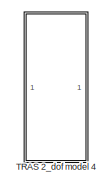
[diagram: root canvas - part 1/11, top right region]
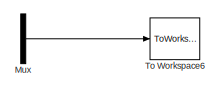
[diagram: root canvas - part 2/11, top center region]
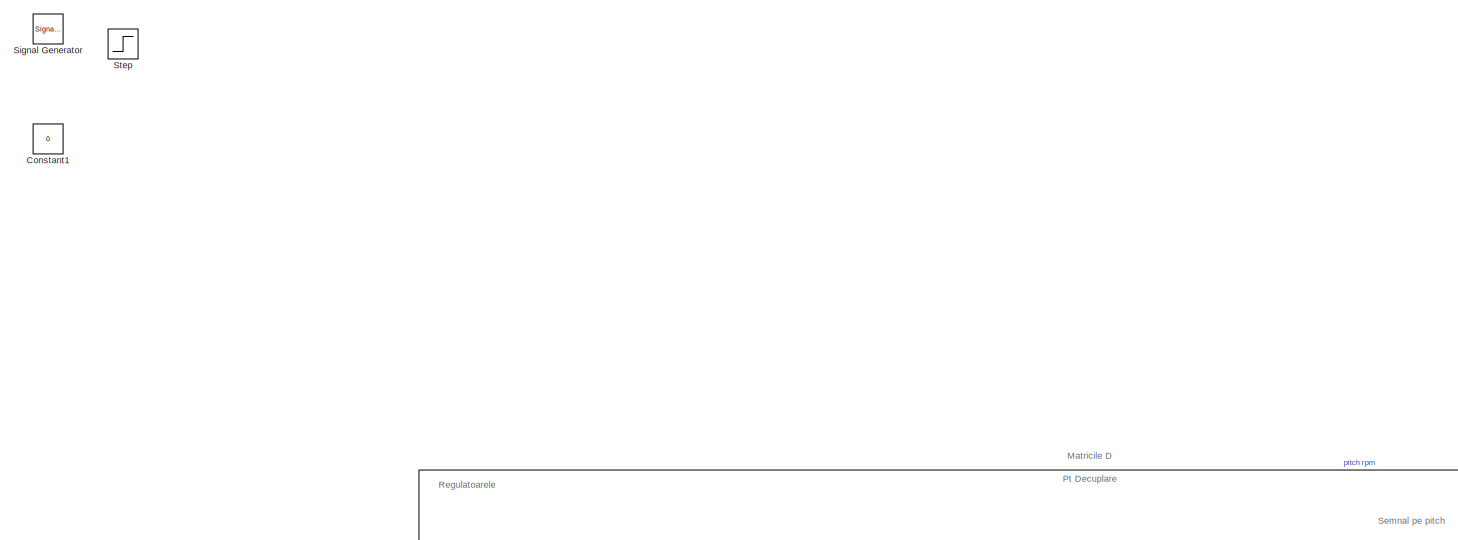
[diagram: root canvas - part 3/11, top left region]
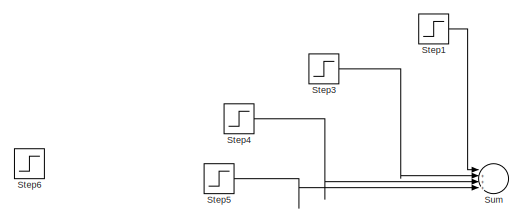
[diagram: root canvas - part 4/11, top left region]
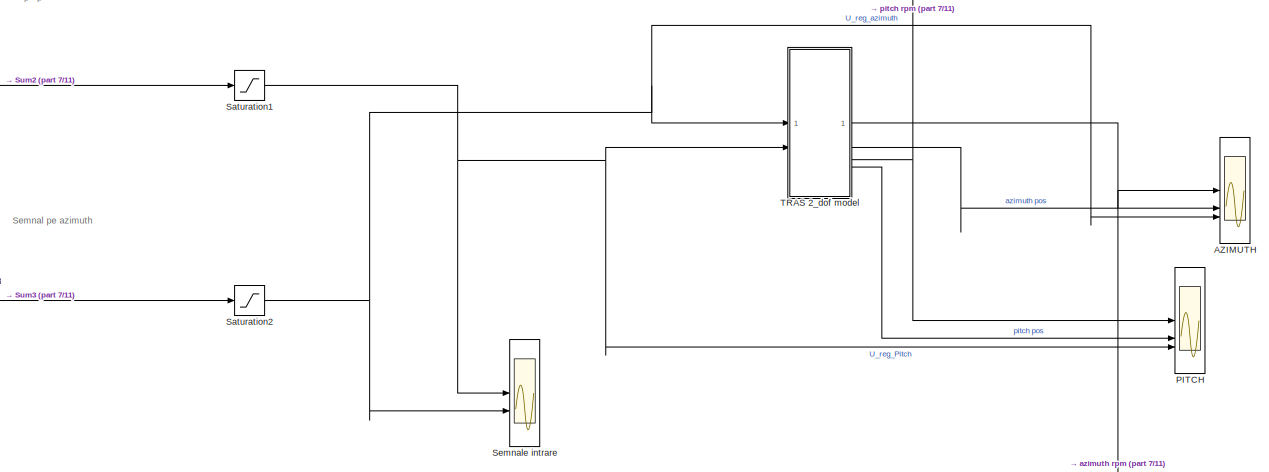
[diagram: root canvas - part 5/11, middle left region]
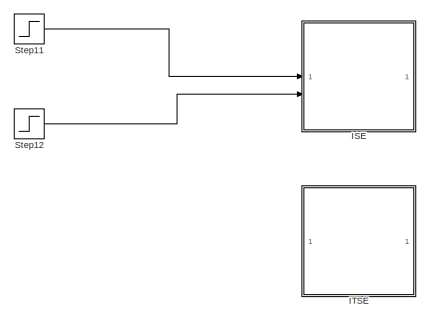
[diagram: root canvas - part 6/11, middle right region]
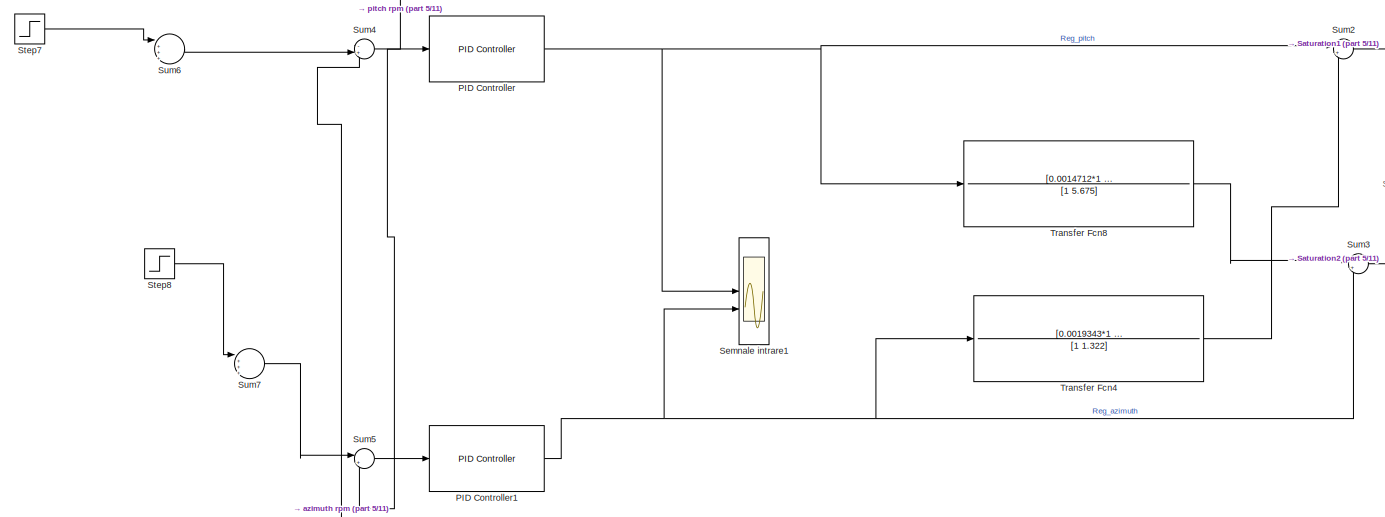
[diagram: root canvas - part 7/11, middle left region]
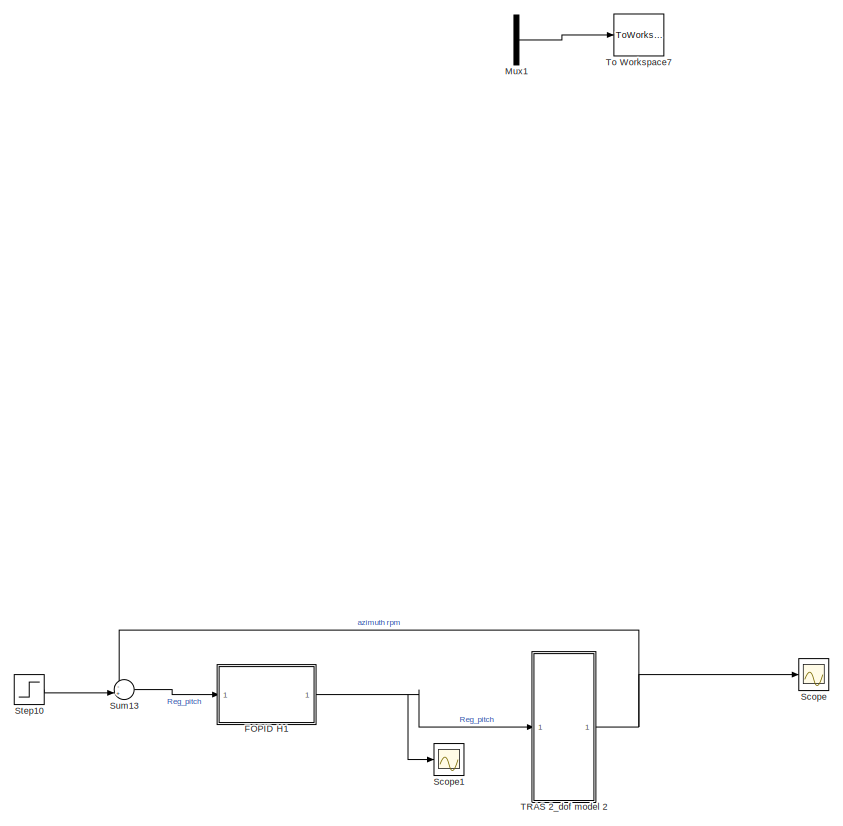
[diagram: root canvas - part 8/11, bottom center region]
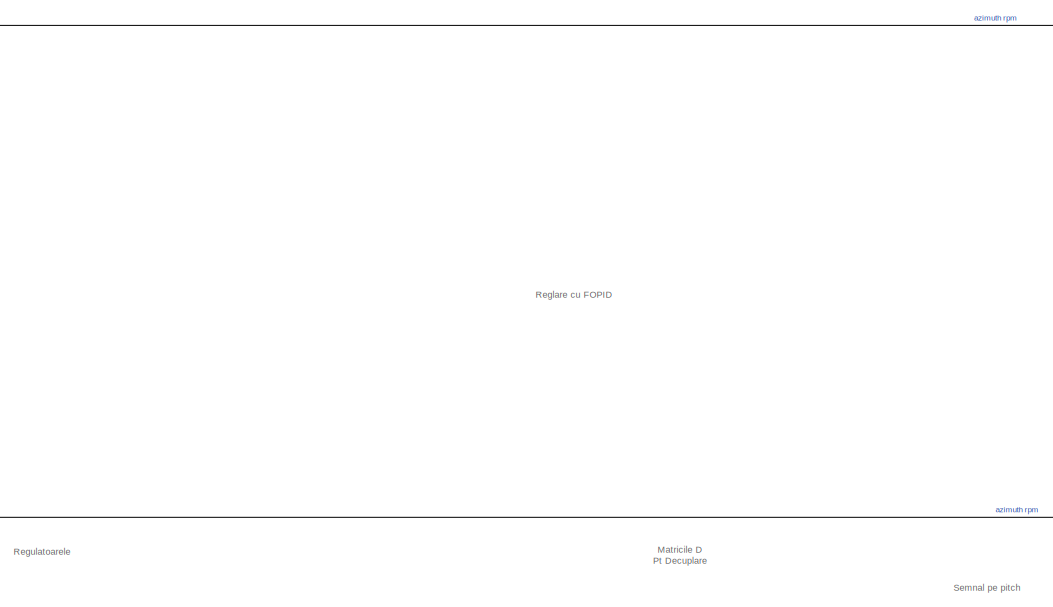
[diagram: root canvas - part 9/11, middle left region]
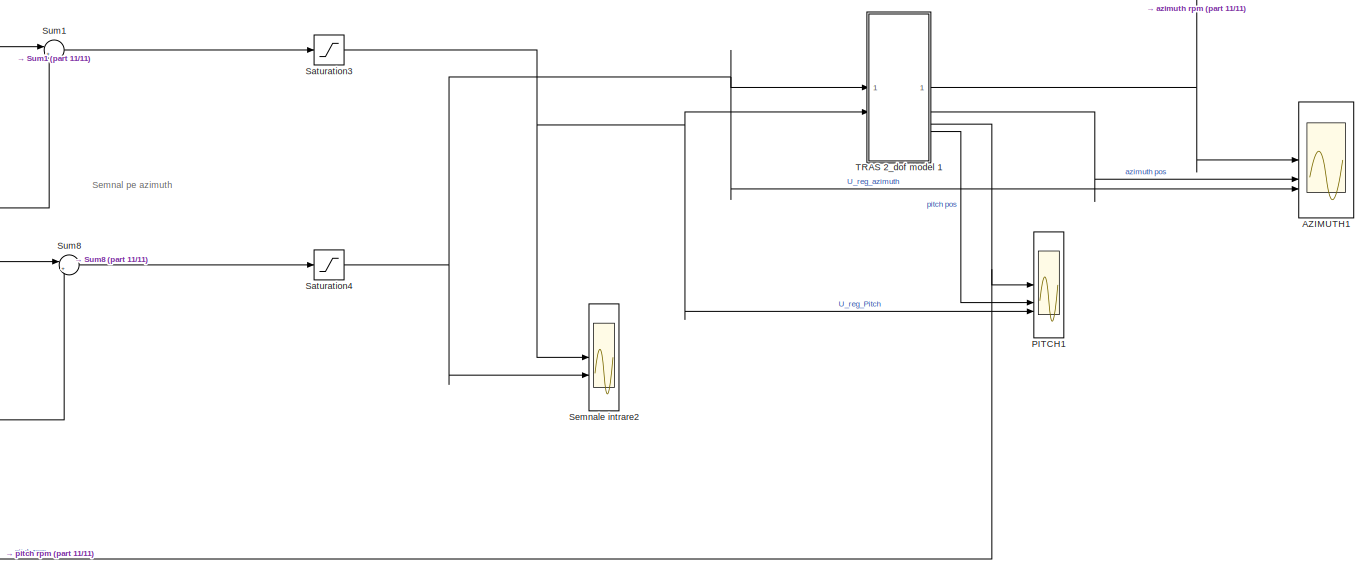
[diagram: root canvas - part 10/11, bottom left region]
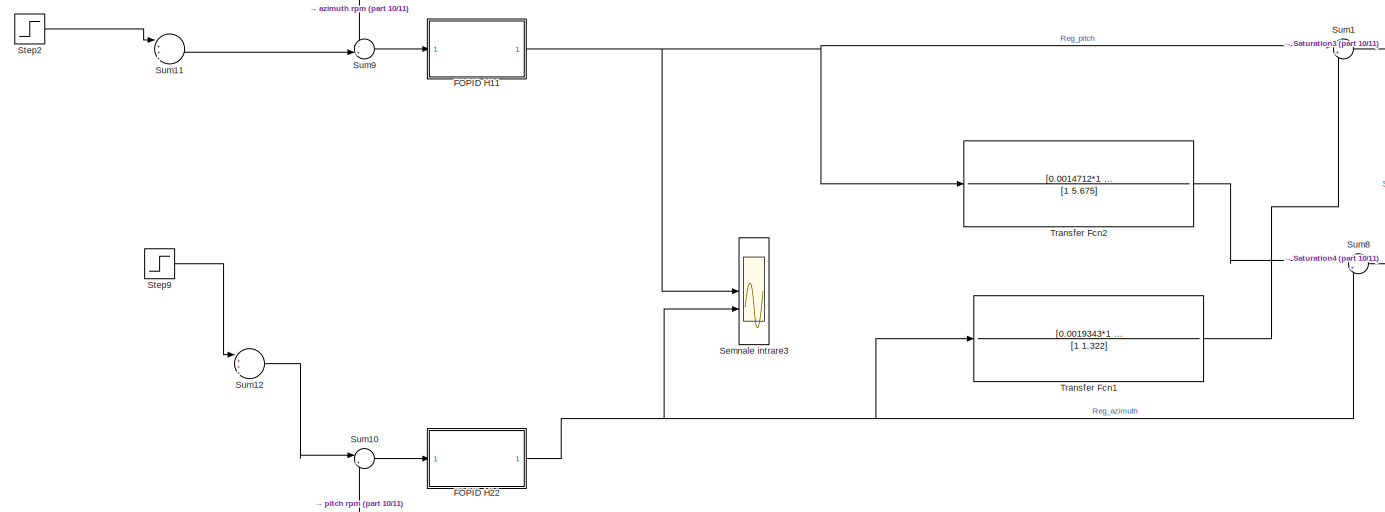
[diagram: root canvas - part 11/11, bottom left region]
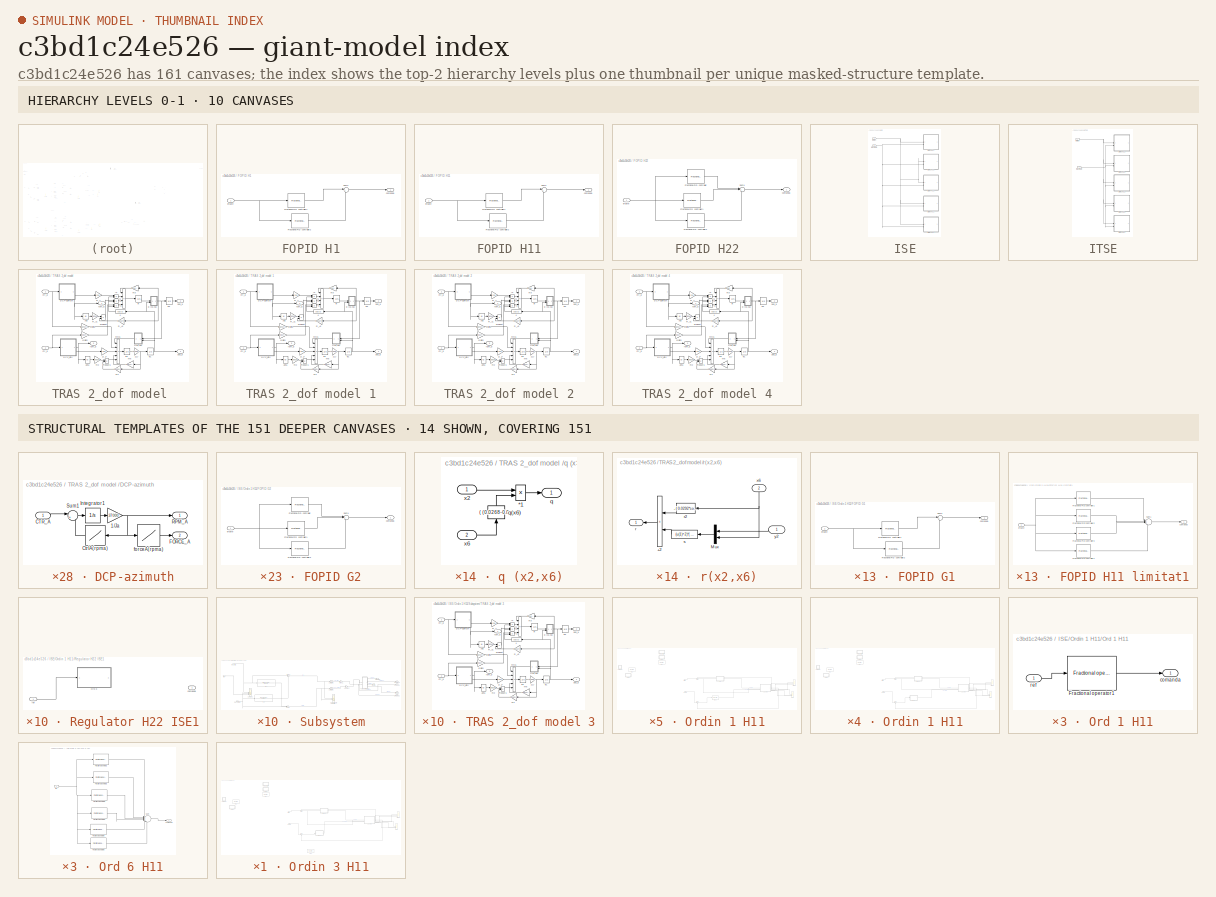
[diagram: thumbnail index - top-2 hierarchy levels (10 canvases) + 14 structural-template representatives of the remaining 151 canvases]
MODEL slx_c3bd1c24e526
KIND model
CONFIG AbsTol = auto
CONFIG EnableMultiTasking = on
CONFIG FixedStep = 0.00001
CONFIG MaxStep = auto
CONFIG MinStep = auto
CONFIG PreLoadFcn = load tras_char
CONFIG RelTol = 1e-5
CONFIG SampleTimeConstraint = Unconstrained
CONFIG SolverName = FixedStepAuto
CONFIG StartTime = 0.0
CONFIG StopTime = 10
BLOCK [Scope] AZIMUTH
  Commented = on
  Floating = off
  NumInputPorts = 3
  ScopeSpecificationString = Simulink.scopes.TimeScopeBlockCfg('CurrentConfiguration', extmgr.ConfigurationSet(extmgr.Configuration('Core','General UI',true),extmgr.Configuration('Core','Source UI',true),extmgr.Configuration('Sources','WiredSimulink',true,'DataLoggingSaveFormat','StructureWithTime','DataLoggingLimitDataPoints',true,'DataLoggingDecimation','1','DataLoggingDecimateData',true),extmgr.Configuration('Visuals','Tim...<+3350ch>
BLOCK [Scope] AZIMUTH1
  Commented = on
  Floating = off
  NumInputPorts = 3
  ScopeSpecificationString = Simulink.scopes.TimeScopeBlockCfg('CurrentConfiguration', extmgr.ConfigurationSet(extmgr.Configuration('Core','General UI',true),extmgr.Configuration('Core','Source UI',true),extmgr.Configuration('Sources','WiredSimulink',true,'DataLoggingSaveFormat','StructureWithTime','DataLoggingLimitDataPoints',true,'DataLoggingDecimation','1','DataLoggingDecimateData',true,'DataLoggingVariableName','ScopeData...<+3393ch>
BLOCK [Constant] Constant1
  Commented = on
  Value = 0
BLOCK [SubSystem] FOPID H1
  Commented = on
BLOCK [Reference] FOPID H1/Fractional PID controller1  REF=fod/Fractional PID  (lib defined in slx_5cb2d42c7bef)
controller
  SourceBlock = fod/Fractional PID\ncontroller
  SourceProductName = FOMCON Toolbox
  SourceType = Fractional PID
BLOCK [Reference] FOPID H1/Fractional PID controller2  REF=fod/Fractional PID  (lib defined in slx_5cb2d42c7bef)
controller
  SourceBlock = fod/Fractional PID\ncontroller
  SourceProductName = FOMCON Toolbox
  SourceType = Fractional PID
BLOCK [Sum] FOPID H1/Sum1
  Inputs = |++
BLOCK [Outport] FOPID H1/comanda
BLOCK [Inport] FOPID H1/eroare
  NameLocation = left
BLOCK [SubSystem] FOPID H11
  Commented = on
BLOCK [Reference] FOPID H11/Fractional PID controller1  REF=fod/Fractional PID  (lib defined in slx_5cb2d42c7bef)
controller
  SourceBlock = fod/Fractional PID\ncontroller
  SourceProductName = FOMCON Toolbox
  SourceType = Fractional PID
BLOCK [Reference] FOPID H11/Fractional PID controller2  REF=fod/Fractional PID  (lib defined in slx_5cb2d42c7bef)
controller
  SourceBlock = fod/Fractional PID\ncontroller
  SourceProductName = FOMCON Toolbox
  SourceType = Fractional PID
BLOCK [Sum] FOPID H11/Sum1
  Inputs = |++
BLOCK [Outport] FOPID H11/comanda
BLOCK [Inport] FOPID H11/eroare
  NameLocation = left
BLOCK [SubSystem] FOPID H22
  Commented = on
BLOCK [Reference] FOPID H22/Fractional PID controller  REF=fod/Fractional PID  (lib defined in slx_5cb2d42c7bef)
controller
  SourceBlock = fod/Fractional PID\ncontroller
  SourceProductName = FOMCON Toolbox
  SourceType = Fractional PID
BLOCK [Reference] FOPID H22/Fractional PID controller1  REF=fod/Fractional PID  (lib defined in slx_5cb2d42c7bef)
controller
  SourceBlock = fod/Fractional PID\ncontroller
  SourceProductName = FOMCON Toolbox
  SourceType = Fractional PID
BLOCK [Reference] FOPID H22/Fractional PID controller2  REF=fod/Fractional PID  (lib defined in slx_5cb2d42c7bef)
controller
  SourceBlock = fod/Fractional PID\ncontroller
  SourceProductName = FOMCON Toolbox
  SourceType = Fractional PID
BLOCK [Sum] FOPID H22/Sum1
  Inputs = |+++
BLOCK [Outport] FOPID H22/comanda
BLOCK [Inport] FOPID H22/eroare
  NameLocation = left
BLOCK [SubSystem] ISE
BLOCK [SubSystem] ISE/Ordin 1 H11
BLOCK [Scope] ISE/Ordin 1 H11/AZIMUTH2
  Floating = off
  NumInputPorts = 3
  ScopeSpecificationString = Simulink.scopes.TimeScopeBlockCfg('CurrentConfiguration', extmgr.ConfigurationSet(extmgr.Configuration('Core','General UI',true),extmgr.Configuration('Core','Source UI',true),extmgr.Configuration('Sources','WiredSimulink',true,'DataLoggingSaveFormat','StructureWithTime','DataLoggingDecimation','1','DataLoggingDecimateData',true,'DataLoggingVariableName','ScopeData1'),extmgr.Configuration('Visuals'...<+3302ch>  <repeated x7 — deduplicated; at blocks: AZIMUTH2, AZIMUTH ordin 6>
BLOCK [SubSystem] ISE/Ordin 1 H11/FOPID G1
  Commented = on
BLOCK [Reference] ISE/Ordin 1 H11/FOPID G1/Fractional PID controller1  REF=fod/Fractional PID  (lib defined in slx_5cb2d42c7bef)
controller
  SourceBlock = fod/Fractional PID\ncontroller
  SourceProductName = FOMCON Toolbox
  SourceType = Fractional PID
BLOCK [Reference] ISE/Ordin 1 H11/FOPID G1/Fractional PID controller2  REF=fod/Fractional PID  (lib defined in slx_5cb2d42c7bef)
controller
  SourceBlock = fod/Fractional PID\ncontroller
  SourceProductName = FOMCON Toolbox
  SourceType = Fractional PID
BLOCK [Sum] ISE/Ordin 1 H11/FOPID G1/Sum1
  Inputs = |++
BLOCK [Outport] ISE/Ordin 1 H11/FOPID G1/comanda
BLOCK [Inport] ISE/Ordin 1 H11/FOPID G1/eroare
  NameLocation = left
BLOCK [SubSystem] ISE/Ordin 1 H11/FOPID G2
  Commented = on
BLOCK [Reference] ISE/Ordin 1 H11/FOPID G2/Fractional PID controller  REF=fod/Fractional PID  (lib defined in slx_5cb2d42c7bef)
controller
  SourceBlock = fod/Fractional PID\ncontroller
  SourceProductName = FOMCON Toolbox
  SourceType = Fractional PID
BLOCK [Reference] ISE/Ordin 1 H11/FOPID G2/Fractional PID controller1  REF=fod/Fractional PID  (lib defined in slx_5cb2d42c7bef)
controller
  SourceBlock = fod/Fractional PID\ncontroller
  SourceProductName = FOMCON Toolbox
  SourceType = Fractional PID
BLOCK [Reference] ISE/Ordin 1 H11/FOPID G2/Fractional PID controller2  REF=fod/Fractional PID  (lib defined in slx_5cb2d42c7bef)
controller
  SourceBlock = fod/Fractional PID\ncontroller
  SourceProductName = FOMCON Toolbox
  SourceType = Fractional PID
BLOCK [Sum] ISE/Ordin 1 H11/FOPID G2/Sum1
  Inputs = |+++
BLOCK [Outport] ISE/Ordin 1 H11/FOPID G2/comanda
BLOCK [Inport] ISE/Ordin 1 H11/FOPID G2/eroare
  NameLocation = left
BLOCK [SubSystem] ISE/Ordin 1 H11/FOPID H11 limitat1
  Commented = on
BLOCK [Reference] ISE/Ordin 1 H11/FOPID H11 limitat1/Fractional PID controller1  REF=fod/Fractional PID  (lib defined in slx_5cb2d42c7bef)
controller
  SourceBlock = fod/Fractional PID\ncontroller
  SourceProductName = FOMCON Toolbox
  SourceType = Fractional PID
BLOCK [Reference] ISE/Ordin 1 H11/FOPID H11 limitat1/Fractional PID controller2  REF=fod/Fractional PID  (lib defined in slx_5cb2d42c7bef)
controller
  SourceBlock = fod/Fractional PID\ncontroller
  SourceProductName = FOMCON Toolbox
  SourceType = Fractional PID
BLOCK [Reference] ISE/Ordin 1 H11/FOPID H11 limitat1/Fractional PID controller3  REF=fod/Fractional PID  (lib defined in slx_5cb2d42c7bef)
controller
  SourceBlock = fod/Fractional PID\ncontroller
  SourceProductName = FOMCON Toolbox
  SourceType = Fractional PID
BLOCK [Reference] ISE/Ordin 1 H11/FOPID H11 limitat1/Fractional PID controller4  REF=fod/Fractional PID  (lib defined in slx_5cb2d42c7bef)
controller
  SourceBlock = fod/Fractional PID\ncontroller
  SourceProductName = FOMCON Toolbox
  SourceType = Fractional PID
BLOCK [Sum] ISE/Ordin 1 H11/FOPID H11 limitat1/Sum1
  Inputs = |++++
BLOCK [Outport] ISE/Ordin 1 H11/FOPID H11 limitat1/comanda
BLOCK [Inport] ISE/Ordin 1 H11/FOPID H11 limitat1/eroare
  NameLocation = left
BLOCK [SubSystem] ISE/Ordin 1 H11/Ord 1 H11
BLOCK [Reference] ISE/Ordin 1 H11/Ord 1 H11/Fractional operator1  REF=fod/Fractional  (lib defined in slx_5cb2d42c7bef)
operator
  SourceBlock = fod/Fractional\noperator
  SourceProductName = FOMCON Toolbox
  SourceType = Fractional operator
  Tag = Fractional operator
BLOCK [Outport] ISE/Ordin 1 H11/Ord 1 H11/comanda
BLOCK [Inport] ISE/Ordin 1 H11/Ord 1 H11/ref
BLOCK [SubSystem] ISE/Ordin 1 H11/Ord 1 H22
BLOCK [Reference] ISE/Ordin 1 H11/Ord 1 H22/Fractional operator1  REF=fod/Fractional  (lib defined in slx_5cb2d42c7bef)
operator
  SourceBlock = fod/Fractional\noperator
  SourceProductName = FOMCON Toolbox
  SourceType = Fractional operator
  Tag = Fractional operator
BLOCK [Outport] ISE/Ordin 1 H11/Ord 1 H22/comanda
BLOCK [Inport] ISE/Ordin 1 H11/Ord 1 H22/ref
BLOCK [Reference] ISE/Ordin 1 H11/PID H1  REF=slpidlib/PID Controller
  Commented = on
  LibrarySourceBlock = simulink/Continuous/PID Controller
  SourceBlock = slpidlib/PID Controller
  SourceType = PID 1dof
BLOCK [Reference] ISE/Ordin 1 H11/PID H2  REF=slpidlib/PID Controller
  Commented = on
  LibrarySourceBlock = simulink/Continuous/PID Controller
  SourceBlock = slpidlib/PID Controller
  SourceType = PID 1dof
BLOCK [Scope] ISE/Ordin 1 H11/PITCH2
  Floating = off
  NumInputPorts = 3
  ScopeSpecificationString = Simulink.scopes.TimeScopeBlockCfg('CurrentConfiguration', extmgr.ConfigurationSet(extmgr.Configuration('Core','General UI',true),extmgr.Configuration('Core','Source UI',true),extmgr.Configuration('Sources','WiredSimulink',true,'DataLoggingVariableName','ScopeData2','DataLoggingSaveFormat','StructureWithTime','DataLoggingDecimation','1','DataLoggingDecimateData',true),extmgr.Configuration('Visuals'...<+3279ch>
BLOCK [SubSystem] ISE/Ordin 1 H11/Regulator H22 ISE1
  Commented = on
BLOCK [SubSystem] ISE/Ordin 1 H11/Regulator H22 ISE1/Ord 3
BLOCK [Reference] ISE/Ordin 1 H11/Regulator H22 ISE1/Ord 3/Fractional operator1  REF=fod/Fractional  (lib defined in slx_5cb2d42c7bef)
operator
  SourceBlock = fod/Fractional\noperator
  SourceProductName = FOMCON Toolbox
  SourceType = Fractional operator
  Tag = Fractional operator
BLOCK [Reference] ISE/Ordin 1 H11/Regulator H22 ISE1/Ord 3/Fractional operator2  REF=fod/Fractional  (lib defined in slx_5cb2d42c7bef)
operator
  SourceBlock = fod/Fractional\noperator
  SourceProductName = FOMCON Toolbox
  SourceType = Fractional operator
  Tag = Fractional operator
BLOCK [Reference] ISE/Ordin 1 H11/Regulator H22 ISE1/Ord 3/Fractional operator3  REF=fod/Fractional  (lib defined in slx_5cb2d42c7bef)
operator
  SourceBlock = fod/Fractional\noperator
  SourceProductName = FOMCON Toolbox
  SourceType = Fractional operator
  Tag = Fractional operator
BLOCK [Sum] ISE/Ordin 1 H11/Regulator H22 ISE1/Ord 3/Sum
  Inputs = +|++
BLOCK [Outport] ISE/Ordin 1 H11/Regulator H22 ISE1/Ord 3/comanda
BLOCK [Inport] ISE/Ordin 1 H11/Regulator H22 ISE1/Ord 3/ref
BLOCK [Outport] ISE/Ordin 1 H11/Regulator H22 ISE1/comanda
BLOCK [Inport] ISE/Ordin 1 H11/Regulator H22 ISE1/ref
BLOCK [SubSystem] ISE/Ordin 1 H11/Subsystem
BLOCK [Gain] ISE/Ordin 1 H11/Subsystem/Azimuth H22
BLOCK [Scope] ISE/Ordin 1 H11/Subsystem/Comanda
  Floating = off
  NumInputPorts = 3
  ScopeSpecificationString = Simulink.scopes.TimeScopeBlockCfg('CurrentConfiguration', extmgr.ConfigurationSet(extmgr.Configuration('Core','General UI',true),extmgr.Configuration('Core','Source UI',true),extmgr.Configuration('Sources','WiredSimulink',true,'DataLoggingSaveFormat','StructureWithTime','DataLoggingLimitDataPoints',true,'DataLoggingDecimation','1','DataLoggingDecimateData',true,'DataLoggingVariableName','ScopeData...<+3394ch>  <repeated x10 — deduplicated; at blocks: Comanda>
BLOCK [Scope] ISE/Ordin 1 H11/Subsystem/Comanda Iesire regulator
  Floating = off
  NumInputPorts = 2
  ScopeSpecificationString = Simulink.scopes.TimeScopeBlockCfg('CurrentConfiguration', extmgr.ConfigurationSet(extmgr.Configuration('Core','General UI',true),extmgr.Configuration('Core','Source UI',true),extmgr.Configuration('Sources','WiredSimulink',true,'DataLoggingSaveFormat','StructureWithTime','DataLoggingLimitDataPoints',true,'DataLoggingDecimation','1','DataLoggingDecimateData',true,'DataLoggingVariableName','ScopeData...<+3298ch>  <repeated x10 — deduplicated; at blocks: Comanda Iesire regulator>
BLOCK [Outport] ISE/Ordin 1 H11/Subsystem/Comanda1
  Port = 4
BLOCK [Outport] ISE/Ordin 1 H11/Subsystem/Comanda2
  Port = 6
BLOCK [TransferFcn] ISE/Ordin 1 H11/Subsystem/D12
  Denominator = [1 1.322]
  Numerator = [0.0019343*1 0.0019343*1.287]
BLOCK [TransferFcn] ISE/Ordin 1 H11/Subsystem/D21
  Denominator = [1 5.675]
  Numerator = [0.0014712*1    0.0014712*3.527]
BLOCK [Inport] ISE/Ordin 1 H11/Subsystem/In2
  Port = 2
BLOCK [Gain] ISE/Ordin 1 H11/Subsystem/Pitch H11
BLOCK [Inport] ISE/Ordin 1 H11/Subsystem/Reg_azimuth
  Port = 3
BLOCK [Inport] ISE/Ordin 1 H11/Subsystem/Reg_pitch
BLOCK [Saturate] ISE/Ordin 1 H11/Subsystem/Saturation5
  LowerLimit = -1
  RndMeth = Ceiling
  UpperLimit = 1
BLOCK [Saturate] ISE/Ordin 1 H11/Subsystem/Saturation6
  LowerLimit = -1
  RndMeth = Ceiling
  UpperLimit = 1
BLOCK [Sum] ISE/Ordin 1 H11/Subsystem/Sum14
  Inputs = |++
BLOCK [Sum] ISE/Ordin 1 H11/Subsystem/Sum16
  Inputs = |++
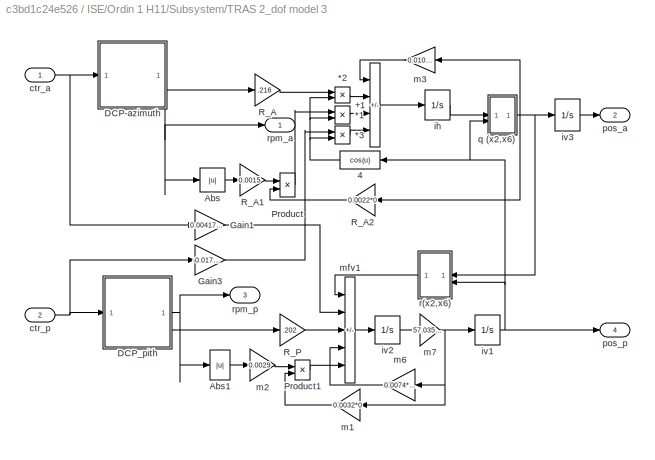
BLOCK [SubSystem] ISE/Ordin 1 H11/Subsystem/TRAS 2_dof model 3
  NameLocation = top
BLOCK [Product] ISE/Ordin 1 H11/Subsystem/TRAS 2_dof model 3/*1
  InputSameDT = on
  OutDataTypeStr = Inherit: Same as first input
  SaturateOnIntegerOverflow = on
BLOCK [Product] ISE/Ordin 1 H11/Subsystem/TRAS 2_dof model 3/*2
  InputSameDT = on
  OutDataTypeStr = Inherit: Same as first input
  SaturateOnIntegerOverflow = on
BLOCK [Product] ISE/Ordin 1 H11/Subsystem/TRAS 2_dof model 3/*3
  InputSameDT = on
  OutDataTypeStr = Inherit: Same as first input
  SaturateOnIntegerOverflow = on
BLOCK [Sum] ISE/Ordin 1 H11/Subsystem/TRAS 2_dof model 3/+1
  IconShape = rectangular
  InputSameDT = on
  Inputs = -+--
  NameLocation = top
  OutDataTypeStr = Inherit: Same as first input
  SaturateOnIntegerOverflow = on
BLOCK [Fcn] ISE/Ordin 1 H11/Subsystem/TRAS 2_dof model 3/4
  Expr = cos(u)
  NameLocation = top
BLOCK [Abs] ISE/Ordin 1 H11/Subsystem/TRAS 2_dof model 3/Abs
BLOCK [Abs] ISE/Ordin 1 H11/Subsystem/TRAS 2_dof model 3/Abs1
BLOCK [SubSystem] ISE/Ordin 1 H11/Subsystem/TRAS 2_dof model 3/DCP-azimuth
  NameLocation = top
BLOCK [Gain] ISE/Ordin 1 H11/Subsystem/TRAS 2_dof model 3/DCP-azimuth/1//Ja
  Gain = 37000
  OutDataTypeStr = Inherit: Same as input
  ParamDataTypeStr = Inherit: Same as input
  SaturateOnIntegerOverflow = on
BLOCK [Inport] ISE/Ordin 1 H11/Subsystem/TRAS 2_dof model 3/DCP-azimuth/CTR_A
BLOCK [Lookup] ISE/Ordin 1 H11/Subsystem/TRAS 2_dof model 3/DCP-azimuth/CtrlA(rpma)
  InputValues = rpm_a
  Table = control_a
BLOCK [Outport] ISE/Ordin 1 H11/Subsystem/TRAS 2_dof model 3/DCP-azimuth/FORCE_A
  Port = 2
BLOCK [Integrator] ISE/Ordin 1 H11/Subsystem/TRAS 2_dof model 3/DCP-azimuth/Integrator1
BLOCK [Outport] ISE/Ordin 1 H11/Subsystem/TRAS 2_dof model 3/DCP-azimuth/RPM_A
BLOCK [Sum] ISE/Ordin 1 H11/Subsystem/TRAS 2_dof model 3/DCP-azimuth/Sum1
  InputSameDT = on
  Inputs = |+-
  OutDataTypeStr = Inherit: Same as first input
  SaturateOnIntegerOverflow = on
BLOCK [Lookup] ISE/Ordin 1 H11/Subsystem/TRAS 2_dof model 3/DCP-azimuth/forceA(rpma)
  InputValues = rpm_a
  NameLocation = top
  Table = force_a
BLOCK [SubSystem] ISE/Ordin 1 H11/Subsystem/TRAS 2_dof model 3/DCP_pith
BLOCK [Gain] ISE/Ordin 1 H11/Subsystem/TRAS 2_dof model 3/DCP_pith/1//Jp1
  Gain = 6100
  OutDataTypeStr = Inherit: Same as input
  ParamDataTypeStr = Inherit: Same as input
BLOCK [Inport] ISE/Ordin 1 H11/Subsystem/TRAS 2_dof model 3/DCP_pith/CTR_P
BLOCK [Lookup] ISE/Ordin 1 H11/Subsystem/TRAS 2_dof model 3/DCP_pith/CtrlP(rpmp)
  InputValues = rpm_p
  Table = control_p
BLOCK [Outport] ISE/Ordin 1 H11/Subsystem/TRAS 2_dof model 3/DCP_pith/FORCE_P
  Port = 2
BLOCK [Integrator] ISE/Ordin 1 H11/Subsystem/TRAS 2_dof model 3/DCP_pith/Integrator
BLOCK [Outport] ISE/Ordin 1 H11/Subsystem/TRAS 2_dof model 3/DCP_pith/RPM_P
BLOCK [Sum] ISE/Ordin 1 H11/Subsystem/TRAS 2_dof model 3/DCP_pith/Sum
  InputSameDT = on
  Inputs = |+-
  OutDataTypeStr = Inherit: Same as first input
  SaturateOnIntegerOverflow = on
BLOCK [Lookup] ISE/Ordin 1 H11/Subsystem/TRAS 2_dof model 3/DCP_pith/force(rpmp)
  InputValues = rpm_p
  NameLocation = top
  Table = force_p
BLOCK [Gain] ISE/Ordin 1 H11/Subsystem/TRAS 2_dof model 3/Gain1
  Gain = 0.00417495398545
  NameLocation = top
  OutDataTypeStr = Inherit: Same as input
  ParamDataTypeStr = Inherit: Same as input
  SaturateOnIntegerOverflow = on
BLOCK [Gain] ISE/Ordin 1 H11/Subsystem/TRAS 2_dof model 3/Gain3
  Gain = -0.01782003784180
  NameLocation = top
  OutDataTypeStr = Inherit: Same as input
  ParamDataTypeStr = Inherit: Same as input
  SaturateOnIntegerOverflow = on
BLOCK [Product] ISE/Ordin 1 H11/Subsystem/TRAS 2_dof model 3/Product
  InputSameDT = on
  OutDataTypeStr = Inherit: Same as first input
  SaturateOnIntegerOverflow = on
BLOCK [Product] ISE/Ordin 1 H11/Subsystem/TRAS 2_dof model 3/Product1
  OutDataTypeStr = Inherit: Same as first input
  SaturateOnIntegerOverflow = on
BLOCK [Gain] ISE/Ordin 1 H11/Subsystem/TRAS 2_dof model 3/R_A
  Gain = .216
  NameLocation = top
  OutDataTypeStr = Inherit: Same as input
  ParamDataTypeStr = Inherit: Same as input
BLOCK [Gain] ISE/Ordin 1 H11/Subsystem/TRAS 2_dof model 3/R_A1
  Gain = 0.0015
  NameLocation = top
  OutDataTypeStr = Inherit: Same as input
  ParamDataTypeStr = Inherit: Same as input
BLOCK [Gain] ISE/Ordin 1 H11/Subsystem/TRAS 2_dof model 3/R_A2
  Gain = 0.0022*0
  NameLocation = top
  OutDataTypeStr = Inherit: Same as input
  ParamDataTypeStr = Inherit: Same as input
BLOCK [Gain] ISE/Ordin 1 H11/Subsystem/TRAS 2_dof model 3/R_P
  Gain = .202
  OutDataTypeStr = Inherit: Same as input
  ParamDataTypeStr = Inherit: Same as input
BLOCK [Inport] ISE/Ordin 1 H11/Subsystem/TRAS 2_dof model 3/ctr_a
BLOCK [Inport] ISE/Ordin 1 H11/Subsystem/TRAS 2_dof model 3/ctr_p
  Port = 2
BLOCK [Integrator] ISE/Ordin 1 H11/Subsystem/TRAS 2_dof model 3/ih
  LowerSaturationLimit = -10
  UpperSaturationLimit = 10
BLOCK [Integrator] ISE/Ordin 1 H11/Subsystem/TRAS 2_dof model 3/iv1
  LimitOutput = on
  LowerSaturationLimit = -pi/2
  NameLocation = top
  UpperSaturationLimit = pi/2
BLOCK [Integrator] ISE/Ordin 1 H11/Subsystem/TRAS 2_dof model 3/iv2
  LowerSaturationLimit = -pi
  NameLocation = top
  UpperSaturationLimit = pi
BLOCK [Integrator] ISE/Ordin 1 H11/Subsystem/TRAS 2_dof model 3/iv3
  LimitOutput = on
  LowerSaturationLimit = -6
  NameLocation = top
  UpperSaturationLimit = 6
BLOCK [Gain] ISE/Ordin 1 H11/Subsystem/TRAS 2_dof model 3/m1
  Gain = 0.0032*0
  NameLocation = top
  OutDataTypeStr = Inherit: Same as input
  ParamDataTypeStr = Inherit: Same as input
  SaturateOnIntegerOverflow = on
BLOCK [Gain] ISE/Ordin 1 H11/Subsystem/TRAS 2_dof model 3/m2
  Gain = 0.0029
  NameLocation = top
  OutDataTypeStr = Inherit: Same as input
  ParamDataTypeStr = Inherit: Same as input
  SaturateOnIntegerOverflow = on
BLOCK [Gain] ISE/Ordin 1 H11/Subsystem/TRAS 2_dof model 3/m3
  Gain = 0.0108*0.4935*1.1051
  NameLocation = top
  OutDataTypeStr = Inherit: Same as input
  ParamDataTypeStr = Inherit: Same as input
BLOCK [Gain] ISE/Ordin 1 H11/Subsystem/TRAS 2_dof model 3/m6
  Gain = 0.0074*1.7175
  OutDataTypeStr = Inherit: Same as input
  ParamDataTypeStr = Inherit: Same as input
BLOCK [Gain] ISE/Ordin 1 H11/Subsystem/TRAS 2_dof model 3/m7
  Gain = 57.0357*0.5833
  NameLocation = top
  OutDataTypeStr = Inherit: Same as input
  ParamDataTypeStr = Inherit: Same as input
  SaturateOnIntegerOverflow = on
BLOCK [Sum] ISE/Ordin 1 H11/Subsystem/TRAS 2_dof model 3/mfv1
  IconShape = rectangular
  InputSameDT = on
  Inputs = +++--
  NameLocation = top
  OutDataTypeStr = Inherit: Same as first input
  SaturateOnIntegerOverflow = on
BLOCK [Outport] ISE/Ordin 1 H11/Subsystem/TRAS 2_dof model 3/pos_a
  Port = 2
BLOCK [Outport] ISE/Ordin 1 H11/Subsystem/TRAS 2_dof model 3/pos_p
  Port = 4
BLOCK [SubSystem] ISE/Ordin 1 H11/Subsystem/TRAS 2_dof model 3/q (x2,x6)
BLOCK [Fcn] ISE/Ordin 1 H11/Subsystem/TRAS 2_dof model 3/q (x2,x6)/ q(x6)
  Expr = ( (0.0268-0.00300962066650)*cos(u)^2) +0.00300962066650
  NameLocation = left
BLOCK [Product] ISE/Ordin 1 H11/Subsystem/TRAS 2_dof model 3/q (x2,x6)/*1
  InputSameDT = on
  Inputs = */
  OutDataTypeStr = Inherit: Same as first input
  SaturateOnIntegerOverflow = on
BLOCK [Outport] ISE/Ordin 1 H11/Subsystem/TRAS 2_dof model 3/q (x2,x6)/q
BLOCK [Inport] ISE/Ordin 1 H11/Subsystem/TRAS 2_dof model 3/q (x2,x6)/x2
BLOCK [Inport] ISE/Ordin 1 H11/Subsystem/TRAS 2_dof model 3/q (x2,x6)/x6
  Port = 2
BLOCK [SubSystem] ISE/Ordin 1 H11/Subsystem/TRAS 2_dof model 3/r(x2,x6)
BLOCK [Sum] ISE/Ordin 1 H11/Subsystem/TRAS 2_dof model 3/r(x2,x6)/+2
  IconShape = rectangular
  InputSameDT = on
  OutDataTypeStr = Inherit: Same as first input
  SaturateOnIntegerOverflow = on
BLOCK [Mux] ISE/Ordin 1 H11/Subsystem/TRAS 2_dof model 3/r(x2,x6)/Mux
  DisplayOption = bar
  Inputs = 2
  NameLocation = top
BLOCK [Outport] ISE/Ordin 1 H11/Subsystem/TRAS 2_dof model 3/r(x2,x6)/r
BLOCK [Fcn] ISE/Ordin 1 H11/Subsystem/TRAS 2_dof model 3/r(x2,x6)/r2
  Expr = - ( 0.0292*cos(u)+ 0.0546*sin(u))*1.7143
BLOCK [Fcn] ISE/Ordin 1 H11/Subsystem/TRAS 2_dof model 3/r(x2,x6)/s
  Expr = (u(1)^2)*(     -0.07389953104162*  0.28753198180218*sin(u(2))*cos(u(2)))
BLOCK [Inport] ISE/Ordin 1 H11/Subsystem/TRAS 2_dof model 3/r(x2,x6)/x6
  NameLocation = right
  Port = 2
BLOCK [Inport] ISE/Ordin 1 H11/Subsystem/TRAS 2_dof model 3/r(x2,x6)/y2
BLOCK [Outport] ISE/Ordin 1 H11/Subsystem/TRAS 2_dof model 3/rpm_a
BLOCK [Outport] ISE/Ordin 1 H11/Subsystem/TRAS 2_dof model 3/rpm_p
  Port = 3
BLOCK [Outport] ISE/Ordin 1 H11/Subsystem/azimuth pos
  Port = 2
BLOCK [Outport] ISE/Ordin 1 H11/Subsystem/azimuth rpm
BLOCK [Outport] ISE/Ordin 1 H11/Subsystem/pitch pos
  Port = 5
BLOCK [Outport] ISE/Ordin 1 H11/Subsystem/pitch rpm
  Port = 3
BLOCK [Sum] ISE/Ordin 1 H11/Sum15
  Inputs = |+-
BLOCK [Sum] ISE/Ordin 1 H11/Sum17
  Inputs = -+|
BLOCK [Inport] ISE/Ordin 1 H11/ref azimuth
  Port = 2
BLOCK [Inport] ISE/Ordin 1 H11/ref pitch
BLOCK [SubSystem] ISE/Ordin 2 H11
BLOCK [Scope] ISE/Ordin 2 H11/AZIMUTH2
  Floating = off
  NumInputPorts = 3
  ScopeSpecificationString = Simulink.scopes.TimeScopeBlockCfg('CurrentConfiguration', extmgr.ConfigurationSet(extmgr.Configuration('Core','General UI',true),extmgr.Configuration('Core','Source UI',true),extmgr.Configuration('Sources','WiredSimulink',true,'DataLoggingSaveFormat','StructureWithTime','DataLoggingDecimation','1','DataLoggingDecimateData',true,'DataLoggingVariableName','ScopeData1'),extmgr.Configuration('Visuals'...<+3303ch>
BLOCK [SubSystem] ISE/Ordin 2 H11/FOPID G1
  Commented = on
BLOCK [Reference] ISE/Ordin 2 H11/FOPID G1/Fractional PID controller1  REF=fod/Fractional PID  (lib defined in slx_5cb2d42c7bef)
controller
  SourceBlock = fod/Fractional PID\ncontroller
  SourceProductName = FOMCON Toolbox
  SourceType = Fractional PID
BLOCK [Reference] ISE/Ordin 2 H11/FOPID G1/Fractional PID controller2  REF=fod/Fractional PID  (lib defined in slx_5cb2d42c7bef)
controller
  SourceBlock = fod/Fractional PID\ncontroller
  SourceProductName = FOMCON Toolbox
  SourceType = Fractional PID
BLOCK [Sum] ISE/Ordin 2 H11/FOPID G1/Sum1
  Inputs = |++
BLOCK [Outport] ISE/Ordin 2 H11/FOPID G1/comanda
BLOCK [Inport] ISE/Ordin 2 H11/FOPID G1/eroare
  NameLocation = left
BLOCK [SubSystem] ISE/Ordin 2 H11/FOPID G2
  Commented = on
BLOCK [Reference] ISE/Ordin 2 H11/FOPID G2/Fractional PID controller  REF=fod/Fractional PID  (lib defined in slx_5cb2d42c7bef)
controller
  SourceBlock = fod/Fractional PID\ncontroller
  SourceProductName = FOMCON Toolbox
  SourceType = Fractional PID
BLOCK [Reference] ISE/Ordin 2 H11/FOPID G2/Fractional PID controller1  REF=fod/Fractional PID  (lib defined in slx_5cb2d42c7bef)
controller
  SourceBlock = fod/Fractional PID\ncontroller
  SourceProductName = FOMCON Toolbox
  SourceType = Fractional PID
BLOCK [Reference] ISE/Ordin 2 H11/FOPID G2/Fractional PID controller2  REF=fod/Fractional PID  (lib defined in slx_5cb2d42c7bef)
controller
  SourceBlock = fod/Fractional PID\ncontroller
  SourceProductName = FOMCON Toolbox
  SourceType = Fractional PID
BLOCK [Sum] ISE/Ordin 2 H11/FOPID G2/Sum1
  Inputs = |+++
BLOCK [Outport] ISE/Ordin 2 H11/FOPID G2/comanda
BLOCK [Inport] ISE/Ordin 2 H11/FOPID G2/eroare
  NameLocation = left
BLOCK [SubSystem] ISE/Ordin 2 H11/FOPID H11 limitat1
  Commented = on
BLOCK [Reference] ISE/Ordin 2 H11/FOPID H11 limitat1/Fractional PID controller1  REF=fod/Fractional PID  (lib defined in slx_5cb2d42c7bef)
controller
  SourceBlock = fod/Fractional PID\ncontroller
  SourceProductName = FOMCON Toolbox
  SourceType = Fractional PID
BLOCK [Reference] ISE/Ordin 2 H11/FOPID H11 limitat1/Fractional PID controller2  REF=fod/Fractional PID  (lib defined in slx_5cb2d42c7bef)
controller
  SourceBlock = fod/Fractional PID\ncontroller
  SourceProductName = FOMCON Toolbox
  SourceType = Fractional PID
BLOCK [Reference] ISE/Ordin 2 H11/FOPID H11 limitat1/Fractional PID controller3  REF=fod/Fractional PID  (lib defined in slx_5cb2d42c7bef)
controller
  SourceBlock = fod/Fractional PID\ncontroller
  SourceProductName = FOMCON Toolbox
  SourceType = Fractional PID
BLOCK [Reference] ISE/Ordin 2 H11/FOPID H11 limitat1/Fractional PID controller4  REF=fod/Fractional PID  (lib defined in slx_5cb2d42c7bef)
controller
  SourceBlock = fod/Fractional PID\ncontroller
  SourceProductName = FOMCON Toolbox
  SourceType = Fractional PID
BLOCK [Sum] ISE/Ordin 2 H11/FOPID H11 limitat1/Sum1
  Inputs = |++++
BLOCK [Outport] ISE/Ordin 2 H11/FOPID H11 limitat1/comanda
BLOCK [Inport] ISE/Ordin 2 H11/FOPID H11 limitat1/eroare
  NameLocation = left
BLOCK [SubSystem] ISE/Ordin 2 H11/Ord 2 H11
BLOCK [Reference] ISE/Ordin 2 H11/Ord 2 H11/Fractional operator1  REF=fod/Fractional  (lib defined in slx_5cb2d42c7bef)
operator
  SourceBlock = fod/Fractional\noperator
  SourceProductName = FOMCON Toolbox
  SourceType = Fractional operator
  Tag = Fractional operator
BLOCK [Reference] ISE/Ordin 2 H11/Ord 2 H11/Fractional operator2  REF=fod/Fractional  (lib defined in slx_5cb2d42c7bef)
operator
  SourceBlock = fod/Fractional\noperator
  SourceProductName = FOMCON Toolbox
  SourceType = Fractional operator
  Tag = Fractional operator
BLOCK [Sum] ISE/Ordin 2 H11/Ord 2 H11/Sum
  Inputs = |++
BLOCK [Outport] ISE/Ordin 2 H11/Ord 2 H11/comanda
BLOCK [Inport] ISE/Ordin 2 H11/Ord 2 H11/ref
BLOCK [SubSystem] ISE/Ordin 2 H11/Ord 2 H22
BLOCK [Reference] ISE/Ordin 2 H11/Ord 2 H22/Fractional operator1  REF=fod/Fractional  (lib defined in slx_5cb2d42c7bef)
operator
  SourceBlock = fod/Fractional\noperator
  SourceProductName = FOMCON Toolbox
  SourceType = Fractional operator
  Tag = Fractional operator
BLOCK [Reference] ISE/Ordin 2 H11/Ord 2 H22/Fractional operator2  REF=fod/Fractional  (lib defined in slx_5cb2d42c7bef)
operator
  SourceBlock = fod/Fractional\noperator
  SourceProductName = FOMCON Toolbox
  SourceType = Fractional operator
  Tag = Fractional operator
BLOCK [Sum] ISE/Ordin 2 H11/Ord 2 H22/Sum
  Inputs = |++
BLOCK [Outport] ISE/Ordin 2 H11/Ord 2 H22/comanda
BLOCK [Inport] ISE/Ordin 2 H11/Ord 2 H22/ref
BLOCK [Reference] ISE/Ordin 2 H11/PID H1  REF=slpidlib/PID Controller
  Commented = on
  LibrarySourceBlock = simulink/Continuous/PID Controller
  SourceBlock = slpidlib/PID Controller
  SourceType = PID 1dof
BLOCK [Reference] ISE/Ordin 2 H11/PID H2  REF=slpidlib/PID Controller
  Commented = on
  LibrarySourceBlock = simulink/Continuous/PID Controller
  SourceBlock = slpidlib/PID Controller
  SourceType = PID 1dof
BLOCK [Scope] ISE/Ordin 2 H11/PITCH2
  Floating = off
  NumInputPorts = 3
  ScopeSpecificationString = Simulink.scopes.TimeScopeBlockCfg('CurrentConfiguration', extmgr.ConfigurationSet(extmgr.Configuration('Core','General UI',true),extmgr.Configuration('Core','Source UI',true),extmgr.Configuration('Sources','WiredSimulink',true,'DataLoggingVariableName','ScopeData2','DataLoggingSaveFormat','StructureWithTime','DataLoggingDecimation','1','DataLoggingDecimateData',true),extmgr.Configuration('Visuals'...<+3298ch>  <repeated x6 — deduplicated; at blocks: PITCH2>
BLOCK [SubSystem] ISE/Ordin 2 H11/Regulator H22 ISE1
  Commented = on
BLOCK [SubSystem] ISE/Ordin 2 H11/Regulator H22 ISE1/Ord 3
BLOCK [Reference] ISE/Ordin 2 H11/Regulator H22 ISE1/Ord 3/Fractional operator1  REF=fod/Fractional  (lib defined in slx_5cb2d42c7bef)
operator
  SourceBlock = fod/Fractional\noperator
  SourceProductName = FOMCON Toolbox
  SourceType = Fractional operator
  Tag = Fractional operator
BLOCK [Reference] ISE/Ordin 2 H11/Regulator H22 ISE1/Ord 3/Fractional operator2  REF=fod/Fractional  (lib defined in slx_5cb2d42c7bef)
operator
  SourceBlock = fod/Fractional\noperator
  SourceProductName = FOMCON Toolbox
  SourceType = Fractional operator
  Tag = Fractional operator
BLOCK [Reference] ISE/Ordin 2 H11/Regulator H22 ISE1/Ord 3/Fractional operator3  REF=fod/Fractional  (lib defined in slx_5cb2d42c7bef)
operator
  SourceBlock = fod/Fractional\noperator
  SourceProductName = FOMCON Toolbox
  SourceType = Fractional operator
  Tag = Fractional operator
BLOCK [Sum] ISE/Ordin 2 H11/Regulator H22 ISE1/Ord 3/Sum
  Inputs = +|++
BLOCK [Outport] ISE/Ordin 2 H11/Regulator H22 ISE1/Ord 3/comanda
BLOCK [Inport] ISE/Ordin 2 H11/Regulator H22 ISE1/Ord 3/ref
BLOCK [Outport] ISE/Ordin 2 H11/Regulator H22 ISE1/comanda
BLOCK [Inport] ISE/Ordin 2 H11/Regulator H22 ISE1/ref
BLOCK [SubSystem] ISE/Ordin 2 H11/Subsystem
BLOCK [Gain] ISE/Ordin 2 H11/Subsystem/Azimuth H22
BLOCK [Scope] ISE/Ordin 2 H11/Subsystem/Comanda
  Floating = off
  NumInputPorts = 3
BLOCK [Scope] ISE/Ordin 2 H11/Subsystem/Comanda Iesire regulator
  Floating = off
  NumInputPorts = 2
BLOCK [Outport] ISE/Ordin 2 H11/Subsystem/Comanda1
  Port = 4
BLOCK [Outport] ISE/Ordin 2 H11/Subsystem/Comanda2
  Port = 6
BLOCK [TransferFcn] ISE/Ordin 2 H11/Subsystem/D12
  Denominator = [1 1.322]
  Numerator = [0.0019343*1 0.0019343*1.287]
BLOCK [TransferFcn] ISE/Ordin 2 H11/Subsystem/D21
  Denominator = [1 5.675]
  Numerator = [0.0014712*1    0.0014712*3.527]
BLOCK [Inport] ISE/Ordin 2 H11/Subsystem/In2
  Port = 2
BLOCK [Gain] ISE/Ordin 2 H11/Subsystem/Pitch H11
BLOCK [Inport] ISE/Ordin 2 H11/Subsystem/Reg_azimuth
  Port = 3
BLOCK [Inport] ISE/Ordin 2 H11/Subsystem/Reg_pitch
BLOCK [Saturate] ISE/Ordin 2 H11/Subsystem/Saturation5
  LowerLimit = -1
  RndMeth = Ceiling
  UpperLimit = 1
BLOCK [Saturate] ISE/Ordin 2 H11/Subsystem/Saturation6
  LowerLimit = -1
  RndMeth = Ceiling
  UpperLimit = 1
BLOCK [Sum] ISE/Ordin 2 H11/Subsystem/Sum14
  Inputs = |++
BLOCK [Sum] ISE/Ordin 2 H11/Subsystem/Sum16
  Inputs = |++
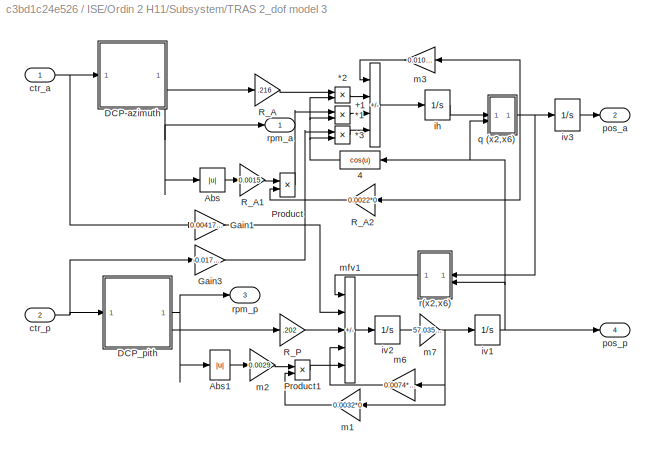
BLOCK [SubSystem] ISE/Ordin 2 H11/Subsystem/TRAS 2_dof model 3
  NameLocation = top
BLOCK [Product] ISE/Ordin 2 H11/Subsystem/TRAS 2_dof model 3/*1
  InputSameDT = on
  OutDataTypeStr = Inherit: Same as first input
  SaturateOnIntegerOverflow = on
BLOCK [Product] ISE/Ordin 2 H11/Subsystem/TRAS 2_dof model 3/*2
  InputSameDT = on
  OutDataTypeStr = Inherit: Same as first input
  SaturateOnIntegerOverflow = on
BLOCK [Product] ISE/Ordin 2 H11/Subsystem/TRAS 2_dof model 3/*3
  InputSameDT = on
  OutDataTypeStr = Inherit: Same as first input
  SaturateOnIntegerOverflow = on
BLOCK [Sum] ISE/Ordin 2 H11/Subsystem/TRAS 2_dof model 3/+1
  IconShape = rectangular
  InputSameDT = on
  Inputs = -+--
  NameLocation = top
  OutDataTypeStr = Inherit: Same as first input
  SaturateOnIntegerOverflow = on
BLOCK [Fcn] ISE/Ordin 2 H11/Subsystem/TRAS 2_dof model 3/4
  Expr = cos(u)
  NameLocation = top
BLOCK [Abs] ISE/Ordin 2 H11/Subsystem/TRAS 2_dof model 3/Abs
BLOCK [Abs] ISE/Ordin 2 H11/Subsystem/TRAS 2_dof model 3/Abs1
BLOCK [SubSystem] ISE/Ordin 2 H11/Subsystem/TRAS 2_dof model 3/DCP-azimuth
  NameLocation = top
BLOCK [Gain] ISE/Ordin 2 H11/Subsystem/TRAS 2_dof model 3/DCP-azimuth/1//Ja
  Gain = 37000
  OutDataTypeStr = Inherit: Same as input
  ParamDataTypeStr = Inherit: Same as input
  SaturateOnIntegerOverflow = on
BLOCK [Inport] ISE/Ordin 2 H11/Subsystem/TRAS 2_dof model 3/DCP-azimuth/CTR_A
BLOCK [Lookup] ISE/Ordin 2 H11/Subsystem/TRAS 2_dof model 3/DCP-azimuth/CtrlA(rpma)
  InputValues = rpm_a
  Table = control_a
BLOCK [Outport] ISE/Ordin 2 H11/Subsystem/TRAS 2_dof model 3/DCP-azimuth/FORCE_A
  Port = 2
BLOCK [Integrator] ISE/Ordin 2 H11/Subsystem/TRAS 2_dof model 3/DCP-azimuth/Integrator1
BLOCK [Outport] ISE/Ordin 2 H11/Subsystem/TRAS 2_dof model 3/DCP-azimuth/RPM_A
BLOCK [Sum] ISE/Ordin 2 H11/Subsystem/TRAS 2_dof model 3/DCP-azimuth/Sum1
  InputSameDT = on
  Inputs = |+-
  OutDataTypeStr = Inherit: Same as first input
  SaturateOnIntegerOverflow = on
BLOCK [Lookup] ISE/Ordin 2 H11/Subsystem/TRAS 2_dof model 3/DCP-azimuth/forceA(rpma)
  InputValues = rpm_a
  NameLocation = top
  Table = force_a
BLOCK [SubSystem] ISE/Ordin 2 H11/Subsystem/TRAS 2_dof model 3/DCP_pith
BLOCK [Gain] ISE/Ordin 2 H11/Subsystem/TRAS 2_dof model 3/DCP_pith/1//Jp1
  Gain = 6100
  OutDataTypeStr = Inherit: Same as input
  ParamDataTypeStr = Inherit: Same as input
BLOCK [Inport] ISE/Ordin 2 H11/Subsystem/TRAS 2_dof model 3/DCP_pith/CTR_P
BLOCK [Lookup] ISE/Ordin 2 H11/Subsystem/TRAS 2_dof model 3/DCP_pith/CtrlP(rpmp)
  InputValues = rpm_p
  Table = control_p
BLOCK [Outport] ISE/Ordin 2 H11/Subsystem/TRAS 2_dof model 3/DCP_pith/FORCE_P
  Port = 2
BLOCK [Integrator] ISE/Ordin 2 H11/Subsystem/TRAS 2_dof model 3/DCP_pith/Integrator
BLOCK [Outport] ISE/Ordin 2 H11/Subsystem/TRAS 2_dof model 3/DCP_pith/RPM_P
BLOCK [Sum] ISE/Ordin 2 H11/Subsystem/TRAS 2_dof model 3/DCP_pith/Sum
  InputSameDT = on
  Inputs = |+-
  OutDataTypeStr = Inherit: Same as first input
  SaturateOnIntegerOverflow = on
BLOCK [Lookup] ISE/Ordin 2 H11/Subsystem/TRAS 2_dof model 3/DCP_pith/force(rpmp)
  InputValues = rpm_p
  NameLocation = top
  Table = force_p
BLOCK [Gain] ISE/Ordin 2 H11/Subsystem/TRAS 2_dof model 3/Gain1
  Gain = 0.00417495398545
  NameLocation = top
  OutDataTypeStr = Inherit: Same as input
  ParamDataTypeStr = Inherit: Same as input
  SaturateOnIntegerOverflow = on
BLOCK [Gain] ISE/Ordin 2 H11/Subsystem/TRAS 2_dof model 3/Gain3
  Gain = -0.01782003784180
  NameLocation = top
  OutDataTypeStr = Inherit: Same as input
  ParamDataTypeStr = Inherit: Same as input
  SaturateOnIntegerOverflow = on
BLOCK [Product] ISE/Ordin 2 H11/Subsystem/TRAS 2_dof model 3/Product
  InputSameDT = on
  OutDataTypeStr = Inherit: Same as first input
  SaturateOnIntegerOverflow = on
BLOCK [Product] ISE/Ordin 2 H11/Subsystem/TRAS 2_dof model 3/Product1
  OutDataTypeStr = Inherit: Same as first input
  SaturateOnIntegerOverflow = on
BLOCK [Gain] ISE/Ordin 2 H11/Subsystem/TRAS 2_dof model 3/R_A
  Gain = .216
  NameLocation = top
  OutDataTypeStr = Inherit: Same as input
  ParamDataTypeStr = Inherit: Same as input
BLOCK [Gain] ISE/Ordin 2 H11/Subsystem/TRAS 2_dof model 3/R_A1
  Gain = 0.0015
  NameLocation = top
  OutDataTypeStr = Inherit: Same as input
  ParamDataTypeStr = Inherit: Same as input
BLOCK [Gain] ISE/Ordin 2 H11/Subsystem/TRAS 2_dof model 3/R_A2
  Gain = 0.0022*0
  NameLocation = top
  OutDataTypeStr = Inherit: Same as input
  ParamDataTypeStr = Inherit: Same as input
BLOCK [Gain] ISE/Ordin 2 H11/Subsystem/TRAS 2_dof model 3/R_P
  Gain = .202
  OutDataTypeStr = Inherit: Same as input
  ParamDataTypeStr = Inherit: Same as input
BLOCK [Inport] ISE/Ordin 2 H11/Subsystem/TRAS 2_dof model 3/ctr_a
BLOCK [Inport] ISE/Ordin 2 H11/Subsystem/TRAS 2_dof model 3/ctr_p
  Port = 2
BLOCK [Integrator] ISE/Ordin 2 H11/Subsystem/TRAS 2_dof model 3/ih
  LowerSaturationLimit = -10
  UpperSaturationLimit = 10
BLOCK [Integrator] ISE/Ordin 2 H11/Subsystem/TRAS 2_dof model 3/iv1
  LimitOutput = on
  LowerSaturationLimit = -pi/2
  NameLocation = top
  UpperSaturationLimit = pi/2
BLOCK [Integrator] ISE/Ordin 2 H11/Subsystem/TRAS 2_dof model 3/iv2
  LowerSaturationLimit = -pi
  NameLocation = top
  UpperSaturationLimit = pi
BLOCK [Integrator] ISE/Ordin 2 H11/Subsystem/TRAS 2_dof model 3/iv3
  LimitOutput = on
  LowerSaturationLimit = -6
  NameLocation = top
  UpperSaturationLimit = 6
BLOCK [Gain] ISE/Ordin 2 H11/Subsystem/TRAS 2_dof model 3/m1
  Gain = 0.0032*0
  NameLocation = top
  OutDataTypeStr = Inherit: Same as input
  ParamDataTypeStr = Inherit: Same as input
  SaturateOnIntegerOverflow = on
BLOCK [Gain] ISE/Ordin 2 H11/Subsystem/TRAS 2_dof model 3/m2
  Gain = 0.0029
  NameLocation = top
  OutDataTypeStr = Inherit: Same as input
  ParamDataTypeStr = Inherit: Same as input
  SaturateOnIntegerOverflow = on
BLOCK [Gain] ISE/Ordin 2 H11/Subsystem/TRAS 2_dof model 3/m3
  Gain = 0.0108*0.4935*1.1051
  NameLocation = top
  OutDataTypeStr = Inherit: Same as input
  ParamDataTypeStr = Inherit: Same as input
BLOCK [Gain] ISE/Ordin 2 H11/Subsystem/TRAS 2_dof model 3/m6
  Gain = 0.0074*1.7175
  OutDataTypeStr = Inherit: Same as input
  ParamDataTypeStr = Inherit: Same as input
BLOCK [Gain] ISE/Ordin 2 H11/Subsystem/TRAS 2_dof model 3/m7
  Gain = 57.0357*0.5833
  NameLocation = top
  OutDataTypeStr = Inherit: Same as input
  ParamDataTypeStr = Inherit: Same as input
  SaturateOnIntegerOverflow = on
BLOCK [Sum] ISE/Ordin 2 H11/Subsystem/TRAS 2_dof model 3/mfv1
  IconShape = rectangular
  InputSameDT = on
  Inputs = +++--
  NameLocation = top
  OutDataTypeStr = Inherit: Same as first input
  SaturateOnIntegerOverflow = on
BLOCK [Outport] ISE/Ordin 2 H11/Subsystem/TRAS 2_dof model 3/pos_a
  Port = 2
BLOCK [Outport] ISE/Ordin 2 H11/Subsystem/TRAS 2_dof model 3/pos_p
  Port = 4
BLOCK [SubSystem] ISE/Ordin 2 H11/Subsystem/TRAS 2_dof model 3/q (x2,x6)
BLOCK [Fcn] ISE/Ordin 2 H11/Subsystem/TRAS 2_dof model 3/q (x2,x6)/ q(x6)
  Expr = ( (0.0268-0.00300962066650)*cos(u)^2) +0.00300962066650
  NameLocation = left
BLOCK [Product] ISE/Ordin 2 H11/Subsystem/TRAS 2_dof model 3/q (x2,x6)/*1
  InputSameDT = on
  Inputs = */
  OutDataTypeStr = Inherit: Same as first input
  SaturateOnIntegerOverflow = on
BLOCK [Outport] ISE/Ordin 2 H11/Subsystem/TRAS 2_dof model 3/q (x2,x6)/q
BLOCK [Inport] ISE/Ordin 2 H11/Subsystem/TRAS 2_dof model 3/q (x2,x6)/x2
BLOCK [Inport] ISE/Ordin 2 H11/Subsystem/TRAS 2_dof model 3/q (x2,x6)/x6
  Port = 2
BLOCK [SubSystem] ISE/Ordin 2 H11/Subsystem/TRAS 2_dof model 3/r(x2,x6)
BLOCK [Sum] ISE/Ordin 2 H11/Subsystem/TRAS 2_dof model 3/r(x2,x6)/+2
  IconShape = rectangular
  InputSameDT = on
  OutDataTypeStr = Inherit: Same as first input
  SaturateOnIntegerOverflow = on
BLOCK [Mux] ISE/Ordin 2 H11/Subsystem/TRAS 2_dof model 3/r(x2,x6)/Mux
  DisplayOption = bar
  Inputs = 2
  NameLocation = top
BLOCK [Outport] ISE/Ordin 2 H11/Subsystem/TRAS 2_dof model 3/r(x2,x6)/r
BLOCK [Fcn] ISE/Ordin 2 H11/Subsystem/TRAS 2_dof model 3/r(x2,x6)/r2
  Expr = - ( 0.0292*cos(u)+ 0.0546*sin(u))*1.7143
BLOCK [Fcn] ISE/Ordin 2 H11/Subsystem/TRAS 2_dof model 3/r(x2,x6)/s
  Expr = (u(1)^2)*(     -0.07389953104162*  0.28753198180218*sin(u(2))*cos(u(2)))
BLOCK [Inport] ISE/Ordin 2 H11/Subsystem/TRAS 2_dof model 3/r(x2,x6)/x6
  NameLocation = right
  Port = 2
BLOCK [Inport] ISE/Ordin 2 H11/Subsystem/TRAS 2_dof model 3/r(x2,x6)/y2
BLOCK [Outport] ISE/Ordin 2 H11/Subsystem/TRAS 2_dof model 3/rpm_a
BLOCK [Outport] ISE/Ordin 2 H11/Subsystem/TRAS 2_dof model 3/rpm_p
  Port = 3
BLOCK [Outport] ISE/Ordin 2 H11/Subsystem/azimuth pos
  Port = 2
BLOCK [Outport] ISE/Ordin 2 H11/Subsystem/azimuth rpm
BLOCK [Outport] ISE/Ordin 2 H11/Subsystem/pitch pos
  Port = 5
BLOCK [Outport] ISE/Ordin 2 H11/Subsystem/pitch rpm
  Port = 3
BLOCK [Sum] ISE/Ordin 2 H11/Sum15
  Inputs = |+-
BLOCK [Sum] ISE/Ordin 2 H11/Sum17
  Inputs = -+|
BLOCK [Inport] ISE/Ordin 2 H11/ref azimuth
  Port = 2
BLOCK [Inport] ISE/Ordin 2 H11/ref pitch
BLOCK [SubSystem] ISE/Ordin 3 H11
BLOCK [Scope] ISE/Ordin 3 H11/AZIMUTH2
  Floating = off
  NumInputPorts = 3
BLOCK [SubSystem] ISE/Ordin 3 H11/FOPID G1
  Commented = on
BLOCK [Reference] ISE/Ordin 3 H11/FOPID G1/Fractional PID controller1  REF=fod/Fractional PID  (lib defined in slx_5cb2d42c7bef)
controller
  SourceBlock = fod/Fractional PID\ncontroller
  SourceProductName = FOMCON Toolbox
  SourceType = Fractional PID
BLOCK [Reference] ISE/Ordin 3 H11/FOPID G1/Fractional PID controller2  REF=fod/Fractional PID  (lib defined in slx_5cb2d42c7bef)
controller
  SourceBlock = fod/Fractional PID\ncontroller
  SourceProductName = FOMCON Toolbox
  SourceType = Fractional PID
BLOCK [Sum] ISE/Ordin 3 H11/FOPID G1/Sum1
  Inputs = |++
BLOCK [Outport] ISE/Ordin 3 H11/FOPID G1/comanda
BLOCK [Inport] ISE/Ordin 3 H11/FOPID G1/eroare
  NameLocation = left
BLOCK [SubSystem] ISE/Ordin 3 H11/FOPID G2
  Commented = on
BLOCK [Reference] ISE/Ordin 3 H11/FOPID G2/Fractional PID controller  REF=fod/Fractional PID  (lib defined in slx_5cb2d42c7bef)
controller
  SourceBlock = fod/Fractional PID\ncontroller
  SourceProductName = FOMCON Toolbox
  SourceType = Fractional PID
BLOCK [Reference] ISE/Ordin 3 H11/FOPID G2/Fractional PID controller1  REF=fod/Fractional PID  (lib defined in slx_5cb2d42c7bef)
controller
  SourceBlock = fod/Fractional PID\ncontroller
  SourceProductName = FOMCON Toolbox
  SourceType = Fractional PID
BLOCK [Reference] ISE/Ordin 3 H11/FOPID G2/Fractional PID controller2  REF=fod/Fractional PID  (lib defined in slx_5cb2d42c7bef)
controller
  SourceBlock = fod/Fractional PID\ncontroller
  SourceProductName = FOMCON Toolbox
  SourceType = Fractional PID
BLOCK [Sum] ISE/Ordin 3 H11/FOPID G2/Sum1
  Inputs = |+++
BLOCK [Outport] ISE/Ordin 3 H11/FOPID G2/comanda
BLOCK [Inport] ISE/Ordin 3 H11/FOPID G2/eroare
  NameLocation = left
BLOCK [SubSystem] ISE/Ordin 3 H11/FOPID H11 limitat1
  Commented = on
BLOCK [Reference] ISE/Ordin 3 H11/FOPID H11 limitat1/Fractional PID controller1  REF=fod/Fractional PID  (lib defined in slx_5cb2d42c7bef)
controller
  SourceBlock = fod/Fractional PID\ncontroller
  SourceProductName = FOMCON Toolbox
  SourceType = Fractional PID
BLOCK [Reference] ISE/Ordin 3 H11/FOPID H11 limitat1/Fractional PID controller2  REF=fod/Fractional PID  (lib defined in slx_5cb2d42c7bef)
controller
  SourceBlock = fod/Fractional PID\ncontroller
  SourceProductName = FOMCON Toolbox
  SourceType = Fractional PID
BLOCK [Reference] ISE/Ordin 3 H11/FOPID H11 limitat1/Fractional PID controller3  REF=fod/Fractional PID  (lib defined in slx_5cb2d42c7bef)
controller
  SourceBlock = fod/Fractional PID\ncontroller
  SourceProductName = FOMCON Toolbox
  SourceType = Fractional PID
BLOCK [Reference] ISE/Ordin 3 H11/FOPID H11 limitat1/Fractional PID controller4  REF=fod/Fractional PID  (lib defined in slx_5cb2d42c7bef)
controller
  SourceBlock = fod/Fractional PID\ncontroller
  SourceProductName = FOMCON Toolbox
  SourceType = Fractional PID
BLOCK [Sum] ISE/Ordin 3 H11/FOPID H11 limitat1/Sum1
  Inputs = |++++
BLOCK [Outport] ISE/Ordin 3 H11/FOPID H11 limitat1/comanda
BLOCK [Inport] ISE/Ordin 3 H11/FOPID H11 limitat1/eroare
  NameLocation = left
BLOCK [SubSystem] ISE/Ordin 3 H11/Ord 3 H11
BLOCK [Reference] ISE/Ordin 3 H11/Ord 3 H11/Fractional operator1  REF=fod/Fractional  (lib defined in slx_5cb2d42c7bef)
operator
  SourceBlock = fod/Fractional\noperator
  SourceProductName = FOMCON Toolbox
  SourceType = Fractional operator
  Tag = Fractional operator
BLOCK [Reference] ISE/Ordin 3 H11/Ord 3 H11/Fractional operator2  REF=fod/Fractional  (lib defined in slx_5cb2d42c7bef)
operator
  SourceBlock = fod/Fractional\noperator
  SourceProductName = FOMCON Toolbox
  SourceType = Fractional operator
  Tag = Fractional operator
BLOCK [Reference] ISE/Ordin 3 H11/Ord 3 H11/Fractional operator3  REF=fod/Fractional  (lib defined in slx_5cb2d42c7bef)
operator
  SourceBlock = fod/Fractional\noperator
  SourceProductName = FOMCON Toolbox
  SourceType = Fractional operator
  Tag = Fractional operator
BLOCK [Sum] ISE/Ordin 3 H11/Ord 3 H11/Sum
  Inputs = +|++
BLOCK [Outport] ISE/Ordin 3 H11/Ord 3 H11/comanda
BLOCK [Inport] ISE/Ordin 3 H11/Ord 3 H11/ref
BLOCK [SubSystem] ISE/Ordin 3 H11/Ord 3 H22
BLOCK [Reference] ISE/Ordin 3 H11/Ord 3 H22/Fractional operator1  REF=fod/Fractional  (lib defined in slx_5cb2d42c7bef)
operator
  SourceBlock = fod/Fractional\noperator
  SourceProductName = FOMCON Toolbox
  SourceType = Fractional operator
  Tag = Fractional operator
BLOCK [Reference] ISE/Ordin 3 H11/Ord 3 H22/Fractional operator2  REF=fod/Fractional  (lib defined in slx_5cb2d42c7bef)
operator
  SourceBlock = fod/Fractional\noperator
  SourceProductName = FOMCON Toolbox
  SourceType = Fractional operator
  Tag = Fractional operator
BLOCK [Reference] ISE/Ordin 3 H11/Ord 3 H22/Fractional operator3  REF=fod/Fractional  (lib defined in slx_5cb2d42c7bef)
operator
  SourceBlock = fod/Fractional\noperator
  SourceProductName = FOMCON Toolbox
  SourceType = Fractional operator
  Tag = Fractional operator
BLOCK [Sum] ISE/Ordin 3 H11/Ord 3 H22/Sum
  Inputs = +|++
BLOCK [Outport] ISE/Ordin 3 H11/Ord 3 H22/comanda
BLOCK [Inport] ISE/Ordin 3 H11/Ord 3 H22/ref
BLOCK [Reference] ISE/Ordin 3 H11/PID H1  REF=slpidlib/PID Controller
  Commented = on
  LibrarySourceBlock = simulink/Continuous/PID Controller
  SourceBlock = slpidlib/PID Controller
  SourceType = PID 1dof
BLOCK [Reference] ISE/Ordin 3 H11/PID H2  REF=slpidlib/PID Controller
  Commented = on
  LibrarySourceBlock = simulink/Continuous/PID Controller
  SourceBlock = slpidlib/PID Controller
  SourceType = PID 1dof
BLOCK [Reference] ISE/Ordin 3 H11/PID H22  REF=slpidlib/PID Controller
  Commented = on
  LibrarySourceBlock = simulink/Continuous/PID Controller
  SourceBlock = slpidlib/PID Controller
  SourceType = PID 1dof
BLOCK [Scope] ISE/Ordin 3 H11/PITCH2
  Floating = off
  NumInputPorts = 3
BLOCK [SubSystem] ISE/Ordin 3 H11/Regulator H22 ISE1
  Commented = on
BLOCK [SubSystem] ISE/Ordin 3 H11/Regulator H22 ISE1/Ord 3
BLOCK [Reference] ISE/Ordin 3 H11/Regulator H22 ISE1/Ord 3/Fractional operator1  REF=fod/Fractional  (lib defined in slx_5cb2d42c7bef)
operator
  SourceBlock = fod/Fractional\noperator
  SourceProductName = FOMCON Toolbox
  SourceType = Fractional operator
  Tag = Fractional operator
BLOCK [Reference] ISE/Ordin 3 H11/Regulator H22 ISE1/Ord 3/Fractional operator2  REF=fod/Fractional  (lib defined in slx_5cb2d42c7bef)
operator
  SourceBlock = fod/Fractional\noperator
  SourceProductName = FOMCON Toolbox
  SourceType = Fractional operator
  Tag = Fractional operator
BLOCK [Reference] ISE/Ordin 3 H11/Regulator H22 ISE1/Ord 3/Fractional operator3  REF=fod/Fractional  (lib defined in slx_5cb2d42c7bef)
operator
  SourceBlock = fod/Fractional\noperator
  SourceProductName = FOMCON Toolbox
  SourceType = Fractional operator
  Tag = Fractional operator
BLOCK [Sum] ISE/Ordin 3 H11/Regulator H22 ISE1/Ord 3/Sum
  Inputs = +|++
BLOCK [Outport] ISE/Ordin 3 H11/Regulator H22 ISE1/Ord 3/comanda
BLOCK [Inport] ISE/Ordin 3 H11/Regulator H22 ISE1/Ord 3/ref
BLOCK [Outport] ISE/Ordin 3 H11/Regulator H22 ISE1/comanda
BLOCK [Inport] ISE/Ordin 3 H11/Regulator H22 ISE1/ref
BLOCK [SubSystem] ISE/Ordin 3 H11/Subsystem
BLOCK [Gain] ISE/Ordin 3 H11/Subsystem/Azimuth H22
BLOCK [Scope] ISE/Ordin 3 H11/Subsystem/Comanda
  Floating = off
  NumInputPorts = 3
BLOCK [Scope] ISE/Ordin 3 H11/Subsystem/Comanda Iesire regulator
  Floating = off
  NumInputPorts = 2
BLOCK [Outport] ISE/Ordin 3 H11/Subsystem/Comanda1
  Port = 4
BLOCK [Outport] ISE/Ordin 3 H11/Subsystem/Comanda2
  Port = 6
BLOCK [TransferFcn] ISE/Ordin 3 H11/Subsystem/D12
  Denominator = [1 1.322]
  Numerator = [0.0019343*1 0.0019343*1.287]
BLOCK [TransferFcn] ISE/Ordin 3 H11/Subsystem/D21
  Denominator = [1 5.675]
  Numerator = [0.0014712*1    0.0014712*3.527]
BLOCK [Inport] ISE/Ordin 3 H11/Subsystem/In2
  Port = 2
BLOCK [Gain] ISE/Ordin 3 H11/Subsystem/Pitch H11
BLOCK [Inport] ISE/Ordin 3 H11/Subsystem/Reg_azimuth
  Port = 3
BLOCK [Inport] ISE/Ordin 3 H11/Subsystem/Reg_pitch
BLOCK [Saturate] ISE/Ordin 3 H11/Subsystem/Saturation5
  LowerLimit = -1
  RndMeth = Ceiling
  UpperLimit = 1
BLOCK [Saturate] ISE/Ordin 3 H11/Subsystem/Saturation6
  LowerLimit = -1
  RndMeth = Ceiling
  UpperLimit = 1
BLOCK [Sum] ISE/Ordin 3 H11/Subsystem/Sum14
  Inputs = |++
BLOCK [Sum] ISE/Ordin 3 H11/Subsystem/Sum16
  Inputs = |++
BLOCK [SubSystem] ISE/Ordin 3 H11/Subsystem/TRAS 2_dof model 3
  NameLocation = top
BLOCK [Product] ISE/Ordin 3 H11/Subsystem/TRAS 2_dof model 3/*1
  InputSameDT = on
  OutDataTypeStr = Inherit: Same as first input
  SaturateOnIntegerOverflow = on
BLOCK [Product] ISE/Ordin 3 H11/Subsystem/TRAS 2_dof model 3/*2
  InputSameDT = on
  OutDataTypeStr = Inherit: Same as first input
  SaturateOnIntegerOverflow = on
BLOCK [Product] ISE/Ordin 3 H11/Subsystem/TRAS 2_dof model 3/*3
  InputSameDT = on
  OutDataTypeStr = Inherit: Same as first input
  SaturateOnIntegerOverflow = on
BLOCK [Sum] ISE/Ordin 3 H11/Subsystem/TRAS 2_dof model 3/+1
  IconShape = rectangular
  InputSameDT = on
  Inputs = -+--
  NameLocation = top
  OutDataTypeStr = Inherit: Same as first input
  SaturateOnIntegerOverflow = on
BLOCK [Fcn] ISE/Ordin 3 H11/Subsystem/TRAS 2_dof model 3/4
  Expr = cos(u)
  NameLocation = top
BLOCK [Abs] ISE/Ordin 3 H11/Subsystem/TRAS 2_dof model 3/Abs
BLOCK [Abs] ISE/Ordin 3 H11/Subsystem/TRAS 2_dof model 3/Abs1
BLOCK [SubSystem] ISE/Ordin 3 H11/Subsystem/TRAS 2_dof model 3/DCP-azimuth
  NameLocation = top
BLOCK [Gain] ISE/Ordin 3 H11/Subsystem/TRAS 2_dof model 3/DCP-azimuth/1//Ja
  Gain = 37000
  OutDataTypeStr = Inherit: Same as input
  ParamDataTypeStr = Inherit: Same as input
  SaturateOnIntegerOverflow = on
BLOCK [Inport] ISE/Ordin 3 H11/Subsystem/TRAS 2_dof model 3/DCP-azimuth/CTR_A
BLOCK [Lookup] ISE/Ordin 3 H11/Subsystem/TRAS 2_dof model 3/DCP-azimuth/CtrlA(rpma)
  InputValues = rpm_a
  Table = control_a
BLOCK [Outport] ISE/Ordin 3 H11/Subsystem/TRAS 2_dof model 3/DCP-azimuth/FORCE_A
  Port = 2
BLOCK [Integrator] ISE/Ordin 3 H11/Subsystem/TRAS 2_dof model 3/DCP-azimuth/Integrator1
BLOCK [Outport] ISE/Ordin 3 H11/Subsystem/TRAS 2_dof model 3/DCP-azimuth/RPM_A
BLOCK [Sum] ISE/Ordin 3 H11/Subsystem/TRAS 2_dof model 3/DCP-azimuth/Sum1
  InputSameDT = on
  Inputs = |+-
  OutDataTypeStr = Inherit: Same as first input
  SaturateOnIntegerOverflow = on
BLOCK [Lookup] ISE/Ordin 3 H11/Subsystem/TRAS 2_dof model 3/DCP-azimuth/forceA(rpma)
  InputValues = rpm_a
  NameLocation = top
  Table = force_a
BLOCK [SubSystem] ISE/Ordin 3 H11/Subsystem/TRAS 2_dof model 3/DCP_pith
BLOCK [Gain] ISE/Ordin 3 H11/Subsystem/TRAS 2_dof model 3/DCP_pith/1//Jp1
  Gain = 6100
  OutDataTypeStr = Inherit: Same as input
  ParamDataTypeStr = Inherit: Same as input
BLOCK [Inport] ISE/Ordin 3 H11/Subsystem/TRAS 2_dof model 3/DCP_pith/CTR_P
BLOCK [Lookup] ISE/Ordin 3 H11/Subsystem/TRAS 2_dof model 3/DCP_pith/CtrlP(rpmp)
  InputValues = rpm_p
  Table = control_p
BLOCK [Outport] ISE/Ordin 3 H11/Subsystem/TRAS 2_dof model 3/DCP_pith/FORCE_P
  Port = 2
BLOCK [Integrator] ISE/Ordin 3 H11/Subsystem/TRAS 2_dof model 3/DCP_pith/Integrator
BLOCK [Outport] ISE/Ordin 3 H11/Subsystem/TRAS 2_dof model 3/DCP_pith/RPM_P
BLOCK [Sum] ISE/Ordin 3 H11/Subsystem/TRAS 2_dof model 3/DCP_pith/Sum
  InputSameDT = on
  Inputs = |+-
  OutDataTypeStr = Inherit: Same as first input
  SaturateOnIntegerOverflow = on
BLOCK [Lookup] ISE/Ordin 3 H11/Subsystem/TRAS 2_dof model 3/DCP_pith/force(rpmp)
  InputValues = rpm_p
  NameLocation = top
  Table = force_p
BLOCK [Gain] ISE/Ordin 3 H11/Subsystem/TRAS 2_dof model 3/Gain1
  Gain = 0.00417495398545
  NameLocation = top
  OutDataTypeStr = Inherit: Same as input
  ParamDataTypeStr = Inherit: Same as input
  SaturateOnIntegerOverflow = on
BLOCK [Gain] ISE/Ordin 3 H11/Subsystem/TRAS 2_dof model 3/Gain3
  Gain = -0.01782003784180
  NameLocation = top
  OutDataTypeStr = Inherit: Same as input
  ParamDataTypeStr = Inherit: Same as input
  SaturateOnIntegerOverflow = on
BLOCK [Product] ISE/Ordin 3 H11/Subsystem/TRAS 2_dof model 3/Product
  InputSameDT = on
  OutDataTypeStr = Inherit: Same as first input
  SaturateOnIntegerOverflow = on
BLOCK [Product] ISE/Ordin 3 H11/Subsystem/TRAS 2_dof model 3/Product1
  OutDataTypeStr = Inherit: Same as first input
  SaturateOnIntegerOverflow = on
BLOCK [Gain] ISE/Ordin 3 H11/Subsystem/TRAS 2_dof model 3/R_A
  Gain = .216
  NameLocation = top
  OutDataTypeStr = Inherit: Same as input
  ParamDataTypeStr = Inherit: Same as input
BLOCK [Gain] ISE/Ordin 3 H11/Subsystem/TRAS 2_dof model 3/R_A1
  Gain = 0.0015
  NameLocation = top
  OutDataTypeStr = Inherit: Same as input
  ParamDataTypeStr = Inherit: Same as input
BLOCK [Gain] ISE/Ordin 3 H11/Subsystem/TRAS 2_dof model 3/R_A2
  Gain = 0.0022*0
  NameLocation = top
  OutDataTypeStr = Inherit: Same as input
  ParamDataTypeStr = Inherit: Same as input
BLOCK [Gain] ISE/Ordin 3 H11/Subsystem/TRAS 2_dof model 3/R_P
  Gain = .202
  OutDataTypeStr = Inherit: Same as input
  ParamDataTypeStr = Inherit: Same as input
BLOCK [Inport] ISE/Ordin 3 H11/Subsystem/TRAS 2_dof model 3/ctr_a
BLOCK [Inport] ISE/Ordin 3 H11/Subsystem/TRAS 2_dof model 3/ctr_p
  Port = 2
BLOCK [Integrator] ISE/Ordin 3 H11/Subsystem/TRAS 2_dof model 3/ih
  LowerSaturationLimit = -10
  UpperSaturationLimit = 10
BLOCK [Integrator] ISE/Ordin 3 H11/Subsystem/TRAS 2_dof model 3/iv1
  LimitOutput = on
  LowerSaturationLimit = -pi/2
  NameLocation = top
  UpperSaturationLimit = pi/2
BLOCK [Integrator] ISE/Ordin 3 H11/Subsystem/TRAS 2_dof model 3/iv2
  LowerSaturationLimit = -pi
  NameLocation = top
  UpperSaturationLimit = pi
BLOCK [Integrator] ISE/Ordin 3 H11/Subsystem/TRAS 2_dof model 3/iv3
  LimitOutput = on
  LowerSaturationLimit = -6
  NameLocation = top
  UpperSaturationLimit = 6
BLOCK [Gain] ISE/Ordin 3 H11/Subsystem/TRAS 2_dof model 3/m1
  Gain = 0.0032*0
  NameLocation = top
  OutDataTypeStr = Inherit: Same as input
  ParamDataTypeStr = Inherit: Same as input
  SaturateOnIntegerOverflow = on
BLOCK [Gain] ISE/Ordin 3 H11/Subsystem/TRAS 2_dof model 3/m2
  Gain = 0.0029
  NameLocation = top
  OutDataTypeStr = Inherit: Same as input
  ParamDataTypeStr = Inherit: Same as input
  SaturateOnIntegerOverflow = on
BLOCK [Gain] ISE/Ordin 3 H11/Subsystem/TRAS 2_dof model 3/m3
  Gain = 0.0108*0.4935*1.1051
  NameLocation = top
  OutDataTypeStr = Inherit: Same as input
  ParamDataTypeStr = Inherit: Same as input
BLOCK [Gain] ISE/Ordin 3 H11/Subsystem/TRAS 2_dof model 3/m6
  Gain = 0.0074*1.7175
  OutDataTypeStr = Inherit: Same as input
  ParamDataTypeStr = Inherit: Same as input
BLOCK [Gain] ISE/Ordin 3 H11/Subsystem/TRAS 2_dof model 3/m7
  Gain = 57.0357*0.5833
  NameLocation = top
  OutDataTypeStr = Inherit: Same as input
  ParamDataTypeStr = Inherit: Same as input
  SaturateOnIntegerOverflow = on
BLOCK [Sum] ISE/Ordin 3 H11/Subsystem/TRAS 2_dof model 3/mfv1
  IconShape = rectangular
  InputSameDT = on
  Inputs = +++--
  NameLocation = top
  OutDataTypeStr = Inherit: Same as first input
  SaturateOnIntegerOverflow = on
BLOCK [Outport] ISE/Ordin 3 H11/Subsystem/TRAS 2_dof model 3/pos_a
  Port = 2
BLOCK [Outport] ISE/Ordin 3 H11/Subsystem/TRAS 2_dof model 3/pos_p
  Port = 4
BLOCK [SubSystem] ISE/Ordin 3 H11/Subsystem/TRAS 2_dof model 3/q (x2,x6)
BLOCK [Fcn] ISE/Ordin 3 H11/Subsystem/TRAS 2_dof model 3/q (x2,x6)/ q(x6)
  Expr = ( (0.0268-0.00300962066650)*cos(u)^2) +0.00300962066650
  NameLocation = left
BLOCK [Product] ISE/Ordin 3 H11/Subsystem/TRAS 2_dof model 3/q (x2,x6)/*1
  InputSameDT = on
  Inputs = */
  OutDataTypeStr = Inherit: Same as first input
  SaturateOnIntegerOverflow = on
BLOCK [Outport] ISE/Ordin 3 H11/Subsystem/TRAS 2_dof model 3/q (x2,x6)/q
BLOCK [Inport] ISE/Ordin 3 H11/Subsystem/TRAS 2_dof model 3/q (x2,x6)/x2
BLOCK [Inport] ISE/Ordin 3 H11/Subsystem/TRAS 2_dof model 3/q (x2,x6)/x6
  Port = 2
BLOCK [SubSystem] ISE/Ordin 3 H11/Subsystem/TRAS 2_dof model 3/r(x2,x6)
BLOCK [Sum] ISE/Ordin 3 H11/Subsystem/TRAS 2_dof model 3/r(x2,x6)/+2
  IconShape = rectangular
  InputSameDT = on
  OutDataTypeStr = Inherit: Same as first input
  SaturateOnIntegerOverflow = on
BLOCK [Mux] ISE/Ordin 3 H11/Subsystem/TRAS 2_dof model 3/r(x2,x6)/Mux
  DisplayOption = bar
  Inputs = 2
  NameLocation = top
BLOCK [Outport] ISE/Ordin 3 H11/Subsystem/TRAS 2_dof model 3/r(x2,x6)/r
BLOCK [Fcn] ISE/Ordin 3 H11/Subsystem/TRAS 2_dof model 3/r(x2,x6)/r2
  Expr = - ( 0.0292*cos(u)+ 0.0546*sin(u))*1.7143
BLOCK [Fcn] ISE/Ordin 3 H11/Subsystem/TRAS 2_dof model 3/r(x2,x6)/s
  Expr = (u(1)^2)*(     -0.07389953104162*  0.28753198180218*sin(u(2))*cos(u(2)))
BLOCK [Inport] ISE/Ordin 3 H11/Subsystem/TRAS 2_dof model 3/r(x2,x6)/x6
  NameLocation = right
  Port = 2
BLOCK [Inport] ISE/Ordin 3 H11/Subsystem/TRAS 2_dof model 3/r(x2,x6)/y2
BLOCK [Outport] ISE/Ordin 3 H11/Subsystem/TRAS 2_dof model 3/rpm_a
BLOCK [Outport] ISE/Ordin 3 H11/Subsystem/TRAS 2_dof model 3/rpm_p
  Port = 3
BLOCK [Outport] ISE/Ordin 3 H11/Subsystem/azimuth pos
  Port = 2
BLOCK [Outport] ISE/Ordin 3 H11/Subsystem/azimuth rpm
BLOCK [Outport] ISE/Ordin 3 H11/Subsystem/pitch pos
  Port = 5
BLOCK [Outport] ISE/Ordin 3 H11/Subsystem/pitch rpm
  Port = 3
BLOCK [Sum] ISE/Ordin 3 H11/Sum15
  Inputs = |+-
BLOCK [Sum] ISE/Ordin 3 H11/Sum17
  Inputs = -+|
BLOCK [Inport] ISE/Ordin 3 H11/ref azimuth
  Port = 2
BLOCK [Inport] ISE/Ordin 3 H11/ref pitch
BLOCK [SubSystem] ISE/Ordin 4 H11
BLOCK [Scope] ISE/Ordin 4 H11/AZIMUTH2
  Floating = off
  NumInputPorts = 3
  ScopeSpecificationString = Simulink.scopes.TimeScopeBlockCfg('CurrentConfiguration', extmgr.ConfigurationSet(extmgr.Configuration('Core','General UI',true),extmgr.Configuration('Core','Source UI',true),extmgr.Configuration('Sources','WiredSimulink',true,'DataLoggingSaveFormat','StructureWithTime','DataLoggingDecimation','1','DataLoggingDecimateData',true,'DataLoggingVariableName','ScopeData1'),extmgr.Configuration('Visuals'...<+3301ch>
BLOCK [SubSystem] ISE/Ordin 4 H11/FOPID G1
  Commented = on
BLOCK [Reference] ISE/Ordin 4 H11/FOPID G1/Fractional PID controller1  REF=fod/Fractional PID  (lib defined in slx_5cb2d42c7bef)
controller
  SourceBlock = fod/Fractional PID\ncontroller
  SourceProductName = FOMCON Toolbox
  SourceType = Fractional PID
BLOCK [Reference] ISE/Ordin 4 H11/FOPID G1/Fractional PID controller2  REF=fod/Fractional PID  (lib defined in slx_5cb2d42c7bef)
controller
  SourceBlock = fod/Fractional PID\ncontroller
  SourceProductName = FOMCON Toolbox
  SourceType = Fractional PID
BLOCK [Sum] ISE/Ordin 4 H11/FOPID G1/Sum1
  Inputs = |++
BLOCK [Outport] ISE/Ordin 4 H11/FOPID G1/comanda
BLOCK [Inport] ISE/Ordin 4 H11/FOPID G1/eroare
  NameLocation = left
BLOCK [SubSystem] ISE/Ordin 4 H11/FOPID G2
  Commented = on
BLOCK [Reference] ISE/Ordin 4 H11/FOPID G2/Fractional PID controller  REF=fod/Fractional PID  (lib defined in slx_5cb2d42c7bef)
controller
  SourceBlock = fod/Fractional PID\ncontroller
  SourceProductName = FOMCON Toolbox
  SourceType = Fractional PID
BLOCK [Reference] ISE/Ordin 4 H11/FOPID G2/Fractional PID controller1  REF=fod/Fractional PID  (lib defined in slx_5cb2d42c7bef)
controller
  SourceBlock = fod/Fractional PID\ncontroller
  SourceProductName = FOMCON Toolbox
  SourceType = Fractional PID
BLOCK [Reference] ISE/Ordin 4 H11/FOPID G2/Fractional PID controller2  REF=fod/Fractional PID  (lib defined in slx_5cb2d42c7bef)
controller
  SourceBlock = fod/Fractional PID\ncontroller
  SourceProductName = FOMCON Toolbox
  SourceType = Fractional PID
BLOCK [Sum] ISE/Ordin 4 H11/FOPID G2/Sum1
  Inputs = |+++
BLOCK [Outport] ISE/Ordin 4 H11/FOPID G2/comanda
BLOCK [Inport] ISE/Ordin 4 H11/FOPID G2/eroare
  NameLocation = left
BLOCK [SubSystem] ISE/Ordin 4 H11/FOPID H11 limitat1
  Commented = on
BLOCK [Reference] ISE/Ordin 4 H11/FOPID H11 limitat1/Fractional PID controller1  REF=fod/Fractional PID  (lib defined in slx_5cb2d42c7bef)
controller
  SourceBlock = fod/Fractional PID\ncontroller
  SourceProductName = FOMCON Toolbox
  SourceType = Fractional PID
BLOCK [Reference] ISE/Ordin 4 H11/FOPID H11 limitat1/Fractional PID controller2  REF=fod/Fractional PID  (lib defined in slx_5cb2d42c7bef)
controller
  SourceBlock = fod/Fractional PID\ncontroller
  SourceProductName = FOMCON Toolbox
  SourceType = Fractional PID
BLOCK [Reference] ISE/Ordin 4 H11/FOPID H11 limitat1/Fractional PID controller3  REF=fod/Fractional PID  (lib defined in slx_5cb2d42c7bef)
controller
  SourceBlock = fod/Fractional PID\ncontroller
  SourceProductName = FOMCON Toolbox
  SourceType = Fractional PID
BLOCK [Reference] ISE/Ordin 4 H11/FOPID H11 limitat1/Fractional PID controller4  REF=fod/Fractional PID  (lib defined in slx_5cb2d42c7bef)
controller
  SourceBlock = fod/Fractional PID\ncontroller
  SourceProductName = FOMCON Toolbox
  SourceType = Fractional PID
BLOCK [Sum] ISE/Ordin 4 H11/FOPID H11 limitat1/Sum1
  Inputs = |++++
BLOCK [Outport] ISE/Ordin 4 H11/FOPID H11 limitat1/comanda
BLOCK [Inport] ISE/Ordin 4 H11/FOPID H11 limitat1/eroare
  NameLocation = left
BLOCK [SubSystem] ISE/Ordin 4 H11/Ord 4 H11
BLOCK [Reference] ISE/Ordin 4 H11/Ord 4 H11/Fractional operator1  REF=fod/Fractional  (lib defined in slx_5cb2d42c7bef)
operator
  SourceBlock = fod/Fractional\noperator
  SourceProductName = FOMCON Toolbox
  SourceType = Fractional operator
  Tag = Fractional operator
BLOCK [Reference] ISE/Ordin 4 H11/Ord 4 H11/Fractional operator2  REF=fod/Fractional  (lib defined in slx_5cb2d42c7bef)
operator
  SourceBlock = fod/Fractional\noperator
  SourceProductName = FOMCON Toolbox
  SourceType = Fractional operator
  Tag = Fractional operator
BLOCK [Reference] ISE/Ordin 4 H11/Ord 4 H11/Fractional operator3  REF=fod/Fractional  (lib defined in slx_5cb2d42c7bef)
operator
  SourceBlock = fod/Fractional\noperator
  SourceProductName = FOMCON Toolbox
  SourceType = Fractional operator
  Tag = Fractional operator
BLOCK [Reference] ISE/Ordin 4 H11/Ord 4 H11/Fractional operator4  REF=fod/Fractional  (lib defined in slx_5cb2d42c7bef)
operator
  SourceBlock = fod/Fractional\noperator
  SourceProductName = FOMCON Toolbox
  SourceType = Fractional operator
  Tag = Fractional operator
BLOCK [Sum] ISE/Ordin 4 H11/Ord 4 H11/Sum
  Inputs = |++++
BLOCK [Outport] ISE/Ordin 4 H11/Ord 4 H11/comanda
BLOCK [Inport] ISE/Ordin 4 H11/Ord 4 H11/ref
BLOCK [SubSystem] ISE/Ordin 4 H11/Ord 4 H22
BLOCK [Reference] ISE/Ordin 4 H11/Ord 4 H22/Fractional operator1  REF=fod/Fractional  (lib defined in slx_5cb2d42c7bef)
operator
  SourceBlock = fod/Fractional\noperator
  SourceProductName = FOMCON Toolbox
  SourceType = Fractional operator
  Tag = Fractional operator
BLOCK [Reference] ISE/Ordin 4 H11/Ord 4 H22/Fractional operator2  REF=fod/Fractional  (lib defined in slx_5cb2d42c7bef)
operator
  SourceBlock = fod/Fractional\noperator
  SourceProductName = FOMCON Toolbox
  SourceType = Fractional operator
  Tag = Fractional operator
BLOCK [Reference] ISE/Ordin 4 H11/Ord 4 H22/Fractional operator3  REF=fod/Fractional  (lib defined in slx_5cb2d42c7bef)
operator
  SourceBlock = fod/Fractional\noperator
  SourceProductName = FOMCON Toolbox
  SourceType = Fractional operator
  Tag = Fractional operator
BLOCK [Reference] ISE/Ordin 4 H11/Ord 4 H22/Fractional operator4  REF=fod/Fractional  (lib defined in slx_5cb2d42c7bef)
operator
  SourceBlock = fod/Fractional\noperator
  SourceProductName = FOMCON Toolbox
  SourceType = Fractional operator
  Tag = Fractional operator
BLOCK [Sum] ISE/Ordin 4 H11/Ord 4 H22/Sum
  Inputs = |++++
BLOCK [Outport] ISE/Ordin 4 H11/Ord 4 H22/comanda
BLOCK [Inport] ISE/Ordin 4 H11/Ord 4 H22/ref
BLOCK [Reference] ISE/Ordin 4 H11/PID H1  REF=slpidlib/PID Controller
  Commented = on
  LibrarySourceBlock = simulink/Continuous/PID Controller
  SourceBlock = slpidlib/PID Controller
  SourceType = PID 1dof
BLOCK [Reference] ISE/Ordin 4 H11/PID H2  REF=slpidlib/PID Controller
  Commented = on
  LibrarySourceBlock = simulink/Continuous/PID Controller
  SourceBlock = slpidlib/PID Controller
  SourceType = PID 1dof
BLOCK [Scope] ISE/Ordin 4 H11/PITCH2
  Floating = off
  NumInputPorts = 3
BLOCK [SubSystem] ISE/Ordin 4 H11/Regulator H22 ISE1
  Commented = on
BLOCK [SubSystem] ISE/Ordin 4 H11/Regulator H22 ISE1/Ord 3
BLOCK [Reference] ISE/Ordin 4 H11/Regulator H22 ISE1/Ord 3/Fractional operator1  REF=fod/Fractional  (lib defined in slx_5cb2d42c7bef)
operator
  SourceBlock = fod/Fractional\noperator
  SourceProductName = FOMCON Toolbox
  SourceType = Fractional operator
  Tag = Fractional operator
BLOCK [Reference] ISE/Ordin 4 H11/Regulator H22 ISE1/Ord 3/Fractional operator2  REF=fod/Fractional  (lib defined in slx_5cb2d42c7bef)
operator
  SourceBlock = fod/Fractional\noperator
  SourceProductName = FOMCON Toolbox
  SourceType = Fractional operator
  Tag = Fractional operator
BLOCK [Reference] ISE/Ordin 4 H11/Regulator H22 ISE1/Ord 3/Fractional operator3  REF=fod/Fractional  (lib defined in slx_5cb2d42c7bef)
operator
  SourceBlock = fod/Fractional\noperator
  SourceProductName = FOMCON Toolbox
  SourceType = Fractional operator
  Tag = Fractional operator
BLOCK [Sum] ISE/Ordin 4 H11/Regulator H22 ISE1/Ord 3/Sum
  Inputs = +|++
BLOCK [Outport] ISE/Ordin 4 H11/Regulator H22 ISE1/Ord 3/comanda
BLOCK [Inport] ISE/Ordin 4 H11/Regulator H22 ISE1/Ord 3/ref
BLOCK [Outport] ISE/Ordin 4 H11/Regulator H22 ISE1/comanda
BLOCK [Inport] ISE/Ordin 4 H11/Regulator H22 ISE1/ref
BLOCK [SubSystem] ISE/Ordin 4 H11/Subsystem
BLOCK [Gain] ISE/Ordin 4 H11/Subsystem/Azimuth H22
BLOCK [Scope] ISE/Ordin 4 H11/Subsystem/Comanda
  Floating = off
  NumInputPorts = 3
BLOCK [Scope] ISE/Ordin 4 H11/Subsystem/Comanda Iesire regulator
  Floating = off
  NumInputPorts = 2
BLOCK [Outport] ISE/Ordin 4 H11/Subsystem/Comanda1
  Port = 4
BLOCK [Outport] ISE/Ordin 4 H11/Subsystem/Comanda2
  Port = 6
BLOCK [TransferFcn] ISE/Ordin 4 H11/Subsystem/D12
  Denominator = [1 1.322]
  Numerator = [0.0019343*1 0.0019343*1.287]
BLOCK [TransferFcn] ISE/Ordin 4 H11/Subsystem/D21
  Denominator = [1 5.675]
  Numerator = [0.0014712*1    0.0014712*3.527]
BLOCK [Inport] ISE/Ordin 4 H11/Subsystem/In2
  Port = 2
BLOCK [Gain] ISE/Ordin 4 H11/Subsystem/Pitch H11
BLOCK [Inport] ISE/Ordin 4 H11/Subsystem/Reg_azimuth
  Port = 3
BLOCK [Inport] ISE/Ordin 4 H11/Subsystem/Reg_pitch
BLOCK [Saturate] ISE/Ordin 4 H11/Subsystem/Saturation5
  LowerLimit = -1
  RndMeth = Ceiling
  UpperLimit = 1
BLOCK [Saturate] ISE/Ordin 4 H11/Subsystem/Saturation6
  LowerLimit = -1
  RndMeth = Ceiling
  UpperLimit = 1
BLOCK [Sum] ISE/Ordin 4 H11/Subsystem/Sum14
  Inputs = |++
BLOCK [Sum] ISE/Ordin 4 H11/Subsystem/Sum16
  Inputs = |++
BLOCK [SubSystem] ISE/Ordin 4 H11/Subsystem/TRAS 2_dof model 3
  NameLocation = top
BLOCK [Product] ISE/Ordin 4 H11/Subsystem/TRAS 2_dof model 3/*1
  InputSameDT = on
  OutDataTypeStr = Inherit: Same as first input
  SaturateOnIntegerOverflow = on
BLOCK [Product] ISE/Ordin 4 H11/Subsystem/TRAS 2_dof model 3/*2
  InputSameDT = on
  OutDataTypeStr = Inherit: Same as first input
  SaturateOnIntegerOverflow = on
BLOCK [Product] ISE/Ordin 4 H11/Subsystem/TRAS 2_dof model 3/*3
  InputSameDT = on
  OutDataTypeStr = Inherit: Same as first input
  SaturateOnIntegerOverflow = on
BLOCK [Sum] ISE/Ordin 4 H11/Subsystem/TRAS 2_dof model 3/+1
  IconShape = rectangular
  InputSameDT = on
  Inputs = -+--
  NameLocation = top
  OutDataTypeStr = Inherit: Same as first input
  SaturateOnIntegerOverflow = on
BLOCK [Fcn] ISE/Ordin 4 H11/Subsystem/TRAS 2_dof model 3/4
  Expr = cos(u)
  NameLocation = top
BLOCK [Abs] ISE/Ordin 4 H11/Subsystem/TRAS 2_dof model 3/Abs
BLOCK [Abs] ISE/Ordin 4 H11/Subsystem/TRAS 2_dof model 3/Abs1
BLOCK [SubSystem] ISE/Ordin 4 H11/Subsystem/TRAS 2_dof model 3/DCP-azimuth
  NameLocation = top
BLOCK [Gain] ISE/Ordin 4 H11/Subsystem/TRAS 2_dof model 3/DCP-azimuth/1//Ja
  Gain = 37000
  OutDataTypeStr = Inherit: Same as input
  ParamDataTypeStr = Inherit: Same as input
  SaturateOnIntegerOverflow = on
BLOCK [Inport] ISE/Ordin 4 H11/Subsystem/TRAS 2_dof model 3/DCP-azimuth/CTR_A
BLOCK [Lookup] ISE/Ordin 4 H11/Subsystem/TRAS 2_dof model 3/DCP-azimuth/CtrlA(rpma)
  InputValues = rpm_a
  Table = control_a
BLOCK [Outport] ISE/Ordin 4 H11/Subsystem/TRAS 2_dof model 3/DCP-azimuth/FORCE_A
  Port = 2
BLOCK [Integrator] ISE/Ordin 4 H11/Subsystem/TRAS 2_dof model 3/DCP-azimuth/Integrator1
BLOCK [Outport] ISE/Ordin 4 H11/Subsystem/TRAS 2_dof model 3/DCP-azimuth/RPM_A
BLOCK [Sum] ISE/Ordin 4 H11/Subsystem/TRAS 2_dof model 3/DCP-azimuth/Sum1
  InputSameDT = on
  Inputs = |+-
  OutDataTypeStr = Inherit: Same as first input
  SaturateOnIntegerOverflow = on
BLOCK [Lookup] ISE/Ordin 4 H11/Subsystem/TRAS 2_dof model 3/DCP-azimuth/forceA(rpma)
  InputValues = rpm_a
  NameLocation = top
  Table = force_a
BLOCK [SubSystem] ISE/Ordin 4 H11/Subsystem/TRAS 2_dof model 3/DCP_pith
BLOCK [Gain] ISE/Ordin 4 H11/Subsystem/TRAS 2_dof model 3/DCP_pith/1//Jp1
  Gain = 6100
  OutDataTypeStr = Inherit: Same as input
  ParamDataTypeStr = Inherit: Same as input
BLOCK [Inport] ISE/Ordin 4 H11/Subsystem/TRAS 2_dof model 3/DCP_pith/CTR_P
BLOCK [Lookup] ISE/Ordin 4 H11/Subsystem/TRAS 2_dof model 3/DCP_pith/CtrlP(rpmp)
  InputValues = rpm_p
  Table = control_p
BLOCK [Outport] ISE/Ordin 4 H11/Subsystem/TRAS 2_dof model 3/DCP_pith/FORCE_P
  Port = 2
BLOCK [Integrator] ISE/Ordin 4 H11/Subsystem/TRAS 2_dof model 3/DCP_pith/Integrator
BLOCK [Outport] ISE/Ordin 4 H11/Subsystem/TRAS 2_dof model 3/DCP_pith/RPM_P
BLOCK [Sum] ISE/Ordin 4 H11/Subsystem/TRAS 2_dof model 3/DCP_pith/Sum
  InputSameDT = on
  Inputs = |+-
  OutDataTypeStr = Inherit: Same as first input
  SaturateOnIntegerOverflow = on
BLOCK [Lookup] ISE/Ordin 4 H11/Subsystem/TRAS 2_dof model 3/DCP_pith/force(rpmp)
  InputValues = rpm_p
  NameLocation = top
  Table = force_p
BLOCK [Gain] ISE/Ordin 4 H11/Subsystem/TRAS 2_dof model 3/Gain1
  Gain = 0.00417495398545
  NameLocation = top
  OutDataTypeStr = Inherit: Same as input
  ParamDataTypeStr = Inherit: Same as input
  SaturateOnIntegerOverflow = on
BLOCK [Gain] ISE/Ordin 4 H11/Subsystem/TRAS 2_dof model 3/Gain3
  Gain = -0.01782003784180
  NameLocation = top
  OutDataTypeStr = Inherit: Same as input
  ParamDataTypeStr = Inherit: Same as input
  SaturateOnIntegerOverflow = on
BLOCK [Product] ISE/Ordin 4 H11/Subsystem/TRAS 2_dof model 3/Product
  InputSameDT = on
  OutDataTypeStr = Inherit: Same as first input
  SaturateOnIntegerOverflow = on
BLOCK [Product] ISE/Ordin 4 H11/Subsystem/TRAS 2_dof model 3/Product1
  OutDataTypeStr = Inherit: Same as first input
  SaturateOnIntegerOverflow = on
BLOCK [Gain] ISE/Ordin 4 H11/Subsystem/TRAS 2_dof model 3/R_A
  Gain = .216
  NameLocation = top
  OutDataTypeStr = Inherit: Same as input
  ParamDataTypeStr = Inherit: Same as input
BLOCK [Gain] ISE/Ordin 4 H11/Subsystem/TRAS 2_dof model 3/R_A1
  Gain = 0.0015
  NameLocation = top
  OutDataTypeStr = Inherit: Same as input
  ParamDataTypeStr = Inherit: Same as input
BLOCK [Gain] ISE/Ordin 4 H11/Subsystem/TRAS 2_dof model 3/R_A2
  Gain = 0.0022*0
  NameLocation = top
  OutDataTypeStr = Inherit: Same as input
  ParamDataTypeStr = Inherit: Same as input
BLOCK [Gain] ISE/Ordin 4 H11/Subsystem/TRAS 2_dof model 3/R_P
  Gain = .202
  OutDataTypeStr = Inherit: Same as input
  ParamDataTypeStr = Inherit: Same as input
BLOCK [Inport] ISE/Ordin 4 H11/Subsystem/TRAS 2_dof model 3/ctr_a
BLOCK [Inport] ISE/Ordin 4 H11/Subsystem/TRAS 2_dof model 3/ctr_p
  Port = 2
BLOCK [Integrator] ISE/Ordin 4 H11/Subsystem/TRAS 2_dof model 3/ih
  LowerSaturationLimit = -10
  UpperSaturationLimit = 10
BLOCK [Integrator] ISE/Ordin 4 H11/Subsystem/TRAS 2_dof model 3/iv1
  LimitOutput = on
  LowerSaturationLimit = -pi/2
  NameLocation = top
  UpperSaturationLimit = pi/2
BLOCK [Integrator] ISE/Ordin 4 H11/Subsystem/TRAS 2_dof model 3/iv2
  LowerSaturationLimit = -pi
  NameLocation = top
  UpperSaturationLimit = pi
BLOCK [Integrator] ISE/Ordin 4 H11/Subsystem/TRAS 2_dof model 3/iv3
  LimitOutput = on
  LowerSaturationLimit = -6
  NameLocation = top
  UpperSaturationLimit = 6
BLOCK [Gain] ISE/Ordin 4 H11/Subsystem/TRAS 2_dof model 3/m1
  Gain = 0.0032*0
  NameLocation = top
  OutDataTypeStr = Inherit: Same as input
  ParamDataTypeStr = Inherit: Same as input
  SaturateOnIntegerOverflow = on
BLOCK [Gain] ISE/Ordin 4 H11/Subsystem/TRAS 2_dof model 3/m2
  Gain = 0.0029
  NameLocation = top
  OutDataTypeStr = Inherit: Same as input
  ParamDataTypeStr = Inherit: Same as input
  SaturateOnIntegerOverflow = on
BLOCK [Gain] ISE/Ordin 4 H11/Subsystem/TRAS 2_dof model 3/m3
  Gain = 0.0108*0.4935*1.1051
  NameLocation = top
  OutDataTypeStr = Inherit: Same as input
  ParamDataTypeStr = Inherit: Same as input
BLOCK [Gain] ISE/Ordin 4 H11/Subsystem/TRAS 2_dof model 3/m6
  Gain = 0.0074*1.7175
  OutDataTypeStr = Inherit: Same as input
  ParamDataTypeStr = Inherit: Same as input
BLOCK [Gain] ISE/Ordin 4 H11/Subsystem/TRAS 2_dof model 3/m7
  Gain = 57.0357*0.5833
  NameLocation = top
  OutDataTypeStr = Inherit: Same as input
  ParamDataTypeStr = Inherit: Same as input
  SaturateOnIntegerOverflow = on
BLOCK [Sum] ISE/Ordin 4 H11/Subsystem/TRAS 2_dof model 3/mfv1
  IconShape = rectangular
  InputSameDT = on
  Inputs = +++--
  NameLocation = top
  OutDataTypeStr = Inherit: Same as first input
  SaturateOnIntegerOverflow = on
BLOCK [Outport] ISE/Ordin 4 H11/Subsystem/TRAS 2_dof model 3/pos_a
  Port = 2
BLOCK [Outport] ISE/Ordin 4 H11/Subsystem/TRAS 2_dof model 3/pos_p
  Port = 4
BLOCK [SubSystem] ISE/Ordin 4 H11/Subsystem/TRAS 2_dof model 3/q (x2,x6)
BLOCK [Fcn] ISE/Ordin 4 H11/Subsystem/TRAS 2_dof model 3/q (x2,x6)/ q(x6)
  Expr = ( (0.0268-0.00300962066650)*cos(u)^2) +0.00300962066650
  NameLocation = left
BLOCK [Product] ISE/Ordin 4 H11/Subsystem/TRAS 2_dof model 3/q (x2,x6)/*1
  InputSameDT = on
  Inputs = */
  OutDataTypeStr = Inherit: Same as first input
  SaturateOnIntegerOverflow = on
BLOCK [Outport] ISE/Ordin 4 H11/Subsystem/TRAS 2_dof model 3/q (x2,x6)/q
BLOCK [Inport] ISE/Ordin 4 H11/Subsystem/TRAS 2_dof model 3/q (x2,x6)/x2
BLOCK [Inport] ISE/Ordin 4 H11/Subsystem/TRAS 2_dof model 3/q (x2,x6)/x6
  Port = 2
BLOCK [SubSystem] ISE/Ordin 4 H11/Subsystem/TRAS 2_dof model 3/r(x2,x6)
BLOCK [Sum] ISE/Ordin 4 H11/Subsystem/TRAS 2_dof model 3/r(x2,x6)/+2
  IconShape = rectangular
  InputSameDT = on
  OutDataTypeStr = Inherit: Same as first input
  SaturateOnIntegerOverflow = on
BLOCK [Mux] ISE/Ordin 4 H11/Subsystem/TRAS 2_dof model 3/r(x2,x6)/Mux
  DisplayOption = bar
  Inputs = 2
  NameLocation = top
BLOCK [Outport] ISE/Ordin 4 H11/Subsystem/TRAS 2_dof model 3/r(x2,x6)/r
BLOCK [Fcn] ISE/Ordin 4 H11/Subsystem/TRAS 2_dof model 3/r(x2,x6)/r2
  Expr = - ( 0.0292*cos(u)+ 0.0546*sin(u))*1.7143
BLOCK [Fcn] ISE/Ordin 4 H11/Subsystem/TRAS 2_dof model 3/r(x2,x6)/s
  Expr = (u(1)^2)*(     -0.07389953104162*  0.28753198180218*sin(u(2))*cos(u(2)))
BLOCK [Inport] ISE/Ordin 4 H11/Subsystem/TRAS 2_dof model 3/r(x2,x6)/x6
  NameLocation = right
  Port = 2
BLOCK [Inport] ISE/Ordin 4 H11/Subsystem/TRAS 2_dof model 3/r(x2,x6)/y2
BLOCK [Outport] ISE/Ordin 4 H11/Subsystem/TRAS 2_dof model 3/rpm_a
BLOCK [Outport] ISE/Ordin 4 H11/Subsystem/TRAS 2_dof model 3/rpm_p
  Port = 3
BLOCK [Outport] ISE/Ordin 4 H11/Subsystem/azimuth pos
  Port = 2
BLOCK [Outport] ISE/Ordin 4 H11/Subsystem/azimuth rpm
BLOCK [Outport] ISE/Ordin 4 H11/Subsystem/pitch pos
  Port = 5
BLOCK [Outport] ISE/Ordin 4 H11/Subsystem/pitch rpm
  Port = 3
BLOCK [Sum] ISE/Ordin 4 H11/Sum15
  Inputs = |+-
BLOCK [Sum] ISE/Ordin 4 H11/Sum17
  Inputs = -+|
BLOCK [Inport] ISE/Ordin 4 H11/ref azimuth
  Port = 2
BLOCK [Inport] ISE/Ordin 4 H11/ref pitch
BLOCK [SubSystem] ISE/Ordin 6 H11
BLOCK [Scope] ISE/Ordin 6 H11/AZIMUTH ordin 6
  Floating = off
  NumInputPorts = 3
  ScopeSpecificationString = Simulink.scopes.TimeScopeBlockCfg('CurrentConfiguration', extmgr.ConfigurationSet(extmgr.Configuration('Core','General UI',true),extmgr.Configuration('Core','Source UI',true),extmgr.Configuration('Sources','WiredSimulink',true,'DataLoggingSaveFormat','StructureWithTime','DataLoggingDecimation','1','DataLoggingDecimateData',true,'DataLoggingVariableName','ScopeData1'),extmgr.Configuration('Visuals'...<+3299ch>
BLOCK [SubSystem] ISE/Ordin 6 H11/FOPID G1
  Commented = on
BLOCK [Reference] ISE/Ordin 6 H11/FOPID G1/Fractional PID controller1  REF=fod/Fractional PID  (lib defined in slx_5cb2d42c7bef)
controller
  SourceBlock = fod/Fractional PID\ncontroller
  SourceProductName = FOMCON Toolbox
  SourceType = Fractional PID
BLOCK [Reference] ISE/Ordin 6 H11/FOPID G1/Fractional PID controller2  REF=fod/Fractional PID  (lib defined in slx_5cb2d42c7bef)
controller
  SourceBlock = fod/Fractional PID\ncontroller
  SourceProductName = FOMCON Toolbox
  SourceType = Fractional PID
BLOCK [Sum] ISE/Ordin 6 H11/FOPID G1/Sum1
  Inputs = |++
BLOCK [Outport] ISE/Ordin 6 H11/FOPID G1/comanda
BLOCK [Inport] ISE/Ordin 6 H11/FOPID G1/eroare
  NameLocation = left
BLOCK [SubSystem] ISE/Ordin 6 H11/FOPID G2
  Commented = on
BLOCK [Reference] ISE/Ordin 6 H11/FOPID G2/Fractional PID controller  REF=fod/Fractional PID  (lib defined in slx_5cb2d42c7bef)
controller
  SourceBlock = fod/Fractional PID\ncontroller
  SourceProductName = FOMCON Toolbox
  SourceType = Fractional PID
BLOCK [Reference] ISE/Ordin 6 H11/FOPID G2/Fractional PID controller1  REF=fod/Fractional PID  (lib defined in slx_5cb2d42c7bef)
controller
  SourceBlock = fod/Fractional PID\ncontroller
  SourceProductName = FOMCON Toolbox
  SourceType = Fractional PID
BLOCK [Reference] ISE/Ordin 6 H11/FOPID G2/Fractional PID controller2  REF=fod/Fractional PID  (lib defined in slx_5cb2d42c7bef)
controller
  SourceBlock = fod/Fractional PID\ncontroller
  SourceProductName = FOMCON Toolbox
  SourceType = Fractional PID
BLOCK [Sum] ISE/Ordin 6 H11/FOPID G2/Sum1
  Inputs = |+++
BLOCK [Outport] ISE/Ordin 6 H11/FOPID G2/comanda
BLOCK [Inport] ISE/Ordin 6 H11/FOPID G2/eroare
  NameLocation = left
BLOCK [SubSystem] ISE/Ordin 6 H11/FOPID H11 limitat1
  Commented = on
BLOCK [Reference] ISE/Ordin 6 H11/FOPID H11 limitat1/Fractional PID controller1  REF=fod/Fractional PID  (lib defined in slx_5cb2d42c7bef)
controller
  SourceBlock = fod/Fractional PID\ncontroller
  SourceProductName = FOMCON Toolbox
  SourceType = Fractional PID
BLOCK [Reference] ISE/Ordin 6 H11/FOPID H11 limitat1/Fractional PID controller2  REF=fod/Fractional PID  (lib defined in slx_5cb2d42c7bef)
controller
  SourceBlock = fod/Fractional PID\ncontroller
  SourceProductName = FOMCON Toolbox
  SourceType = Fractional PID
BLOCK [Reference] ISE/Ordin 6 H11/FOPID H11 limitat1/Fractional PID controller3  REF=fod/Fractional PID  (lib defined in slx_5cb2d42c7bef)
controller
  SourceBlock = fod/Fractional PID\ncontroller
  SourceProductName = FOMCON Toolbox
  SourceType = Fractional PID
BLOCK [Reference] ISE/Ordin 6 H11/FOPID H11 limitat1/Fractional PID controller4  REF=fod/Fractional PID  (lib defined in slx_5cb2d42c7bef)
controller
  SourceBlock = fod/Fractional PID\ncontroller
  SourceProductName = FOMCON Toolbox
  SourceType = Fractional PID
BLOCK [Sum] ISE/Ordin 6 H11/FOPID H11 limitat1/Sum1
  Inputs = |++++
BLOCK [Outport] ISE/Ordin 6 H11/FOPID H11 limitat1/comanda
BLOCK [Inport] ISE/Ordin 6 H11/FOPID H11 limitat1/eroare
  NameLocation = left
BLOCK [SubSystem] ISE/Ordin 6 H11/Ord 6 H11
BLOCK [Reference] ISE/Ordin 6 H11/Ord 6 H11/Fractional operator1  REF=fod/Fractional  (lib defined in slx_5cb2d42c7bef)
operator
  SourceBlock = fod/Fractional\noperator
  SourceProductName = FOMCON Toolbox
  SourceType = Fractional operator
  Tag = Fractional operator
BLOCK [Reference] ISE/Ordin 6 H11/Ord 6 H11/Fractional operator2  REF=fod/Fractional  (lib defined in slx_5cb2d42c7bef)
operator
  SourceBlock = fod/Fractional\noperator
  SourceProductName = FOMCON Toolbox
  SourceType = Fractional operator
  Tag = Fractional operator
BLOCK [Reference] ISE/Ordin 6 H11/Ord 6 H11/Fractional operator3  REF=fod/Fractional  (lib defined in slx_5cb2d42c7bef)
operator
  SourceBlock = fod/Fractional\noperator
  SourceProductName = FOMCON Toolbox
  SourceType = Fractional operator
  Tag = Fractional operator
BLOCK [Reference] ISE/Ordin 6 H11/Ord 6 H11/Fractional operator4  REF=fod/Fractional  (lib defined in slx_5cb2d42c7bef)
operator
  SourceBlock = fod/Fractional\noperator
  SourceProductName = FOMCON Toolbox
  SourceType = Fractional operator
  Tag = Fractional operator
BLOCK [Reference] ISE/Ordin 6 H11/Ord 6 H11/Fractional operator5  REF=fod/Fractional  (lib defined in slx_5cb2d42c7bef)
operator
  SourceBlock = fod/Fractional\noperator
  SourceProductName = FOMCON Toolbox
  SourceType = Fractional operator
  Tag = Fractional operator
BLOCK [Reference] ISE/Ordin 6 H11/Ord 6 H11/Fractional operator6  REF=fod/Fractional  (lib defined in slx_5cb2d42c7bef)
operator
  SourceBlock = fod/Fractional\noperator
  SourceProductName = FOMCON Toolbox
  SourceType = Fractional operator
  Tag = Fractional operator
BLOCK [Sum] ISE/Ordin 6 H11/Ord 6 H11/Sum
  Inputs = |++++++
BLOCK [Outport] ISE/Ordin 6 H11/Ord 6 H11/comanda
BLOCK [Inport] ISE/Ordin 6 H11/Ord 6 H11/ref
BLOCK [SubSystem] ISE/Ordin 6 H11/Ord 6 H22
BLOCK [Reference] ISE/Ordin 6 H11/Ord 6 H22/Fractional operator1  REF=fod/Fractional  (lib defined in slx_5cb2d42c7bef)
operator
  SourceBlock = fod/Fractional\noperator
  SourceProductName = FOMCON Toolbox
  SourceType = Fractional operator
  Tag = Fractional operator
BLOCK [Reference] ISE/Ordin 6 H11/Ord 6 H22/Fractional operator2  REF=fod/Fractional  (lib defined in slx_5cb2d42c7bef)
operator
  SourceBlock = fod/Fractional\noperator
  SourceProductName = FOMCON Toolbox
  SourceType = Fractional operator
  Tag = Fractional operator
BLOCK [Reference] ISE/Ordin 6 H11/Ord 6 H22/Fractional operator3  REF=fod/Fractional  (lib defined in slx_5cb2d42c7bef)
operator
  SourceBlock = fod/Fractional\noperator
  SourceProductName = FOMCON Toolbox
  SourceType = Fractional operator
  Tag = Fractional operator
BLOCK [Reference] ISE/Ordin 6 H11/Ord 6 H22/Fractional operator4  REF=fod/Fractional  (lib defined in slx_5cb2d42c7bef)
operator
  SourceBlock = fod/Fractional\noperator
  SourceProductName = FOMCON Toolbox
  SourceType = Fractional operator
  Tag = Fractional operator
BLOCK [Reference] ISE/Ordin 6 H11/Ord 6 H22/Fractional operator5  REF=fod/Fractional  (lib defined in slx_5cb2d42c7bef)
operator
  SourceBlock = fod/Fractional\noperator
  SourceProductName = FOMCON Toolbox
  SourceType = Fractional operator
  Tag = Fractional operator
BLOCK [Reference] ISE/Ordin 6 H11/Ord 6 H22/Fractional operator6  REF=fod/Fractional  (lib defined in slx_5cb2d42c7bef)
operator
  SourceBlock = fod/Fractional\noperator
  SourceProductName = FOMCON Toolbox
  SourceType = Fractional operator
  Tag = Fractional operator
BLOCK [Sum] ISE/Ordin 6 H11/Ord 6 H22/Sum
  Inputs = |++++++
BLOCK [Outport] ISE/Ordin 6 H11/Ord 6 H22/comanda
BLOCK [Inport] ISE/Ordin 6 H11/Ord 6 H22/ref
BLOCK [Reference] ISE/Ordin 6 H11/PID H1  REF=slpidlib/PID Controller
  Commented = on
  LibrarySourceBlock = simulink/Continuous/PID Controller
  SourceBlock = slpidlib/PID Controller
  SourceType = PID 1dof
BLOCK [Reference] ISE/Ordin 6 H11/PID H2  REF=slpidlib/PID Controller
  Commented = on
  LibrarySourceBlock = simulink/Continuous/PID Controller
  SourceBlock = slpidlib/PID Controller
  SourceType = PID 1dof
BLOCK [Scope] ISE/Ordin 6 H11/PITCH2
  Floating = off
  NumInputPorts = 3
  ScopeSpecificationString = Simulink.scopes.TimeScopeBlockCfg('CurrentConfiguration', extmgr.ConfigurationSet(extmgr.Configuration('Core','General UI',true),extmgr.Configuration('Core','Source UI',true),extmgr.Configuration('Sources','WiredSimulink',true,'DataLoggingVariableName','ScopeData2','DataLoggingSaveFormat','StructureWithTime','DataLoggingDecimation','1','DataLoggingDecimateData',true),extmgr.Configuration('Visuals'...<+3308ch>
BLOCK [SubSystem] ISE/Ordin 6 H11/Regulator H22 ISE1
  Commented = on
BLOCK [SubSystem] ISE/Ordin 6 H11/Regulator H22 ISE1/Ord 3
BLOCK [Reference] ISE/Ordin 6 H11/Regulator H22 ISE1/Ord 3/Fractional operator1  REF=fod/Fractional  (lib defined in slx_5cb2d42c7bef)
operator
  SourceBlock = fod/Fractional\noperator
  SourceProductName = FOMCON Toolbox
  SourceType = Fractional operator
  Tag = Fractional operator
BLOCK [Reference] ISE/Ordin 6 H11/Regulator H22 ISE1/Ord 3/Fractional operator2  REF=fod/Fractional  (lib defined in slx_5cb2d42c7bef)
operator
  SourceBlock = fod/Fractional\noperator
  SourceProductName = FOMCON Toolbox
  SourceType = Fractional operator
  Tag = Fractional operator
BLOCK [Reference] ISE/Ordin 6 H11/Regulator H22 ISE1/Ord 3/Fractional operator3  REF=fod/Fractional  (lib defined in slx_5cb2d42c7bef)
operator
  SourceBlock = fod/Fractional\noperator
  SourceProductName = FOMCON Toolbox
  SourceType = Fractional operator
  Tag = Fractional operator
BLOCK [Sum] ISE/Ordin 6 H11/Regulator H22 ISE1/Ord 3/Sum
  Inputs = +|++
BLOCK [Outport] ISE/Ordin 6 H11/Regulator H22 ISE1/Ord 3/comanda
BLOCK [Inport] ISE/Ordin 6 H11/Regulator H22 ISE1/Ord 3/ref
BLOCK [Outport] ISE/Ordin 6 H11/Regulator H22 ISE1/comanda
BLOCK [Inport] ISE/Ordin 6 H11/Regulator H22 ISE1/ref
BLOCK [SubSystem] ISE/Ordin 6 H11/Subsystem
BLOCK [Gain] ISE/Ordin 6 H11/Subsystem/Azimuth H22
BLOCK [Scope] ISE/Ordin 6 H11/Subsystem/Comanda
  Floating = off
  NumInputPorts = 3
BLOCK [Scope] ISE/Ordin 6 H11/Subsystem/Comanda Iesire regulator
  Floating = off
  NumInputPorts = 2
BLOCK [Outport] ISE/Ordin 6 H11/Subsystem/Comanda1
  Port = 4
BLOCK [Outport] ISE/Ordin 6 H11/Subsystem/Comanda2
  Port = 6
BLOCK [TransferFcn] ISE/Ordin 6 H11/Subsystem/D12
  Denominator = [1 1.322]
  Numerator = [0.0019343*1 0.0019343*1.287]
BLOCK [TransferFcn] ISE/Ordin 6 H11/Subsystem/D21
  Denominator = [1 5.675]
  Numerator = [0.0014712*1    0.0014712*3.527]
BLOCK [Inport] ISE/Ordin 6 H11/Subsystem/In2
  Port = 2
BLOCK [Gain] ISE/Ordin 6 H11/Subsystem/Pitch H11
BLOCK [Inport] ISE/Ordin 6 H11/Subsystem/Reg_azimuth
  Port = 3
BLOCK [Inport] ISE/Ordin 6 H11/Subsystem/Reg_pitch
BLOCK [Saturate] ISE/Ordin 6 H11/Subsystem/Saturation5
  LowerLimit = -1
  RndMeth = Ceiling
  UpperLimit = 1
BLOCK [Saturate] ISE/Ordin 6 H11/Subsystem/Saturation6
  LowerLimit = -1
  RndMeth = Ceiling
  UpperLimit = 1
BLOCK [Sum] ISE/Ordin 6 H11/Subsystem/Sum14
  Inputs = |++
BLOCK [Sum] ISE/Ordin 6 H11/Subsystem/Sum16
  Inputs = |++
BLOCK [SubSystem] ISE/Ordin 6 H11/Subsystem/TRAS 2_dof model 3
  NameLocation = top
BLOCK [Product] ISE/Ordin 6 H11/Subsystem/TRAS 2_dof model 3/*1
  InputSameDT = on
  OutDataTypeStr = Inherit: Same as first input
  SaturateOnIntegerOverflow = on
BLOCK [Product] ISE/Ordin 6 H11/Subsystem/TRAS 2_dof model 3/*2
  InputSameDT = on
  OutDataTypeStr = Inherit: Same as first input
  SaturateOnIntegerOverflow = on
BLOCK [Product] ISE/Ordin 6 H11/Subsystem/TRAS 2_dof model 3/*3
  InputSameDT = on
  OutDataTypeStr = Inherit: Same as first input
  SaturateOnIntegerOverflow = on
BLOCK [Sum] ISE/Ordin 6 H11/Subsystem/TRAS 2_dof model 3/+1
  IconShape = rectangular
  InputSameDT = on
  Inputs = -+--
  NameLocation = top
  OutDataTypeStr = Inherit: Same as first input
  SaturateOnIntegerOverflow = on
BLOCK [Fcn] ISE/Ordin 6 H11/Subsystem/TRAS 2_dof model 3/4
  Expr = cos(u)
  NameLocation = top
BLOCK [Abs] ISE/Ordin 6 H11/Subsystem/TRAS 2_dof model 3/Abs
BLOCK [Abs] ISE/Ordin 6 H11/Subsystem/TRAS 2_dof model 3/Abs1
BLOCK [SubSystem] ISE/Ordin 6 H11/Subsystem/TRAS 2_dof model 3/DCP-azimuth
  NameLocation = top
BLOCK [Gain] ISE/Ordin 6 H11/Subsystem/TRAS 2_dof model 3/DCP-azimuth/1//Ja
  Gain = 37000
  OutDataTypeStr = Inherit: Same as input
  ParamDataTypeStr = Inherit: Same as input
  SaturateOnIntegerOverflow = on
BLOCK [Inport] ISE/Ordin 6 H11/Subsystem/TRAS 2_dof model 3/DCP-azimuth/CTR_A
BLOCK [Lookup] ISE/Ordin 6 H11/Subsystem/TRAS 2_dof model 3/DCP-azimuth/CtrlA(rpma)
  InputValues = rpm_a
  Table = control_a
BLOCK [Outport] ISE/Ordin 6 H11/Subsystem/TRAS 2_dof model 3/DCP-azimuth/FORCE_A
  Port = 2
BLOCK [Integrator] ISE/Ordin 6 H11/Subsystem/TRAS 2_dof model 3/DCP-azimuth/Integrator1
BLOCK [Outport] ISE/Ordin 6 H11/Subsystem/TRAS 2_dof model 3/DCP-azimuth/RPM_A
BLOCK [Sum] ISE/Ordin 6 H11/Subsystem/TRAS 2_dof model 3/DCP-azimuth/Sum1
  InputSameDT = on
  Inputs = |+-
  OutDataTypeStr = Inherit: Same as first input
  SaturateOnIntegerOverflow = on
BLOCK [Lookup] ISE/Ordin 6 H11/Subsystem/TRAS 2_dof model 3/DCP-azimuth/forceA(rpma)
  InputValues = rpm_a
  NameLocation = top
  Table = force_a
BLOCK [SubSystem] ISE/Ordin 6 H11/Subsystem/TRAS 2_dof model 3/DCP_pith
BLOCK [Gain] ISE/Ordin 6 H11/Subsystem/TRAS 2_dof model 3/DCP_pith/1//Jp1
  Gain = 6100
  OutDataTypeStr = Inherit: Same as input
  ParamDataTypeStr = Inherit: Same as input
BLOCK [Inport] ISE/Ordin 6 H11/Subsystem/TRAS 2_dof model 3/DCP_pith/CTR_P
BLOCK [Lookup] ISE/Ordin 6 H11/Subsystem/TRAS 2_dof model 3/DCP_pith/CtrlP(rpmp)
  InputValues = rpm_p
  Table = control_p
BLOCK [Outport] ISE/Ordin 6 H11/Subsystem/TRAS 2_dof model 3/DCP_pith/FORCE_P
  Port = 2
BLOCK [Integrator] ISE/Ordin 6 H11/Subsystem/TRAS 2_dof model 3/DCP_pith/Integrator
BLOCK [Outport] ISE/Ordin 6 H11/Subsystem/TRAS 2_dof model 3/DCP_pith/RPM_P
BLOCK [Sum] ISE/Ordin 6 H11/Subsystem/TRAS 2_dof model 3/DCP_pith/Sum
  InputSameDT = on
  Inputs = |+-
  OutDataTypeStr = Inherit: Same as first input
  SaturateOnIntegerOverflow = on
BLOCK [Lookup] ISE/Ordin 6 H11/Subsystem/TRAS 2_dof model 3/DCP_pith/force(rpmp)
  InputValues = rpm_p
  NameLocation = top
  Table = force_p
BLOCK [Gain] ISE/Ordin 6 H11/Subsystem/TRAS 2_dof model 3/Gain1
  Gain = 0.00417495398545
  NameLocation = top
  OutDataTypeStr = Inherit: Same as input
  ParamDataTypeStr = Inherit: Same as input
  SaturateOnIntegerOverflow = on
BLOCK [Gain] ISE/Ordin 6 H11/Subsystem/TRAS 2_dof model 3/Gain3
  Gain = -0.01782003784180
  NameLocation = top
  OutDataTypeStr = Inherit: Same as input
  ParamDataTypeStr = Inherit: Same as input
  SaturateOnIntegerOverflow = on
BLOCK [Product] ISE/Ordin 6 H11/Subsystem/TRAS 2_dof model 3/Product
  InputSameDT = on
  OutDataTypeStr = Inherit: Same as first input
  SaturateOnIntegerOverflow = on
BLOCK [Product] ISE/Ordin 6 H11/Subsystem/TRAS 2_dof model 3/Product1
  OutDataTypeStr = Inherit: Same as first input
  SaturateOnIntegerOverflow = on
BLOCK [Gain] ISE/Ordin 6 H11/Subsystem/TRAS 2_dof model 3/R_A
  Gain = .216
  NameLocation = top
  OutDataTypeStr = Inherit: Same as input
  ParamDataTypeStr = Inherit: Same as input
BLOCK [Gain] ISE/Ordin 6 H11/Subsystem/TRAS 2_dof model 3/R_A1
  Gain = 0.0015
  NameLocation = top
  OutDataTypeStr = Inherit: Same as input
  ParamDataTypeStr = Inherit: Same as input
BLOCK [Gain] ISE/Ordin 6 H11/Subsystem/TRAS 2_dof model 3/R_A2
  Gain = 0.0022*0
  NameLocation = top
  OutDataTypeStr = Inherit: Same as input
  ParamDataTypeStr = Inherit: Same as input
BLOCK [Gain] ISE/Ordin 6 H11/Subsystem/TRAS 2_dof model 3/R_P
  Gain = .202
  OutDataTypeStr = Inherit: Same as input
  ParamDataTypeStr = Inherit: Same as input
BLOCK [Inport] ISE/Ordin 6 H11/Subsystem/TRAS 2_dof model 3/ctr_a
BLOCK [Inport] ISE/Ordin 6 H11/Subsystem/TRAS 2_dof model 3/ctr_p
  Port = 2
BLOCK [Integrator] ISE/Ordin 6 H11/Subsystem/TRAS 2_dof model 3/ih
  LowerSaturationLimit = -10
  UpperSaturationLimit = 10
BLOCK [Integrator] ISE/Ordin 6 H11/Subsystem/TRAS 2_dof model 3/iv1
  LimitOutput = on
  LowerSaturationLimit = -pi/2
  NameLocation = top
  UpperSaturationLimit = pi/2
BLOCK [Integrator] ISE/Ordin 6 H11/Subsystem/TRAS 2_dof model 3/iv2
  LowerSaturationLimit = -pi
  NameLocation = top
  UpperSaturationLimit = pi
BLOCK [Integrator] ISE/Ordin 6 H11/Subsystem/TRAS 2_dof model 3/iv3
  LimitOutput = on
  LowerSaturationLimit = -6
  NameLocation = top
  UpperSaturationLimit = 6
BLOCK [Gain] ISE/Ordin 6 H11/Subsystem/TRAS 2_dof model 3/m1
  Gain = 0.0032*0
  NameLocation = top
  OutDataTypeStr = Inherit: Same as input
  ParamDataTypeStr = Inherit: Same as input
  SaturateOnIntegerOverflow = on
BLOCK [Gain] ISE/Ordin 6 H11/Subsystem/TRAS 2_dof model 3/m2
  Gain = 0.0029
  NameLocation = top
  OutDataTypeStr = Inherit: Same as input
  ParamDataTypeStr = Inherit: Same as input
  SaturateOnIntegerOverflow = on
BLOCK [Gain] ISE/Ordin 6 H11/Subsystem/TRAS 2_dof model 3/m3
  Gain = 0.0108*0.4935*1.1051
  NameLocation = top
  OutDataTypeStr = Inherit: Same as input
  ParamDataTypeStr = Inherit: Same as input
BLOCK [Gain] ISE/Ordin 6 H11/Subsystem/TRAS 2_dof model 3/m6
  Gain = 0.0074*1.7175
  OutDataTypeStr = Inherit: Same as input
  ParamDataTypeStr = Inherit: Same as input
BLOCK [Gain] ISE/Ordin 6 H11/Subsystem/TRAS 2_dof model 3/m7
  Gain = 57.0357*0.5833
  NameLocation = top
  OutDataTypeStr = Inherit: Same as input
  ParamDataTypeStr = Inherit: Same as input
  SaturateOnIntegerOverflow = on
BLOCK [Sum] ISE/Ordin 6 H11/Subsystem/TRAS 2_dof model 3/mfv1
  IconShape = rectangular
  InputSameDT = on
  Inputs = +++--
  NameLocation = top
  OutDataTypeStr = Inherit: Same as first input
  SaturateOnIntegerOverflow = on
BLOCK [Outport] ISE/Ordin 6 H11/Subsystem/TRAS 2_dof model 3/pos_a
  Port = 2
BLOCK [Outport] ISE/Ordin 6 H11/Subsystem/TRAS 2_dof model 3/pos_p
  Port = 4
BLOCK [SubSystem] ISE/Ordin 6 H11/Subsystem/TRAS 2_dof model 3/q (x2,x6)
BLOCK [Fcn] ISE/Ordin 6 H11/Subsystem/TRAS 2_dof model 3/q (x2,x6)/ q(x6)
  Expr = ( (0.0268-0.00300962066650)*cos(u)^2) +0.00300962066650
  NameLocation = left
BLOCK [Product] ISE/Ordin 6 H11/Subsystem/TRAS 2_dof model 3/q (x2,x6)/*1
  InputSameDT = on
  Inputs = */
  OutDataTypeStr = Inherit: Same as first input
  SaturateOnIntegerOverflow = on
BLOCK [Outport] ISE/Ordin 6 H11/Subsystem/TRAS 2_dof model 3/q (x2,x6)/q
BLOCK [Inport] ISE/Ordin 6 H11/Subsystem/TRAS 2_dof model 3/q (x2,x6)/x2
BLOCK [Inport] ISE/Ordin 6 H11/Subsystem/TRAS 2_dof model 3/q (x2,x6)/x6
  Port = 2
BLOCK [SubSystem] ISE/Ordin 6 H11/Subsystem/TRAS 2_dof model 3/r(x2,x6)
BLOCK [Sum] ISE/Ordin 6 H11/Subsystem/TRAS 2_dof model 3/r(x2,x6)/+2
  IconShape = rectangular
  InputSameDT = on
  OutDataTypeStr = Inherit: Same as first input
  SaturateOnIntegerOverflow = on
BLOCK [Mux] ISE/Ordin 6 H11/Subsystem/TRAS 2_dof model 3/r(x2,x6)/Mux
  DisplayOption = bar
  Inputs = 2
  NameLocation = top
BLOCK [Outport] ISE/Ordin 6 H11/Subsystem/TRAS 2_dof model 3/r(x2,x6)/r
BLOCK [Fcn] ISE/Ordin 6 H11/Subsystem/TRAS 2_dof model 3/r(x2,x6)/r2
  Expr = - ( 0.0292*cos(u)+ 0.0546*sin(u))*1.7143
BLOCK [Fcn] ISE/Ordin 6 H11/Subsystem/TRAS 2_dof model 3/r(x2,x6)/s
  Expr = (u(1)^2)*(     -0.07389953104162*  0.28753198180218*sin(u(2))*cos(u(2)))
BLOCK [Inport] ISE/Ordin 6 H11/Subsystem/TRAS 2_dof model 3/r(x2,x6)/x6
  NameLocation = right
  Port = 2
BLOCK [Inport] ISE/Ordin 6 H11/Subsystem/TRAS 2_dof model 3/r(x2,x6)/y2
BLOCK [Outport] ISE/Ordin 6 H11/Subsystem/TRAS 2_dof model 3/rpm_a
BLOCK [Outport] ISE/Ordin 6 H11/Subsystem/TRAS 2_dof model 3/rpm_p
  Port = 3
BLOCK [Outport] ISE/Ordin 6 H11/Subsystem/azimuth pos
  Port = 2
BLOCK [Outport] ISE/Ordin 6 H11/Subsystem/azimuth rpm
BLOCK [Outport] ISE/Ordin 6 H11/Subsystem/pitch pos
  Port = 5
BLOCK [Outport] ISE/Ordin 6 H11/Subsystem/pitch rpm
  Port = 3
BLOCK [Sum] ISE/Ordin 6 H11/Sum15
  Inputs = |+-
BLOCK [Sum] ISE/Ordin 6 H11/Sum17
  Inputs = -+|
BLOCK [Inport] ISE/Ordin 6 H11/ref azimuth
  Port = 2
BLOCK [Inport] ISE/Ordin 6 H11/ref pitch
BLOCK [Inport] ISE/ref azimuth
  Port = 2
BLOCK [Inport] ISE/ref pitch
BLOCK [SubSystem] ITSE
BLOCK [SubSystem] ITSE/Ordin 1 H11
BLOCK [Scope] ITSE/Ordin 1 H11/AZIMUTH2
  Floating = off
  NumInputPorts = 3
BLOCK [SubSystem] ITSE/Ordin 1 H11/FOPID G1
  Commented = on
BLOCK [Reference] ITSE/Ordin 1 H11/FOPID G1/Fractional PID controller1  REF=fod/Fractional PID  (lib defined in slx_5cb2d42c7bef)
controller
  SourceBlock = fod/Fractional PID\ncontroller
  SourceProductName = FOMCON Toolbox
  SourceType = Fractional PID
BLOCK [Reference] ITSE/Ordin 1 H11/FOPID G1/Fractional PID controller2  REF=fod/Fractional PID  (lib defined in slx_5cb2d42c7bef)
controller
  SourceBlock = fod/Fractional PID\ncontroller
  SourceProductName = FOMCON Toolbox
  SourceType = Fractional PID
BLOCK [Sum] ITSE/Ordin 1 H11/FOPID G1/Sum1
  Inputs = |++
BLOCK [Outport] ITSE/Ordin 1 H11/FOPID G1/comanda
BLOCK [Inport] ITSE/Ordin 1 H11/FOPID G1/eroare
  NameLocation = left
BLOCK [SubSystem] ITSE/Ordin 1 H11/FOPID G2
  Commented = on
BLOCK [Reference] ITSE/Ordin 1 H11/FOPID G2/Fractional PID controller  REF=fod/Fractional PID  (lib defined in slx_5cb2d42c7bef)
controller
  SourceBlock = fod/Fractional PID\ncontroller
  SourceProductName = FOMCON Toolbox
  SourceType = Fractional PID
BLOCK [Reference] ITSE/Ordin 1 H11/FOPID G2/Fractional PID controller1  REF=fod/Fractional PID  (lib defined in slx_5cb2d42c7bef)
controller
  SourceBlock = fod/Fractional PID\ncontroller
  SourceProductName = FOMCON Toolbox
  SourceType = Fractional PID
BLOCK [Reference] ITSE/Ordin 1 H11/FOPID G2/Fractional PID controller2  REF=fod/Fractional PID  (lib defined in slx_5cb2d42c7bef)
controller
  SourceBlock = fod/Fractional PID\ncontroller
  SourceProductName = FOMCON Toolbox
  SourceType = Fractional PID
BLOCK [Sum] ITSE/Ordin 1 H11/FOPID G2/Sum1
  Inputs = |+++
BLOCK [Outport] ITSE/Ordin 1 H11/FOPID G2/comanda
BLOCK [Inport] ITSE/Ordin 1 H11/FOPID G2/eroare
  NameLocation = left
BLOCK [SubSystem] ITSE/Ordin 1 H11/FOPID H11 limitat1
  Commented = on
BLOCK [Reference] ITSE/Ordin 1 H11/FOPID H11 limitat1/Fractional PID controller1  REF=fod/Fractional PID  (lib defined in slx_5cb2d42c7bef)
controller
  SourceBlock = fod/Fractional PID\ncontroller
  SourceProductName = FOMCON Toolbox
  SourceType = Fractional PID
BLOCK [Reference] ITSE/Ordin 1 H11/FOPID H11 limitat1/Fractional PID controller2  REF=fod/Fractional PID  (lib defined in slx_5cb2d42c7bef)
controller
  SourceBlock = fod/Fractional PID\ncontroller
  SourceProductName = FOMCON Toolbox
  SourceType = Fractional PID
BLOCK [Reference] ITSE/Ordin 1 H11/FOPID H11 limitat1/Fractional PID controller3  REF=fod/Fractional PID  (lib defined in slx_5cb2d42c7bef)
controller
  SourceBlock = fod/Fractional PID\ncontroller
  SourceProductName = FOMCON Toolbox
  SourceType = Fractional PID
BLOCK [Reference] ITSE/Ordin 1 H11/FOPID H11 limitat1/Fractional PID controller4  REF=fod/Fractional PID  (lib defined in slx_5cb2d42c7bef)
controller
  SourceBlock = fod/Fractional PID\ncontroller
  SourceProductName = FOMCON Toolbox
  SourceType = Fractional PID
BLOCK [Sum] ITSE/Ordin 1 H11/FOPID H11 limitat1/Sum1
  Inputs = |++++
BLOCK [Outport] ITSE/Ordin 1 H11/FOPID H11 limitat1/comanda
BLOCK [Inport] ITSE/Ordin 1 H11/FOPID H11 limitat1/eroare
  NameLocation = left
BLOCK [SubSystem] ITSE/Ordin 1 H11/Ord 1
BLOCK [Reference] ITSE/Ordin 1 H11/Ord 1/Fractional operator1  REF=fod/Fractional  (lib defined in slx_5cb2d42c7bef)
operator
  SourceBlock = fod/Fractional\noperator
  SourceProductName = FOMCON Toolbox
  SourceType = Fractional operator
  Tag = Fractional operator
BLOCK [Outport] ITSE/Ordin 1 H11/Ord 1/comanda
BLOCK [Inport] ITSE/Ordin 1 H11/Ord 1/ref
BLOCK [Reference] ITSE/Ordin 1 H11/PID H1  REF=slpidlib/PID Controller
  Commented = on
  LibrarySourceBlock = simulink/Continuous/PID Controller
  SourceBlock = slpidlib/PID Controller
  SourceType = PID 1dof
BLOCK [Reference] ITSE/Ordin 1 H11/PID H2  REF=slpidlib/PID Controller
  Commented = on
  LibrarySourceBlock = simulink/Continuous/PID Controller
  SourceBlock = slpidlib/PID Controller
  SourceType = PID 1dof
BLOCK [Reference] ITSE/Ordin 1 H11/PID H22  REF=slpidlib/PID Controller
  LibrarySourceBlock = simulink/Continuous/PID Controller
  SourceBlock = slpidlib/PID Controller
  SourceType = PID 1dof
BLOCK [Scope] ITSE/Ordin 1 H11/PITCH2
  Floating = off
  NumInputPorts = 3
  ScopeSpecificationString = Simulink.scopes.TimeScopeBlockCfg('CurrentConfiguration', extmgr.ConfigurationSet(extmgr.Configuration('Core','General UI',true),extmgr.Configuration('Core','Source UI',true),extmgr.Configuration('Sources','WiredSimulink',true,'DataLoggingVariableName','ScopeData2','DataLoggingSaveFormat','StructureWithTime','DataLoggingDecimation','1','DataLoggingDecimateData',true),extmgr.Configuration('Visuals'...<+3279ch>
BLOCK [SubSystem] ITSE/Ordin 1 H11/Regulator H22 ISE1
  Commented = on
BLOCK [SubSystem] ITSE/Ordin 1 H11/Regulator H22 ISE1/Ord 3
BLOCK [Reference] ITSE/Ordin 1 H11/Regulator H22 ISE1/Ord 3/Fractional operator1  REF=fod/Fractional  (lib defined in slx_5cb2d42c7bef)
operator
  SourceBlock = fod/Fractional\noperator
  SourceProductName = FOMCON Toolbox
  SourceType = Fractional operator
  Tag = Fractional operator
BLOCK [Reference] ITSE/Ordin 1 H11/Regulator H22 ISE1/Ord 3/Fractional operator2  REF=fod/Fractional  (lib defined in slx_5cb2d42c7bef)
operator
  SourceBlock = fod/Fractional\noperator
  SourceProductName = FOMCON Toolbox
  SourceType = Fractional operator
  Tag = Fractional operator
BLOCK [Reference] ITSE/Ordin 1 H11/Regulator H22 ISE1/Ord 3/Fractional operator3  REF=fod/Fractional  (lib defined in slx_5cb2d42c7bef)
operator
  SourceBlock = fod/Fractional\noperator
  SourceProductName = FOMCON Toolbox
  SourceType = Fractional operator
  Tag = Fractional operator
BLOCK [Sum] ITSE/Ordin 1 H11/Regulator H22 ISE1/Ord 3/Sum
  Inputs = +|++
BLOCK [Outport] ITSE/Ordin 1 H11/Regulator H22 ISE1/Ord 3/comanda
BLOCK [Inport] ITSE/Ordin 1 H11/Regulator H22 ISE1/Ord 3/ref
BLOCK [Outport] ITSE/Ordin 1 H11/Regulator H22 ISE1/comanda
BLOCK [Inport] ITSE/Ordin 1 H11/Regulator H22 ISE1/ref
BLOCK [SubSystem] ITSE/Ordin 1 H11/Subsystem
BLOCK [Gain] ITSE/Ordin 1 H11/Subsystem/Azimuth H22
BLOCK [Scope] ITSE/Ordin 1 H11/Subsystem/Comanda
  Floating = off
  NumInputPorts = 3
BLOCK [Scope] ITSE/Ordin 1 H11/Subsystem/Comanda Iesire regulator
  Floating = off
  NumInputPorts = 2
BLOCK [Outport] ITSE/Ordin 1 H11/Subsystem/Comanda1
  Port = 4
BLOCK [Outport] ITSE/Ordin 1 H11/Subsystem/Comanda2
  Port = 6
BLOCK [TransferFcn] ITSE/Ordin 1 H11/Subsystem/D12
  Denominator = [1 1.322]
  Numerator = [0.0019343*1 0.0019343*1.287]
BLOCK [TransferFcn] ITSE/Ordin 1 H11/Subsystem/D21
  Denominator = [1 5.675]
  Numerator = [0.0014712*1    0.0014712*3.527]
BLOCK [Inport] ITSE/Ordin 1 H11/Subsystem/In2
  Port = 2
BLOCK [Gain] ITSE/Ordin 1 H11/Subsystem/Pitch H11
BLOCK [Inport] ITSE/Ordin 1 H11/Subsystem/Reg_azimuth
  Port = 3
BLOCK [Inport] ITSE/Ordin 1 H11/Subsystem/Reg_pitch
BLOCK [Saturate] ITSE/Ordin 1 H11/Subsystem/Saturation5
  LowerLimit = -1
  RndMeth = Ceiling
  UpperLimit = 1
BLOCK [Saturate] ITSE/Ordin 1 H11/Subsystem/Saturation6
  LowerLimit = -1
  RndMeth = Ceiling
  UpperLimit = 1
BLOCK [Sum] ITSE/Ordin 1 H11/Subsystem/Sum14
  Inputs = |++
BLOCK [Sum] ITSE/Ordin 1 H11/Subsystem/Sum16
  Inputs = |++
BLOCK [SubSystem] ITSE/Ordin 1 H11/Subsystem/TRAS 2_dof model 3
  NameLocation = top
BLOCK [Product] ITSE/Ordin 1 H11/Subsystem/TRAS 2_dof model 3/*1
  InputSameDT = on
  OutDataTypeStr = Inherit: Same as first input
  SaturateOnIntegerOverflow = on
BLOCK [Product] ITSE/Ordin 1 H11/Subsystem/TRAS 2_dof model 3/*2
  InputSameDT = on
  OutDataTypeStr = Inherit: Same as first input
  SaturateOnIntegerOverflow = on
BLOCK [Product] ITSE/Ordin 1 H11/Subsystem/TRAS 2_dof model 3/*3
  InputSameDT = on
  OutDataTypeStr = Inherit: Same as first input
  SaturateOnIntegerOverflow = on
BLOCK [Sum] ITSE/Ordin 1 H11/Subsystem/TRAS 2_dof model 3/+1
  IconShape = rectangular
  InputSameDT = on
  Inputs = -+--
  NameLocation = top
  OutDataTypeStr = Inherit: Same as first input
  SaturateOnIntegerOverflow = on
BLOCK [Fcn] ITSE/Ordin 1 H11/Subsystem/TRAS 2_dof model 3/4
  Expr = cos(u)
  NameLocation = top
BLOCK [Abs] ITSE/Ordin 1 H11/Subsystem/TRAS 2_dof model 3/Abs
BLOCK [Abs] ITSE/Ordin 1 H11/Subsystem/TRAS 2_dof model 3/Abs1
BLOCK [SubSystem] ITSE/Ordin 1 H11/Subsystem/TRAS 2_dof model 3/DCP-azimuth
  NameLocation = top
BLOCK [Gain] ITSE/Ordin 1 H11/Subsystem/TRAS 2_dof model 3/DCP-azimuth/1//Ja
  Gain = 37000
  OutDataTypeStr = Inherit: Same as input
  ParamDataTypeStr = Inherit: Same as input
  SaturateOnIntegerOverflow = on
BLOCK [Inport] ITSE/Ordin 1 H11/Subsystem/TRAS 2_dof model 3/DCP-azimuth/CTR_A
BLOCK [Lookup] ITSE/Ordin 1 H11/Subsystem/TRAS 2_dof model 3/DCP-azimuth/CtrlA(rpma)
  InputValues = rpm_a
  Table = control_a
BLOCK [Outport] ITSE/Ordin 1 H11/Subsystem/TRAS 2_dof model 3/DCP-azimuth/FORCE_A
  Port = 2
BLOCK [Integrator] ITSE/Ordin 1 H11/Subsystem/TRAS 2_dof model 3/DCP-azimuth/Integrator1
BLOCK [Outport] ITSE/Ordin 1 H11/Subsystem/TRAS 2_dof model 3/DCP-azimuth/RPM_A
BLOCK [Sum] ITSE/Ordin 1 H11/Subsystem/TRAS 2_dof model 3/DCP-azimuth/Sum1
  InputSameDT = on
  Inputs = |+-
  OutDataTypeStr = Inherit: Same as first input
  SaturateOnIntegerOverflow = on
BLOCK [Lookup] ITSE/Ordin 1 H11/Subsystem/TRAS 2_dof model 3/DCP-azimuth/forceA(rpma)
  InputValues = rpm_a
  NameLocation = top
  Table = force_a
BLOCK [SubSystem] ITSE/Ordin 1 H11/Subsystem/TRAS 2_dof model 3/DCP_pith
BLOCK [Gain] ITSE/Ordin 1 H11/Subsystem/TRAS 2_dof model 3/DCP_pith/1//Jp1
  Gain = 6100
  OutDataTypeStr = Inherit: Same as input
  ParamDataTypeStr = Inherit: Same as input
BLOCK [Inport] ITSE/Ordin 1 H11/Subsystem/TRAS 2_dof model 3/DCP_pith/CTR_P
BLOCK [Lookup] ITSE/Ordin 1 H11/Subsystem/TRAS 2_dof model 3/DCP_pith/CtrlP(rpmp)
  InputValues = rpm_p
  Table = control_p
BLOCK [Outport] ITSE/Ordin 1 H11/Subsystem/TRAS 2_dof model 3/DCP_pith/FORCE_P
  Port = 2
BLOCK [Integrator] ITSE/Ordin 1 H11/Subsystem/TRAS 2_dof model 3/DCP_pith/Integrator
BLOCK [Outport] ITSE/Ordin 1 H11/Subsystem/TRAS 2_dof model 3/DCP_pith/RPM_P
BLOCK [Sum] ITSE/Ordin 1 H11/Subsystem/TRAS 2_dof model 3/DCP_pith/Sum
  InputSameDT = on
  Inputs = |+-
  OutDataTypeStr = Inherit: Same as first input
  SaturateOnIntegerOverflow = on
BLOCK [Lookup] ITSE/Ordin 1 H11/Subsystem/TRAS 2_dof model 3/DCP_pith/force(rpmp)
  InputValues = rpm_p
  NameLocation = top
  Table = force_p
BLOCK [Gain] ITSE/Ordin 1 H11/Subsystem/TRAS 2_dof model 3/Gain1
  Gain = 0.00417495398545
  NameLocation = top
  OutDataTypeStr = Inherit: Same as input
  ParamDataTypeStr = Inherit: Same as input
  SaturateOnIntegerOverflow = on
BLOCK [Gain] ITSE/Ordin 1 H11/Subsystem/TRAS 2_dof model 3/Gain3
  Gain = -0.01782003784180
  NameLocation = top
  OutDataTypeStr = Inherit: Same as input
  ParamDataTypeStr = Inherit: Same as input
  SaturateOnIntegerOverflow = on
BLOCK [Product] ITSE/Ordin 1 H11/Subsystem/TRAS 2_dof model 3/Product
  InputSameDT = on
  OutDataTypeStr = Inherit: Same as first input
  SaturateOnIntegerOverflow = on
BLOCK [Product] ITSE/Ordin 1 H11/Subsystem/TRAS 2_dof model 3/Product1
  OutDataTypeStr = Inherit: Same as first input
  SaturateOnIntegerOverflow = on
BLOCK [Gain] ITSE/Ordin 1 H11/Subsystem/TRAS 2_dof model 3/R_A
  Gain = .216
  NameLocation = top
  OutDataTypeStr = Inherit: Same as input
  ParamDataTypeStr = Inherit: Same as input
BLOCK [Gain] ITSE/Ordin 1 H11/Subsystem/TRAS 2_dof model 3/R_A1
  Gain = 0.0015
  NameLocation = top
  OutDataTypeStr = Inherit: Same as input
  ParamDataTypeStr = Inherit: Same as input
BLOCK [Gain] ITSE/Ordin 1 H11/Subsystem/TRAS 2_dof model 3/R_A2
  Gain = 0.0022*0
  NameLocation = top
  OutDataTypeStr = Inherit: Same as input
  ParamDataTypeStr = Inherit: Same as input
BLOCK [Gain] ITSE/Ordin 1 H11/Subsystem/TRAS 2_dof model 3/R_P
  Gain = .202
  OutDataTypeStr = Inherit: Same as input
  ParamDataTypeStr = Inherit: Same as input
BLOCK [Inport] ITSE/Ordin 1 H11/Subsystem/TRAS 2_dof model 3/ctr_a
BLOCK [Inport] ITSE/Ordin 1 H11/Subsystem/TRAS 2_dof model 3/ctr_p
  Port = 2
BLOCK [Integrator] ITSE/Ordin 1 H11/Subsystem/TRAS 2_dof model 3/ih
  LowerSaturationLimit = -10
  UpperSaturationLimit = 10
BLOCK [Integrator] ITSE/Ordin 1 H11/Subsystem/TRAS 2_dof model 3/iv1
  LimitOutput = on
  LowerSaturationLimit = -pi/2
  NameLocation = top
  UpperSaturationLimit = pi/2
BLOCK [Integrator] ITSE/Ordin 1 H11/Subsystem/TRAS 2_dof model 3/iv2
  LowerSaturationLimit = -pi
  NameLocation = top
  UpperSaturationLimit = pi
BLOCK [Integrator] ITSE/Ordin 1 H11/Subsystem/TRAS 2_dof model 3/iv3
  LimitOutput = on
  LowerSaturationLimit = -6
  NameLocation = top
  UpperSaturationLimit = 6
BLOCK [Gain] ITSE/Ordin 1 H11/Subsystem/TRAS 2_dof model 3/m1
  Gain = 0.0032*0
  NameLocation = top
  OutDataTypeStr = Inherit: Same as input
  ParamDataTypeStr = Inherit: Same as input
  SaturateOnIntegerOverflow = on
BLOCK [Gain] ITSE/Ordin 1 H11/Subsystem/TRAS 2_dof model 3/m2
  Gain = 0.0029
  NameLocation = top
  OutDataTypeStr = Inherit: Same as input
  ParamDataTypeStr = Inherit: Same as input
  SaturateOnIntegerOverflow = on
BLOCK [Gain] ITSE/Ordin 1 H11/Subsystem/TRAS 2_dof model 3/m3
  Gain = 0.0108*0.4935*1.1051
  NameLocation = top
  OutDataTypeStr = Inherit: Same as input
  ParamDataTypeStr = Inherit: Same as input
BLOCK [Gain] ITSE/Ordin 1 H11/Subsystem/TRAS 2_dof model 3/m6
  Gain = 0.0074*1.7175
  OutDataTypeStr = Inherit: Same as input
  ParamDataTypeStr = Inherit: Same as input
BLOCK [Gain] ITSE/Ordin 1 H11/Subsystem/TRAS 2_dof model 3/m7
  Gain = 57.0357*0.5833
  NameLocation = top
  OutDataTypeStr = Inherit: Same as input
  ParamDataTypeStr = Inherit: Same as input
  SaturateOnIntegerOverflow = on
BLOCK [Sum] ITSE/Ordin 1 H11/Subsystem/TRAS 2_dof model 3/mfv1
  IconShape = rectangular
  InputSameDT = on
  Inputs = +++--
  NameLocation = top
  OutDataTypeStr = Inherit: Same as first input
  SaturateOnIntegerOverflow = on
BLOCK [Outport] ITSE/Ordin 1 H11/Subsystem/TRAS 2_dof model 3/pos_a
  Port = 2
BLOCK [Outport] ITSE/Ordin 1 H11/Subsystem/TRAS 2_dof model 3/pos_p
  Port = 4
BLOCK [SubSystem] ITSE/Ordin 1 H11/Subsystem/TRAS 2_dof model 3/q (x2,x6)
BLOCK [Fcn] ITSE/Ordin 1 H11/Subsystem/TRAS 2_dof model 3/q (x2,x6)/ q(x6)
  Expr = ( (0.0268-0.00300962066650)*cos(u)^2) +0.00300962066650
  NameLocation = left
BLOCK [Product] ITSE/Ordin 1 H11/Subsystem/TRAS 2_dof model 3/q (x2,x6)/*1
  InputSameDT = on
  Inputs = */
  OutDataTypeStr = Inherit: Same as first input
  SaturateOnIntegerOverflow = on
BLOCK [Outport] ITSE/Ordin 1 H11/Subsystem/TRAS 2_dof model 3/q (x2,x6)/q
BLOCK [Inport] ITSE/Ordin 1 H11/Subsystem/TRAS 2_dof model 3/q (x2,x6)/x2
BLOCK [Inport] ITSE/Ordin 1 H11/Subsystem/TRAS 2_dof model 3/q (x2,x6)/x6
  Port = 2
BLOCK [SubSystem] ITSE/Ordin 1 H11/Subsystem/TRAS 2_dof model 3/r(x2,x6)
BLOCK [Sum] ITSE/Ordin 1 H11/Subsystem/TRAS 2_dof model 3/r(x2,x6)/+2
  IconShape = rectangular
  InputSameDT = on
  OutDataTypeStr = Inherit: Same as first input
  SaturateOnIntegerOverflow = on
BLOCK [Mux] ITSE/Ordin 1 H11/Subsystem/TRAS 2_dof model 3/r(x2,x6)/Mux
  DisplayOption = bar
  Inputs = 2
  NameLocation = top
BLOCK [Outport] ITSE/Ordin 1 H11/Subsystem/TRAS 2_dof model 3/r(x2,x6)/r
BLOCK [Fcn] ITSE/Ordin 1 H11/Subsystem/TRAS 2_dof model 3/r(x2,x6)/r2
  Expr = - ( 0.0292*cos(u)+ 0.0546*sin(u))*1.7143
BLOCK [Fcn] ITSE/Ordin 1 H11/Subsystem/TRAS 2_dof model 3/r(x2,x6)/s
  Expr = (u(1)^2)*(     -0.07389953104162*  0.28753198180218*sin(u(2))*cos(u(2)))
BLOCK [Inport] ITSE/Ordin 1 H11/Subsystem/TRAS 2_dof model 3/r(x2,x6)/x6
  NameLocation = right
  Port = 2
BLOCK [Inport] ITSE/Ordin 1 H11/Subsystem/TRAS 2_dof model 3/r(x2,x6)/y2
BLOCK [Outport] ITSE/Ordin 1 H11/Subsystem/TRAS 2_dof model 3/rpm_a
BLOCK [Outport] ITSE/Ordin 1 H11/Subsystem/TRAS 2_dof model 3/rpm_p
  Port = 3
BLOCK [Outport] ITSE/Ordin 1 H11/Subsystem/azimuth pos
  Port = 2
BLOCK [Outport] ITSE/Ordin 1 H11/Subsystem/azimuth rpm
BLOCK [Outport] ITSE/Ordin 1 H11/Subsystem/pitch pos
  Port = 5
BLOCK [Outport] ITSE/Ordin 1 H11/Subsystem/pitch rpm
  Port = 3
BLOCK [Sum] ITSE/Ordin 1 H11/Sum15
  Inputs = |+-
BLOCK [Sum] ITSE/Ordin 1 H11/Sum17
  Inputs = -+|
BLOCK [Inport] ITSE/Ordin 1 H11/ref azimuth
  Port = 2
BLOCK [Inport] ITSE/Ordin 1 H11/ref pitch
BLOCK [SubSystem] ITSE/Ordin 2 H11
BLOCK [Scope] ITSE/Ordin 2 H11/AZIMUTH2
  Floating = off
  NumInputPorts = 3
BLOCK [SubSystem] ITSE/Ordin 2 H11/FOPID G1
  Commented = on
BLOCK [Reference] ITSE/Ordin 2 H11/FOPID G1/Fractional PID controller1  REF=fod/Fractional PID  (lib defined in slx_5cb2d42c7bef)
controller
  SourceBlock = fod/Fractional PID\ncontroller
  SourceProductName = FOMCON Toolbox
  SourceType = Fractional PID
BLOCK [Reference] ITSE/Ordin 2 H11/FOPID G1/Fractional PID controller2  REF=fod/Fractional PID  (lib defined in slx_5cb2d42c7bef)
controller
  SourceBlock = fod/Fractional PID\ncontroller
  SourceProductName = FOMCON Toolbox
  SourceType = Fractional PID
BLOCK [Sum] ITSE/Ordin 2 H11/FOPID G1/Sum1
  Inputs = |++
BLOCK [Outport] ITSE/Ordin 2 H11/FOPID G1/comanda
BLOCK [Inport] ITSE/Ordin 2 H11/FOPID G1/eroare
  NameLocation = left
BLOCK [SubSystem] ITSE/Ordin 2 H11/FOPID G2
  Commented = on
BLOCK [Reference] ITSE/Ordin 2 H11/FOPID G2/Fractional PID controller  REF=fod/Fractional PID  (lib defined in slx_5cb2d42c7bef)
controller
  SourceBlock = fod/Fractional PID\ncontroller
  SourceProductName = FOMCON Toolbox
  SourceType = Fractional PID
BLOCK [Reference] ITSE/Ordin 2 H11/FOPID G2/Fractional PID controller1  REF=fod/Fractional PID  (lib defined in slx_5cb2d42c7bef)
controller
  SourceBlock = fod/Fractional PID\ncontroller
  SourceProductName = FOMCON Toolbox
  SourceType = Fractional PID
BLOCK [Reference] ITSE/Ordin 2 H11/FOPID G2/Fractional PID controller2  REF=fod/Fractional PID  (lib defined in slx_5cb2d42c7bef)
controller
  SourceBlock = fod/Fractional PID\ncontroller
  SourceProductName = FOMCON Toolbox
  SourceType = Fractional PID
BLOCK [Sum] ITSE/Ordin 2 H11/FOPID G2/Sum1
  Inputs = |+++
BLOCK [Outport] ITSE/Ordin 2 H11/FOPID G2/comanda
BLOCK [Inport] ITSE/Ordin 2 H11/FOPID G2/eroare
  NameLocation = left
BLOCK [SubSystem] ITSE/Ordin 2 H11/FOPID H11 limitat1
  Commented = on
BLOCK [Reference] ITSE/Ordin 2 H11/FOPID H11 limitat1/Fractional PID controller1  REF=fod/Fractional PID  (lib defined in slx_5cb2d42c7bef)
controller
  SourceBlock = fod/Fractional PID\ncontroller
  SourceProductName = FOMCON Toolbox
  SourceType = Fractional PID
BLOCK [Reference] ITSE/Ordin 2 H11/FOPID H11 limitat1/Fractional PID controller2  REF=fod/Fractional PID  (lib defined in slx_5cb2d42c7bef)
controller
  SourceBlock = fod/Fractional PID\ncontroller
  SourceProductName = FOMCON Toolbox
  SourceType = Fractional PID
BLOCK [Reference] ITSE/Ordin 2 H11/FOPID H11 limitat1/Fractional PID controller3  REF=fod/Fractional PID  (lib defined in slx_5cb2d42c7bef)
controller
  SourceBlock = fod/Fractional PID\ncontroller
  SourceProductName = FOMCON Toolbox
  SourceType = Fractional PID
BLOCK [Reference] ITSE/Ordin 2 H11/FOPID H11 limitat1/Fractional PID controller4  REF=fod/Fractional PID  (lib defined in slx_5cb2d42c7bef)
controller
  SourceBlock = fod/Fractional PID\ncontroller
  SourceProductName = FOMCON Toolbox
  SourceType = Fractional PID
BLOCK [Sum] ITSE/Ordin 2 H11/FOPID H11 limitat1/Sum1
  Inputs = |++++
BLOCK [Outport] ITSE/Ordin 2 H11/FOPID H11 limitat1/comanda
BLOCK [Inport] ITSE/Ordin 2 H11/FOPID H11 limitat1/eroare
  NameLocation = left
BLOCK [SubSystem] ITSE/Ordin 2 H11/Ord 2
BLOCK [Reference] ITSE/Ordin 2 H11/Ord 2/Fractional operator1  REF=fod/Fractional  (lib defined in slx_5cb2d42c7bef)
operator
  SourceBlock = fod/Fractional\noperator
  SourceProductName = FOMCON Toolbox
  SourceType = Fractional operator
  Tag = Fractional operator
BLOCK [Reference] ITSE/Ordin 2 H11/Ord 2/Fractional operator2  REF=fod/Fractional  (lib defined in slx_5cb2d42c7bef)
operator
  SourceBlock = fod/Fractional\noperator
  SourceProductName = FOMCON Toolbox
  SourceType = Fractional operator
  Tag = Fractional operator
BLOCK [Sum] ITSE/Ordin 2 H11/Ord 2/Sum
  Inputs = |++
BLOCK [Outport] ITSE/Ordin 2 H11/Ord 2/comanda
BLOCK [Inport] ITSE/Ordin 2 H11/Ord 2/ref
BLOCK [Reference] ITSE/Ordin 2 H11/PID H1  REF=slpidlib/PID Controller
  Commented = on
  LibrarySourceBlock = simulink/Continuous/PID Controller
  SourceBlock = slpidlib/PID Controller
  SourceType = PID 1dof
BLOCK [Reference] ITSE/Ordin 2 H11/PID H2  REF=slpidlib/PID Controller
  Commented = on
  LibrarySourceBlock = simulink/Continuous/PID Controller
  SourceBlock = slpidlib/PID Controller
  SourceType = PID 1dof
BLOCK [Reference] ITSE/Ordin 2 H11/PID H22  REF=slpidlib/PID Controller
  LibrarySourceBlock = simulink/Continuous/PID Controller
  SourceBlock = slpidlib/PID Controller
  SourceType = PID 1dof
BLOCK [Scope] ITSE/Ordin 2 H11/PITCH2
  Floating = off
  NumInputPorts = 3
BLOCK [SubSystem] ITSE/Ordin 2 H11/Regulator H22 ISE1
  Commented = on
BLOCK [SubSystem] ITSE/Ordin 2 H11/Regulator H22 ISE1/Ord 3
BLOCK [Reference] ITSE/Ordin 2 H11/Regulator H22 ISE1/Ord 3/Fractional operator1  REF=fod/Fractional  (lib defined in slx_5cb2d42c7bef)
operator
  SourceBlock = fod/Fractional\noperator
  SourceProductName = FOMCON Toolbox
  SourceType = Fractional operator
  Tag = Fractional operator
BLOCK [Reference] ITSE/Ordin 2 H11/Regulator H22 ISE1/Ord 3/Fractional operator2  REF=fod/Fractional  (lib defined in slx_5cb2d42c7bef)
operator
  SourceBlock = fod/Fractional\noperator
  SourceProductName = FOMCON Toolbox
  SourceType = Fractional operator
  Tag = Fractional operator
BLOCK [Reference] ITSE/Ordin 2 H11/Regulator H22 ISE1/Ord 3/Fractional operator3  REF=fod/Fractional  (lib defined in slx_5cb2d42c7bef)
operator
  SourceBlock = fod/Fractional\noperator
  SourceProductName = FOMCON Toolbox
  SourceType = Fractional operator
  Tag = Fractional operator
BLOCK [Sum] ITSE/Ordin 2 H11/Regulator H22 ISE1/Ord 3/Sum
  Inputs = +|++
BLOCK [Outport] ITSE/Ordin 2 H11/Regulator H22 ISE1/Ord 3/comanda
BLOCK [Inport] ITSE/Ordin 2 H11/Regulator H22 ISE1/Ord 3/ref
BLOCK [Outport] ITSE/Ordin 2 H11/Regulator H22 ISE1/comanda
BLOCK [Inport] ITSE/Ordin 2 H11/Regulator H22 ISE1/ref
BLOCK [SubSystem] ITSE/Ordin 2 H11/Subsystem
BLOCK [Gain] ITSE/Ordin 2 H11/Subsystem/Azimuth H22
BLOCK [Scope] ITSE/Ordin 2 H11/Subsystem/Comanda
  Floating = off
  NumInputPorts = 3
BLOCK [Scope] ITSE/Ordin 2 H11/Subsystem/Comanda Iesire regulator
  Floating = off
  NumInputPorts = 2
BLOCK [Outport] ITSE/Ordin 2 H11/Subsystem/Comanda1
  Port = 4
BLOCK [Outport] ITSE/Ordin 2 H11/Subsystem/Comanda2
  Port = 6
BLOCK [TransferFcn] ITSE/Ordin 2 H11/Subsystem/D12
  Denominator = [1 1.322]
  Numerator = [0.0019343*1 0.0019343*1.287]
BLOCK [TransferFcn] ITSE/Ordin 2 H11/Subsystem/D21
  Denominator = [1 5.675]
  Numerator = [0.0014712*1    0.0014712*3.527]
BLOCK [Inport] ITSE/Ordin 2 H11/Subsystem/In2
  Port = 2
BLOCK [Gain] ITSE/Ordin 2 H11/Subsystem/Pitch H11
BLOCK [Inport] ITSE/Ordin 2 H11/Subsystem/Reg_azimuth
  Port = 3
BLOCK [Inport] ITSE/Ordin 2 H11/Subsystem/Reg_pitch
BLOCK [Saturate] ITSE/Ordin 2 H11/Subsystem/Saturation5
  LowerLimit = -1
  RndMeth = Ceiling
  UpperLimit = 1
BLOCK [Saturate] ITSE/Ordin 2 H11/Subsystem/Saturation6
  LowerLimit = -1
  RndMeth = Ceiling
  UpperLimit = 1
BLOCK [Sum] ITSE/Ordin 2 H11/Subsystem/Sum14
  Inputs = |++
BLOCK [Sum] ITSE/Ordin 2 H11/Subsystem/Sum16
  Inputs = |++
BLOCK [SubSystem] ITSE/Ordin 2 H11/Subsystem/TRAS 2_dof model 3
  NameLocation = top
BLOCK [Product] ITSE/Ordin 2 H11/Subsystem/TRAS 2_dof model 3/*1
  InputSameDT = on
  OutDataTypeStr = Inherit: Same as first input
  SaturateOnIntegerOverflow = on
BLOCK [Product] ITSE/Ordin 2 H11/Subsystem/TRAS 2_dof model 3/*2
  InputSameDT = on
  OutDataTypeStr = Inherit: Same as first input
  SaturateOnIntegerOverflow = on
BLOCK [Product] ITSE/Ordin 2 H11/Subsystem/TRAS 2_dof model 3/*3
  InputSameDT = on
  OutDataTypeStr = Inherit: Same as first input
  SaturateOnIntegerOverflow = on
BLOCK [Sum] ITSE/Ordin 2 H11/Subsystem/TRAS 2_dof model 3/+1
  IconShape = rectangular
  InputSameDT = on
  Inputs = -+--
  NameLocation = top
  OutDataTypeStr = Inherit: Same as first input
  SaturateOnIntegerOverflow = on
BLOCK [Fcn] ITSE/Ordin 2 H11/Subsystem/TRAS 2_dof model 3/4
  Expr = cos(u)
  NameLocation = top
BLOCK [Abs] ITSE/Ordin 2 H11/Subsystem/TRAS 2_dof model 3/Abs
BLOCK [Abs] ITSE/Ordin 2 H11/Subsystem/TRAS 2_dof model 3/Abs1
BLOCK [SubSystem] ITSE/Ordin 2 H11/Subsystem/TRAS 2_dof model 3/DCP-azimuth
  NameLocation = top
BLOCK [Gain] ITSE/Ordin 2 H11/Subsystem/TRAS 2_dof model 3/DCP-azimuth/1//Ja
  Gain = 37000
  OutDataTypeStr = Inherit: Same as input
  ParamDataTypeStr = Inherit: Same as input
  SaturateOnIntegerOverflow = on
BLOCK [Inport] ITSE/Ordin 2 H11/Subsystem/TRAS 2_dof model 3/DCP-azimuth/CTR_A
BLOCK [Lookup] ITSE/Ordin 2 H11/Subsystem/TRAS 2_dof model 3/DCP-azimuth/CtrlA(rpma)
  InputValues = rpm_a
  Table = control_a
BLOCK [Outport] ITSE/Ordin 2 H11/Subsystem/TRAS 2_dof model 3/DCP-azimuth/FORCE_A
  Port = 2
BLOCK [Integrator] ITSE/Ordin 2 H11/Subsystem/TRAS 2_dof model 3/DCP-azimuth/Integrator1
BLOCK [Outport] ITSE/Ordin 2 H11/Subsystem/TRAS 2_dof model 3/DCP-azimuth/RPM_A
BLOCK [Sum] ITSE/Ordin 2 H11/Subsystem/TRAS 2_dof model 3/DCP-azimuth/Sum1
  InputSameDT = on
  Inputs = |+-
  OutDataTypeStr = Inherit: Same as first input
  SaturateOnIntegerOverflow = on
BLOCK [Lookup] ITSE/Ordin 2 H11/Subsystem/TRAS 2_dof model 3/DCP-azimuth/forceA(rpma)
  InputValues = rpm_a
  NameLocation = top
  Table = force_a
BLOCK [SubSystem] ITSE/Ordin 2 H11/Subsystem/TRAS 2_dof model 3/DCP_pith
BLOCK [Gain] ITSE/Ordin 2 H11/Subsystem/TRAS 2_dof model 3/DCP_pith/1//Jp1
  Gain = 6100
  OutDataTypeStr = Inherit: Same as input
  ParamDataTypeStr = Inherit: Same as input
BLOCK [Inport] ITSE/Ordin 2 H11/Subsystem/TRAS 2_dof model 3/DCP_pith/CTR_P
BLOCK [Lookup] ITSE/Ordin 2 H11/Subsystem/TRAS 2_dof model 3/DCP_pith/CtrlP(rpmp)
  InputValues = rpm_p
  Table = control_p
BLOCK [Outport] ITSE/Ordin 2 H11/Subsystem/TRAS 2_dof model 3/DCP_pith/FORCE_P
  Port = 2
BLOCK [Integrator] ITSE/Ordin 2 H11/Subsystem/TRAS 2_dof model 3/DCP_pith/Integrator
BLOCK [Outport] ITSE/Ordin 2 H11/Subsystem/TRAS 2_dof model 3/DCP_pith/RPM_P
BLOCK [Sum] ITSE/Ordin 2 H11/Subsystem/TRAS 2_dof model 3/DCP_pith/Sum
  InputSameDT = on
  Inputs = |+-
  OutDataTypeStr = Inherit: Same as first input
  SaturateOnIntegerOverflow = on
BLOCK [Lookup] ITSE/Ordin 2 H11/Subsystem/TRAS 2_dof model 3/DCP_pith/force(rpmp)
  InputValues = rpm_p
  NameLocation = top
  Table = force_p
BLOCK [Gain] ITSE/Ordin 2 H11/Subsystem/TRAS 2_dof model 3/Gain1
  Gain = 0.00417495398545
  NameLocation = top
  OutDataTypeStr = Inherit: Same as input
  ParamDataTypeStr = Inherit: Same as input
  SaturateOnIntegerOverflow = on
BLOCK [Gain] ITSE/Ordin 2 H11/Subsystem/TRAS 2_dof model 3/Gain3
  Gain = -0.01782003784180
  NameLocation = top
  OutDataTypeStr = Inherit: Same as input
  ParamDataTypeStr = Inherit: Same as input
  SaturateOnIntegerOverflow = on
BLOCK [Product] ITSE/Ordin 2 H11/Subsystem/TRAS 2_dof model 3/Product
  InputSameDT = on
  OutDataTypeStr = Inherit: Same as first input
  SaturateOnIntegerOverflow = on
BLOCK [Product] ITSE/Ordin 2 H11/Subsystem/TRAS 2_dof model 3/Product1
  OutDataTypeStr = Inherit: Same as first input
  SaturateOnIntegerOverflow = on
BLOCK [Gain] ITSE/Ordin 2 H11/Subsystem/TRAS 2_dof model 3/R_A
  Gain = .216
  NameLocation = top
  OutDataTypeStr = Inherit: Same as input
  ParamDataTypeStr = Inherit: Same as input
BLOCK [Gain] ITSE/Ordin 2 H11/Subsystem/TRAS 2_dof model 3/R_A1
  Gain = 0.0015
  NameLocation = top
  OutDataTypeStr = Inherit: Same as input
  ParamDataTypeStr = Inherit: Same as input
BLOCK [Gain] ITSE/Ordin 2 H11/Subsystem/TRAS 2_dof model 3/R_A2
  Gain = 0.0022*0
  NameLocation = top
  OutDataTypeStr = Inherit: Same as input
  ParamDataTypeStr = Inherit: Same as input
BLOCK [Gain] ITSE/Ordin 2 H11/Subsystem/TRAS 2_dof model 3/R_P
  Gain = .202
  OutDataTypeStr = Inherit: Same as input
  ParamDataTypeStr = Inherit: Same as input
BLOCK [Inport] ITSE/Ordin 2 H11/Subsystem/TRAS 2_dof model 3/ctr_a
BLOCK [Inport] ITSE/Ordin 2 H11/Subsystem/TRAS 2_dof model 3/ctr_p
  Port = 2
BLOCK [Integrator] ITSE/Ordin 2 H11/Subsystem/TRAS 2_dof model 3/ih
  LowerSaturationLimit = -10
  UpperSaturationLimit = 10
BLOCK [Integrator] ITSE/Ordin 2 H11/Subsystem/TRAS 2_dof model 3/iv1
  LimitOutput = on
  LowerSaturationLimit = -pi/2
  NameLocation = top
  UpperSaturationLimit = pi/2
BLOCK [Integrator] ITSE/Ordin 2 H11/Subsystem/TRAS 2_dof model 3/iv2
  LowerSaturationLimit = -pi
  NameLocation = top
  UpperSaturationLimit = pi
BLOCK [Integrator] ITSE/Ordin 2 H11/Subsystem/TRAS 2_dof model 3/iv3
  LimitOutput = on
  LowerSaturationLimit = -6
  NameLocation = top
  UpperSaturationLimit = 6
BLOCK [Gain] ITSE/Ordin 2 H11/Subsystem/TRAS 2_dof model 3/m1
  Gain = 0.0032*0
  NameLocation = top
  OutDataTypeStr = Inherit: Same as input
  ParamDataTypeStr = Inherit: Same as input
  SaturateOnIntegerOverflow = on
BLOCK [Gain] ITSE/Ordin 2 H11/Subsystem/TRAS 2_dof model 3/m2
  Gain = 0.0029
  NameLocation = top
  OutDataTypeStr = Inherit: Same as input
  ParamDataTypeStr = Inherit: Same as input
  SaturateOnIntegerOverflow = on
BLOCK [Gain] ITSE/Ordin 2 H11/Subsystem/TRAS 2_dof model 3/m3
  Gain = 0.0108*0.4935*1.1051
  NameLocation = top
  OutDataTypeStr = Inherit: Same as input
  ParamDataTypeStr = Inherit: Same as input
BLOCK [Gain] ITSE/Ordin 2 H11/Subsystem/TRAS 2_dof model 3/m6
  Gain = 0.0074*1.7175
  OutDataTypeStr = Inherit: Same as input
  ParamDataTypeStr = Inherit: Same as input
BLOCK [Gain] ITSE/Ordin 2 H11/Subsystem/TRAS 2_dof model 3/m7
  Gain = 57.0357*0.5833
  NameLocation = top
  OutDataTypeStr = Inherit: Same as input
  ParamDataTypeStr = Inherit: Same as input
  SaturateOnIntegerOverflow = on
BLOCK [Sum] ITSE/Ordin 2 H11/Subsystem/TRAS 2_dof model 3/mfv1
  IconShape = rectangular
  InputSameDT = on
  Inputs = +++--
  NameLocation = top
  OutDataTypeStr = Inherit: Same as first input
  SaturateOnIntegerOverflow = on
BLOCK [Outport] ITSE/Ordin 2 H11/Subsystem/TRAS 2_dof model 3/pos_a
  Port = 2
BLOCK [Outport] ITSE/Ordin 2 H11/Subsystem/TRAS 2_dof model 3/pos_p
  Port = 4
BLOCK [SubSystem] ITSE/Ordin 2 H11/Subsystem/TRAS 2_dof model 3/q (x2,x6)
BLOCK [Fcn] ITSE/Ordin 2 H11/Subsystem/TRAS 2_dof model 3/q (x2,x6)/ q(x6)
  Expr = ( (0.0268-0.00300962066650)*cos(u)^2) +0.00300962066650
  NameLocation = left
BLOCK [Product] ITSE/Ordin 2 H11/Subsystem/TRAS 2_dof model 3/q (x2,x6)/*1
  InputSameDT = on
  Inputs = */
  OutDataTypeStr = Inherit: Same as first input
  SaturateOnIntegerOverflow = on
BLOCK [Outport] ITSE/Ordin 2 H11/Subsystem/TRAS 2_dof model 3/q (x2,x6)/q
BLOCK [Inport] ITSE/Ordin 2 H11/Subsystem/TRAS 2_dof model 3/q (x2,x6)/x2
BLOCK [Inport] ITSE/Ordin 2 H11/Subsystem/TRAS 2_dof model 3/q (x2,x6)/x6
  Port = 2
BLOCK [SubSystem] ITSE/Ordin 2 H11/Subsystem/TRAS 2_dof model 3/r(x2,x6)
BLOCK [Sum] ITSE/Ordin 2 H11/Subsystem/TRAS 2_dof model 3/r(x2,x6)/+2
  IconShape = rectangular
  InputSameDT = on
  OutDataTypeStr = Inherit: Same as first input
  SaturateOnIntegerOverflow = on
BLOCK [Mux] ITSE/Ordin 2 H11/Subsystem/TRAS 2_dof model 3/r(x2,x6)/Mux
  DisplayOption = bar
  Inputs = 2
  NameLocation = top
BLOCK [Outport] ITSE/Ordin 2 H11/Subsystem/TRAS 2_dof model 3/r(x2,x6)/r
BLOCK [Fcn] ITSE/Ordin 2 H11/Subsystem/TRAS 2_dof model 3/r(x2,x6)/r2
  Expr = - ( 0.0292*cos(u)+ 0.0546*sin(u))*1.7143
BLOCK [Fcn] ITSE/Ordin 2 H11/Subsystem/TRAS 2_dof model 3/r(x2,x6)/s
  Expr = (u(1)^2)*(     -0.07389953104162*  0.28753198180218*sin(u(2))*cos(u(2)))
BLOCK [Inport] ITSE/Ordin 2 H11/Subsystem/TRAS 2_dof model 3/r(x2,x6)/x6
  NameLocation = right
  Port = 2
BLOCK [Inport] ITSE/Ordin 2 H11/Subsystem/TRAS 2_dof model 3/r(x2,x6)/y2
BLOCK [Outport] ITSE/Ordin 2 H11/Subsystem/TRAS 2_dof model 3/rpm_a
BLOCK [Outport] ITSE/Ordin 2 H11/Subsystem/TRAS 2_dof model 3/rpm_p
  Port = 3
BLOCK [Outport] ITSE/Ordin 2 H11/Subsystem/azimuth pos
  Port = 2
BLOCK [Outport] ITSE/Ordin 2 H11/Subsystem/azimuth rpm
BLOCK [Outport] ITSE/Ordin 2 H11/Subsystem/pitch pos
  Port = 5
BLOCK [Outport] ITSE/Ordin 2 H11/Subsystem/pitch rpm
  Port = 3
BLOCK [Sum] ITSE/Ordin 2 H11/Sum15
  Inputs = |+-
BLOCK [Sum] ITSE/Ordin 2 H11/Sum17
  Inputs = -+|
BLOCK [Inport] ITSE/Ordin 2 H11/ref azimuth
  Port = 2
BLOCK [Inport] ITSE/Ordin 2 H11/ref pitch
BLOCK [SubSystem] ITSE/Ordin 3 H11
BLOCK [Scope] ITSE/Ordin 3 H11/AZIMUTH2
  Floating = off
  NumInputPorts = 3
BLOCK [SubSystem] ITSE/Ordin 3 H11/FOPID G1
  Commented = on
BLOCK [Reference] ITSE/Ordin 3 H11/FOPID G1/Fractional PID controller1  REF=fod/Fractional PID  (lib defined in slx_5cb2d42c7bef)
controller
  SourceBlock = fod/Fractional PID\ncontroller
  SourceProductName = FOMCON Toolbox
  SourceType = Fractional PID
BLOCK [Reference] ITSE/Ordin 3 H11/FOPID G1/Fractional PID controller2  REF=fod/Fractional PID  (lib defined in slx_5cb2d42c7bef)
controller
  SourceBlock = fod/Fractional PID\ncontroller
  SourceProductName = FOMCON Toolbox
  SourceType = Fractional PID
BLOCK [Sum] ITSE/Ordin 3 H11/FOPID G1/Sum1
  Inputs = |++
BLOCK [Outport] ITSE/Ordin 3 H11/FOPID G1/comanda
BLOCK [Inport] ITSE/Ordin 3 H11/FOPID G1/eroare
  NameLocation = left
BLOCK [SubSystem] ITSE/Ordin 3 H11/FOPID G2
  Commented = on
BLOCK [Reference] ITSE/Ordin 3 H11/FOPID G2/Fractional PID controller  REF=fod/Fractional PID  (lib defined in slx_5cb2d42c7bef)
controller
  SourceBlock = fod/Fractional PID\ncontroller
  SourceProductName = FOMCON Toolbox
  SourceType = Fractional PID
BLOCK [Reference] ITSE/Ordin 3 H11/FOPID G2/Fractional PID controller1  REF=fod/Fractional PID  (lib defined in slx_5cb2d42c7bef)
controller
  SourceBlock = fod/Fractional PID\ncontroller
  SourceProductName = FOMCON Toolbox
  SourceType = Fractional PID
BLOCK [Reference] ITSE/Ordin 3 H11/FOPID G2/Fractional PID controller2  REF=fod/Fractional PID  (lib defined in slx_5cb2d42c7bef)
controller
  SourceBlock = fod/Fractional PID\ncontroller
  SourceProductName = FOMCON Toolbox
  SourceType = Fractional PID
BLOCK [Sum] ITSE/Ordin 3 H11/FOPID G2/Sum1
  Inputs = |+++
BLOCK [Outport] ITSE/Ordin 3 H11/FOPID G2/comanda
BLOCK [Inport] ITSE/Ordin 3 H11/FOPID G2/eroare
  NameLocation = left
BLOCK [SubSystem] ITSE/Ordin 3 H11/FOPID H11 limitat1
  Commented = on
BLOCK [Reference] ITSE/Ordin 3 H11/FOPID H11 limitat1/Fractional PID controller1  REF=fod/Fractional PID  (lib defined in slx_5cb2d42c7bef)
controller
  SourceBlock = fod/Fractional PID\ncontroller
  SourceProductName = FOMCON Toolbox
  SourceType = Fractional PID
BLOCK [Reference] ITSE/Ordin 3 H11/FOPID H11 limitat1/Fractional PID controller2  REF=fod/Fractional PID  (lib defined in slx_5cb2d42c7bef)
controller
  SourceBlock = fod/Fractional PID\ncontroller
  SourceProductName = FOMCON Toolbox
  SourceType = Fractional PID
BLOCK [Reference] ITSE/Ordin 3 H11/FOPID H11 limitat1/Fractional PID controller3  REF=fod/Fractional PID  (lib defined in slx_5cb2d42c7bef)
controller
  SourceBlock = fod/Fractional PID\ncontroller
  SourceProductName = FOMCON Toolbox
  SourceType = Fractional PID
BLOCK [Reference] ITSE/Ordin 3 H11/FOPID H11 limitat1/Fractional PID controller4  REF=fod/Fractional PID  (lib defined in slx_5cb2d42c7bef)
controller
  SourceBlock = fod/Fractional PID\ncontroller
  SourceProductName = FOMCON Toolbox
  SourceType = Fractional PID
BLOCK [Sum] ITSE/Ordin 3 H11/FOPID H11 limitat1/Sum1
  Inputs = |++++
BLOCK [Outport] ITSE/Ordin 3 H11/FOPID H11 limitat1/comanda
BLOCK [Inport] ITSE/Ordin 3 H11/FOPID H11 limitat1/eroare
  NameLocation = left
BLOCK [SubSystem] ITSE/Ordin 3 H11/Ord 3
BLOCK [Reference] ITSE/Ordin 3 H11/Ord 3/Fractional operator1  REF=fod/Fractional  (lib defined in slx_5cb2d42c7bef)
operator
  SourceBlock = fod/Fractional\noperator
  SourceProductName = FOMCON Toolbox
  SourceType = Fractional operator
  Tag = Fractional operator
BLOCK [Reference] ITSE/Ordin 3 H11/Ord 3/Fractional operator2  REF=fod/Fractional  (lib defined in slx_5cb2d42c7bef)
operator
  SourceBlock = fod/Fractional\noperator
  SourceProductName = FOMCON Toolbox
  SourceType = Fractional operator
  Tag = Fractional operator
BLOCK [Reference] ITSE/Ordin 3 H11/Ord 3/Fractional operator3  REF=fod/Fractional  (lib defined in slx_5cb2d42c7bef)
operator
  SourceBlock = fod/Fractional\noperator
  SourceProductName = FOMCON Toolbox
  SourceType = Fractional operator
  Tag = Fractional operator
BLOCK [Sum] ITSE/Ordin 3 H11/Ord 3/Sum
  Inputs = +|++
BLOCK [Outport] ITSE/Ordin 3 H11/Ord 3/comanda
BLOCK [Inport] ITSE/Ordin 3 H11/Ord 3/ref
BLOCK [Reference] ITSE/Ordin 3 H11/PID H1  REF=slpidlib/PID Controller
  Commented = on
  LibrarySourceBlock = simulink/Continuous/PID Controller
  SourceBlock = slpidlib/PID Controller
  SourceType = PID 1dof
BLOCK [Reference] ITSE/Ordin 3 H11/PID H2  REF=slpidlib/PID Controller
  Commented = on
  LibrarySourceBlock = simulink/Continuous/PID Controller
  SourceBlock = slpidlib/PID Controller
  SourceType = PID 1dof
BLOCK [Reference] ITSE/Ordin 3 H11/PID H22  REF=slpidlib/PID Controller
  LibrarySourceBlock = simulink/Continuous/PID Controller
  SourceBlock = slpidlib/PID Controller
  SourceType = PID 1dof
BLOCK [Scope] ITSE/Ordin 3 H11/PITCH2
  Floating = off
  NumInputPorts = 3
BLOCK [SubSystem] ITSE/Ordin 3 H11/Regulator H22 ISE1
  Commented = on
BLOCK [SubSystem] ITSE/Ordin 3 H11/Regulator H22 ISE1/Ord 3
BLOCK [Reference] ITSE/Ordin 3 H11/Regulator H22 ISE1/Ord 3/Fractional operator1  REF=fod/Fractional  (lib defined in slx_5cb2d42c7bef)
operator
  SourceBlock = fod/Fractional\noperator
  SourceProductName = FOMCON Toolbox
  SourceType = Fractional operator
  Tag = Fractional operator
BLOCK [Reference] ITSE/Ordin 3 H11/Regulator H22 ISE1/Ord 3/Fractional operator2  REF=fod/Fractional  (lib defined in slx_5cb2d42c7bef)
operator
  SourceBlock = fod/Fractional\noperator
  SourceProductName = FOMCON Toolbox
  SourceType = Fractional operator
  Tag = Fractional operator
BLOCK [Reference] ITSE/Ordin 3 H11/Regulator H22 ISE1/Ord 3/Fractional operator3  REF=fod/Fractional  (lib defined in slx_5cb2d42c7bef)
operator
  SourceBlock = fod/Fractional\noperator
  SourceProductName = FOMCON Toolbox
  SourceType = Fractional operator
  Tag = Fractional operator
BLOCK [Sum] ITSE/Ordin 3 H11/Regulator H22 ISE1/Ord 3/Sum
  Inputs = +|++
BLOCK [Outport] ITSE/Ordin 3 H11/Regulator H22 ISE1/Ord 3/comanda
BLOCK [Inport] ITSE/Ordin 3 H11/Regulator H22 ISE1/Ord 3/ref
BLOCK [Outport] ITSE/Ordin 3 H11/Regulator H22 ISE1/comanda
BLOCK [Inport] ITSE/Ordin 3 H11/Regulator H22 ISE1/ref
BLOCK [SubSystem] ITSE/Ordin 3 H11/Subsystem
BLOCK [Gain] ITSE/Ordin 3 H11/Subsystem/Azimuth H22
BLOCK [Scope] ITSE/Ordin 3 H11/Subsystem/Comanda
  Floating = off
  NumInputPorts = 3
BLOCK [Scope] ITSE/Ordin 3 H11/Subsystem/Comanda Iesire regulator
  Floating = off
  NumInputPorts = 2
BLOCK [Outport] ITSE/Ordin 3 H11/Subsystem/Comanda1
  Port = 4
BLOCK [Outport] ITSE/Ordin 3 H11/Subsystem/Comanda2
  Port = 6
BLOCK [TransferFcn] ITSE/Ordin 3 H11/Subsystem/D12
  Denominator = [1 1.322]
  Numerator = [0.0019343*1 0.0019343*1.287]
BLOCK [TransferFcn] ITSE/Ordin 3 H11/Subsystem/D21
  Denominator = [1 5.675]
  Numerator = [0.0014712*1    0.0014712*3.527]
BLOCK [Inport] ITSE/Ordin 3 H11/Subsystem/In2
  Port = 2
BLOCK [Gain] ITSE/Ordin 3 H11/Subsystem/Pitch H11
BLOCK [Inport] ITSE/Ordin 3 H11/Subsystem/Reg_azimuth
  Port = 3
BLOCK [Inport] ITSE/Ordin 3 H11/Subsystem/Reg_pitch
BLOCK [Saturate] ITSE/Ordin 3 H11/Subsystem/Saturation5
  LowerLimit = -1
  RndMeth = Ceiling
  UpperLimit = 1
BLOCK [Saturate] ITSE/Ordin 3 H11/Subsystem/Saturation6
  LowerLimit = -1
  RndMeth = Ceiling
  UpperLimit = 1
BLOCK [Sum] ITSE/Ordin 3 H11/Subsystem/Sum14
  Inputs = |++
BLOCK [Sum] ITSE/Ordin 3 H11/Subsystem/Sum16
  Inputs = |++
BLOCK [SubSystem] ITSE/Ordin 3 H11/Subsystem/TRAS 2_dof model 3
  NameLocation = top
BLOCK [Product] ITSE/Ordin 3 H11/Subsystem/TRAS 2_dof model 3/*1
  InputSameDT = on
  OutDataTypeStr = Inherit: Same as first input
  SaturateOnIntegerOverflow = on
BLOCK [Product] ITSE/Ordin 3 H11/Subsystem/TRAS 2_dof model 3/*2
  InputSameDT = on
  OutDataTypeStr = Inherit: Same as first input
  SaturateOnIntegerOverflow = on
BLOCK [Product] ITSE/Ordin 3 H11/Subsystem/TRAS 2_dof model 3/*3
  InputSameDT = on
  OutDataTypeStr = Inherit: Same as first input
  SaturateOnIntegerOverflow = on
BLOCK [Sum] ITSE/Ordin 3 H11/Subsystem/TRAS 2_dof model 3/+1
  IconShape = rectangular
  InputSameDT = on
  Inputs = -+--
  NameLocation = top
  OutDataTypeStr = Inherit: Same as first input
  SaturateOnIntegerOverflow = on
BLOCK [Fcn] ITSE/Ordin 3 H11/Subsystem/TRAS 2_dof model 3/4
  Expr = cos(u)
  NameLocation = top
BLOCK [Abs] ITSE/Ordin 3 H11/Subsystem/TRAS 2_dof model 3/Abs
BLOCK [Abs] ITSE/Ordin 3 H11/Subsystem/TRAS 2_dof model 3/Abs1
BLOCK [SubSystem] ITSE/Ordin 3 H11/Subsystem/TRAS 2_dof model 3/DCP-azimuth
  NameLocation = top
BLOCK [Gain] ITSE/Ordin 3 H11/Subsystem/TRAS 2_dof model 3/DCP-azimuth/1//Ja
  Gain = 37000
  OutDataTypeStr = Inherit: Same as input
  ParamDataTypeStr = Inherit: Same as input
  SaturateOnIntegerOverflow = on
BLOCK [Inport] ITSE/Ordin 3 H11/Subsystem/TRAS 2_dof model 3/DCP-azimuth/CTR_A
BLOCK [Lookup] ITSE/Ordin 3 H11/Subsystem/TRAS 2_dof model 3/DCP-azimuth/CtrlA(rpma)
  InputValues = rpm_a
  Table = control_a
BLOCK [Outport] ITSE/Ordin 3 H11/Subsystem/TRAS 2_dof model 3/DCP-azimuth/FORCE_A
  Port = 2
BLOCK [Integrator] ITSE/Ordin 3 H11/Subsystem/TRAS 2_dof model 3/DCP-azimuth/Integrator1
BLOCK [Outport] ITSE/Ordin 3 H11/Subsystem/TRAS 2_dof model 3/DCP-azimuth/RPM_A
BLOCK [Sum] ITSE/Ordin 3 H11/Subsystem/TRAS 2_dof model 3/DCP-azimuth/Sum1
  InputSameDT = on
  Inputs = |+-
  OutDataTypeStr = Inherit: Same as first input
  SaturateOnIntegerOverflow = on
BLOCK [Lookup] ITSE/Ordin 3 H11/Subsystem/TRAS 2_dof model 3/DCP-azimuth/forceA(rpma)
  InputValues = rpm_a
  NameLocation = top
  Table = force_a
BLOCK [SubSystem] ITSE/Ordin 3 H11/Subsystem/TRAS 2_dof model 3/DCP_pith
BLOCK [Gain] ITSE/Ordin 3 H11/Subsystem/TRAS 2_dof model 3/DCP_pith/1//Jp1
  Gain = 6100
  OutDataTypeStr = Inherit: Same as input
  ParamDataTypeStr = Inherit: Same as input
BLOCK [Inport] ITSE/Ordin 3 H11/Subsystem/TRAS 2_dof model 3/DCP_pith/CTR_P
BLOCK [Lookup] ITSE/Ordin 3 H11/Subsystem/TRAS 2_dof model 3/DCP_pith/CtrlP(rpmp)
  InputValues = rpm_p
  Table = control_p
BLOCK [Outport] ITSE/Ordin 3 H11/Subsystem/TRAS 2_dof model 3/DCP_pith/FORCE_P
  Port = 2
BLOCK [Integrator] ITSE/Ordin 3 H11/Subsystem/TRAS 2_dof model 3/DCP_pith/Integrator
BLOCK [Outport] ITSE/Ordin 3 H11/Subsystem/TRAS 2_dof model 3/DCP_pith/RPM_P
BLOCK [Sum] ITSE/Ordin 3 H11/Subsystem/TRAS 2_dof model 3/DCP_pith/Sum
  InputSameDT = on
  Inputs = |+-
  OutDataTypeStr = Inherit: Same as first input
  SaturateOnIntegerOverflow = on
BLOCK [Lookup] ITSE/Ordin 3 H11/Subsystem/TRAS 2_dof model 3/DCP_pith/force(rpmp)
  InputValues = rpm_p
  NameLocation = top
  Table = force_p
BLOCK [Gain] ITSE/Ordin 3 H11/Subsystem/TRAS 2_dof model 3/Gain1
  Gain = 0.00417495398545
  NameLocation = top
  OutDataTypeStr = Inherit: Same as input
  ParamDataTypeStr = Inherit: Same as input
  SaturateOnIntegerOverflow = on
BLOCK [Gain] ITSE/Ordin 3 H11/Subsystem/TRAS 2_dof model 3/Gain3
  Gain = -0.01782003784180
  NameLocation = top
  OutDataTypeStr = Inherit: Same as input
  ParamDataTypeStr = Inherit: Same as input
  SaturateOnIntegerOverflow = on
BLOCK [Product] ITSE/Ordin 3 H11/Subsystem/TRAS 2_dof model 3/Product
  InputSameDT = on
  OutDataTypeStr = Inherit: Same as first input
  SaturateOnIntegerOverflow = on
BLOCK [Product] ITSE/Ordin 3 H11/Subsystem/TRAS 2_dof model 3/Product1
  OutDataTypeStr = Inherit: Same as first input
  SaturateOnIntegerOverflow = on
BLOCK [Gain] ITSE/Ordin 3 H11/Subsystem/TRAS 2_dof model 3/R_A
  Gain = .216
  NameLocation = top
  OutDataTypeStr = Inherit: Same as input
  ParamDataTypeStr = Inherit: Same as input
BLOCK [Gain] ITSE/Ordin 3 H11/Subsystem/TRAS 2_dof model 3/R_A1
  Gain = 0.0015
  NameLocation = top
  OutDataTypeStr = Inherit: Same as input
  ParamDataTypeStr = Inherit: Same as input
BLOCK [Gain] ITSE/Ordin 3 H11/Subsystem/TRAS 2_dof model 3/R_A2
  Gain = 0.0022*0
  NameLocation = top
  OutDataTypeStr = Inherit: Same as input
  ParamDataTypeStr = Inherit: Same as input
BLOCK [Gain] ITSE/Ordin 3 H11/Subsystem/TRAS 2_dof model 3/R_P
  Gain = .202
  OutDataTypeStr = Inherit: Same as input
  ParamDataTypeStr = Inherit: Same as input
BLOCK [Inport] ITSE/Ordin 3 H11/Subsystem/TRAS 2_dof model 3/ctr_a
BLOCK [Inport] ITSE/Ordin 3 H11/Subsystem/TRAS 2_dof model 3/ctr_p
  Port = 2
BLOCK [Integrator] ITSE/Ordin 3 H11/Subsystem/TRAS 2_dof model 3/ih
  LowerSaturationLimit = -10
  UpperSaturationLimit = 10
BLOCK [Integrator] ITSE/Ordin 3 H11/Subsystem/TRAS 2_dof model 3/iv1
  LimitOutput = on
  LowerSaturationLimit = -pi/2
  NameLocation = top
  UpperSaturationLimit = pi/2
BLOCK [Integrator] ITSE/Ordin 3 H11/Subsystem/TRAS 2_dof model 3/iv2
  LowerSaturationLimit = -pi
  NameLocation = top
  UpperSaturationLimit = pi
BLOCK [Integrator] ITSE/Ordin 3 H11/Subsystem/TRAS 2_dof model 3/iv3
  LimitOutput = on
  LowerSaturationLimit = -6
  NameLocation = top
  UpperSaturationLimit = 6
BLOCK [Gain] ITSE/Ordin 3 H11/Subsystem/TRAS 2_dof model 3/m1
  Gain = 0.0032*0
  NameLocation = top
  OutDataTypeStr = Inherit: Same as input
  ParamDataTypeStr = Inherit: Same as input
  SaturateOnIntegerOverflow = on
BLOCK [Gain] ITSE/Ordin 3 H11/Subsystem/TRAS 2_dof model 3/m2
  Gain = 0.0029
  NameLocation = top
  OutDataTypeStr = Inherit: Same as input
  ParamDataTypeStr = Inherit: Same as input
  SaturateOnIntegerOverflow = on
BLOCK [Gain] ITSE/Ordin 3 H11/Subsystem/TRAS 2_dof model 3/m3
  Gain = 0.0108*0.4935*1.1051
  NameLocation = top
  OutDataTypeStr = Inherit: Same as input
  ParamDataTypeStr = Inherit: Same as input
BLOCK [Gain] ITSE/Ordin 3 H11/Subsystem/TRAS 2_dof model 3/m6
  Gain = 0.0074*1.7175
  OutDataTypeStr = Inherit: Same as input
  ParamDataTypeStr = Inherit: Same as input
BLOCK [Gain] ITSE/Ordin 3 H11/Subsystem/TRAS 2_dof model 3/m7
  Gain = 57.0357*0.5833
  NameLocation = top
  OutDataTypeStr = Inherit: Same as input
  ParamDataTypeStr = Inherit: Same as input
  SaturateOnIntegerOverflow = on
BLOCK [Sum] ITSE/Ordin 3 H11/Subsystem/TRAS 2_dof model 3/mfv1
  IconShape = rectangular
  InputSameDT = on
  Inputs = +++--
  NameLocation = top
  OutDataTypeStr = Inherit: Same as first input
  SaturateOnIntegerOverflow = on
BLOCK [Outport] ITSE/Ordin 3 H11/Subsystem/TRAS 2_dof model 3/pos_a
  Port = 2
BLOCK [Outport] ITSE/Ordin 3 H11/Subsystem/TRAS 2_dof model 3/pos_p
  Port = 4
BLOCK [SubSystem] ITSE/Ordin 3 H11/Subsystem/TRAS 2_dof model 3/q (x2,x6)
BLOCK [Fcn] ITSE/Ordin 3 H11/Subsystem/TRAS 2_dof model 3/q (x2,x6)/ q(x6)
  Expr = ( (0.0268-0.00300962066650)*cos(u)^2) +0.00300962066650
  NameLocation = left
BLOCK [Product] ITSE/Ordin 3 H11/Subsystem/TRAS 2_dof model 3/q (x2,x6)/*1
  InputSameDT = on
  Inputs = */
  OutDataTypeStr = Inherit: Same as first input
  SaturateOnIntegerOverflow = on
BLOCK [Outport] ITSE/Ordin 3 H11/Subsystem/TRAS 2_dof model 3/q (x2,x6)/q
BLOCK [Inport] ITSE/Ordin 3 H11/Subsystem/TRAS 2_dof model 3/q (x2,x6)/x2
BLOCK [Inport] ITSE/Ordin 3 H11/Subsystem/TRAS 2_dof model 3/q (x2,x6)/x6
  Port = 2
BLOCK [SubSystem] ITSE/Ordin 3 H11/Subsystem/TRAS 2_dof model 3/r(x2,x6)
BLOCK [Sum] ITSE/Ordin 3 H11/Subsystem/TRAS 2_dof model 3/r(x2,x6)/+2
  IconShape = rectangular
  InputSameDT = on
  OutDataTypeStr = Inherit: Same as first input
  SaturateOnIntegerOverflow = on
BLOCK [Mux] ITSE/Ordin 3 H11/Subsystem/TRAS 2_dof model 3/r(x2,x6)/Mux
  DisplayOption = bar
  Inputs = 2
  NameLocation = top
BLOCK [Outport] ITSE/Ordin 3 H11/Subsystem/TRAS 2_dof model 3/r(x2,x6)/r
BLOCK [Fcn] ITSE/Ordin 3 H11/Subsystem/TRAS 2_dof model 3/r(x2,x6)/r2
  Expr = - ( 0.0292*cos(u)+ 0.0546*sin(u))*1.7143
BLOCK [Fcn] ITSE/Ordin 3 H11/Subsystem/TRAS 2_dof model 3/r(x2,x6)/s
  Expr = (u(1)^2)*(     -0.07389953104162*  0.28753198180218*sin(u(2))*cos(u(2)))
BLOCK [Inport] ITSE/Ordin 3 H11/Subsystem/TRAS 2_dof model 3/r(x2,x6)/x6
  NameLocation = right
  Port = 2
BLOCK [Inport] ITSE/Ordin 3 H11/Subsystem/TRAS 2_dof model 3/r(x2,x6)/y2
BLOCK [Outport] ITSE/Ordin 3 H11/Subsystem/TRAS 2_dof model 3/rpm_a
BLOCK [Outport] ITSE/Ordin 3 H11/Subsystem/TRAS 2_dof model 3/rpm_p
  Port = 3
BLOCK [Outport] ITSE/Ordin 3 H11/Subsystem/azimuth pos
  Port = 2
BLOCK [Outport] ITSE/Ordin 3 H11/Subsystem/azimuth rpm
BLOCK [Outport] ITSE/Ordin 3 H11/Subsystem/pitch pos
  Port = 5
BLOCK [Outport] ITSE/Ordin 3 H11/Subsystem/pitch rpm
  Port = 3
BLOCK [Sum] ITSE/Ordin 3 H11/Sum15
  Inputs = |+-
BLOCK [Sum] ITSE/Ordin 3 H11/Sum17
  Inputs = -+|
BLOCK [Inport] ITSE/Ordin 3 H11/ref azimuth
  Port = 2
BLOCK [Inport] ITSE/Ordin 3 H11/ref pitch
BLOCK [SubSystem] ITSE/Ordin 4 H11
BLOCK [Scope] ITSE/Ordin 4 H11/AZIMUTH2
  Floating = off
  NumInputPorts = 3
BLOCK [SubSystem] ITSE/Ordin 4 H11/FOPID G1
  Commented = on
BLOCK [Reference] ITSE/Ordin 4 H11/FOPID G1/Fractional PID controller1  REF=fod/Fractional PID  (lib defined in slx_5cb2d42c7bef)
controller
  SourceBlock = fod/Fractional PID\ncontroller
  SourceProductName = FOMCON Toolbox
  SourceType = Fractional PID
BLOCK [Reference] ITSE/Ordin 4 H11/FOPID G1/Fractional PID controller2  REF=fod/Fractional PID  (lib defined in slx_5cb2d42c7bef)
controller
  SourceBlock = fod/Fractional PID\ncontroller
  SourceProductName = FOMCON Toolbox
  SourceType = Fractional PID
BLOCK [Sum] ITSE/Ordin 4 H11/FOPID G1/Sum1
  Inputs = |++
BLOCK [Outport] ITSE/Ordin 4 H11/FOPID G1/comanda
BLOCK [Inport] ITSE/Ordin 4 H11/FOPID G1/eroare
  NameLocation = left
BLOCK [SubSystem] ITSE/Ordin 4 H11/FOPID G2
  Commented = on
BLOCK [Reference] ITSE/Ordin 4 H11/FOPID G2/Fractional PID controller  REF=fod/Fractional PID  (lib defined in slx_5cb2d42c7bef)
controller
  SourceBlock = fod/Fractional PID\ncontroller
  SourceProductName = FOMCON Toolbox
  SourceType = Fractional PID
BLOCK [Reference] ITSE/Ordin 4 H11/FOPID G2/Fractional PID controller1  REF=fod/Fractional PID  (lib defined in slx_5cb2d42c7bef)
controller
  SourceBlock = fod/Fractional PID\ncontroller
  SourceProductName = FOMCON Toolbox
  SourceType = Fractional PID
BLOCK [Reference] ITSE/Ordin 4 H11/FOPID G2/Fractional PID controller2  REF=fod/Fractional PID  (lib defined in slx_5cb2d42c7bef)
controller
  SourceBlock = fod/Fractional PID\ncontroller
  SourceProductName = FOMCON Toolbox
  SourceType = Fractional PID
BLOCK [Sum] ITSE/Ordin 4 H11/FOPID G2/Sum1
  Inputs = |+++
BLOCK [Outport] ITSE/Ordin 4 H11/FOPID G2/comanda
BLOCK [Inport] ITSE/Ordin 4 H11/FOPID G2/eroare
  NameLocation = left
BLOCK [SubSystem] ITSE/Ordin 4 H11/FOPID H11 limitat1
  Commented = on
BLOCK [Reference] ITSE/Ordin 4 H11/FOPID H11 limitat1/Fractional PID controller1  REF=fod/Fractional PID  (lib defined in slx_5cb2d42c7bef)
controller
  SourceBlock = fod/Fractional PID\ncontroller
  SourceProductName = FOMCON Toolbox
  SourceType = Fractional PID
BLOCK [Reference] ITSE/Ordin 4 H11/FOPID H11 limitat1/Fractional PID controller2  REF=fod/Fractional PID  (lib defined in slx_5cb2d42c7bef)
controller
  SourceBlock = fod/Fractional PID\ncontroller
  SourceProductName = FOMCON Toolbox
  SourceType = Fractional PID
BLOCK [Reference] ITSE/Ordin 4 H11/FOPID H11 limitat1/Fractional PID controller3  REF=fod/Fractional PID  (lib defined in slx_5cb2d42c7bef)
controller
  SourceBlock = fod/Fractional PID\ncontroller
  SourceProductName = FOMCON Toolbox
  SourceType = Fractional PID
BLOCK [Reference] ITSE/Ordin 4 H11/FOPID H11 limitat1/Fractional PID controller4  REF=fod/Fractional PID  (lib defined in slx_5cb2d42c7bef)
controller
  SourceBlock = fod/Fractional PID\ncontroller
  SourceProductName = FOMCON Toolbox
  SourceType = Fractional PID
BLOCK [Sum] ITSE/Ordin 4 H11/FOPID H11 limitat1/Sum1
  Inputs = |++++
BLOCK [Outport] ITSE/Ordin 4 H11/FOPID H11 limitat1/comanda
BLOCK [Inport] ITSE/Ordin 4 H11/FOPID H11 limitat1/eroare
  NameLocation = left
BLOCK [SubSystem] ITSE/Ordin 4 H11/Ord 4
BLOCK [Reference] ITSE/Ordin 4 H11/Ord 4/Fractional operator1  REF=fod/Fractional  (lib defined in slx_5cb2d42c7bef)
operator
  SourceBlock = fod/Fractional\noperator
  SourceProductName = FOMCON Toolbox
  SourceType = Fractional operator
  Tag = Fractional operator
BLOCK [Reference] ITSE/Ordin 4 H11/Ord 4/Fractional operator2  REF=fod/Fractional  (lib defined in slx_5cb2d42c7bef)
operator
  SourceBlock = fod/Fractional\noperator
  SourceProductName = FOMCON Toolbox
  SourceType = Fractional operator
  Tag = Fractional operator
BLOCK [Reference] ITSE/Ordin 4 H11/Ord 4/Fractional operator3  REF=fod/Fractional  (lib defined in slx_5cb2d42c7bef)
operator
  SourceBlock = fod/Fractional\noperator
  SourceProductName = FOMCON Toolbox
  SourceType = Fractional operator
  Tag = Fractional operator
BLOCK [Reference] ITSE/Ordin 4 H11/Ord 4/Fractional operator4  REF=fod/Fractional  (lib defined in slx_5cb2d42c7bef)
operator
  SourceBlock = fod/Fractional\noperator
  SourceProductName = FOMCON Toolbox
  SourceType = Fractional operator
  Tag = Fractional operator
BLOCK [Sum] ITSE/Ordin 4 H11/Ord 4/Sum
  Inputs = |++++
BLOCK [Outport] ITSE/Ordin 4 H11/Ord 4/comanda
BLOCK [Inport] ITSE/Ordin 4 H11/Ord 4/ref
BLOCK [Reference] ITSE/Ordin 4 H11/PID H1  REF=slpidlib/PID Controller
  Commented = on
  LibrarySourceBlock = simulink/Continuous/PID Controller
  SourceBlock = slpidlib/PID Controller
  SourceType = PID 1dof
BLOCK [Reference] ITSE/Ordin 4 H11/PID H2  REF=slpidlib/PID Controller
  Commented = on
  LibrarySourceBlock = simulink/Continuous/PID Controller
  SourceBlock = slpidlib/PID Controller
  SourceType = PID 1dof
BLOCK [Reference] ITSE/Ordin 4 H11/PID H22  REF=slpidlib/PID Controller
  LibrarySourceBlock = simulink/Continuous/PID Controller
  SourceBlock = slpidlib/PID Controller
  SourceType = PID 1dof
BLOCK [Scope] ITSE/Ordin 4 H11/PITCH2
  Floating = off
  NumInputPorts = 3
BLOCK [SubSystem] ITSE/Ordin 4 H11/Regulator H22 ISE1
  Commented = on
BLOCK [SubSystem] ITSE/Ordin 4 H11/Regulator H22 ISE1/Ord 3
BLOCK [Reference] ITSE/Ordin 4 H11/Regulator H22 ISE1/Ord 3/Fractional operator1  REF=fod/Fractional  (lib defined in slx_5cb2d42c7bef)
operator
  SourceBlock = fod/Fractional\noperator
  SourceProductName = FOMCON Toolbox
  SourceType = Fractional operator
  Tag = Fractional operator
BLOCK [Reference] ITSE/Ordin 4 H11/Regulator H22 ISE1/Ord 3/Fractional operator2  REF=fod/Fractional  (lib defined in slx_5cb2d42c7bef)
operator
  SourceBlock = fod/Fractional\noperator
  SourceProductName = FOMCON Toolbox
  SourceType = Fractional operator
  Tag = Fractional operator
BLOCK [Reference] ITSE/Ordin 4 H11/Regulator H22 ISE1/Ord 3/Fractional operator3  REF=fod/Fractional  (lib defined in slx_5cb2d42c7bef)
operator
  SourceBlock = fod/Fractional\noperator
  SourceProductName = FOMCON Toolbox
  SourceType = Fractional operator
  Tag = Fractional operator
BLOCK [Sum] ITSE/Ordin 4 H11/Regulator H22 ISE1/Ord 3/Sum
  Inputs = +|++
BLOCK [Outport] ITSE/Ordin 4 H11/Regulator H22 ISE1/Ord 3/comanda
BLOCK [Inport] ITSE/Ordin 4 H11/Regulator H22 ISE1/Ord 3/ref
BLOCK [Outport] ITSE/Ordin 4 H11/Regulator H22 ISE1/comanda
BLOCK [Inport] ITSE/Ordin 4 H11/Regulator H22 ISE1/ref
BLOCK [SubSystem] ITSE/Ordin 4 H11/Subsystem
BLOCK [Gain] ITSE/Ordin 4 H11/Subsystem/Azimuth H22
BLOCK [Scope] ITSE/Ordin 4 H11/Subsystem/Comanda
  Floating = off
  NumInputPorts = 3
BLOCK [Scope] ITSE/Ordin 4 H11/Subsystem/Comanda Iesire regulator
  Floating = off
  NumInputPorts = 2
BLOCK [Outport] ITSE/Ordin 4 H11/Subsystem/Comanda1
  Port = 4
BLOCK [Outport] ITSE/Ordin 4 H11/Subsystem/Comanda2
  Port = 6
BLOCK [TransferFcn] ITSE/Ordin 4 H11/Subsystem/D12
  Denominator = [1 1.322]
  Numerator = [0.0019343*1 0.0019343*1.287]
BLOCK [TransferFcn] ITSE/Ordin 4 H11/Subsystem/D21
  Denominator = [1 5.675]
  Numerator = [0.0014712*1    0.0014712*3.527]
BLOCK [Inport] ITSE/Ordin 4 H11/Subsystem/In2
  Port = 2
BLOCK [Gain] ITSE/Ordin 4 H11/Subsystem/Pitch H11
BLOCK [Inport] ITSE/Ordin 4 H11/Subsystem/Reg_azimuth
  Port = 3
BLOCK [Inport] ITSE/Ordin 4 H11/Subsystem/Reg_pitch
BLOCK [Saturate] ITSE/Ordin 4 H11/Subsystem/Saturation5
  LowerLimit = -1
  RndMeth = Ceiling
  UpperLimit = 1
BLOCK [Saturate] ITSE/Ordin 4 H11/Subsystem/Saturation6
  LowerLimit = -1
  RndMeth = Ceiling
  UpperLimit = 1
BLOCK [Sum] ITSE/Ordin 4 H11/Subsystem/Sum14
  Inputs = |++
BLOCK [Sum] ITSE/Ordin 4 H11/Subsystem/Sum16
  Inputs = |++
BLOCK [SubSystem] ITSE/Ordin 4 H11/Subsystem/TRAS 2_dof model 3
  NameLocation = top
BLOCK [Product] ITSE/Ordin 4 H11/Subsystem/TRAS 2_dof model 3/*1
  InputSameDT = on
  OutDataTypeStr = Inherit: Same as first input
  SaturateOnIntegerOverflow = on
BLOCK [Product] ITSE/Ordin 4 H11/Subsystem/TRAS 2_dof model 3/*2
  InputSameDT = on
  OutDataTypeStr = Inherit: Same as first input
  SaturateOnIntegerOverflow = on
BLOCK [Product] ITSE/Ordin 4 H11/Subsystem/TRAS 2_dof model 3/*3
  InputSameDT = on
  OutDataTypeStr = Inherit: Same as first input
  SaturateOnIntegerOverflow = on
BLOCK [Sum] ITSE/Ordin 4 H11/Subsystem/TRAS 2_dof model 3/+1
  IconShape = rectangular
  InputSameDT = on
  Inputs = -+--
  NameLocation = top
  OutDataTypeStr = Inherit: Same as first input
  SaturateOnIntegerOverflow = on
BLOCK [Fcn] ITSE/Ordin 4 H11/Subsystem/TRAS 2_dof model 3/4
  Expr = cos(u)
  NameLocation = top
BLOCK [Abs] ITSE/Ordin 4 H11/Subsystem/TRAS 2_dof model 3/Abs
BLOCK [Abs] ITSE/Ordin 4 H11/Subsystem/TRAS 2_dof model 3/Abs1
BLOCK [SubSystem] ITSE/Ordin 4 H11/Subsystem/TRAS 2_dof model 3/DCP-azimuth
  NameLocation = top
BLOCK [Gain] ITSE/Ordin 4 H11/Subsystem/TRAS 2_dof model 3/DCP-azimuth/1//Ja
  Gain = 37000
  OutDataTypeStr = Inherit: Same as input
  ParamDataTypeStr = Inherit: Same as input
  SaturateOnIntegerOverflow = on
BLOCK [Inport] ITSE/Ordin 4 H11/Subsystem/TRAS 2_dof model 3/DCP-azimuth/CTR_A
BLOCK [Lookup] ITSE/Ordin 4 H11/Subsystem/TRAS 2_dof model 3/DCP-azimuth/CtrlA(rpma)
  InputValues = rpm_a
  Table = control_a
BLOCK [Outport] ITSE/Ordin 4 H11/Subsystem/TRAS 2_dof model 3/DCP-azimuth/FORCE_A
  Port = 2
BLOCK [Integrator] ITSE/Ordin 4 H11/Subsystem/TRAS 2_dof model 3/DCP-azimuth/Integrator1
BLOCK [Outport] ITSE/Ordin 4 H11/Subsystem/TRAS 2_dof model 3/DCP-azimuth/RPM_A
BLOCK [Sum] ITSE/Ordin 4 H11/Subsystem/TRAS 2_dof model 3/DCP-azimuth/Sum1
  InputSameDT = on
  Inputs = |+-
  OutDataTypeStr = Inherit: Same as first input
  SaturateOnIntegerOverflow = on
BLOCK [Lookup] ITSE/Ordin 4 H11/Subsystem/TRAS 2_dof model 3/DCP-azimuth/forceA(rpma)
  InputValues = rpm_a
  NameLocation = top
  Table = force_a
BLOCK [SubSystem] ITSE/Ordin 4 H11/Subsystem/TRAS 2_dof model 3/DCP_pith
BLOCK [Gain] ITSE/Ordin 4 H11/Subsystem/TRAS 2_dof model 3/DCP_pith/1//Jp1
  Gain = 6100
  OutDataTypeStr = Inherit: Same as input
  ParamDataTypeStr = Inherit: Same as input
BLOCK [Inport] ITSE/Ordin 4 H11/Subsystem/TRAS 2_dof model 3/DCP_pith/CTR_P
BLOCK [Lookup] ITSE/Ordin 4 H11/Subsystem/TRAS 2_dof model 3/DCP_pith/CtrlP(rpmp)
  InputValues = rpm_p
  Table = control_p
BLOCK [Outport] ITSE/Ordin 4 H11/Subsystem/TRAS 2_dof model 3/DCP_pith/FORCE_P
  Port = 2
BLOCK [Integrator] ITSE/Ordin 4 H11/Subsystem/TRAS 2_dof model 3/DCP_pith/Integrator
BLOCK [Outport] ITSE/Ordin 4 H11/Subsystem/TRAS 2_dof model 3/DCP_pith/RPM_P
BLOCK [Sum] ITSE/Ordin 4 H11/Subsystem/TRAS 2_dof model 3/DCP_pith/Sum
  InputSameDT = on
  Inputs = |+-
  OutDataTypeStr = Inherit: Same as first input
  SaturateOnIntegerOverflow = on
BLOCK [Lookup] ITSE/Ordin 4 H11/Subsystem/TRAS 2_dof model 3/DCP_pith/force(rpmp)
  InputValues = rpm_p
  NameLocation = top
  Table = force_p
BLOCK [Gain] ITSE/Ordin 4 H11/Subsystem/TRAS 2_dof model 3/Gain1
  Gain = 0.00417495398545
  NameLocation = top
  OutDataTypeStr = Inherit: Same as input
  ParamDataTypeStr = Inherit: Same as input
  SaturateOnIntegerOverflow = on
BLOCK [Gain] ITSE/Ordin 4 H11/Subsystem/TRAS 2_dof model 3/Gain3
  Gain = -0.01782003784180
  NameLocation = top
  OutDataTypeStr = Inherit: Same as input
  ParamDataTypeStr = Inherit: Same as input
  SaturateOnIntegerOverflow = on
BLOCK [Product] ITSE/Ordin 4 H11/Subsystem/TRAS 2_dof model 3/Product
  InputSameDT = on
  OutDataTypeStr = Inherit: Same as first input
  SaturateOnIntegerOverflow = on
BLOCK [Product] ITSE/Ordin 4 H11/Subsystem/TRAS 2_dof model 3/Product1
  OutDataTypeStr = Inherit: Same as first input
  SaturateOnIntegerOverflow = on
BLOCK [Gain] ITSE/Ordin 4 H11/Subsystem/TRAS 2_dof model 3/R_A
  Gain = .216
  NameLocation = top
  OutDataTypeStr = Inherit: Same as input
  ParamDataTypeStr = Inherit: Same as input
BLOCK [Gain] ITSE/Ordin 4 H11/Subsystem/TRAS 2_dof model 3/R_A1
  Gain = 0.0015
  NameLocation = top
  OutDataTypeStr = Inherit: Same as input
  ParamDataTypeStr = Inherit: Same as input
BLOCK [Gain] ITSE/Ordin 4 H11/Subsystem/TRAS 2_dof model 3/R_A2
  Gain = 0.0022*0
  NameLocation = top
  OutDataTypeStr = Inherit: Same as input
  ParamDataTypeStr = Inherit: Same as input
BLOCK [Gain] ITSE/Ordin 4 H11/Subsystem/TRAS 2_dof model 3/R_P
  Gain = .202
  OutDataTypeStr = Inherit: Same as input
  ParamDataTypeStr = Inherit: Same as input
BLOCK [Inport] ITSE/Ordin 4 H11/Subsystem/TRAS 2_dof model 3/ctr_a
BLOCK [Inport] ITSE/Ordin 4 H11/Subsystem/TRAS 2_dof model 3/ctr_p
  Port = 2
BLOCK [Integrator] ITSE/Ordin 4 H11/Subsystem/TRAS 2_dof model 3/ih
  LowerSaturationLimit = -10
  UpperSaturationLimit = 10
BLOCK [Integrator] ITSE/Ordin 4 H11/Subsystem/TRAS 2_dof model 3/iv1
  LimitOutput = on
  LowerSaturationLimit = -pi/2
  NameLocation = top
  UpperSaturationLimit = pi/2
BLOCK [Integrator] ITSE/Ordin 4 H11/Subsystem/TRAS 2_dof model 3/iv2
  LowerSaturationLimit = -pi
  NameLocation = top
  UpperSaturationLimit = pi
BLOCK [Integrator] ITSE/Ordin 4 H11/Subsystem/TRAS 2_dof model 3/iv3
  LimitOutput = on
  LowerSaturationLimit = -6
  NameLocation = top
  UpperSaturationLimit = 6
BLOCK [Gain] ITSE/Ordin 4 H11/Subsystem/TRAS 2_dof model 3/m1
  Gain = 0.0032*0
  NameLocation = top
  OutDataTypeStr = Inherit: Same as input
  ParamDataTypeStr = Inherit: Same as input
  SaturateOnIntegerOverflow = on
BLOCK [Gain] ITSE/Ordin 4 H11/Subsystem/TRAS 2_dof model 3/m2
  Gain = 0.0029
  NameLocation = top
  OutDataTypeStr = Inherit: Same as input
  ParamDataTypeStr = Inherit: Same as input
  SaturateOnIntegerOverflow = on
BLOCK [Gain] ITSE/Ordin 4 H11/Subsystem/TRAS 2_dof model 3/m3
  Gain = 0.0108*0.4935*1.1051
  NameLocation = top
  OutDataTypeStr = Inherit: Same as input
  ParamDataTypeStr = Inherit: Same as input
BLOCK [Gain] ITSE/Ordin 4 H11/Subsystem/TRAS 2_dof model 3/m6
  Gain = 0.0074*1.7175
  OutDataTypeStr = Inherit: Same as input
  ParamDataTypeStr = Inherit: Same as input
BLOCK [Gain] ITSE/Ordin 4 H11/Subsystem/TRAS 2_dof model 3/m7
  Gain = 57.0357*0.5833
  NameLocation = top
  OutDataTypeStr = Inherit: Same as input
  ParamDataTypeStr = Inherit: Same as input
  SaturateOnIntegerOverflow = on
BLOCK [Sum] ITSE/Ordin 4 H11/Subsystem/TRAS 2_dof model 3/mfv1
  IconShape = rectangular
  InputSameDT = on
  Inputs = +++--
  NameLocation = top
  OutDataTypeStr = Inherit: Same as first input
  SaturateOnIntegerOverflow = on
BLOCK [Outport] ITSE/Ordin 4 H11/Subsystem/TRAS 2_dof model 3/pos_a
  Port = 2
BLOCK [Outport] ITSE/Ordin 4 H11/Subsystem/TRAS 2_dof model 3/pos_p
  Port = 4
BLOCK [SubSystem] ITSE/Ordin 4 H11/Subsystem/TRAS 2_dof model 3/q (x2,x6)
BLOCK [Fcn] ITSE/Ordin 4 H11/Subsystem/TRAS 2_dof model 3/q (x2,x6)/ q(x6)
  Expr = ( (0.0268-0.00300962066650)*cos(u)^2) +0.00300962066650
  NameLocation = left
BLOCK [Product] ITSE/Ordin 4 H11/Subsystem/TRAS 2_dof model 3/q (x2,x6)/*1
  InputSameDT = on
  Inputs = */
  OutDataTypeStr = Inherit: Same as first input
  SaturateOnIntegerOverflow = on
BLOCK [Outport] ITSE/Ordin 4 H11/Subsystem/TRAS 2_dof model 3/q (x2,x6)/q
BLOCK [Inport] ITSE/Ordin 4 H11/Subsystem/TRAS 2_dof model 3/q (x2,x6)/x2
BLOCK [Inport] ITSE/Ordin 4 H11/Subsystem/TRAS 2_dof model 3/q (x2,x6)/x6
  Port = 2
BLOCK [SubSystem] ITSE/Ordin 4 H11/Subsystem/TRAS 2_dof model 3/r(x2,x6)
BLOCK [Sum] ITSE/Ordin 4 H11/Subsystem/TRAS 2_dof model 3/r(x2,x6)/+2
  IconShape = rectangular
  InputSameDT = on
  OutDataTypeStr = Inherit: Same as first input
  SaturateOnIntegerOverflow = on
BLOCK [Mux] ITSE/Ordin 4 H11/Subsystem/TRAS 2_dof model 3/r(x2,x6)/Mux
  DisplayOption = bar
  Inputs = 2
  NameLocation = top
BLOCK [Outport] ITSE/Ordin 4 H11/Subsystem/TRAS 2_dof model 3/r(x2,x6)/r
BLOCK [Fcn] ITSE/Ordin 4 H11/Subsystem/TRAS 2_dof model 3/r(x2,x6)/r2
  Expr = - ( 0.0292*cos(u)+ 0.0546*sin(u))*1.7143
BLOCK [Fcn] ITSE/Ordin 4 H11/Subsystem/TRAS 2_dof model 3/r(x2,x6)/s
  Expr = (u(1)^2)*(     -0.07389953104162*  0.28753198180218*sin(u(2))*cos(u(2)))
BLOCK [Inport] ITSE/Ordin 4 H11/Subsystem/TRAS 2_dof model 3/r(x2,x6)/x6
  NameLocation = right
  Port = 2
BLOCK [Inport] ITSE/Ordin 4 H11/Subsystem/TRAS 2_dof model 3/r(x2,x6)/y2
BLOCK [Outport] ITSE/Ordin 4 H11/Subsystem/TRAS 2_dof model 3/rpm_a
BLOCK [Outport] ITSE/Ordin 4 H11/Subsystem/TRAS 2_dof model 3/rpm_p
  Port = 3
BLOCK [Outport] ITSE/Ordin 4 H11/Subsystem/azimuth pos
  Port = 2
BLOCK [Outport] ITSE/Ordin 4 H11/Subsystem/azimuth rpm
BLOCK [Outport] ITSE/Ordin 4 H11/Subsystem/pitch pos
  Port = 5
BLOCK [Outport] ITSE/Ordin 4 H11/Subsystem/pitch rpm
  Port = 3
BLOCK [Sum] ITSE/Ordin 4 H11/Sum15
  Inputs = |+-
BLOCK [Sum] ITSE/Ordin 4 H11/Sum17
  Inputs = -+|
BLOCK [Inport] ITSE/Ordin 4 H11/ref azimuth
  Port = 2
BLOCK [Inport] ITSE/Ordin 4 H11/ref pitch
BLOCK [SubSystem] ITSE/Ordin 6 H11
BLOCK [Scope] ITSE/Ordin 6 H11/AZIMUTH ordin 6
  Floating = off
  NumInputPorts = 3
BLOCK [SubSystem] ITSE/Ordin 6 H11/FOPID G1
  Commented = on
BLOCK [Reference] ITSE/Ordin 6 H11/FOPID G1/Fractional PID controller1  REF=fod/Fractional PID  (lib defined in slx_5cb2d42c7bef)
controller
  SourceBlock = fod/Fractional PID\ncontroller
  SourceProductName = FOMCON Toolbox
  SourceType = Fractional PID
BLOCK [Reference] ITSE/Ordin 6 H11/FOPID G1/Fractional PID controller2  REF=fod/Fractional PID  (lib defined in slx_5cb2d42c7bef)
controller
  SourceBlock = fod/Fractional PID\ncontroller
  SourceProductName = FOMCON Toolbox
  SourceType = Fractional PID
BLOCK [Sum] ITSE/Ordin 6 H11/FOPID G1/Sum1
  Inputs = |++
BLOCK [Outport] ITSE/Ordin 6 H11/FOPID G1/comanda
BLOCK [Inport] ITSE/Ordin 6 H11/FOPID G1/eroare
  NameLocation = left
BLOCK [SubSystem] ITSE/Ordin 6 H11/FOPID G2
  Commented = on
BLOCK [Reference] ITSE/Ordin 6 H11/FOPID G2/Fractional PID controller  REF=fod/Fractional PID  (lib defined in slx_5cb2d42c7bef)
controller
  SourceBlock = fod/Fractional PID\ncontroller
  SourceProductName = FOMCON Toolbox
  SourceType = Fractional PID
BLOCK [Reference] ITSE/Ordin 6 H11/FOPID G2/Fractional PID controller1  REF=fod/Fractional PID  (lib defined in slx_5cb2d42c7bef)
controller
  SourceBlock = fod/Fractional PID\ncontroller
  SourceProductName = FOMCON Toolbox
  SourceType = Fractional PID
BLOCK [Reference] ITSE/Ordin 6 H11/FOPID G2/Fractional PID controller2  REF=fod/Fractional PID  (lib defined in slx_5cb2d42c7bef)
controller
  SourceBlock = fod/Fractional PID\ncontroller
  SourceProductName = FOMCON Toolbox
  SourceType = Fractional PID
BLOCK [Sum] ITSE/Ordin 6 H11/FOPID G2/Sum1
  Inputs = |+++
BLOCK [Outport] ITSE/Ordin 6 H11/FOPID G2/comanda
BLOCK [Inport] ITSE/Ordin 6 H11/FOPID G2/eroare
  NameLocation = left
BLOCK [SubSystem] ITSE/Ordin 6 H11/FOPID H11 limitat1
  Commented = on
BLOCK [Reference] ITSE/Ordin 6 H11/FOPID H11 limitat1/Fractional PID controller1  REF=fod/Fractional PID  (lib defined in slx_5cb2d42c7bef)
controller
  SourceBlock = fod/Fractional PID\ncontroller
  SourceProductName = FOMCON Toolbox
  SourceType = Fractional PID
BLOCK [Reference] ITSE/Ordin 6 H11/FOPID H11 limitat1/Fractional PID controller2  REF=fod/Fractional PID  (lib defined in slx_5cb2d42c7bef)
controller
  SourceBlock = fod/Fractional PID\ncontroller
  SourceProductName = FOMCON Toolbox
  SourceType = Fractional PID
BLOCK [Reference] ITSE/Ordin 6 H11/FOPID H11 limitat1/Fractional PID controller3  REF=fod/Fractional PID  (lib defined in slx_5cb2d42c7bef)
controller
  SourceBlock = fod/Fractional PID\ncontroller
  SourceProductName = FOMCON Toolbox
  SourceType = Fractional PID
BLOCK [Reference] ITSE/Ordin 6 H11/FOPID H11 limitat1/Fractional PID controller4  REF=fod/Fractional PID  (lib defined in slx_5cb2d42c7bef)
controller
  SourceBlock = fod/Fractional PID\ncontroller
  SourceProductName = FOMCON Toolbox
  SourceType = Fractional PID
BLOCK [Sum] ITSE/Ordin 6 H11/FOPID H11 limitat1/Sum1
  Inputs = |++++
BLOCK [Outport] ITSE/Ordin 6 H11/FOPID H11 limitat1/comanda
BLOCK [Inport] ITSE/Ordin 6 H11/FOPID H11 limitat1/eroare
  NameLocation = left
BLOCK [SubSystem] ITSE/Ordin 6 H11/Ord 6
BLOCK [Reference] ITSE/Ordin 6 H11/Ord 6/Fractional operator1  REF=fod/Fractional  (lib defined in slx_5cb2d42c7bef)
operator
  SourceBlock = fod/Fractional\noperator
  SourceProductName = FOMCON Toolbox
  SourceType = Fractional operator
  Tag = Fractional operator
BLOCK [Reference] ITSE/Ordin 6 H11/Ord 6/Fractional operator2  REF=fod/Fractional  (lib defined in slx_5cb2d42c7bef)
operator
  SourceBlock = fod/Fractional\noperator
  SourceProductName = FOMCON Toolbox
  SourceType = Fractional operator
  Tag = Fractional operator
BLOCK [Reference] ITSE/Ordin 6 H11/Ord 6/Fractional operator3  REF=fod/Fractional  (lib defined in slx_5cb2d42c7bef)
operator
  SourceBlock = fod/Fractional\noperator
  SourceProductName = FOMCON Toolbox
  SourceType = Fractional operator
  Tag = Fractional operator
BLOCK [Reference] ITSE/Ordin 6 H11/Ord 6/Fractional operator4  REF=fod/Fractional  (lib defined in slx_5cb2d42c7bef)
operator
  SourceBlock = fod/Fractional\noperator
  SourceProductName = FOMCON Toolbox
  SourceType = Fractional operator
  Tag = Fractional operator
BLOCK [Reference] ITSE/Ordin 6 H11/Ord 6/Fractional operator5  REF=fod/Fractional  (lib defined in slx_5cb2d42c7bef)
operator
  SourceBlock = fod/Fractional\noperator
  SourceProductName = FOMCON Toolbox
  SourceType = Fractional operator
  Tag = Fractional operator
BLOCK [Reference] ITSE/Ordin 6 H11/Ord 6/Fractional operator6  REF=fod/Fractional  (lib defined in slx_5cb2d42c7bef)
operator
  SourceBlock = fod/Fractional\noperator
  SourceProductName = FOMCON Toolbox
  SourceType = Fractional operator
  Tag = Fractional operator
BLOCK [Sum] ITSE/Ordin 6 H11/Ord 6/Sum
  Inputs = |++++++
BLOCK [Outport] ITSE/Ordin 6 H11/Ord 6/comanda
BLOCK [Inport] ITSE/Ordin 6 H11/Ord 6/ref
BLOCK [Reference] ITSE/Ordin 6 H11/PID H1  REF=slpidlib/PID Controller
  Commented = on
  LibrarySourceBlock = simulink/Continuous/PID Controller
  SourceBlock = slpidlib/PID Controller
  SourceType = PID 1dof
BLOCK [Reference] ITSE/Ordin 6 H11/PID H2  REF=slpidlib/PID Controller
  Commented = on
  LibrarySourceBlock = simulink/Continuous/PID Controller
  SourceBlock = slpidlib/PID Controller
  SourceType = PID 1dof
BLOCK [Reference] ITSE/Ordin 6 H11/PID H22  REF=slpidlib/PID Controller
  LibrarySourceBlock = simulink/Continuous/PID Controller
  SourceBlock = slpidlib/PID Controller
  SourceType = PID 1dof
BLOCK [Scope] ITSE/Ordin 6 H11/PITCH2
  Floating = off
  NumInputPorts = 3
  ScopeSpecificationString = Simulink.scopes.TimeScopeBlockCfg('CurrentConfiguration', extmgr.ConfigurationSet(extmgr.Configuration('Core','General UI',true),extmgr.Configuration('Core','Source UI',true),extmgr.Configuration('Sources','WiredSimulink',true,'DataLoggingVariableName','ScopeData2','DataLoggingSaveFormat','StructureWithTime','DataLoggingDecimation','1','DataLoggingDecimateData',true),extmgr.Configuration('Visuals'...<+3308ch>
BLOCK [SubSystem] ITSE/Ordin 6 H11/Regulator H22 ISE1
  Commented = on
BLOCK [SubSystem] ITSE/Ordin 6 H11/Regulator H22 ISE1/Ord 3
BLOCK [Reference] ITSE/Ordin 6 H11/Regulator H22 ISE1/Ord 3/Fractional operator1  REF=fod/Fractional  (lib defined in slx_5cb2d42c7bef)
operator
  SourceBlock = fod/Fractional\noperator
  SourceProductName = FOMCON Toolbox
  SourceType = Fractional operator
  Tag = Fractional operator
BLOCK [Reference] ITSE/Ordin 6 H11/Regulator H22 ISE1/Ord 3/Fractional operator2  REF=fod/Fractional  (lib defined in slx_5cb2d42c7bef)
operator
  SourceBlock = fod/Fractional\noperator
  SourceProductName = FOMCON Toolbox
  SourceType = Fractional operator
  Tag = Fractional operator
BLOCK [Reference] ITSE/Ordin 6 H11/Regulator H22 ISE1/Ord 3/Fractional operator3  REF=fod/Fractional  (lib defined in slx_5cb2d42c7bef)
operator
  SourceBlock = fod/Fractional\noperator
  SourceProductName = FOMCON Toolbox
  SourceType = Fractional operator
  Tag = Fractional operator
BLOCK [Sum] ITSE/Ordin 6 H11/Regulator H22 ISE1/Ord 3/Sum
  Inputs = +|++
BLOCK [Outport] ITSE/Ordin 6 H11/Regulator H22 ISE1/Ord 3/comanda
BLOCK [Inport] ITSE/Ordin 6 H11/Regulator H22 ISE1/Ord 3/ref
BLOCK [Outport] ITSE/Ordin 6 H11/Regulator H22 ISE1/comanda
BLOCK [Inport] ITSE/Ordin 6 H11/Regulator H22 ISE1/ref
BLOCK [SubSystem] ITSE/Ordin 6 H11/Subsystem
BLOCK [Gain] ITSE/Ordin 6 H11/Subsystem/Azimuth H22
BLOCK [Scope] ITSE/Ordin 6 H11/Subsystem/Comanda
  Floating = off
  NumInputPorts = 3
BLOCK [Scope] ITSE/Ordin 6 H11/Subsystem/Comanda Iesire regulator
  Floating = off
  NumInputPorts = 2
BLOCK [Outport] ITSE/Ordin 6 H11/Subsystem/Comanda1
  Port = 4
BLOCK [Outport] ITSE/Ordin 6 H11/Subsystem/Comanda2
  Port = 6
BLOCK [TransferFcn] ITSE/Ordin 6 H11/Subsystem/D12
  Denominator = [1 1.322]
  Numerator = [0.0019343*1 0.0019343*1.287]
BLOCK [TransferFcn] ITSE/Ordin 6 H11/Subsystem/D21
  Denominator = [1 5.675]
  Numerator = [0.0014712*1    0.0014712*3.527]
BLOCK [Inport] ITSE/Ordin 6 H11/Subsystem/In2
  Port = 2
BLOCK [Gain] ITSE/Ordin 6 H11/Subsystem/Pitch H11
BLOCK [Inport] ITSE/Ordin 6 H11/Subsystem/Reg_azimuth
  Port = 3
BLOCK [Inport] ITSE/Ordin 6 H11/Subsystem/Reg_pitch
BLOCK [Saturate] ITSE/Ordin 6 H11/Subsystem/Saturation5
  LowerLimit = -1
  RndMeth = Ceiling
  UpperLimit = 1
BLOCK [Saturate] ITSE/Ordin 6 H11/Subsystem/Saturation6
  LowerLimit = -1
  RndMeth = Ceiling
  UpperLimit = 1
BLOCK [Sum] ITSE/Ordin 6 H11/Subsystem/Sum14
  Inputs = |++
BLOCK [Sum] ITSE/Ordin 6 H11/Subsystem/Sum16
  Inputs = |++
BLOCK [SubSystem] ITSE/Ordin 6 H11/Subsystem/TRAS 2_dof model 3
  NameLocation = top
BLOCK [Product] ITSE/Ordin 6 H11/Subsystem/TRAS 2_dof model 3/*1
  InputSameDT = on
  OutDataTypeStr = Inherit: Same as first input
  SaturateOnIntegerOverflow = on
BLOCK [Product] ITSE/Ordin 6 H11/Subsystem/TRAS 2_dof model 3/*2
  InputSameDT = on
  OutDataTypeStr = Inherit: Same as first input
  SaturateOnIntegerOverflow = on
BLOCK [Product] ITSE/Ordin 6 H11/Subsystem/TRAS 2_dof model 3/*3
  InputSameDT = on
  OutDataTypeStr = Inherit: Same as first input
  SaturateOnIntegerOverflow = on
BLOCK [Sum] ITSE/Ordin 6 H11/Subsystem/TRAS 2_dof model 3/+1
  IconShape = rectangular
  InputSameDT = on
  Inputs = -+--
  NameLocation = top
  OutDataTypeStr = Inherit: Same as first input
  SaturateOnIntegerOverflow = on
BLOCK [Fcn] ITSE/Ordin 6 H11/Subsystem/TRAS 2_dof model 3/4
  Expr = cos(u)
  NameLocation = top
BLOCK [Abs] ITSE/Ordin 6 H11/Subsystem/TRAS 2_dof model 3/Abs
BLOCK [Abs] ITSE/Ordin 6 H11/Subsystem/TRAS 2_dof model 3/Abs1
BLOCK [SubSystem] ITSE/Ordin 6 H11/Subsystem/TRAS 2_dof model 3/DCP-azimuth
  NameLocation = top
BLOCK [Gain] ITSE/Ordin 6 H11/Subsystem/TRAS 2_dof model 3/DCP-azimuth/1//Ja
  Gain = 37000
  OutDataTypeStr = Inherit: Same as input
  ParamDataTypeStr = Inherit: Same as input
  SaturateOnIntegerOverflow = on
BLOCK [Inport] ITSE/Ordin 6 H11/Subsystem/TRAS 2_dof model 3/DCP-azimuth/CTR_A
BLOCK [Lookup] ITSE/Ordin 6 H11/Subsystem/TRAS 2_dof model 3/DCP-azimuth/CtrlA(rpma)
  InputValues = rpm_a
  Table = control_a
BLOCK [Outport] ITSE/Ordin 6 H11/Subsystem/TRAS 2_dof model 3/DCP-azimuth/FORCE_A
  Port = 2
BLOCK [Integrator] ITSE/Ordin 6 H11/Subsystem/TRAS 2_dof model 3/DCP-azimuth/Integrator1
BLOCK [Outport] ITSE/Ordin 6 H11/Subsystem/TRAS 2_dof model 3/DCP-azimuth/RPM_A
BLOCK [Sum] ITSE/Ordin 6 H11/Subsystem/TRAS 2_dof model 3/DCP-azimuth/Sum1
  InputSameDT = on
  Inputs = |+-
  OutDataTypeStr = Inherit: Same as first input
  SaturateOnIntegerOverflow = on
BLOCK [Lookup] ITSE/Ordin 6 H11/Subsystem/TRAS 2_dof model 3/DCP-azimuth/forceA(rpma)
  InputValues = rpm_a
  NameLocation = top
  Table = force_a
BLOCK [SubSystem] ITSE/Ordin 6 H11/Subsystem/TRAS 2_dof model 3/DCP_pith
BLOCK [Gain] ITSE/Ordin 6 H11/Subsystem/TRAS 2_dof model 3/DCP_pith/1//Jp1
  Gain = 6100
  OutDataTypeStr = Inherit: Same as input
  ParamDataTypeStr = Inherit: Same as input
BLOCK [Inport] ITSE/Ordin 6 H11/Subsystem/TRAS 2_dof model 3/DCP_pith/CTR_P
BLOCK [Lookup] ITSE/Ordin 6 H11/Subsystem/TRAS 2_dof model 3/DCP_pith/CtrlP(rpmp)
  InputValues = rpm_p
  Table = control_p
BLOCK [Outport] ITSE/Ordin 6 H11/Subsystem/TRAS 2_dof model 3/DCP_pith/FORCE_P
  Port = 2
BLOCK [Integrator] ITSE/Ordin 6 H11/Subsystem/TRAS 2_dof model 3/DCP_pith/Integrator
BLOCK [Outport] ITSE/Ordin 6 H11/Subsystem/TRAS 2_dof model 3/DCP_pith/RPM_P
BLOCK [Sum] ITSE/Ordin 6 H11/Subsystem/TRAS 2_dof model 3/DCP_pith/Sum
  InputSameDT = on
  Inputs = |+-
  OutDataTypeStr = Inherit: Same as first input
  SaturateOnIntegerOverflow = on
BLOCK [Lookup] ITSE/Ordin 6 H11/Subsystem/TRAS 2_dof model 3/DCP_pith/force(rpmp)
  InputValues = rpm_p
  NameLocation = top
  Table = force_p
BLOCK [Gain] ITSE/Ordin 6 H11/Subsystem/TRAS 2_dof model 3/Gain1
  Gain = 0.00417495398545
  NameLocation = top
  OutDataTypeStr = Inherit: Same as input
  ParamDataTypeStr = Inherit: Same as input
  SaturateOnIntegerOverflow = on
BLOCK [Gain] ITSE/Ordin 6 H11/Subsystem/TRAS 2_dof model 3/Gain3
  Gain = -0.01782003784180
  NameLocation = top
  OutDataTypeStr = Inherit: Same as input
  ParamDataTypeStr = Inherit: Same as input
  SaturateOnIntegerOverflow = on
BLOCK [Product] ITSE/Ordin 6 H11/Subsystem/TRAS 2_dof model 3/Product
  InputSameDT = on
  OutDataTypeStr = Inherit: Same as first input
  SaturateOnIntegerOverflow = on
BLOCK [Product] ITSE/Ordin 6 H11/Subsystem/TRAS 2_dof model 3/Product1
  OutDataTypeStr = Inherit: Same as first input
  SaturateOnIntegerOverflow = on
BLOCK [Gain] ITSE/Ordin 6 H11/Subsystem/TRAS 2_dof model 3/R_A
  Gain = .216
  NameLocation = top
  OutDataTypeStr = Inherit: Same as input
  ParamDataTypeStr = Inherit: Same as input
BLOCK [Gain] ITSE/Ordin 6 H11/Subsystem/TRAS 2_dof model 3/R_A1
  Gain = 0.0015
  NameLocation = top
  OutDataTypeStr = Inherit: Same as input
  ParamDataTypeStr = Inherit: Same as input
BLOCK [Gain] ITSE/Ordin 6 H11/Subsystem/TRAS 2_dof model 3/R_A2
  Gain = 0.0022*0
  NameLocation = top
  OutDataTypeStr = Inherit: Same as input
  ParamDataTypeStr = Inherit: Same as input
BLOCK [Gain] ITSE/Ordin 6 H11/Subsystem/TRAS 2_dof model 3/R_P
  Gain = .202
  OutDataTypeStr = Inherit: Same as input
  ParamDataTypeStr = Inherit: Same as input
BLOCK [Inport] ITSE/Ordin 6 H11/Subsystem/TRAS 2_dof model 3/ctr_a
BLOCK [Inport] ITSE/Ordin 6 H11/Subsystem/TRAS 2_dof model 3/ctr_p
  Port = 2
BLOCK [Integrator] ITSE/Ordin 6 H11/Subsystem/TRAS 2_dof model 3/ih
  LowerSaturationLimit = -10
  UpperSaturationLimit = 10
BLOCK [Integrator] ITSE/Ordin 6 H11/Subsystem/TRAS 2_dof model 3/iv1
  LimitOutput = on
  LowerSaturationLimit = -pi/2
  NameLocation = top
  UpperSaturationLimit = pi/2
BLOCK [Integrator] ITSE/Ordin 6 H11/Subsystem/TRAS 2_dof model 3/iv2
  LowerSaturationLimit = -pi
  NameLocation = top
  UpperSaturationLimit = pi
BLOCK [Integrator] ITSE/Ordin 6 H11/Subsystem/TRAS 2_dof model 3/iv3
  LimitOutput = on
  LowerSaturationLimit = -6
  NameLocation = top
  UpperSaturationLimit = 6
BLOCK [Gain] ITSE/Ordin 6 H11/Subsystem/TRAS 2_dof model 3/m1
  Gain = 0.0032*0
  NameLocation = top
  OutDataTypeStr = Inherit: Same as input
  ParamDataTypeStr = Inherit: Same as input
  SaturateOnIntegerOverflow = on
BLOCK [Gain] ITSE/Ordin 6 H11/Subsystem/TRAS 2_dof model 3/m2
  Gain = 0.0029
  NameLocation = top
  OutDataTypeStr = Inherit: Same as input
  ParamDataTypeStr = Inherit: Same as input
  SaturateOnIntegerOverflow = on
BLOCK [Gain] ITSE/Ordin 6 H11/Subsystem/TRAS 2_dof model 3/m3
  Gain = 0.0108*0.4935*1.1051
  NameLocation = top
  OutDataTypeStr = Inherit: Same as input
  ParamDataTypeStr = Inherit: Same as input
BLOCK [Gain] ITSE/Ordin 6 H11/Subsystem/TRAS 2_dof model 3/m6
  Gain = 0.0074*1.7175
  OutDataTypeStr = Inherit: Same as input
  ParamDataTypeStr = Inherit: Same as input
BLOCK [Gain] ITSE/Ordin 6 H11/Subsystem/TRAS 2_dof model 3/m7
  Gain = 57.0357*0.5833
  NameLocation = top
  OutDataTypeStr = Inherit: Same as input
  ParamDataTypeStr = Inherit: Same as input
  SaturateOnIntegerOverflow = on
BLOCK [Sum] ITSE/Ordin 6 H11/Subsystem/TRAS 2_dof model 3/mfv1
  IconShape = rectangular
  InputSameDT = on
  Inputs = +++--
  NameLocation = top
  OutDataTypeStr = Inherit: Same as first input
  SaturateOnIntegerOverflow = on
BLOCK [Outport] ITSE/Ordin 6 H11/Subsystem/TRAS 2_dof model 3/pos_a
  Port = 2
BLOCK [Outport] ITSE/Ordin 6 H11/Subsystem/TRAS 2_dof model 3/pos_p
  Port = 4
BLOCK [SubSystem] ITSE/Ordin 6 H11/Subsystem/TRAS 2_dof model 3/q (x2,x6)
BLOCK [Fcn] ITSE/Ordin 6 H11/Subsystem/TRAS 2_dof model 3/q (x2,x6)/ q(x6)
  Expr = ( (0.0268-0.00300962066650)*cos(u)^2) +0.00300962066650
  NameLocation = left
BLOCK [Product] ITSE/Ordin 6 H11/Subsystem/TRAS 2_dof model 3/q (x2,x6)/*1
  InputSameDT = on
  Inputs = */
  OutDataTypeStr = Inherit: Same as first input
  SaturateOnIntegerOverflow = on
BLOCK [Outport] ITSE/Ordin 6 H11/Subsystem/TRAS 2_dof model 3/q (x2,x6)/q
BLOCK [Inport] ITSE/Ordin 6 H11/Subsystem/TRAS 2_dof model 3/q (x2,x6)/x2
BLOCK [Inport] ITSE/Ordin 6 H11/Subsystem/TRAS 2_dof model 3/q (x2,x6)/x6
  Port = 2
BLOCK [SubSystem] ITSE/Ordin 6 H11/Subsystem/TRAS 2_dof model 3/r(x2,x6)
BLOCK [Sum] ITSE/Ordin 6 H11/Subsystem/TRAS 2_dof model 3/r(x2,x6)/+2
  IconShape = rectangular
  InputSameDT = on
  OutDataTypeStr = Inherit: Same as first input
  SaturateOnIntegerOverflow = on
BLOCK [Mux] ITSE/Ordin 6 H11/Subsystem/TRAS 2_dof model 3/r(x2,x6)/Mux
  DisplayOption = bar
  Inputs = 2
  NameLocation = top
BLOCK [Outport] ITSE/Ordin 6 H11/Subsystem/TRAS 2_dof model 3/r(x2,x6)/r
BLOCK [Fcn] ITSE/Ordin 6 H11/Subsystem/TRAS 2_dof model 3/r(x2,x6)/r2
  Expr = - ( 0.0292*cos(u)+ 0.0546*sin(u))*1.7143
BLOCK [Fcn] ITSE/Ordin 6 H11/Subsystem/TRAS 2_dof model 3/r(x2,x6)/s
  Expr = (u(1)^2)*(     -0.07389953104162*  0.28753198180218*sin(u(2))*cos(u(2)))
BLOCK [Inport] ITSE/Ordin 6 H11/Subsystem/TRAS 2_dof model 3/r(x2,x6)/x6
  NameLocation = right
  Port = 2
BLOCK [Inport] ITSE/Ordin 6 H11/Subsystem/TRAS 2_dof model 3/r(x2,x6)/y2
BLOCK [Outport] ITSE/Ordin 6 H11/Subsystem/TRAS 2_dof model 3/rpm_a
BLOCK [Outport] ITSE/Ordin 6 H11/Subsystem/TRAS 2_dof model 3/rpm_p
  Port = 3
BLOCK [Outport] ITSE/Ordin 6 H11/Subsystem/azimuth pos
  Port = 2
BLOCK [Outport] ITSE/Ordin 6 H11/Subsystem/azimuth rpm
BLOCK [Outport] ITSE/Ordin 6 H11/Subsystem/pitch pos
  Port = 5
BLOCK [Outport] ITSE/Ordin 6 H11/Subsystem/pitch rpm
  Port = 3
BLOCK [Sum] ITSE/Ordin 6 H11/Sum15
  Inputs = |+-
BLOCK [Sum] ITSE/Ordin 6 H11/Sum17
  Inputs = -+|
BLOCK [Inport] ITSE/Ordin 6 H11/ref azimuth
  Port = 2
BLOCK [Inport] ITSE/Ordin 6 H11/ref pitch
BLOCK [Inport] ITSE/ref azimuth
  Port = 2
BLOCK [Inport] ITSE/ref pitch
BLOCK [Mux] Mux
  Commented = on
  DisplayOption = bar
  Inputs = 3
BLOCK [Mux] Mux1
  Commented = on
  DisplayOption = bar
  Inputs = 3
BLOCK [Reference] PID Controller  REF=slpidlib/PID Controller
  Commented = on
  LibrarySourceBlock = simulink/Continuous/PID Controller
  SourceBlock = slpidlib/PID Controller
  SourceType = PID 1dof
BLOCK [Reference] PID Controller1  REF=slpidlib/PID Controller
  Commented = on
  LibrarySourceBlock = simulink/Continuous/PID Controller
  SourceBlock = slpidlib/PID Controller
  SourceType = PID 1dof
BLOCK [Scope] PITCH
  Commented = on
  Floating = off
  NumInputPorts = 3
  ScopeSpecificationString = Simulink.scopes.TimeScopeBlockCfg('CurrentConfiguration', extmgr.ConfigurationSet(extmgr.Configuration('Core','General UI',true),extmgr.Configuration('Core','Source UI',true),extmgr.Configuration('Sources','WiredSimulink',true,'DataLoggingVariableName','ScopeData1','DataLoggingSaveFormat','StructureWithTime','DataLoggingLimitDataPoints',true,'DataLoggingDecimation','1','DataLoggingDecimateData',tr...<+3387ch>
BLOCK [Scope] PITCH1
  Commented = on
  Floating = off
  NumInputPorts = 3
  ScopeSpecificationString = Simulink.scopes.TimeScopeBlockCfg('CurrentConfiguration', extmgr.ConfigurationSet(extmgr.Configuration('Core','General UI',true),extmgr.Configuration('Core','Source UI',true),extmgr.Configuration('Sources','WiredSimulink',true,'DataLoggingVariableName','ScopeData2','DataLoggingSaveFormat','StructureWithTime','DataLoggingLimitDataPoints',true,'DataLoggingDecimation','1','DataLoggingDecimateData',tr...<+3387ch>
BLOCK [Saturate] Saturation1
  Commented = on
  LowerLimit = -1
  RndMeth = Ceiling
  UpperLimit = 1
BLOCK [Saturate] Saturation2
  Commented = on
  LowerLimit = -1
  RndMeth = Ceiling
  UpperLimit = 1
BLOCK [Saturate] Saturation3
  Commented = on
  LowerLimit = -1
  RndMeth = Ceiling
  UpperLimit = 1
BLOCK [Saturate] Saturation4
  Commented = on
  LowerLimit = -1
  RndMeth = Ceiling
  UpperLimit = 1
BLOCK [Scope] Scope
  Commented = on
  Floating = off
  NumInputPorts = 1
  ScopeSpecificationString = Simulink.scopes.TimeScopeBlockCfg('CurrentConfiguration', extmgr.ConfigurationSet(extmgr.Configuration('Core','General UI',true),extmgr.Configuration('Core','Source UI',true),extmgr.Configuration('Sources','WiredSimulink',true,'DataLoggingVariableName','ScopeData5'),extmgr.Configuration('Visuals','Time Domain',true,'SerializedDisplays',{struct('MinYLimReal','20.08973','MaxYLimReal','20.16463','YLa...<+1542ch>
BLOCK [Scope] Scope1
  Commented = on
  Floating = off
  NumInputPorts = 1
  ScopeSpecificationString = Simulink.scopes.TimeScopeBlockCfg('CurrentConfiguration', extmgr.ConfigurationSet(extmgr.Configuration('Core','General UI',true),extmgr.Configuration('Core','Source UI',true),extmgr.Configuration('Sources','WiredSimulink',true,'DataLoggingVariableName','ScopeData6'),extmgr.Configuration('Visuals','Time Domain',true,'SerializedDisplays',{struct('MinYLimReal','-1293.96529','MaxYLimReal','1296.4086',...<+1533ch>
BLOCK [Scope] Semnale intrare
  Commented = on
  Floating = off
  NumInputPorts = 2
  ScopeSpecificationString = Simulink.scopes.TimeScopeBlockCfg('CurrentConfiguration', extmgr.ConfigurationSet(extmgr.Configuration('Core','General UI',true),extmgr.Configuration('Core','Source UI',true),extmgr.Configuration('Sources','WiredSimulink',true,'DataLoggingSaveFormat','StructureWithTime','DataLoggingLimitDataPoints',true,'DataLoggingDecimation','1','DataLoggingDecimateData',true,'DataLoggingVariableName','ScopeData...<+3713ch>
BLOCK [Scope] Semnale intrare1
  Commented = on
  Floating = off
  NumInputPorts = 2
  ScopeSpecificationString = Simulink.scopes.TimeScopeBlockCfg('CurrentConfiguration', extmgr.ConfigurationSet(extmgr.Configuration('Core','General UI',true),extmgr.Configuration('Core','Source UI',true),extmgr.Configuration('Sources','WiredSimulink',true,'DataLoggingSaveFormat','StructureWithTime','DataLoggingLimitDataPoints',true,'DataLoggingDecimation','1','DataLoggingDecimateData',true,'DataLoggingVariableName','ScopeData...<+3452ch>
BLOCK [Scope] Semnale intrare2
  Commented = on
  Floating = off
  NumInputPorts = 2
  ScopeSpecificationString = Simulink.scopes.TimeScopeBlockCfg('CurrentConfiguration', extmgr.ConfigurationSet(extmgr.Configuration('Core','General UI',true),extmgr.Configuration('Core','Source UI',true),extmgr.Configuration('Sources','WiredSimulink',true,'DataLoggingSaveFormat','StructureWithTime','DataLoggingLimitDataPoints',true,'DataLoggingDecimation','1','DataLoggingDecimateData',true,'DataLoggingVariableName','ScopeData...<+3713ch>
BLOCK [Scope] Semnale intrare3
  Commented = on
  Floating = off
  NumInputPorts = 2
  ScopeSpecificationString = Simulink.scopes.TimeScopeBlockCfg('CurrentConfiguration', extmgr.ConfigurationSet(extmgr.Configuration('Core','General UI',true),extmgr.Configuration('Core','Source UI',true),extmgr.Configuration('Sources','WiredSimulink',true,'DataLoggingSaveFormat','StructureWithTime','DataLoggingLimitDataPoints',true,'DataLoggingDecimation','1','DataLoggingDecimateData',true,'DataLoggingVariableName','ScopeData...<+3452ch>
BLOCK [SignalGenerator] Signal Generator
  Commented = on
BLOCK [Step] Step
  After = 0.3
  Commented = on
  SampleTime = 0
  Time = 0
BLOCK [Step] Step1
  SampleTime = 0
BLOCK [Step] Step10
  After = 20
  Commented = on
  SampleTime = 0
  Time = 0
BLOCK [Step] Step11
  After = 0
  SampleTime = 0
  Time = 0
BLOCK [Step] Step12
  After = 5
  SampleTime = 0
  Time = 0
BLOCK [Step] Step2
  After = 5
  Commented = on
  SampleTime = 0
  Time = 0
BLOCK [Step] Step3
  After = 5
  SampleTime = 0
  Time = 3
BLOCK [Step] Step4
  After = -3
  SampleTime = 0
  Time = 6
BLOCK [Step] Step5
  After = -1
  SampleTime = 0
  Time = 10
BLOCK [Step] Step6
  After = 0.2
  SampleTime = 0
  Time = 0
BLOCK [Step] Step7
  After = 5
  Commented = on
  SampleTime = 0
  Time = 0
BLOCK [Step] Step8
  After = 0
  Commented = on
  SampleTime = 0
  Time = 0
BLOCK [Step] Step9
  After = 0
  Commented = on
  SampleTime = 0
  Time = 0
BLOCK [Sum] Sum
  Inputs = |++++
BLOCK [Sum] Sum1
  Commented = on
  Inputs = |++
BLOCK [Sum] Sum10
  Commented = on
  Inputs = |+-
BLOCK [Sum] Sum11
  Commented = on
  Inputs = |++++
BLOCK [Sum] Sum12
  Commented = on
  Inputs = |++++
BLOCK [Sum] Sum13
  Commented = on
  Inputs = -+|
BLOCK [Sum] Sum2
  Commented = on
  Inputs = |++
BLOCK [Sum] Sum3
  Commented = on
  Inputs = |++
BLOCK [Sum] Sum4
  Commented = on
  Inputs = -+|
BLOCK [Sum] Sum5
  Commented = on
  Inputs = |+-
BLOCK [Sum] Sum6
  Commented = on
  Inputs = |++++
BLOCK [Sum] Sum7
  Commented = on
  Inputs = |++++
BLOCK [Sum] Sum8
  Commented = on
  Inputs = |++
BLOCK [Sum] Sum9
  Commented = on
  Inputs = -+|
BLOCK [SubSystem] TRAS 2_dof model 
  Commented = on
  NameLocation = top
BLOCK [Product] TRAS 2_dof model /*1
  InputSameDT = on
  OutDataTypeStr = Inherit: Same as first input
  SaturateOnIntegerOverflow = on
BLOCK [Product] TRAS 2_dof model /*2
  InputSameDT = on
  OutDataTypeStr = Inherit: Same as first input
  SaturateOnIntegerOverflow = on
BLOCK [Product] TRAS 2_dof model /*3
  InputSameDT = on
  OutDataTypeStr = Inherit: Same as first input
  SaturateOnIntegerOverflow = on
BLOCK [Sum] TRAS 2_dof model /+1
  IconShape = rectangular
  InputSameDT = on
  Inputs = -+--
  NameLocation = top
  OutDataTypeStr = Inherit: Same as first input
  SaturateOnIntegerOverflow = on
BLOCK [Fcn] TRAS 2_dof model /4
  Expr = cos(u)
  NameLocation = top
BLOCK [Abs] TRAS 2_dof model /Abs
BLOCK [Abs] TRAS 2_dof model /Abs1
BLOCK [SubSystem] TRAS 2_dof model /DCP-azimuth
  NameLocation = top
BLOCK [Gain] TRAS 2_dof model /DCP-azimuth/1//Ja
  Gain = 37000
  OutDataTypeStr = Inherit: Same as input
  ParamDataTypeStr = Inherit: Same as input
  SaturateOnIntegerOverflow = on
BLOCK [Inport] TRAS 2_dof model /DCP-azimuth/CTR_A
BLOCK [Lookup] TRAS 2_dof model /DCP-azimuth/CtrlA(rpma)
  InputValues = rpm_a
  Table = control_a
BLOCK [Outport] TRAS 2_dof model /DCP-azimuth/FORCE_A
  Port = 2
BLOCK [Integrator] TRAS 2_dof model /DCP-azimuth/Integrator1
BLOCK [Outport] TRAS 2_dof model /DCP-azimuth/RPM_A
BLOCK [Sum] TRAS 2_dof model /DCP-azimuth/Sum1
  InputSameDT = on
  Inputs = |+-
  OutDataTypeStr = Inherit: Same as first input
  SaturateOnIntegerOverflow = on
BLOCK [Lookup] TRAS 2_dof model /DCP-azimuth/forceA(rpma)
  InputValues = rpm_a
  NameLocation = top
  Table = force_a
BLOCK [SubSystem] TRAS 2_dof model /DCP_pith
BLOCK [Gain] TRAS 2_dof model /DCP_pith/1//Jp1
  Gain = 6100
  OutDataTypeStr = Inherit: Same as input
  ParamDataTypeStr = Inherit: Same as input
BLOCK [Inport] TRAS 2_dof model /DCP_pith/CTR_P
BLOCK [Lookup] TRAS 2_dof model /DCP_pith/CtrlP(rpmp)
  InputValues = rpm_p
  Table = control_p
BLOCK [Outport] TRAS 2_dof model /DCP_pith/FORCE_P
  Port = 2
BLOCK [Integrator] TRAS 2_dof model /DCP_pith/Integrator
BLOCK [Outport] TRAS 2_dof model /DCP_pith/RPM_P
BLOCK [Sum] TRAS 2_dof model /DCP_pith/Sum
  InputSameDT = on
  Inputs = |+-
  OutDataTypeStr = Inherit: Same as first input
  SaturateOnIntegerOverflow = on
BLOCK [Lookup] TRAS 2_dof model /DCP_pith/force(rpmp)
  InputValues = rpm_p
  NameLocation = top
  Table = force_p
BLOCK [Gain] TRAS 2_dof model /Gain1
  Gain = 0.00417495398545
  NameLocation = top
  OutDataTypeStr = Inherit: Same as input
  ParamDataTypeStr = Inherit: Same as input
  SaturateOnIntegerOverflow = on
BLOCK [Gain] TRAS 2_dof model /Gain3
  Gain = -0.01782003784180
  NameLocation = top
  OutDataTypeStr = Inherit: Same as input
  ParamDataTypeStr = Inherit: Same as input
  SaturateOnIntegerOverflow = on
BLOCK [Product] TRAS 2_dof model /Product
  InputSameDT = on
  OutDataTypeStr = Inherit: Same as first input
  SaturateOnIntegerOverflow = on
BLOCK [Product] TRAS 2_dof model /Product1
  OutDataTypeStr = Inherit: Same as first input
  SaturateOnIntegerOverflow = on
BLOCK [Gain] TRAS 2_dof model /R_A
  Gain = .216
  NameLocation = top
  OutDataTypeStr = Inherit: Same as input
  ParamDataTypeStr = Inherit: Same as input
BLOCK [Gain] TRAS 2_dof model /R_A1
  Gain = 0.0015
  NameLocation = top
  OutDataTypeStr = Inherit: Same as input
  ParamDataTypeStr = Inherit: Same as input
BLOCK [Gain] TRAS 2_dof model /R_A2
  Gain = 0.0022*0
  NameLocation = top
  OutDataTypeStr = Inherit: Same as input
  ParamDataTypeStr = Inherit: Same as input
BLOCK [Gain] TRAS 2_dof model /R_P
  Gain = .202
  OutDataTypeStr = Inherit: Same as input
  ParamDataTypeStr = Inherit: Same as input
BLOCK [Inport] TRAS 2_dof model /ctr_a
BLOCK [Inport] TRAS 2_dof model /ctr_p
  Port = 2
BLOCK [Integrator] TRAS 2_dof model /ih
  LowerSaturationLimit = -10
  UpperSaturationLimit = 10
BLOCK [Integrator] TRAS 2_dof model /iv1
  LimitOutput = on
  LowerSaturationLimit = -pi/2
  NameLocation = top
  UpperSaturationLimit = pi/2
BLOCK [Integrator] TRAS 2_dof model /iv2
  LowerSaturationLimit = -pi
  NameLocation = top
  UpperSaturationLimit = pi
BLOCK [Integrator] TRAS 2_dof model /iv3
  LimitOutput = on
  LowerSaturationLimit = -6
  NameLocation = top
  UpperSaturationLimit = 6
BLOCK [Gain] TRAS 2_dof model /m1
  Gain = 0.0032*0
  NameLocation = top
  OutDataTypeStr = Inherit: Same as input
  ParamDataTypeStr = Inherit: Same as input
  SaturateOnIntegerOverflow = on
BLOCK [Gain] TRAS 2_dof model /m2
  Gain = 0.0029
  NameLocation = top
  OutDataTypeStr = Inherit: Same as input
  ParamDataTypeStr = Inherit: Same as input
  SaturateOnIntegerOverflow = on
BLOCK [Gain] TRAS 2_dof model /m3
  Gain = 0.0108*0.4935*1.1051
  NameLocation = top
  OutDataTypeStr = Inherit: Same as input
  ParamDataTypeStr = Inherit: Same as input
BLOCK [Gain] TRAS 2_dof model /m6
  Gain = 0.0074*1.7175
  OutDataTypeStr = Inherit: Same as input
  ParamDataTypeStr = Inherit: Same as input
BLOCK [Gain] TRAS 2_dof model /m7
  Gain = 57.0357*0.5833
  NameLocation = top
  OutDataTypeStr = Inherit: Same as input
  ParamDataTypeStr = Inherit: Same as input
  SaturateOnIntegerOverflow = on
BLOCK [Sum] TRAS 2_dof model /mfv1
  IconShape = rectangular
  InputSameDT = on
  Inputs = +++--
  NameLocation = top
  OutDataTypeStr = Inherit: Same as first input
  SaturateOnIntegerOverflow = on
BLOCK [Outport] TRAS 2_dof model /pos_a
  Port = 2
BLOCK [Outport] TRAS 2_dof model /pos_p
  Port = 4
BLOCK [SubSystem] TRAS 2_dof model /q (x2,x6)
BLOCK [Fcn] TRAS 2_dof model /q (x2,x6)/ q(x6)
  Expr = ( (0.0268-0.00300962066650)*cos(u)^2) +0.00300962066650
  NameLocation = left
BLOCK [Product] TRAS 2_dof model /q (x2,x6)/*1
  InputSameDT = on
  Inputs = */
  OutDataTypeStr = Inherit: Same as first input
  SaturateOnIntegerOverflow = on
BLOCK [Outport] TRAS 2_dof model /q (x2,x6)/q
BLOCK [Inport] TRAS 2_dof model /q (x2,x6)/x2
BLOCK [Inport] TRAS 2_dof model /q (x2,x6)/x6
  Port = 2
BLOCK [SubSystem] TRAS 2_dof model /r(x2,x6)
BLOCK [Sum] TRAS 2_dof model /r(x2,x6)/+2
  IconShape = rectangular
  InputSameDT = on
  OutDataTypeStr = Inherit: Same as first input
  SaturateOnIntegerOverflow = on
BLOCK [Mux] TRAS 2_dof model /r(x2,x6)/Mux
  DisplayOption = bar
  Inputs = 2
  NameLocation = top
BLOCK [Outport] TRAS 2_dof model /r(x2,x6)/r
BLOCK [Fcn] TRAS 2_dof model /r(x2,x6)/r2
  Expr = - ( 0.0292*cos(u)+ 0.0546*sin(u))*1.7143
BLOCK [Fcn] TRAS 2_dof model /r(x2,x6)/s
  Expr = (u(1)^2)*(     -0.07389953104162*  0.28753198180218*sin(u(2))*cos(u(2)))
BLOCK [Inport] TRAS 2_dof model /r(x2,x6)/x6
  NameLocation = right
  Port = 2
BLOCK [Inport] TRAS 2_dof model /r(x2,x6)/y2
BLOCK [Outport] TRAS 2_dof model /rpm_a
BLOCK [Outport] TRAS 2_dof model /rpm_p
  Port = 3
BLOCK [SubSystem] TRAS 2_dof model 1
  Commented = on
  NameLocation = top
BLOCK [Product] TRAS 2_dof model 1/*1
  InputSameDT = on
  OutDataTypeStr = Inherit: Same as first input
  SaturateOnIntegerOverflow = on
BLOCK [Product] TRAS 2_dof model 1/*2
  InputSameDT = on
  OutDataTypeStr = Inherit: Same as first input
  SaturateOnIntegerOverflow = on
BLOCK [Product] TRAS 2_dof model 1/*3
  InputSameDT = on
  OutDataTypeStr = Inherit: Same as first input
  SaturateOnIntegerOverflow = on
BLOCK [Sum] TRAS 2_dof model 1/+1
  IconShape = rectangular
  InputSameDT = on
  Inputs = -+--
  NameLocation = top
  OutDataTypeStr = Inherit: Same as first input
  SaturateOnIntegerOverflow = on
BLOCK [Fcn] TRAS 2_dof model 1/4
  Expr = cos(u)
  NameLocation = top
BLOCK [Abs] TRAS 2_dof model 1/Abs
BLOCK [Abs] TRAS 2_dof model 1/Abs1
BLOCK [SubSystem] TRAS 2_dof model 1/DCP-azimuth
  NameLocation = top
BLOCK [Gain] TRAS 2_dof model 1/DCP-azimuth/1//Ja
  Gain = 37000
  OutDataTypeStr = Inherit: Same as input
  ParamDataTypeStr = Inherit: Same as input
  SaturateOnIntegerOverflow = on
BLOCK [Inport] TRAS 2_dof model 1/DCP-azimuth/CTR_A
BLOCK [Lookup] TRAS 2_dof model 1/DCP-azimuth/CtrlA(rpma)
  InputValues = rpm_a
  Table = control_a
BLOCK [Outport] TRAS 2_dof model 1/DCP-azimuth/FORCE_A
  Port = 2
BLOCK [Integrator] TRAS 2_dof model 1/DCP-azimuth/Integrator1
BLOCK [Outport] TRAS 2_dof model 1/DCP-azimuth/RPM_A
BLOCK [Sum] TRAS 2_dof model 1/DCP-azimuth/Sum1
  InputSameDT = on
  Inputs = |+-
  OutDataTypeStr = Inherit: Same as first input
  SaturateOnIntegerOverflow = on
BLOCK [Lookup] TRAS 2_dof model 1/DCP-azimuth/forceA(rpma)
  InputValues = rpm_a
  NameLocation = top
  Table = force_a
BLOCK [SubSystem] TRAS 2_dof model 1/DCP_pith
BLOCK [Gain] TRAS 2_dof model 1/DCP_pith/1//Jp1
  Gain = 6100
  OutDataTypeStr = Inherit: Same as input
  ParamDataTypeStr = Inherit: Same as input
BLOCK [Inport] TRAS 2_dof model 1/DCP_pith/CTR_P
BLOCK [Lookup] TRAS 2_dof model 1/DCP_pith/CtrlP(rpmp)
  InputValues = rpm_p
  Table = control_p
BLOCK [Outport] TRAS 2_dof model 1/DCP_pith/FORCE_P
  Port = 2
BLOCK [Integrator] TRAS 2_dof model 1/DCP_pith/Integrator
BLOCK [Outport] TRAS 2_dof model 1/DCP_pith/RPM_P
BLOCK [Sum] TRAS 2_dof model 1/DCP_pith/Sum
  InputSameDT = on
  Inputs = |+-
  OutDataTypeStr = Inherit: Same as first input
  SaturateOnIntegerOverflow = on
BLOCK [Lookup] TRAS 2_dof model 1/DCP_pith/force(rpmp)
  InputValues = rpm_p
  NameLocation = top
  Table = force_p
BLOCK [Gain] TRAS 2_dof model 1/Gain1
  Gain = 0.00417495398545
  NameLocation = top
  OutDataTypeStr = Inherit: Same as input
  ParamDataTypeStr = Inherit: Same as input
  SaturateOnIntegerOverflow = on
BLOCK [Gain] TRAS 2_dof model 1/Gain3
  Gain = -0.01782003784180
  NameLocation = top
  OutDataTypeStr = Inherit: Same as input
  ParamDataTypeStr = Inherit: Same as input
  SaturateOnIntegerOverflow = on
BLOCK [Product] TRAS 2_dof model 1/Product
  InputSameDT = on
  OutDataTypeStr = Inherit: Same as first input
  SaturateOnIntegerOverflow = on
BLOCK [Product] TRAS 2_dof model 1/Product1
  OutDataTypeStr = Inherit: Same as first input
  SaturateOnIntegerOverflow = on
BLOCK [Gain] TRAS 2_dof model 1/R_A
  Gain = .216
  NameLocation = top
  OutDataTypeStr = Inherit: Same as input
  ParamDataTypeStr = Inherit: Same as input
BLOCK [Gain] TRAS 2_dof model 1/R_A1
  Gain = 0.0015
  NameLocation = top
  OutDataTypeStr = Inherit: Same as input
  ParamDataTypeStr = Inherit: Same as input
BLOCK [Gain] TRAS 2_dof model 1/R_A2
  Gain = 0.0022*0
  NameLocation = top
  OutDataTypeStr = Inherit: Same as input
  ParamDataTypeStr = Inherit: Same as input
BLOCK [Gain] TRAS 2_dof model 1/R_P
  Gain = .202
  OutDataTypeStr = Inherit: Same as input
  ParamDataTypeStr = Inherit: Same as input
BLOCK [Inport] TRAS 2_dof model 1/ctr_a
BLOCK [Inport] TRAS 2_dof model 1/ctr_p
  Port = 2
BLOCK [Integrator] TRAS 2_dof model 1/ih
  LowerSaturationLimit = -10
  UpperSaturationLimit = 10
BLOCK [Integrator] TRAS 2_dof model 1/iv1
  LimitOutput = on
  LowerSaturationLimit = -pi/2
  NameLocation = top
  UpperSaturationLimit = pi/2
BLOCK [Integrator] TRAS 2_dof model 1/iv2
  LowerSaturationLimit = -pi
  NameLocation = top
  UpperSaturationLimit = pi
BLOCK [Integrator] TRAS 2_dof model 1/iv3
  LimitOutput = on
  LowerSaturationLimit = -6
  NameLocation = top
  UpperSaturationLimit = 6
BLOCK [Gain] TRAS 2_dof model 1/m1
  Gain = 0.0032*0
  NameLocation = top
  OutDataTypeStr = Inherit: Same as input
  ParamDataTypeStr = Inherit: Same as input
  SaturateOnIntegerOverflow = on
BLOCK [Gain] TRAS 2_dof model 1/m2
  Gain = 0.0029
  NameLocation = top
  OutDataTypeStr = Inherit: Same as input
  ParamDataTypeStr = Inherit: Same as input
  SaturateOnIntegerOverflow = on
BLOCK [Gain] TRAS 2_dof model 1/m3
  Gain = 0.0108*0.4935*1.1051
  NameLocation = top
  OutDataTypeStr = Inherit: Same as input
  ParamDataTypeStr = Inherit: Same as input
BLOCK [Gain] TRAS 2_dof model 1/m6
  Gain = 0.0074*1.7175
  OutDataTypeStr = Inherit: Same as input
  ParamDataTypeStr = Inherit: Same as input
BLOCK [Gain] TRAS 2_dof model 1/m7
  Gain = 57.0357*0.5833
  NameLocation = top
  OutDataTypeStr = Inherit: Same as input
  ParamDataTypeStr = Inherit: Same as input
  SaturateOnIntegerOverflow = on
BLOCK [Sum] TRAS 2_dof model 1/mfv1
  IconShape = rectangular
  InputSameDT = on
  Inputs = +++--
  NameLocation = top
  OutDataTypeStr = Inherit: Same as first input
  SaturateOnIntegerOverflow = on
BLOCK [Outport] TRAS 2_dof model 1/pos_a
  Port = 2
BLOCK [Outport] TRAS 2_dof model 1/pos_p
  Port = 4
BLOCK [SubSystem] TRAS 2_dof model 1/q (x2,x6)
BLOCK [Fcn] TRAS 2_dof model 1/q (x2,x6)/ q(x6)
  Expr = ( (0.0268-0.00300962066650)*cos(u)^2) +0.00300962066650
  NameLocation = left
BLOCK [Product] TRAS 2_dof model 1/q (x2,x6)/*1
  InputSameDT = on
  Inputs = */
  OutDataTypeStr = Inherit: Same as first input
  SaturateOnIntegerOverflow = on
BLOCK [Outport] TRAS 2_dof model 1/q (x2,x6)/q
BLOCK [Inport] TRAS 2_dof model 1/q (x2,x6)/x2
BLOCK [Inport] TRAS 2_dof model 1/q (x2,x6)/x6
  Port = 2
BLOCK [SubSystem] TRAS 2_dof model 1/r(x2,x6)
BLOCK [Sum] TRAS 2_dof model 1/r(x2,x6)/+2
  IconShape = rectangular
  InputSameDT = on
  OutDataTypeStr = Inherit: Same as first input
  SaturateOnIntegerOverflow = on
BLOCK [Mux] TRAS 2_dof model 1/r(x2,x6)/Mux
  DisplayOption = bar
  Inputs = 2
  NameLocation = top
BLOCK [Outport] TRAS 2_dof model 1/r(x2,x6)/r
BLOCK [Fcn] TRAS 2_dof model 1/r(x2,x6)/r2
  Expr = - ( 0.0292*cos(u)+ 0.0546*sin(u))*1.7143
BLOCK [Fcn] TRAS 2_dof model 1/r(x2,x6)/s
  Expr = (u(1)^2)*(     -0.07389953104162*  0.28753198180218*sin(u(2))*cos(u(2)))
BLOCK [Inport] TRAS 2_dof model 1/r(x2,x6)/x6
  NameLocation = right
  Port = 2
BLOCK [Inport] TRAS 2_dof model 1/r(x2,x6)/y2
BLOCK [Outport] TRAS 2_dof model 1/rpm_a
BLOCK [Outport] TRAS 2_dof model 1/rpm_p
  Port = 3
BLOCK [SubSystem] TRAS 2_dof model 2
  Commented = on
  NameLocation = top
BLOCK [Product] TRAS 2_dof model 2/*1
  InputSameDT = on
  OutDataTypeStr = Inherit: Same as first input
  SaturateOnIntegerOverflow = on
BLOCK [Product] TRAS 2_dof model 2/*2
  InputSameDT = on
  OutDataTypeStr = Inherit: Same as first input
  SaturateOnIntegerOverflow = on
BLOCK [Product] TRAS 2_dof model 2/*3
  InputSameDT = on
  OutDataTypeStr = Inherit: Same as first input
  SaturateOnIntegerOverflow = on
BLOCK [Sum] TRAS 2_dof model 2/+1
  IconShape = rectangular
  InputSameDT = on
  Inputs = -+--
  NameLocation = top
  OutDataTypeStr = Inherit: Same as first input
  SaturateOnIntegerOverflow = on
BLOCK [Fcn] TRAS 2_dof model 2/4
  Expr = cos(u)
  NameLocation = top
BLOCK [Abs] TRAS 2_dof model 2/Abs
BLOCK [Abs] TRAS 2_dof model 2/Abs1
BLOCK [SubSystem] TRAS 2_dof model 2/DCP-azimuth
  NameLocation = top
BLOCK [Gain] TRAS 2_dof model 2/DCP-azimuth/1//Ja
  Gain = 37000
  OutDataTypeStr = Inherit: Same as input
  ParamDataTypeStr = Inherit: Same as input
  SaturateOnIntegerOverflow = on
BLOCK [Inport] TRAS 2_dof model 2/DCP-azimuth/CTR_A
BLOCK [Lookup] TRAS 2_dof model 2/DCP-azimuth/CtrlA(rpma)
  InputValues = rpm_a
  Table = control_a
BLOCK [Outport] TRAS 2_dof model 2/DCP-azimuth/FORCE_A
  Port = 2
BLOCK [Integrator] TRAS 2_dof model 2/DCP-azimuth/Integrator1
BLOCK [Outport] TRAS 2_dof model 2/DCP-azimuth/RPM_A
BLOCK [Sum] TRAS 2_dof model 2/DCP-azimuth/Sum1
  InputSameDT = on
  Inputs = |+-
  OutDataTypeStr = Inherit: Same as first input
  SaturateOnIntegerOverflow = on
BLOCK [Lookup] TRAS 2_dof model 2/DCP-azimuth/forceA(rpma)
  InputValues = rpm_a
  NameLocation = top
  Table = force_a
BLOCK [SubSystem] TRAS 2_dof model 2/DCP_pith
BLOCK [Gain] TRAS 2_dof model 2/DCP_pith/1//Jp1
  Gain = 6100
  OutDataTypeStr = Inherit: Same as input
  ParamDataTypeStr = Inherit: Same as input
BLOCK [Inport] TRAS 2_dof model 2/DCP_pith/CTR_P
BLOCK [Lookup] TRAS 2_dof model 2/DCP_pith/CtrlP(rpmp)
  InputValues = rpm_p
  Table = control_p
BLOCK [Outport] TRAS 2_dof model 2/DCP_pith/FORCE_P
  Port = 2
BLOCK [Integrator] TRAS 2_dof model 2/DCP_pith/Integrator
BLOCK [Outport] TRAS 2_dof model 2/DCP_pith/RPM_P
BLOCK [Sum] TRAS 2_dof model 2/DCP_pith/Sum
  InputSameDT = on
  Inputs = |+-
  OutDataTypeStr = Inherit: Same as first input
  SaturateOnIntegerOverflow = on
BLOCK [Lookup] TRAS 2_dof model 2/DCP_pith/force(rpmp)
  InputValues = rpm_p
  NameLocation = top
  Table = force_p
BLOCK [Gain] TRAS 2_dof model 2/Gain1
  Gain = 0.00417495398545
  NameLocation = top
  OutDataTypeStr = Inherit: Same as input
  ParamDataTypeStr = Inherit: Same as input
  SaturateOnIntegerOverflow = on
BLOCK [Gain] TRAS 2_dof model 2/Gain3
  Gain = -0.01782003784180
  NameLocation = top
  OutDataTypeStr = Inherit: Same as input
  ParamDataTypeStr = Inherit: Same as input
  SaturateOnIntegerOverflow = on
BLOCK [Product] TRAS 2_dof model 2/Product
  InputSameDT = on
  OutDataTypeStr = Inherit: Same as first input
  SaturateOnIntegerOverflow = on
BLOCK [Product] TRAS 2_dof model 2/Product1
  OutDataTypeStr = Inherit: Same as first input
  SaturateOnIntegerOverflow = on
BLOCK [Gain] TRAS 2_dof model 2/R_A
  Gain = .216
  NameLocation = top
  OutDataTypeStr = Inherit: Same as input
  ParamDataTypeStr = Inherit: Same as input
BLOCK [Gain] TRAS 2_dof model 2/R_A1
  Gain = 0.0015
  NameLocation = top
  OutDataTypeStr = Inherit: Same as input
  ParamDataTypeStr = Inherit: Same as input
BLOCK [Gain] TRAS 2_dof model 2/R_A2
  Gain = 0.0022*0
  NameLocation = top
  OutDataTypeStr = Inherit: Same as input
  ParamDataTypeStr = Inherit: Same as input
BLOCK [Gain] TRAS 2_dof model 2/R_P
  Gain = .202
  OutDataTypeStr = Inherit: Same as input
  ParamDataTypeStr = Inherit: Same as input
BLOCK [Inport] TRAS 2_dof model 2/ctr_a
BLOCK [Inport] TRAS 2_dof model 2/ctr_p
  Port = 2
BLOCK [Integrator] TRAS 2_dof model 2/ih
  LowerSaturationLimit = -10
  UpperSaturationLimit = 10
BLOCK [Integrator] TRAS 2_dof model 2/iv1
  LimitOutput = on
  LowerSaturationLimit = -pi/2
  NameLocation = top
  UpperSaturationLimit = pi/2
BLOCK [Integrator] TRAS 2_dof model 2/iv2
  LowerSaturationLimit = -pi
  NameLocation = top
  UpperSaturationLimit = pi
BLOCK [Integrator] TRAS 2_dof model 2/iv3
  LimitOutput = on
  LowerSaturationLimit = -6
  NameLocation = top
  UpperSaturationLimit = 6
BLOCK [Gain] TRAS 2_dof model 2/m1
  Gain = 0.0032*0
  NameLocation = top
  OutDataTypeStr = Inherit: Same as input
  ParamDataTypeStr = Inherit: Same as input
  SaturateOnIntegerOverflow = on
BLOCK [Gain] TRAS 2_dof model 2/m2
  Gain = 0.0029
  NameLocation = top
  OutDataTypeStr = Inherit: Same as input
  ParamDataTypeStr = Inherit: Same as input
  SaturateOnIntegerOverflow = on
BLOCK [Gain] TRAS 2_dof model 2/m3
  Gain = 0.0108*0.4935*1.1051
  NameLocation = top
  OutDataTypeStr = Inherit: Same as input
  ParamDataTypeStr = Inherit: Same as input
BLOCK [Gain] TRAS 2_dof model 2/m6
  Gain = 0.0074*1.7175
  OutDataTypeStr = Inherit: Same as input
  ParamDataTypeStr = Inherit: Same as input
BLOCK [Gain] TRAS 2_dof model 2/m7
  Gain = 57.0357*0.5833
  NameLocation = top
  OutDataTypeStr = Inherit: Same as input
  ParamDataTypeStr = Inherit: Same as input
  SaturateOnIntegerOverflow = on
BLOCK [Sum] TRAS 2_dof model 2/mfv1
  IconShape = rectangular
  InputSameDT = on
  Inputs = +++--
  NameLocation = top
  OutDataTypeStr = Inherit: Same as first input
  SaturateOnIntegerOverflow = on
BLOCK [Outport] TRAS 2_dof model 2/pos_a
  Port = 2
BLOCK [Outport] TRAS 2_dof model 2/pos_p
  Port = 4
BLOCK [SubSystem] TRAS 2_dof model 2/q (x2,x6)
BLOCK [Fcn] TRAS 2_dof model 2/q (x2,x6)/ q(x6)
  Expr = ( (0.0268-0.00300962066650)*cos(u)^2) +0.00300962066650
  NameLocation = left
BLOCK [Product] TRAS 2_dof model 2/q (x2,x6)/*1
  InputSameDT = on
  Inputs = */
  OutDataTypeStr = Inherit: Same as first input
  SaturateOnIntegerOverflow = on
BLOCK [Outport] TRAS 2_dof model 2/q (x2,x6)/q
BLOCK [Inport] TRAS 2_dof model 2/q (x2,x6)/x2
BLOCK [Inport] TRAS 2_dof model 2/q (x2,x6)/x6
  Port = 2
BLOCK [SubSystem] TRAS 2_dof model 2/r(x2,x6)
BLOCK [Sum] TRAS 2_dof model 2/r(x2,x6)/+2
  IconShape = rectangular
  InputSameDT = on
  OutDataTypeStr = Inherit: Same as first input
  SaturateOnIntegerOverflow = on
BLOCK [Mux] TRAS 2_dof model 2/r(x2,x6)/Mux
  DisplayOption = bar
  Inputs = 2
  NameLocation = top
BLOCK [Outport] TRAS 2_dof model 2/r(x2,x6)/r
BLOCK [Fcn] TRAS 2_dof model 2/r(x2,x6)/r2
  Expr = - ( 0.0292*cos(u)+ 0.0546*sin(u))*1.7143
BLOCK [Fcn] TRAS 2_dof model 2/r(x2,x6)/s
  Expr = (u(1)^2)*(     -0.07389953104162*  0.28753198180218*sin(u(2))*cos(u(2)))
BLOCK [Inport] TRAS 2_dof model 2/r(x2,x6)/x6
  NameLocation = right
  Port = 2
BLOCK [Inport] TRAS 2_dof model 2/r(x2,x6)/y2
BLOCK [Outport] TRAS 2_dof model 2/rpm_a
BLOCK [Outport] TRAS 2_dof model 2/rpm_p
  Port = 3
BLOCK [SubSystem] TRAS 2_dof model 4
  Commented = on
  NameLocation = top
BLOCK [Product] TRAS 2_dof model 4/*1
  InputSameDT = on
  OutDataTypeStr = Inherit: Same as first input
  SaturateOnIntegerOverflow = on
BLOCK [Product] TRAS 2_dof model 4/*2
  InputSameDT = on
  OutDataTypeStr = Inherit: Same as first input
  SaturateOnIntegerOverflow = on
BLOCK [Product] TRAS 2_dof model 4/*3
  InputSameDT = on
  OutDataTypeStr = Inherit: Same as first input
  SaturateOnIntegerOverflow = on
BLOCK [Sum] TRAS 2_dof model 4/+1
  IconShape = rectangular
  InputSameDT = on
  Inputs = -+--
  NameLocation = top
  OutDataTypeStr = Inherit: Same as first input
  SaturateOnIntegerOverflow = on
BLOCK [Fcn] TRAS 2_dof model 4/4
  Expr = cos(u)
  NameLocation = top
BLOCK [Abs] TRAS 2_dof model 4/Abs
BLOCK [Abs] TRAS 2_dof model 4/Abs1
BLOCK [SubSystem] TRAS 2_dof model 4/DCP-azimuth
  NameLocation = top
BLOCK [Gain] TRAS 2_dof model 4/DCP-azimuth/1//Ja
  Gain = 37000
  OutDataTypeStr = Inherit: Same as input
  ParamDataTypeStr = Inherit: Same as input
  SaturateOnIntegerOverflow = on
BLOCK [Inport] TRAS 2_dof model 4/DCP-azimuth/CTR_A
BLOCK [Lookup] TRAS 2_dof model 4/DCP-azimuth/CtrlA(rpma)
  InputValues = rpm_a
  Table = control_a
BLOCK [Outport] TRAS 2_dof model 4/DCP-azimuth/FORCE_A
  Port = 2
BLOCK [Integrator] TRAS 2_dof model 4/DCP-azimuth/Integrator1
BLOCK [Outport] TRAS 2_dof model 4/DCP-azimuth/RPM_A
BLOCK [Sum] TRAS 2_dof model 4/DCP-azimuth/Sum1
  InputSameDT = on
  Inputs = |+-
  OutDataTypeStr = Inherit: Same as first input
  SaturateOnIntegerOverflow = on
BLOCK [Lookup] TRAS 2_dof model 4/DCP-azimuth/forceA(rpma)
  InputValues = rpm_a
  NameLocation = top
  Table = force_a
BLOCK [SubSystem] TRAS 2_dof model 4/DCP_pith
BLOCK [Gain] TRAS 2_dof model 4/DCP_pith/1//Jp1
  Gain = 6100
  OutDataTypeStr = Inherit: Same as input
  ParamDataTypeStr = Inherit: Same as input
BLOCK [Inport] TRAS 2_dof model 4/DCP_pith/CTR_P
BLOCK [Lookup] TRAS 2_dof model 4/DCP_pith/CtrlP(rpmp)
  InputValues = rpm_p
  Table = control_p
BLOCK [Outport] TRAS 2_dof model 4/DCP_pith/FORCE_P
  Port = 2
BLOCK [Integrator] TRAS 2_dof model 4/DCP_pith/Integrator
BLOCK [Outport] TRAS 2_dof model 4/DCP_pith/RPM_P
BLOCK [Sum] TRAS 2_dof model 4/DCP_pith/Sum
  InputSameDT = on
  Inputs = |+-
  OutDataTypeStr = Inherit: Same as first input
  SaturateOnIntegerOverflow = on
BLOCK [Lookup] TRAS 2_dof model 4/DCP_pith/force(rpmp)
  InputValues = rpm_p
  NameLocation = top
  Table = force_p
BLOCK [Gain] TRAS 2_dof model 4/Gain1
  Gain = 0.00417495398545
  NameLocation = top
  OutDataTypeStr = Inherit: Same as input
  ParamDataTypeStr = Inherit: Same as input
  SaturateOnIntegerOverflow = on
BLOCK [Gain] TRAS 2_dof model 4/Gain3
  Gain = -0.01782003784180
  NameLocation = top
  OutDataTypeStr = Inherit: Same as input
  ParamDataTypeStr = Inherit: Same as input
  SaturateOnIntegerOverflow = on
BLOCK [Product] TRAS 2_dof model 4/Product
  InputSameDT = on
  OutDataTypeStr = Inherit: Same as first input
  SaturateOnIntegerOverflow = on
BLOCK [Product] TRAS 2_dof model 4/Product1
  OutDataTypeStr = Inherit: Same as first input
  SaturateOnIntegerOverflow = on
BLOCK [Gain] TRAS 2_dof model 4/R_A
  Gain = .216
  NameLocation = top
  OutDataTypeStr = Inherit: Same as input
  ParamDataTypeStr = Inherit: Same as input
BLOCK [Gain] TRAS 2_dof model 4/R_A1
  Gain = 0.0015
  NameLocation = top
  OutDataTypeStr = Inherit: Same as input
  ParamDataTypeStr = Inherit: Same as input
BLOCK [Gain] TRAS 2_dof model 4/R_A2
  Gain = 0.0022*0
  NameLocation = top
  OutDataTypeStr = Inherit: Same as input
  ParamDataTypeStr = Inherit: Same as input
BLOCK [Gain] TRAS 2_dof model 4/R_P
  Gain = .202
  OutDataTypeStr = Inherit: Same as input
  ParamDataTypeStr = Inherit: Same as input
BLOCK [Inport] TRAS 2_dof model 4/ctr_a
BLOCK [Inport] TRAS 2_dof model 4/ctr_p
  Port = 2
BLOCK [Integrator] TRAS 2_dof model 4/ih
  LowerSaturationLimit = -10
  UpperSaturationLimit = 10
BLOCK [Integrator] TRAS 2_dof model 4/iv1
  LimitOutput = on
  LowerSaturationLimit = -pi/2
  NameLocation = top
  UpperSaturationLimit = pi/2
BLOCK [Integrator] TRAS 2_dof model 4/iv2
  LowerSaturationLimit = -pi
  NameLocation = top
  UpperSaturationLimit = pi
BLOCK [Integrator] TRAS 2_dof model 4/iv3
  LimitOutput = on
  LowerSaturationLimit = -6
  NameLocation = top
  UpperSaturationLimit = 6
BLOCK [Gain] TRAS 2_dof model 4/m1
  Gain = 0.0032*0
  NameLocation = top
  OutDataTypeStr = Inherit: Same as input
  ParamDataTypeStr = Inherit: Same as input
  SaturateOnIntegerOverflow = on
BLOCK [Gain] TRAS 2_dof model 4/m2
  Gain = 0.0029
  NameLocation = top
  OutDataTypeStr = Inherit: Same as input
  ParamDataTypeStr = Inherit: Same as input
  SaturateOnIntegerOverflow = on
BLOCK [Gain] TRAS 2_dof model 4/m3
  Gain = 0.0108*0.4935*1.1051
  NameLocation = top
  OutDataTypeStr = Inherit: Same as input
  ParamDataTypeStr = Inherit: Same as input
BLOCK [Gain] TRAS 2_dof model 4/m6
  Gain = 0.0074*1.7175
  OutDataTypeStr = Inherit: Same as input
  ParamDataTypeStr = Inherit: Same as input
BLOCK [Gain] TRAS 2_dof model 4/m7
  Gain = 57.0357*0.5833
  NameLocation = top
  OutDataTypeStr = Inherit: Same as input
  ParamDataTypeStr = Inherit: Same as input
  SaturateOnIntegerOverflow = on
BLOCK [Sum] TRAS 2_dof model 4/mfv1
  IconShape = rectangular
  InputSameDT = on
  Inputs = +++--
  NameLocation = top
  OutDataTypeStr = Inherit: Same as first input
  SaturateOnIntegerOverflow = on
BLOCK [Outport] TRAS 2_dof model 4/pos_a
  Port = 2
BLOCK [Outport] TRAS 2_dof model 4/pos_p
  Port = 4
BLOCK [SubSystem] TRAS 2_dof model 4/q (x2,x6)
BLOCK [Fcn] TRAS 2_dof model 4/q (x2,x6)/ q(x6)
  Expr = ( (0.0268-0.00300962066650)*cos(u)^2) +0.00300962066650
  NameLocation = left
BLOCK [Product] TRAS 2_dof model 4/q (x2,x6)/*1
  InputSameDT = on
  Inputs = */
  OutDataTypeStr = Inherit: Same as first input
  SaturateOnIntegerOverflow = on
BLOCK [Outport] TRAS 2_dof model 4/q (x2,x6)/q
BLOCK [Inport] TRAS 2_dof model 4/q (x2,x6)/x2
BLOCK [Inport] TRAS 2_dof model 4/q (x2,x6)/x6
  Port = 2
BLOCK [SubSystem] TRAS 2_dof model 4/r(x2,x6)
BLOCK [Sum] TRAS 2_dof model 4/r(x2,x6)/+2
  IconShape = rectangular
  InputSameDT = on
  OutDataTypeStr = Inherit: Same as first input
  SaturateOnIntegerOverflow = on
BLOCK [Mux] TRAS 2_dof model 4/r(x2,x6)/Mux
  DisplayOption = bar
  Inputs = 2
  NameLocation = top
BLOCK [Outport] TRAS 2_dof model 4/r(x2,x6)/r
BLOCK [Fcn] TRAS 2_dof model 4/r(x2,x6)/r2
  Expr = - ( 0.0292*cos(u)+ 0.0546*sin(u))*1.7143
BLOCK [Fcn] TRAS 2_dof model 4/r(x2,x6)/s
  Expr = (u(1)^2)*(     -0.07389953104162*  0.28753198180218*sin(u(2))*cos(u(2)))
BLOCK [Inport] TRAS 2_dof model 4/r(x2,x6)/x6
  NameLocation = right
  Port = 2
BLOCK [Inport] TRAS 2_dof model 4/r(x2,x6)/y2
BLOCK [Outport] TRAS 2_dof model 4/rpm_a
BLOCK [Outport] TRAS 2_dof model 4/rpm_p
  Port = 3
BLOCK [ToWorkspace] To Workspace6
  Commented = on
  MaxDataPoints = Inf
  Save2DSignal = 2-D array (concatenate along first dimension)
  SaveFormat = Timeseries
  VariableName = azimuth_variables_step03_azimuth_din0
BLOCK [ToWorkspace] To Workspace7
  Commented = on
  MaxDataPoints = Inf
  Save2DSignal = 2-D array (concatenate along first dimension)
  SaveFormat = Timeseries
  VariableName = pitch_variables_step03_pitch_din0
BLOCK [TransferFcn] Transfer Fcn1
  Commented = on
  Denominator = [1 1.322]
  Numerator = [0.0019343*1 0.0019343*1.287]
BLOCK [TransferFcn] Transfer Fcn2
  Commented = on
  Denominator = [1 5.675]
  Numerator = [0.0014712*1    0.0014712*3.527]
BLOCK [TransferFcn] Transfer Fcn4
  Commented = on
  Denominator = [1 1.322]
  Numerator = [0.0019343*1 0.0019343*1.287]
BLOCK [TransferFcn] Transfer Fcn8
  Commented = on
  Denominator = [1 5.675]
  Numerator = [0.0014712*1    0.0014712*3.527]
ANNOTATION (root): Matricile D Pt Decuplare
ANNOTATION (root): Regulatoarele
ANNOTATION (root): Semnal pe azimuth
ANNOTATION (root): Semnal pe pitch
ANNOTATION (root): Reglare cu FOPID
LINE FOPID H1/Fractional PID controller1:1 -> FOPID H1/Sum1:1
LINE FOPID H1/Fractional PID controller2:1 -> FOPID H1/Sum1:2
LINE FOPID H1/Sum1:1 -> FOPID H1/comanda:1
NET FOPID H1/eroare:1 -> FOPID H1/Fractional PID controller1:1, FOPID H1/Fractional PID controller2:1
LINE FOPID H11/Fractional PID controller1:1 -> FOPID H11/Sum1:1
LINE FOPID H11/Fractional PID controller2:1 -> FOPID H11/Sum1:2
LINE FOPID H11/Sum1:1 -> FOPID H11/comanda:1
NET FOPID H11/eroare:1 -> FOPID H11/Fractional PID controller1:1, FOPID H11/Fractional PID controller2:1
NET FOPID H11:1 -> Semnale intrare3:1, Sum1:1, Transfer Fcn2:1
NET FOPID H1:1 -> Scope1:1, TRAS 2_dof model 2:1
LINE FOPID H22/Fractional PID controller1:1 -> FOPID H22/Sum1:2
LINE FOPID H22/Fractional PID controller2:1 -> FOPID H22/Sum1:3
LINE FOPID H22/Fractional PID controller:1 -> FOPID H22/Sum1:1
LINE FOPID H22/Sum1:1 -> FOPID H22/comanda:1
NET FOPID H22/eroare:1 -> FOPID H22/Fractional PID controller1:1, FOPID H22/Fractional PID controller2:1, FOPID H22/Fractional PID controller:1
NET FOPID H22:1 -> Semnale intrare3:2, Sum8:2, Transfer Fcn1:1
LINE ISE/Ordin 1 H11/FOPID G1/Fractional PID controller1:1 -> ISE/Ordin 1 H11/FOPID G1/Sum1:1
LINE ISE/Ordin 1 H11/FOPID G1/Fractional PID controller2:1 -> ISE/Ordin 1 H11/FOPID G1/Sum1:2
LINE ISE/Ordin 1 H11/FOPID G1/Sum1:1 -> ISE/Ordin 1 H11/FOPID G1/comanda:1
NET ISE/Ordin 1 H11/FOPID G1/eroare:1 -> ISE/Ordin 1 H11/FOPID G1/Fractional PID controller1:1, ISE/Ordin 1 H11/FOPID G1/Fractional PID controller2:1
LINE ISE/Ordin 1 H11/FOPID G2/Fractional PID controller1:1 -> ISE/Ordin 1 H11/FOPID G2/Sum1:2
LINE ISE/Ordin 1 H11/FOPID G2/Fractional PID controller2:1 -> ISE/Ordin 1 H11/FOPID G2/Sum1:3
LINE ISE/Ordin 1 H11/FOPID G2/Fractional PID controller:1 -> ISE/Ordin 1 H11/FOPID G2/Sum1:1
LINE ISE/Ordin 1 H11/FOPID G2/Sum1:1 -> ISE/Ordin 1 H11/FOPID G2/comanda:1
NET ISE/Ordin 1 H11/FOPID G2/eroare:1 -> ISE/Ordin 1 H11/FOPID G2/Fractional PID controller1:1, ISE/Ordin 1 H11/FOPID G2/Fractional PID controller2:1, ISE/Ordin 1 H11/FOPID G2/Fractional PID controller:1
LINE ISE/Ordin 1 H11/FOPID H11 limitat1/Fractional PID controller1:1 -> ISE/Ordin 1 H11/FOPID H11 limitat1/Sum1:1
LINE ISE/Ordin 1 H11/FOPID H11 limitat1/Fractional PID controller2:1 -> ISE/Ordin 1 H11/FOPID H11 limitat1/Sum1:2
LINE ISE/Ordin 1 H11/FOPID H11 limitat1/Fractional PID controller3:1 -> ISE/Ordin 1 H11/FOPID H11 limitat1/Sum1:3
LINE ISE/Ordin 1 H11/FOPID H11 limitat1/Fractional PID controller4:1 -> ISE/Ordin 1 H11/FOPID H11 limitat1/Sum1:4
LINE ISE/Ordin 1 H11/FOPID H11 limitat1/Sum1:1 -> ISE/Ordin 1 H11/FOPID H11 limitat1/comanda:1
NET ISE/Ordin 1 H11/FOPID H11 limitat1/eroare:1 -> ISE/Ordin 1 H11/FOPID H11 limitat1/Fractional PID controller1:1, ISE/Ordin 1 H11/FOPID H11 limitat1/Fractional PID controller2:1, ISE/Ordin 1 H11/FOPID H11 limitat1/Fractional PID controller3:1, ISE/Ordin 1 H11/FOPID H11 limitat1/Fractional PID controller4:1
LINE ISE/Ordin 1 H11/Ord 1 H11/Fractional operator1:1 -> ISE/Ordin 1 H11/Ord 1 H11/comanda:1
LINE ISE/Ordin 1 H11/Ord 1 H11/ref:1 -> ISE/Ordin 1 H11/Ord 1 H11/Fractional operator1:1
LINE ISE/Ordin 1 H11/Ord 1 H11:1 -> ISE/Ordin 1 H11/Subsystem:1
LINE ISE/Ordin 1 H11/Ord 1 H22/Fractional operator1:1 -> ISE/Ordin 1 H11/Ord 1 H22/comanda:1
LINE ISE/Ordin 1 H11/Ord 1 H22/ref:1 -> ISE/Ordin 1 H11/Ord 1 H22/Fractional operator1:1
LINE ISE/Ordin 1 H11/Ord 1 H22:1 -> ISE/Ordin 1 H11/Subsystem:3
LINE ISE/Ordin 1 H11/Regulator H22 ISE1/Ord 3/Fractional operator1:1 -> ISE/Ordin 1 H11/Regulator H22 ISE1/Ord 3/Sum:1
LINE ISE/Ordin 1 H11/Regulator H22 ISE1/Ord 3/Fractional operator2:1 -> ISE/Ordin 1 H11/Regulator H22 ISE1/Ord 3/Sum:2
LINE ISE/Ordin 1 H11/Regulator H22 ISE1/Ord 3/Fractional operator3:1 -> ISE/Ordin 1 H11/Regulator H22 ISE1/Ord 3/Sum:3
LINE ISE/Ordin 1 H11/Regulator H22 ISE1/Ord 3/Sum:1 -> ISE/Ordin 1 H11/Regulator H22 ISE1/Ord 3/comanda:1
NET ISE/Ordin 1 H11/Regulator H22 ISE1/Ord 3/ref:1 -> ISE/Ordin 1 H11/Regulator H22 ISE1/Ord 3/Fractional operator1:1, ISE/Ordin 1 H11/Regulator H22 ISE1/Ord 3/Fractional operator2:1, ISE/Ordin 1 H11/Regulator H22 ISE1/Ord 3/Fractional operator3:1
LINE ISE/Ordin 1 H11/Regulator H22 ISE1/ref:1 -> ISE/Ordin 1 H11/Regulator H22 ISE1/Ord 3:1
NET ISE/Ordin 1 H11/Subsystem/Azimuth H22:1 -> ISE/Ordin 1 H11/Subsystem/Comanda1:1, ISE/Ordin 1 H11/Subsystem/TRAS 2_dof model 3:1
LINE ISE/Ordin 1 H11/Subsystem/D12:1 -> ISE/Ordin 1 H11/Subsystem/Sum14:2
LINE ISE/Ordin 1 H11/Subsystem/D21:1 -> ISE/Ordin 1 H11/Subsystem/Sum16:1
LINE ISE/Ordin 1 H11/Subsystem/In2:1 -> ISE/Ordin 1 H11/Subsystem/Comanda:3
NET ISE/Ordin 1 H11/Subsystem/Pitch H11:1 -> ISE/Ordin 1 H11/Subsystem/Comanda2:1, ISE/Ordin 1 H11/Subsystem/TRAS 2_dof model 3:2
NET ISE/Ordin 1 H11/Subsystem/Reg_azimuth:1 -> ISE/Ordin 1 H11/Subsystem/Comanda:2, ISE/Ordin 1 H11/Subsystem/D12:1, ISE/Ordin 1 H11/Subsystem/Sum16:2
NET ISE/Ordin 1 H11/Subsystem/Reg_pitch:1 -> ISE/Ordin 1 H11/Subsystem/Comanda:1, ISE/Ordin 1 H11/Subsystem/D21:1, ISE/Ordin 1 H11/Subsystem/Sum14:1
LINE ISE/Ordin 1 H11/Subsystem/Saturation5:1 -> ISE/Ordin 1 H11/Subsystem/Pitch H11:1
LINE ISE/Ordin 1 H11/Subsystem/Saturation6:1 -> ISE/Ordin 1 H11/Subsystem/Azimuth H22:1
NET ISE/Ordin 1 H11/Subsystem/Sum14:1 -> ISE/Ordin 1 H11/Subsystem/Comanda Iesire regulator:1, ISE/Ordin 1 H11/Subsystem/Saturation5:1
NET ISE/Ordin 1 H11/Subsystem/Sum16:1 -> ISE/Ordin 1 H11/Subsystem/Comanda Iesire regulator:2, ISE/Ordin 1 H11/Subsystem/Saturation6:1
LINE ISE/Ordin 1 H11/Subsystem/TRAS 2_dof model 3/*1:1 -> ISE/Ordin 1 H11/Subsystem/TRAS 2_dof model 3/+1:3
LINE ISE/Ordin 1 H11/Subsystem/TRAS 2_dof model 3/*2:1 -> ISE/Ordin 1 H11/Subsystem/TRAS 2_dof model 3/+1:2
LINE ISE/Ordin 1 H11/Subsystem/TRAS 2_dof model 3/*3:1 -> ISE/Ordin 1 H11/Subsystem/TRAS 2_dof model 3/+1:4
LINE ISE/Ordin 1 H11/Subsystem/TRAS 2_dof model 3/+1:1 -> ISE/Ordin 1 H11/Subsystem/TRAS 2_dof model 3/ih:1
NET ISE/Ordin 1 H11/Subsystem/TRAS 2_dof model 3/4:1 -> ISE/Ordin 1 H11/Subsystem/TRAS 2_dof model 3/*1:2, ISE/Ordin 1 H11/Subsystem/TRAS 2_dof model 3/*2:2, ISE/Ordin 1 H11/Subsystem/TRAS 2_dof model 3/*3:2
LINE ISE/Ordin 1 H11/Subsystem/TRAS 2_dof model 3/Abs1:1 -> ISE/Ordin 1 H11/Subsystem/TRAS 2_dof model 3/m2:1
LINE ISE/Ordin 1 H11/Subsystem/TRAS 2_dof model 3/Abs:1 -> ISE/Ordin 1 H11/Subsystem/TRAS 2_dof model 3/R_A1:1
NET ISE/Ordin 1 H11/Subsystem/TRAS 2_dof model 3/DCP-azimuth/1//Ja:1 -> ISE/Ordin 1 H11/Subsystem/TRAS 2_dof model 3/DCP-azimuth/CtrlA(rpma):1, ISE/Ordin 1 H11/Subsystem/TRAS 2_dof model 3/DCP-azimuth/RPM_A:1, ISE/Ordin 1 H11/Subsystem/TRAS 2_dof model 3/DCP-azimuth/forceA(rpma):1
LINE ISE/Ordin 1 H11/Subsystem/TRAS 2_dof model 3/DCP-azimuth/CTR_A:1 -> ISE/Ordin 1 H11/Subsystem/TRAS 2_dof model 3/DCP-azimuth/Sum1:1
LINE ISE/Ordin 1 H11/Subsystem/TRAS 2_dof model 3/DCP-azimuth/CtrlA(rpma):1 -> ISE/Ordin 1 H11/Subsystem/TRAS 2_dof model 3/DCP-azimuth/Sum1:2
LINE ISE/Ordin 1 H11/Subsystem/TRAS 2_dof model 3/DCP-azimuth/Integrator1:1 -> ISE/Ordin 1 H11/Subsystem/TRAS 2_dof model 3/DCP-azimuth/1//Ja:1
LINE ISE/Ordin 1 H11/Subsystem/TRAS 2_dof model 3/DCP-azimuth/Sum1:1 -> ISE/Ordin 1 H11/Subsystem/TRAS 2_dof model 3/DCP-azimuth/Integrator1:1
LINE ISE/Ordin 1 H11/Subsystem/TRAS 2_dof model 3/DCP-azimuth/forceA(rpma):1 -> ISE/Ordin 1 H11/Subsystem/TRAS 2_dof model 3/DCP-azimuth/FORCE_A:1
NET ISE/Ordin 1 H11/Subsystem/TRAS 2_dof model 3/DCP-azimuth:1 -> ISE/Ordin 1 H11/Subsystem/TRAS 2_dof model 3/Abs:1, ISE/Ordin 1 H11/Subsystem/TRAS 2_dof model 3/rpm_a:1
LINE ISE/Ordin 1 H11/Subsystem/TRAS 2_dof model 3/DCP-azimuth:2 -> ISE/Ordin 1 H11/Subsystem/TRAS 2_dof model 3/R_A:1
NET ISE/Ordin 1 H11/Subsystem/TRAS 2_dof model 3/DCP_pith/1//Jp1:1 -> ISE/Ordin 1 H11/Subsystem/TRAS 2_dof model 3/DCP_pith/CtrlP(rpmp):1, ISE/Ordin 1 H11/Subsystem/TRAS 2_dof model 3/DCP_pith/RPM_P:1, ISE/Ordin 1 H11/Subsystem/TRAS 2_dof model 3/DCP_pith/force(rpmp):1
LINE ISE/Ordin 1 H11/Subsystem/TRAS 2_dof model 3/DCP_pith/CTR_P:1 -> ISE/Ordin 1 H11/Subsystem/TRAS 2_dof model 3/DCP_pith/Sum:1
LINE ISE/Ordin 1 H11/Subsystem/TRAS 2_dof model 3/DCP_pith/CtrlP(rpmp):1 -> ISE/Ordin 1 H11/Subsystem/TRAS 2_dof model 3/DCP_pith/Sum:2
LINE ISE/Ordin 1 H11/Subsystem/TRAS 2_dof model 3/DCP_pith/Integrator:1 -> ISE/Ordin 1 H11/Subsystem/TRAS 2_dof model 3/DCP_pith/1//Jp1:1
LINE ISE/Ordin 1 H11/Subsystem/TRAS 2_dof model 3/DCP_pith/Sum:1 -> ISE/Ordin 1 H11/Subsystem/TRAS 2_dof model 3/DCP_pith/Integrator:1
LINE ISE/Ordin 1 H11/Subsystem/TRAS 2_dof model 3/DCP_pith/force(rpmp):1 -> ISE/Ordin 1 H11/Subsystem/TRAS 2_dof model 3/DCP_pith/FORCE_P:1
NET ISE/Ordin 1 H11/Subsystem/TRAS 2_dof model 3/DCP_pith:1 -> ISE/Ordin 1 H11/Subsystem/TRAS 2_dof model 3/Abs1:1, ISE/Ordin 1 H11/Subsystem/TRAS 2_dof model 3/rpm_p:1
LINE ISE/Ordin 1 H11/Subsystem/TRAS 2_dof model 3/DCP_pith:2 -> ISE/Ordin 1 H11/Subsystem/TRAS 2_dof model 3/R_P:1
LINE ISE/Ordin 1 H11/Subsystem/TRAS 2_dof model 3/Gain1:1 -> ISE/Ordin 1 H11/Subsystem/TRAS 2_dof model 3/mfv1:2
LINE ISE/Ordin 1 H11/Subsystem/TRAS 2_dof model 3/Gain3:1 -> ISE/Ordin 1 H11/Subsystem/TRAS 2_dof model 3/*3:1
LINE ISE/Ordin 1 H11/Subsystem/TRAS 2_dof model 3/Product1:1 -> ISE/Ordin 1 H11/Subsystem/TRAS 2_dof model 3/mfv1:5
LINE ISE/Ordin 1 H11/Subsystem/TRAS 2_dof model 3/Product:1 -> ISE/Ordin 1 H11/Subsystem/TRAS 2_dof model 3/*1:1
LINE ISE/Ordin 1 H11/Subsystem/TRAS 2_dof model 3/R_A1:1 -> ISE/Ordin 1 H11/Subsystem/TRAS 2_dof model 3/Product:1
LINE ISE/Ordin 1 H11/Subsystem/TRAS 2_dof model 3/R_A2:1 -> ISE/Ordin 1 H11/Subsystem/TRAS 2_dof model 3/Product:2
LINE ISE/Ordin 1 H11/Subsystem/TRAS 2_dof model 3/R_A:1 -> ISE/Ordin 1 H11/Subsystem/TRAS 2_dof model 3/*2:1
LINE ISE/Ordin 1 H11/Subsystem/TRAS 2_dof model 3/R_P:1 -> ISE/Ordin 1 H11/Subsystem/TRAS 2_dof model 3/mfv1:3
NET ISE/Ordin 1 H11/Subsystem/TRAS 2_dof model 3/ctr_a:1 -> ISE/Ordin 1 H11/Subsystem/TRAS 2_dof model 3/DCP-azimuth:1, ISE/Ordin 1 H11/Subsystem/TRAS 2_dof model 3/Gain1:1
NET ISE/Ordin 1 H11/Subsystem/TRAS 2_dof model 3/ctr_p:1 -> ISE/Ordin 1 H11/Subsystem/TRAS 2_dof model 3/DCP_pith:1, ISE/Ordin 1 H11/Subsystem/TRAS 2_dof model 3/Gain3:1
LINE ISE/Ordin 1 H11/Subsystem/TRAS 2_dof model 3/ih:1 -> ISE/Ordin 1 H11/Subsystem/TRAS 2_dof model 3/q (x2,x6):1
NET ISE/Ordin 1 H11/Subsystem/TRAS 2_dof model 3/iv1:1 -> ISE/Ordin 1 H11/Subsystem/TRAS 2_dof model 3/4:1, ISE/Ordin 1 H11/Subsystem/TRAS 2_dof model 3/pos_p:1, ISE/Ordin 1 H11/Subsystem/TRAS 2_dof model 3/q (x2,x6):2, ISE/Ordin 1 H11/Subsystem/TRAS 2_dof model 3/r(x2,x6):2
LINE ISE/Ordin 1 H11/Subsystem/TRAS 2_dof model 3/iv2:1 -> ISE/Ordin 1 H11/Subsystem/TRAS 2_dof model 3/m7:1
LINE ISE/Ordin 1 H11/Subsystem/TRAS 2_dof model 3/iv3:1 -> ISE/Ordin 1 H11/Subsystem/TRAS 2_dof model 3/pos_a:1
LINE ISE/Ordin 1 H11/Subsystem/TRAS 2_dof model 3/m1:1 -> ISE/Ordin 1 H11/Subsystem/TRAS 2_dof model 3/Product1:2
LINE ISE/Ordin 1 H11/Subsystem/TRAS 2_dof model 3/m2:1 -> ISE/Ordin 1 H11/Subsystem/TRAS 2_dof model 3/Product1:1
LINE ISE/Ordin 1 H11/Subsystem/TRAS 2_dof model 3/m3:1 -> ISE/Ordin 1 H11/Subsystem/TRAS 2_dof model 3/+1:1
LINE ISE/Ordin 1 H11/Subsystem/TRAS 2_dof model 3/m6:1 -> ISE/Ordin 1 H11/Subsystem/TRAS 2_dof model 3/mfv1:4
NET ISE/Ordin 1 H11/Subsystem/TRAS 2_dof model 3/m7:1 -> ISE/Ordin 1 H11/Subsystem/TRAS 2_dof model 3/iv1:1, ISE/Ordin 1 H11/Subsystem/TRAS 2_dof model 3/m1:1, ISE/Ordin 1 H11/Subsystem/TRAS 2_dof model 3/m6:1
LINE ISE/Ordin 1 H11/Subsystem/TRAS 2_dof model 3/mfv1:1 -> ISE/Ordin 1 H11/Subsystem/TRAS 2_dof model 3/iv2:1
LINE ISE/Ordin 1 H11/Subsystem/TRAS 2_dof model 3/q (x2,x6)/ q(x6):1 -> ISE/Ordin 1 H11/Subsystem/TRAS 2_dof model 3/q (x2,x6)/*1:2
LINE ISE/Ordin 1 H11/Subsystem/TRAS 2_dof model 3/q (x2,x6)/*1:1 -> ISE/Ordin 1 H11/Subsystem/TRAS 2_dof model 3/q (x2,x6)/q:1
LINE ISE/Ordin 1 H11/Subsystem/TRAS 2_dof model 3/q (x2,x6)/x2:1 -> ISE/Ordin 1 H11/Subsystem/TRAS 2_dof model 3/q (x2,x6)/*1:1
LINE ISE/Ordin 1 H11/Subsystem/TRAS 2_dof model 3/q (x2,x6)/x6:1 -> ISE/Ordin 1 H11/Subsystem/TRAS 2_dof model 3/q (x2,x6)/ q(x6):1
NET ISE/Ordin 1 H11/Subsystem/TRAS 2_dof model 3/q (x2,x6):1 -> ISE/Ordin 1 H11/Subsystem/TRAS 2_dof model 3/R_A2:1, ISE/Ordin 1 H11/Subsystem/TRAS 2_dof model 3/iv3:1, ISE/Ordin 1 H11/Subsystem/TRAS 2_dof model 3/m3:1, ISE/Ordin 1 H11/Subsystem/TRAS 2_dof model 3/r(x2,x6):1
LINE ISE/Ordin 1 H11/Subsystem/TRAS 2_dof model 3/r(x2,x6)/+2:1 -> ISE/Ordin 1 H11/Subsystem/TRAS 2_dof model 3/r(x2,x6)/r:1
LINE ISE/Ordin 1 H11/Subsystem/TRAS 2_dof model 3/r(x2,x6)/Mux:1 -> ISE/Ordin 1 H11/Subsystem/TRAS 2_dof model 3/r(x2,x6)/s:1
LINE ISE/Ordin 1 H11/Subsystem/TRAS 2_dof model 3/r(x2,x6)/r2:1 -> ISE/Ordin 1 H11/Subsystem/TRAS 2_dof model 3/r(x2,x6)/+2:1
LINE ISE/Ordin 1 H11/Subsystem/TRAS 2_dof model 3/r(x2,x6)/s:1 -> ISE/Ordin 1 H11/Subsystem/TRAS 2_dof model 3/r(x2,x6)/+2:2
NET ISE/Ordin 1 H11/Subsystem/TRAS 2_dof model 3/r(x2,x6)/x6:1 -> ISE/Ordin 1 H11/Subsystem/TRAS 2_dof model 3/r(x2,x6)/Mux:2, ISE/Ordin 1 H11/Subsystem/TRAS 2_dof model 3/r(x2,x6)/r2:1
LINE ISE/Ordin 1 H11/Subsystem/TRAS 2_dof model 3/r(x2,x6)/y2:1 -> ISE/Ordin 1 H11/Subsystem/TRAS 2_dof model 3/r(x2,x6)/Mux:1
LINE ISE/Ordin 1 H11/Subsystem/TRAS 2_dof model 3/r(x2,x6):1 -> ISE/Ordin 1 H11/Subsystem/TRAS 2_dof model 3/mfv1:1
LINE ISE/Ordin 1 H11/Subsystem/TRAS 2_dof model 3:1 -> ISE/Ordin 1 H11/Subsystem/azimuth rpm:1
LINE ISE/Ordin 1 H11/Subsystem/TRAS 2_dof model 3:2 -> ISE/Ordin 1 H11/Subsystem/azimuth pos:1
LINE ISE/Ordin 1 H11/Subsystem/TRAS 2_dof model 3:3 -> ISE/Ordin 1 H11/Subsystem/pitch rpm:1
LINE ISE/Ordin 1 H11/Subsystem/TRAS 2_dof model 3:4 -> ISE/Ordin 1 H11/Subsystem/pitch pos:1
NET ISE/Ordin 1 H11/Subsystem:1 -> ISE/Ordin 1 H11/AZIMUTH2:1, ISE/Ordin 1 H11/Sum15:2
LINE ISE/Ordin 1 H11/Subsystem:2 -> ISE/Ordin 1 H11/AZIMUTH2:2
NET ISE/Ordin 1 H11/Subsystem:3 -> ISE/Ordin 1 H11/PITCH2:1, ISE/Ordin 1 H11/Sum17:1
LINE ISE/Ordin 1 H11/Subsystem:4 -> ISE/Ordin 1 H11/AZIMUTH2:3
LINE ISE/Ordin 1 H11/Subsystem:5 -> ISE/Ordin 1 H11/PITCH2:2
LINE ISE/Ordin 1 H11/Subsystem:6 -> ISE/Ordin 1 H11/PITCH2:3
LINE ISE/Ordin 1 H11/Sum15:1 -> ISE/Ordin 1 H11/Ord 1 H22:1
NET ISE/Ordin 1 H11/Sum17:1 -> ISE/Ordin 1 H11/Ord 1 H11:1, ISE/Ordin 1 H11/Subsystem:2
LINE ISE/Ordin 1 H11/ref azimuth:1 -> ISE/Ordin 1 H11/Sum15:1
LINE ISE/Ordin 1 H11/ref pitch:1 -> ISE/Ordin 1 H11/Sum17:2
LINE ISE/Ordin 2 H11/FOPID G1/Fractional PID controller1:1 -> ISE/Ordin 2 H11/FOPID G1/Sum1:1
LINE ISE/Ordin 2 H11/FOPID G1/Fractional PID controller2:1 -> ISE/Ordin 2 H11/FOPID G1/Sum1:2
LINE ISE/Ordin 2 H11/FOPID G1/Sum1:1 -> ISE/Ordin 2 H11/FOPID G1/comanda:1
NET ISE/Ordin 2 H11/FOPID G1/eroare:1 -> ISE/Ordin 2 H11/FOPID G1/Fractional PID controller1:1, ISE/Ordin 2 H11/FOPID G1/Fractional PID controller2:1
LINE ISE/Ordin 2 H11/FOPID G2/Fractional PID controller1:1 -> ISE/Ordin 2 H11/FOPID G2/Sum1:2
LINE ISE/Ordin 2 H11/FOPID G2/Fractional PID controller2:1 -> ISE/Ordin 2 H11/FOPID G2/Sum1:3
LINE ISE/Ordin 2 H11/FOPID G2/Fractional PID controller:1 -> ISE/Ordin 2 H11/FOPID G2/Sum1:1
LINE ISE/Ordin 2 H11/FOPID G2/Sum1:1 -> ISE/Ordin 2 H11/FOPID G2/comanda:1
NET ISE/Ordin 2 H11/FOPID G2/eroare:1 -> ISE/Ordin 2 H11/FOPID G2/Fractional PID controller1:1, ISE/Ordin 2 H11/FOPID G2/Fractional PID controller2:1, ISE/Ordin 2 H11/FOPID G2/Fractional PID controller:1
LINE ISE/Ordin 2 H11/FOPID H11 limitat1/Fractional PID controller1:1 -> ISE/Ordin 2 H11/FOPID H11 limitat1/Sum1:1
LINE ISE/Ordin 2 H11/FOPID H11 limitat1/Fractional PID controller2:1 -> ISE/Ordin 2 H11/FOPID H11 limitat1/Sum1:2
LINE ISE/Ordin 2 H11/FOPID H11 limitat1/Fractional PID controller3:1 -> ISE/Ordin 2 H11/FOPID H11 limitat1/Sum1:3
LINE ISE/Ordin 2 H11/FOPID H11 limitat1/Fractional PID controller4:1 -> ISE/Ordin 2 H11/FOPID H11 limitat1/Sum1:4
LINE ISE/Ordin 2 H11/FOPID H11 limitat1/Sum1:1 -> ISE/Ordin 2 H11/FOPID H11 limitat1/comanda:1
NET ISE/Ordin 2 H11/FOPID H11 limitat1/eroare:1 -> ISE/Ordin 2 H11/FOPID H11 limitat1/Fractional PID controller1:1, ISE/Ordin 2 H11/FOPID H11 limitat1/Fractional PID controller2:1, ISE/Ordin 2 H11/FOPID H11 limitat1/Fractional PID controller3:1, ISE/Ordin 2 H11/FOPID H11 limitat1/Fractional PID controller4:1
LINE ISE/Ordin 2 H11/Ord 2 H11/Fractional operator1:1 -> ISE/Ordin 2 H11/Ord 2 H11/Sum:1
LINE ISE/Ordin 2 H11/Ord 2 H11/Fractional operator2:1 -> ISE/Ordin 2 H11/Ord 2 H11/Sum:2
LINE ISE/Ordin 2 H11/Ord 2 H11/Sum:1 -> ISE/Ordin 2 H11/Ord 2 H11/comanda:1
NET ISE/Ordin 2 H11/Ord 2 H11/ref:1 -> ISE/Ordin 2 H11/Ord 2 H11/Fractional operator1:1, ISE/Ordin 2 H11/Ord 2 H11/Fractional operator2:1
LINE ISE/Ordin 2 H11/Ord 2 H11:1 -> ISE/Ordin 2 H11/Subsystem:1
LINE ISE/Ordin 2 H11/Ord 2 H22/Fractional operator1:1 -> ISE/Ordin 2 H11/Ord 2 H22/Sum:1
LINE ISE/Ordin 2 H11/Ord 2 H22/Fractional operator2:1 -> ISE/Ordin 2 H11/Ord 2 H22/Sum:2
LINE ISE/Ordin 2 H11/Ord 2 H22/Sum:1 -> ISE/Ordin 2 H11/Ord 2 H22/comanda:1
NET ISE/Ordin 2 H11/Ord 2 H22/ref:1 -> ISE/Ordin 2 H11/Ord 2 H22/Fractional operator1:1, ISE/Ordin 2 H11/Ord 2 H22/Fractional operator2:1
LINE ISE/Ordin 2 H11/Ord 2 H22:1 -> ISE/Ordin 2 H11/Subsystem:3
LINE ISE/Ordin 2 H11/Regulator H22 ISE1/Ord 3/Fractional operator1:1 -> ISE/Ordin 2 H11/Regulator H22 ISE1/Ord 3/Sum:1
LINE ISE/Ordin 2 H11/Regulator H22 ISE1/Ord 3/Fractional operator2:1 -> ISE/Ordin 2 H11/Regulator H22 ISE1/Ord 3/Sum:2
LINE ISE/Ordin 2 H11/Regulator H22 ISE1/Ord 3/Fractional operator3:1 -> ISE/Ordin 2 H11/Regulator H22 ISE1/Ord 3/Sum:3
LINE ISE/Ordin 2 H11/Regulator H22 ISE1/Ord 3/Sum:1 -> ISE/Ordin 2 H11/Regulator H22 ISE1/Ord 3/comanda:1
NET ISE/Ordin 2 H11/Regulator H22 ISE1/Ord 3/ref:1 -> ISE/Ordin 2 H11/Regulator H22 ISE1/Ord 3/Fractional operator1:1, ISE/Ordin 2 H11/Regulator H22 ISE1/Ord 3/Fractional operator2:1, ISE/Ordin 2 H11/Regulator H22 ISE1/Ord 3/Fractional operator3:1
LINE ISE/Ordin 2 H11/Regulator H22 ISE1/ref:1 -> ISE/Ordin 2 H11/Regulator H22 ISE1/Ord 3:1
NET ISE/Ordin 2 H11/Subsystem/Azimuth H22:1 -> ISE/Ordin 2 H11/Subsystem/Comanda1:1, ISE/Ordin 2 H11/Subsystem/TRAS 2_dof model 3:1
LINE ISE/Ordin 2 H11/Subsystem/D12:1 -> ISE/Ordin 2 H11/Subsystem/Sum14:2
LINE ISE/Ordin 2 H11/Subsystem/D21:1 -> ISE/Ordin 2 H11/Subsystem/Sum16:1
LINE ISE/Ordin 2 H11/Subsystem/In2:1 -> ISE/Ordin 2 H11/Subsystem/Comanda:3
NET ISE/Ordin 2 H11/Subsystem/Pitch H11:1 -> ISE/Ordin 2 H11/Subsystem/Comanda2:1, ISE/Ordin 2 H11/Subsystem/TRAS 2_dof model 3:2
NET ISE/Ordin 2 H11/Subsystem/Reg_azimuth:1 -> ISE/Ordin 2 H11/Subsystem/Comanda:2, ISE/Ordin 2 H11/Subsystem/D12:1, ISE/Ordin 2 H11/Subsystem/Sum16:2
NET ISE/Ordin 2 H11/Subsystem/Reg_pitch:1 -> ISE/Ordin 2 H11/Subsystem/Comanda:1, ISE/Ordin 2 H11/Subsystem/D21:1, ISE/Ordin 2 H11/Subsystem/Sum14:1
LINE ISE/Ordin 2 H11/Subsystem/Saturation5:1 -> ISE/Ordin 2 H11/Subsystem/Pitch H11:1
LINE ISE/Ordin 2 H11/Subsystem/Saturation6:1 -> ISE/Ordin 2 H11/Subsystem/Azimuth H22:1
NET ISE/Ordin 2 H11/Subsystem/Sum14:1 -> ISE/Ordin 2 H11/Subsystem/Comanda Iesire regulator:1, ISE/Ordin 2 H11/Subsystem/Saturation5:1
NET ISE/Ordin 2 H11/Subsystem/Sum16:1 -> ISE/Ordin 2 H11/Subsystem/Comanda Iesire regulator:2, ISE/Ordin 2 H11/Subsystem/Saturation6:1
LINE ISE/Ordin 2 H11/Subsystem/TRAS 2_dof model 3/*1:1 -> ISE/Ordin 2 H11/Subsystem/TRAS 2_dof model 3/+1:3
LINE ISE/Ordin 2 H11/Subsystem/TRAS 2_dof model 3/*2:1 -> ISE/Ordin 2 H11/Subsystem/TRAS 2_dof model 3/+1:2
LINE ISE/Ordin 2 H11/Subsystem/TRAS 2_dof model 3/*3:1 -> ISE/Ordin 2 H11/Subsystem/TRAS 2_dof model 3/+1:4
LINE ISE/Ordin 2 H11/Subsystem/TRAS 2_dof model 3/+1:1 -> ISE/Ordin 2 H11/Subsystem/TRAS 2_dof model 3/ih:1
NET ISE/Ordin 2 H11/Subsystem/TRAS 2_dof model 3/4:1 -> ISE/Ordin 2 H11/Subsystem/TRAS 2_dof model 3/*1:2, ISE/Ordin 2 H11/Subsystem/TRAS 2_dof model 3/*2:2, ISE/Ordin 2 H11/Subsystem/TRAS 2_dof model 3/*3:2
LINE ISE/Ordin 2 H11/Subsystem/TRAS 2_dof model 3/Abs1:1 -> ISE/Ordin 2 H11/Subsystem/TRAS 2_dof model 3/m2:1
LINE ISE/Ordin 2 H11/Subsystem/TRAS 2_dof model 3/Abs:1 -> ISE/Ordin 2 H11/Subsystem/TRAS 2_dof model 3/R_A1:1
NET ISE/Ordin 2 H11/Subsystem/TRAS 2_dof model 3/DCP-azimuth/1//Ja:1 -> ISE/Ordin 2 H11/Subsystem/TRAS 2_dof model 3/DCP-azimuth/CtrlA(rpma):1, ISE/Ordin 2 H11/Subsystem/TRAS 2_dof model 3/DCP-azimuth/RPM_A:1, ISE/Ordin 2 H11/Subsystem/TRAS 2_dof model 3/DCP-azimuth/forceA(rpma):1
LINE ISE/Ordin 2 H11/Subsystem/TRAS 2_dof model 3/DCP-azimuth/CTR_A:1 -> ISE/Ordin 2 H11/Subsystem/TRAS 2_dof model 3/DCP-azimuth/Sum1:1
LINE ISE/Ordin 2 H11/Subsystem/TRAS 2_dof model 3/DCP-azimuth/CtrlA(rpma):1 -> ISE/Ordin 2 H11/Subsystem/TRAS 2_dof model 3/DCP-azimuth/Sum1:2
LINE ISE/Ordin 2 H11/Subsystem/TRAS 2_dof model 3/DCP-azimuth/Integrator1:1 -> ISE/Ordin 2 H11/Subsystem/TRAS 2_dof model 3/DCP-azimuth/1//Ja:1
LINE ISE/Ordin 2 H11/Subsystem/TRAS 2_dof model 3/DCP-azimuth/Sum1:1 -> ISE/Ordin 2 H11/Subsystem/TRAS 2_dof model 3/DCP-azimuth/Integrator1:1
LINE ISE/Ordin 2 H11/Subsystem/TRAS 2_dof model 3/DCP-azimuth/forceA(rpma):1 -> ISE/Ordin 2 H11/Subsystem/TRAS 2_dof model 3/DCP-azimuth/FORCE_A:1
NET ISE/Ordin 2 H11/Subsystem/TRAS 2_dof model 3/DCP-azimuth:1 -> ISE/Ordin 2 H11/Subsystem/TRAS 2_dof model 3/Abs:1, ISE/Ordin 2 H11/Subsystem/TRAS 2_dof model 3/rpm_a:1
LINE ISE/Ordin 2 H11/Subsystem/TRAS 2_dof model 3/DCP-azimuth:2 -> ISE/Ordin 2 H11/Subsystem/TRAS 2_dof model 3/R_A:1
NET ISE/Ordin 2 H11/Subsystem/TRAS 2_dof model 3/DCP_pith/1//Jp1:1 -> ISE/Ordin 2 H11/Subsystem/TRAS 2_dof model 3/DCP_pith/CtrlP(rpmp):1, ISE/Ordin 2 H11/Subsystem/TRAS 2_dof model 3/DCP_pith/RPM_P:1, ISE/Ordin 2 H11/Subsystem/TRAS 2_dof model 3/DCP_pith/force(rpmp):1
LINE ISE/Ordin 2 H11/Subsystem/TRAS 2_dof model 3/DCP_pith/CTR_P:1 -> ISE/Ordin 2 H11/Subsystem/TRAS 2_dof model 3/DCP_pith/Sum:1
LINE ISE/Ordin 2 H11/Subsystem/TRAS 2_dof model 3/DCP_pith/CtrlP(rpmp):1 -> ISE/Ordin 2 H11/Subsystem/TRAS 2_dof model 3/DCP_pith/Sum:2
LINE ISE/Ordin 2 H11/Subsystem/TRAS 2_dof model 3/DCP_pith/Integrator:1 -> ISE/Ordin 2 H11/Subsystem/TRAS 2_dof model 3/DCP_pith/1//Jp1:1
LINE ISE/Ordin 2 H11/Subsystem/TRAS 2_dof model 3/DCP_pith/Sum:1 -> ISE/Ordin 2 H11/Subsystem/TRAS 2_dof model 3/DCP_pith/Integrator:1
LINE ISE/Ordin 2 H11/Subsystem/TRAS 2_dof model 3/DCP_pith/force(rpmp):1 -> ISE/Ordin 2 H11/Subsystem/TRAS 2_dof model 3/DCP_pith/FORCE_P:1
NET ISE/Ordin 2 H11/Subsystem/TRAS 2_dof model 3/DCP_pith:1 -> ISE/Ordin 2 H11/Subsystem/TRAS 2_dof model 3/Abs1:1, ISE/Ordin 2 H11/Subsystem/TRAS 2_dof model 3/rpm_p:1
LINE ISE/Ordin 2 H11/Subsystem/TRAS 2_dof model 3/DCP_pith:2 -> ISE/Ordin 2 H11/Subsystem/TRAS 2_dof model 3/R_P:1
LINE ISE/Ordin 2 H11/Subsystem/TRAS 2_dof model 3/Gain1:1 -> ISE/Ordin 2 H11/Subsystem/TRAS 2_dof model 3/mfv1:2
LINE ISE/Ordin 2 H11/Subsystem/TRAS 2_dof model 3/Gain3:1 -> ISE/Ordin 2 H11/Subsystem/TRAS 2_dof model 3/*3:1
LINE ISE/Ordin 2 H11/Subsystem/TRAS 2_dof model 3/Product1:1 -> ISE/Ordin 2 H11/Subsystem/TRAS 2_dof model 3/mfv1:5
LINE ISE/Ordin 2 H11/Subsystem/TRAS 2_dof model 3/Product:1 -> ISE/Ordin 2 H11/Subsystem/TRAS 2_dof model 3/*1:1
LINE ISE/Ordin 2 H11/Subsystem/TRAS 2_dof model 3/R_A1:1 -> ISE/Ordin 2 H11/Subsystem/TRAS 2_dof model 3/Product:1
LINE ISE/Ordin 2 H11/Subsystem/TRAS 2_dof model 3/R_A2:1 -> ISE/Ordin 2 H11/Subsystem/TRAS 2_dof model 3/Product:2
LINE ISE/Ordin 2 H11/Subsystem/TRAS 2_dof model 3/R_A:1 -> ISE/Ordin 2 H11/Subsystem/TRAS 2_dof model 3/*2:1
LINE ISE/Ordin 2 H11/Subsystem/TRAS 2_dof model 3/R_P:1 -> ISE/Ordin 2 H11/Subsystem/TRAS 2_dof model 3/mfv1:3
NET ISE/Ordin 2 H11/Subsystem/TRAS 2_dof model 3/ctr_a:1 -> ISE/Ordin 2 H11/Subsystem/TRAS 2_dof model 3/DCP-azimuth:1, ISE/Ordin 2 H11/Subsystem/TRAS 2_dof model 3/Gain1:1
NET ISE/Ordin 2 H11/Subsystem/TRAS 2_dof model 3/ctr_p:1 -> ISE/Ordin 2 H11/Subsystem/TRAS 2_dof model 3/DCP_pith:1, ISE/Ordin 2 H11/Subsystem/TRAS 2_dof model 3/Gain3:1
LINE ISE/Ordin 2 H11/Subsystem/TRAS 2_dof model 3/ih:1 -> ISE/Ordin 2 H11/Subsystem/TRAS 2_dof model 3/q (x2,x6):1
NET ISE/Ordin 2 H11/Subsystem/TRAS 2_dof model 3/iv1:1 -> ISE/Ordin 2 H11/Subsystem/TRAS 2_dof model 3/4:1, ISE/Ordin 2 H11/Subsystem/TRAS 2_dof model 3/pos_p:1, ISE/Ordin 2 H11/Subsystem/TRAS 2_dof model 3/q (x2,x6):2, ISE/Ordin 2 H11/Subsystem/TRAS 2_dof model 3/r(x2,x6):2
LINE ISE/Ordin 2 H11/Subsystem/TRAS 2_dof model 3/iv2:1 -> ISE/Ordin 2 H11/Subsystem/TRAS 2_dof model 3/m7:1
LINE ISE/Ordin 2 H11/Subsystem/TRAS 2_dof model 3/iv3:1 -> ISE/Ordin 2 H11/Subsystem/TRAS 2_dof model 3/pos_a:1
LINE ISE/Ordin 2 H11/Subsystem/TRAS 2_dof model 3/m1:1 -> ISE/Ordin 2 H11/Subsystem/TRAS 2_dof model 3/Product1:2
LINE ISE/Ordin 2 H11/Subsystem/TRAS 2_dof model 3/m2:1 -> ISE/Ordin 2 H11/Subsystem/TRAS 2_dof model 3/Product1:1
LINE ISE/Ordin 2 H11/Subsystem/TRAS 2_dof model 3/m3:1 -> ISE/Ordin 2 H11/Subsystem/TRAS 2_dof model 3/+1:1
LINE ISE/Ordin 2 H11/Subsystem/TRAS 2_dof model 3/m6:1 -> ISE/Ordin 2 H11/Subsystem/TRAS 2_dof model 3/mfv1:4
NET ISE/Ordin 2 H11/Subsystem/TRAS 2_dof model 3/m7:1 -> ISE/Ordin 2 H11/Subsystem/TRAS 2_dof model 3/iv1:1, ISE/Ordin 2 H11/Subsystem/TRAS 2_dof model 3/m1:1, ISE/Ordin 2 H11/Subsystem/TRAS 2_dof model 3/m6:1
LINE ISE/Ordin 2 H11/Subsystem/TRAS 2_dof model 3/mfv1:1 -> ISE/Ordin 2 H11/Subsystem/TRAS 2_dof model 3/iv2:1
LINE ISE/Ordin 2 H11/Subsystem/TRAS 2_dof model 3/q (x2,x6)/ q(x6):1 -> ISE/Ordin 2 H11/Subsystem/TRAS 2_dof model 3/q (x2,x6)/*1:2
LINE ISE/Ordin 2 H11/Subsystem/TRAS 2_dof model 3/q (x2,x6)/*1:1 -> ISE/Ordin 2 H11/Subsystem/TRAS 2_dof model 3/q (x2,x6)/q:1
LINE ISE/Ordin 2 H11/Subsystem/TRAS 2_dof model 3/q (x2,x6)/x2:1 -> ISE/Ordin 2 H11/Subsystem/TRAS 2_dof model 3/q (x2,x6)/*1:1
LINE ISE/Ordin 2 H11/Subsystem/TRAS 2_dof model 3/q (x2,x6)/x6:1 -> ISE/Ordin 2 H11/Subsystem/TRAS 2_dof model 3/q (x2,x6)/ q(x6):1
NET ISE/Ordin 2 H11/Subsystem/TRAS 2_dof model 3/q (x2,x6):1 -> ISE/Ordin 2 H11/Subsystem/TRAS 2_dof model 3/R_A2:1, ISE/Ordin 2 H11/Subsystem/TRAS 2_dof model 3/iv3:1, ISE/Ordin 2 H11/Subsystem/TRAS 2_dof model 3/m3:1, ISE/Ordin 2 H11/Subsystem/TRAS 2_dof model 3/r(x2,x6):1
LINE ISE/Ordin 2 H11/Subsystem/TRAS 2_dof model 3/r(x2,x6)/+2:1 -> ISE/Ordin 2 H11/Subsystem/TRAS 2_dof model 3/r(x2,x6)/r:1
LINE ISE/Ordin 2 H11/Subsystem/TRAS 2_dof model 3/r(x2,x6)/Mux:1 -> ISE/Ordin 2 H11/Subsystem/TRAS 2_dof model 3/r(x2,x6)/s:1
LINE ISE/Ordin 2 H11/Subsystem/TRAS 2_dof model 3/r(x2,x6)/r2:1 -> ISE/Ordin 2 H11/Subsystem/TRAS 2_dof model 3/r(x2,x6)/+2:1
LINE ISE/Ordin 2 H11/Subsystem/TRAS 2_dof model 3/r(x2,x6)/s:1 -> ISE/Ordin 2 H11/Subsystem/TRAS 2_dof model 3/r(x2,x6)/+2:2
NET ISE/Ordin 2 H11/Subsystem/TRAS 2_dof model 3/r(x2,x6)/x6:1 -> ISE/Ordin 2 H11/Subsystem/TRAS 2_dof model 3/r(x2,x6)/Mux:2, ISE/Ordin 2 H11/Subsystem/TRAS 2_dof model 3/r(x2,x6)/r2:1
LINE ISE/Ordin 2 H11/Subsystem/TRAS 2_dof model 3/r(x2,x6)/y2:1 -> ISE/Ordin 2 H11/Subsystem/TRAS 2_dof model 3/r(x2,x6)/Mux:1
LINE ISE/Ordin 2 H11/Subsystem/TRAS 2_dof model 3/r(x2,x6):1 -> ISE/Ordin 2 H11/Subsystem/TRAS 2_dof model 3/mfv1:1
LINE ISE/Ordin 2 H11/Subsystem/TRAS 2_dof model 3:1 -> ISE/Ordin 2 H11/Subsystem/azimuth rpm:1
LINE ISE/Ordin 2 H11/Subsystem/TRAS 2_dof model 3:2 -> ISE/Ordin 2 H11/Subsystem/azimuth pos:1
LINE ISE/Ordin 2 H11/Subsystem/TRAS 2_dof model 3:3 -> ISE/Ordin 2 H11/Subsystem/pitch rpm:1
LINE ISE/Ordin 2 H11/Subsystem/TRAS 2_dof model 3:4 -> ISE/Ordin 2 H11/Subsystem/pitch pos:1
NET ISE/Ordin 2 H11/Subsystem:1 -> ISE/Ordin 2 H11/AZIMUTH2:1, ISE/Ordin 2 H11/Sum15:2
LINE ISE/Ordin 2 H11/Subsystem:2 -> ISE/Ordin 2 H11/AZIMUTH2:2
NET ISE/Ordin 2 H11/Subsystem:3 -> ISE/Ordin 2 H11/PITCH2:1, ISE/Ordin 2 H11/Sum17:1
LINE ISE/Ordin 2 H11/Subsystem:4 -> ISE/Ordin 2 H11/AZIMUTH2:3
LINE ISE/Ordin 2 H11/Subsystem:5 -> ISE/Ordin 2 H11/PITCH2:2
LINE ISE/Ordin 2 H11/Subsystem:6 -> ISE/Ordin 2 H11/PITCH2:3
LINE ISE/Ordin 2 H11/Sum15:1 -> ISE/Ordin 2 H11/Ord 2 H22:1
NET ISE/Ordin 2 H11/Sum17:1 -> ISE/Ordin 2 H11/Ord 2 H11:1, ISE/Ordin 2 H11/Subsystem:2
LINE ISE/Ordin 2 H11/ref azimuth:1 -> ISE/Ordin 2 H11/Sum15:1
LINE ISE/Ordin 2 H11/ref pitch:1 -> ISE/Ordin 2 H11/Sum17:2
LINE ISE/Ordin 3 H11/FOPID G1/Fractional PID controller1:1 -> ISE/Ordin 3 H11/FOPID G1/Sum1:1
LINE ISE/Ordin 3 H11/FOPID G1/Fractional PID controller2:1 -> ISE/Ordin 3 H11/FOPID G1/Sum1:2
LINE ISE/Ordin 3 H11/FOPID G1/Sum1:1 -> ISE/Ordin 3 H11/FOPID G1/comanda:1
NET ISE/Ordin 3 H11/FOPID G1/eroare:1 -> ISE/Ordin 3 H11/FOPID G1/Fractional PID controller1:1, ISE/Ordin 3 H11/FOPID G1/Fractional PID controller2:1
LINE ISE/Ordin 3 H11/FOPID G2/Fractional PID controller1:1 -> ISE/Ordin 3 H11/FOPID G2/Sum1:2
LINE ISE/Ordin 3 H11/FOPID G2/Fractional PID controller2:1 -> ISE/Ordin 3 H11/FOPID G2/Sum1:3
LINE ISE/Ordin 3 H11/FOPID G2/Fractional PID controller:1 -> ISE/Ordin 3 H11/FOPID G2/Sum1:1
LINE ISE/Ordin 3 H11/FOPID G2/Sum1:1 -> ISE/Ordin 3 H11/FOPID G2/comanda:1
NET ISE/Ordin 3 H11/FOPID G2/eroare:1 -> ISE/Ordin 3 H11/FOPID G2/Fractional PID controller1:1, ISE/Ordin 3 H11/FOPID G2/Fractional PID controller2:1, ISE/Ordin 3 H11/FOPID G2/Fractional PID controller:1
LINE ISE/Ordin 3 H11/FOPID H11 limitat1/Fractional PID controller1:1 -> ISE/Ordin 3 H11/FOPID H11 limitat1/Sum1:1
LINE ISE/Ordin 3 H11/FOPID H11 limitat1/Fractional PID controller2:1 -> ISE/Ordin 3 H11/FOPID H11 limitat1/Sum1:2
LINE ISE/Ordin 3 H11/FOPID H11 limitat1/Fractional PID controller3:1 -> ISE/Ordin 3 H11/FOPID H11 limitat1/Sum1:3
LINE ISE/Ordin 3 H11/FOPID H11 limitat1/Fractional PID controller4:1 -> ISE/Ordin 3 H11/FOPID H11 limitat1/Sum1:4
LINE ISE/Ordin 3 H11/FOPID H11 limitat1/Sum1:1 -> ISE/Ordin 3 H11/FOPID H11 limitat1/comanda:1
NET ISE/Ordin 3 H11/FOPID H11 limitat1/eroare:1 -> ISE/Ordin 3 H11/FOPID H11 limitat1/Fractional PID controller1:1, ISE/Ordin 3 H11/FOPID H11 limitat1/Fractional PID controller2:1, ISE/Ordin 3 H11/FOPID H11 limitat1/Fractional PID controller3:1, ISE/Ordin 3 H11/FOPID H11 limitat1/Fractional PID controller4:1
LINE ISE/Ordin 3 H11/Ord 3 H11/Fractional operator1:1 -> ISE/Ordin 3 H11/Ord 3 H11/Sum:1
LINE ISE/Ordin 3 H11/Ord 3 H11/Fractional operator2:1 -> ISE/Ordin 3 H11/Ord 3 H11/Sum:2
LINE ISE/Ordin 3 H11/Ord 3 H11/Fractional operator3:1 -> ISE/Ordin 3 H11/Ord 3 H11/Sum:3
LINE ISE/Ordin 3 H11/Ord 3 H11/Sum:1 -> ISE/Ordin 3 H11/Ord 3 H11/comanda:1
NET ISE/Ordin 3 H11/Ord 3 H11/ref:1 -> ISE/Ordin 3 H11/Ord 3 H11/Fractional operator1:1, ISE/Ordin 3 H11/Ord 3 H11/Fractional operator2:1, ISE/Ordin 3 H11/Ord 3 H11/Fractional operator3:1
LINE ISE/Ordin 3 H11/Ord 3 H11:1 -> ISE/Ordin 3 H11/Subsystem:1
LINE ISE/Ordin 3 H11/Ord 3 H22/Fractional operator1:1 -> ISE/Ordin 3 H11/Ord 3 H22/Sum:1
LINE ISE/Ordin 3 H11/Ord 3 H22/Fractional operator2:1 -> ISE/Ordin 3 H11/Ord 3 H22/Sum:2
LINE ISE/Ordin 3 H11/Ord 3 H22/Fractional operator3:1 -> ISE/Ordin 3 H11/Ord 3 H22/Sum:3
LINE ISE/Ordin 3 H11/Ord 3 H22/Sum:1 -> ISE/Ordin 3 H11/Ord 3 H22/comanda:1
NET ISE/Ordin 3 H11/Ord 3 H22/ref:1 -> ISE/Ordin 3 H11/Ord 3 H22/Fractional operator1:1, ISE/Ordin 3 H11/Ord 3 H22/Fractional operator2:1, ISE/Ordin 3 H11/Ord 3 H22/Fractional operator3:1
LINE ISE/Ordin 3 H11/Ord 3 H22:1 -> ISE/Ordin 3 H11/Subsystem:3
LINE ISE/Ordin 3 H11/Regulator H22 ISE1/Ord 3/Fractional operator1:1 -> ISE/Ordin 3 H11/Regulator H22 ISE1/Ord 3/Sum:1
LINE ISE/Ordin 3 H11/Regulator H22 ISE1/Ord 3/Fractional operator2:1 -> ISE/Ordin 3 H11/Regulator H22 ISE1/Ord 3/Sum:2
LINE ISE/Ordin 3 H11/Regulator H22 ISE1/Ord 3/Fractional operator3:1 -> ISE/Ordin 3 H11/Regulator H22 ISE1/Ord 3/Sum:3
LINE ISE/Ordin 3 H11/Regulator H22 ISE1/Ord 3/Sum:1 -> ISE/Ordin 3 H11/Regulator H22 ISE1/Ord 3/comanda:1
NET ISE/Ordin 3 H11/Regulator H22 ISE1/Ord 3/ref:1 -> ISE/Ordin 3 H11/Regulator H22 ISE1/Ord 3/Fractional operator1:1, ISE/Ordin 3 H11/Regulator H22 ISE1/Ord 3/Fractional operator2:1, ISE/Ordin 3 H11/Regulator H22 ISE1/Ord 3/Fractional operator3:1
LINE ISE/Ordin 3 H11/Regulator H22 ISE1/ref:1 -> ISE/Ordin 3 H11/Regulator H22 ISE1/Ord 3:1
NET ISE/Ordin 3 H11/Subsystem/Azimuth H22:1 -> ISE/Ordin 3 H11/Subsystem/Comanda1:1, ISE/Ordin 3 H11/Subsystem/TRAS 2_dof model 3:1
LINE ISE/Ordin 3 H11/Subsystem/D12:1 -> ISE/Ordin 3 H11/Subsystem/Sum14:2
LINE ISE/Ordin 3 H11/Subsystem/D21:1 -> ISE/Ordin 3 H11/Subsystem/Sum16:1
LINE ISE/Ordin 3 H11/Subsystem/In2:1 -> ISE/Ordin 3 H11/Subsystem/Comanda:3
NET ISE/Ordin 3 H11/Subsystem/Pitch H11:1 -> ISE/Ordin 3 H11/Subsystem/Comanda2:1, ISE/Ordin 3 H11/Subsystem/TRAS 2_dof model 3:2
NET ISE/Ordin 3 H11/Subsystem/Reg_azimuth:1 -> ISE/Ordin 3 H11/Subsystem/Comanda:2, ISE/Ordin 3 H11/Subsystem/D12:1, ISE/Ordin 3 H11/Subsystem/Sum16:2
NET ISE/Ordin 3 H11/Subsystem/Reg_pitch:1 -> ISE/Ordin 3 H11/Subsystem/Comanda:1, ISE/Ordin 3 H11/Subsystem/D21:1, ISE/Ordin 3 H11/Subsystem/Sum14:1
LINE ISE/Ordin 3 H11/Subsystem/Saturation5:1 -> ISE/Ordin 3 H11/Subsystem/Pitch H11:1
LINE ISE/Ordin 3 H11/Subsystem/Saturation6:1 -> ISE/Ordin 3 H11/Subsystem/Azimuth H22:1
NET ISE/Ordin 3 H11/Subsystem/Sum14:1 -> ISE/Ordin 3 H11/Subsystem/Comanda Iesire regulator:1, ISE/Ordin 3 H11/Subsystem/Saturation5:1
NET ISE/Ordin 3 H11/Subsystem/Sum16:1 -> ISE/Ordin 3 H11/Subsystem/Comanda Iesire regulator:2, ISE/Ordin 3 H11/Subsystem/Saturation6:1
LINE ISE/Ordin 3 H11/Subsystem/TRAS 2_dof model 3/*1:1 -> ISE/Ordin 3 H11/Subsystem/TRAS 2_dof model 3/+1:3
LINE ISE/Ordin 3 H11/Subsystem/TRAS 2_dof model 3/*2:1 -> ISE/Ordin 3 H11/Subsystem/TRAS 2_dof model 3/+1:2
LINE ISE/Ordin 3 H11/Subsystem/TRAS 2_dof model 3/*3:1 -> ISE/Ordin 3 H11/Subsystem/TRAS 2_dof model 3/+1:4
LINE ISE/Ordin 3 H11/Subsystem/TRAS 2_dof model 3/+1:1 -> ISE/Ordin 3 H11/Subsystem/TRAS 2_dof model 3/ih:1
NET ISE/Ordin 3 H11/Subsystem/TRAS 2_dof model 3/4:1 -> ISE/Ordin 3 H11/Subsystem/TRAS 2_dof model 3/*1:2, ISE/Ordin 3 H11/Subsystem/TRAS 2_dof model 3/*2:2, ISE/Ordin 3 H11/Subsystem/TRAS 2_dof model 3/*3:2
LINE ISE/Ordin 3 H11/Subsystem/TRAS 2_dof model 3/Abs1:1 -> ISE/Ordin 3 H11/Subsystem/TRAS 2_dof model 3/m2:1
LINE ISE/Ordin 3 H11/Subsystem/TRAS 2_dof model 3/Abs:1 -> ISE/Ordin 3 H11/Subsystem/TRAS 2_dof model 3/R_A1:1
NET ISE/Ordin 3 H11/Subsystem/TRAS 2_dof model 3/DCP-azimuth/1//Ja:1 -> ISE/Ordin 3 H11/Subsystem/TRAS 2_dof model 3/DCP-azimuth/CtrlA(rpma):1, ISE/Ordin 3 H11/Subsystem/TRAS 2_dof model 3/DCP-azimuth/RPM_A:1, ISE/Ordin 3 H11/Subsystem/TRAS 2_dof model 3/DCP-azimuth/forceA(rpma):1
LINE ISE/Ordin 3 H11/Subsystem/TRAS 2_dof model 3/DCP-azimuth/CTR_A:1 -> ISE/Ordin 3 H11/Subsystem/TRAS 2_dof model 3/DCP-azimuth/Sum1:1
LINE ISE/Ordin 3 H11/Subsystem/TRAS 2_dof model 3/DCP-azimuth/CtrlA(rpma):1 -> ISE/Ordin 3 H11/Subsystem/TRAS 2_dof model 3/DCP-azimuth/Sum1:2
LINE ISE/Ordin 3 H11/Subsystem/TRAS 2_dof model 3/DCP-azimuth/Integrator1:1 -> ISE/Ordin 3 H11/Subsystem/TRAS 2_dof model 3/DCP-azimuth/1//Ja:1
LINE ISE/Ordin 3 H11/Subsystem/TRAS 2_dof model 3/DCP-azimuth/Sum1:1 -> ISE/Ordin 3 H11/Subsystem/TRAS 2_dof model 3/DCP-azimuth/Integrator1:1
LINE ISE/Ordin 3 H11/Subsystem/TRAS 2_dof model 3/DCP-azimuth/forceA(rpma):1 -> ISE/Ordin 3 H11/Subsystem/TRAS 2_dof model 3/DCP-azimuth/FORCE_A:1
NET ISE/Ordin 3 H11/Subsystem/TRAS 2_dof model 3/DCP-azimuth:1 -> ISE/Ordin 3 H11/Subsystem/TRAS 2_dof model 3/Abs:1, ISE/Ordin 3 H11/Subsystem/TRAS 2_dof model 3/rpm_a:1
LINE ISE/Ordin 3 H11/Subsystem/TRAS 2_dof model 3/DCP-azimuth:2 -> ISE/Ordin 3 H11/Subsystem/TRAS 2_dof model 3/R_A:1
NET ISE/Ordin 3 H11/Subsystem/TRAS 2_dof model 3/DCP_pith/1//Jp1:1 -> ISE/Ordin 3 H11/Subsystem/TRAS 2_dof model 3/DCP_pith/CtrlP(rpmp):1, ISE/Ordin 3 H11/Subsystem/TRAS 2_dof model 3/DCP_pith/RPM_P:1, ISE/Ordin 3 H11/Subsystem/TRAS 2_dof model 3/DCP_pith/force(rpmp):1
LINE ISE/Ordin 3 H11/Subsystem/TRAS 2_dof model 3/DCP_pith/CTR_P:1 -> ISE/Ordin 3 H11/Subsystem/TRAS 2_dof model 3/DCP_pith/Sum:1
LINE ISE/Ordin 3 H11/Subsystem/TRAS 2_dof model 3/DCP_pith/CtrlP(rpmp):1 -> ISE/Ordin 3 H11/Subsystem/TRAS 2_dof model 3/DCP_pith/Sum:2
LINE ISE/Ordin 3 H11/Subsystem/TRAS 2_dof model 3/DCP_pith/Integrator:1 -> ISE/Ordin 3 H11/Subsystem/TRAS 2_dof model 3/DCP_pith/1//Jp1:1
LINE ISE/Ordin 3 H11/Subsystem/TRAS 2_dof model 3/DCP_pith/Sum:1 -> ISE/Ordin 3 H11/Subsystem/TRAS 2_dof model 3/DCP_pith/Integrator:1
LINE ISE/Ordin 3 H11/Subsystem/TRAS 2_dof model 3/DCP_pith/force(rpmp):1 -> ISE/Ordin 3 H11/Subsystem/TRAS 2_dof model 3/DCP_pith/FORCE_P:1
NET ISE/Ordin 3 H11/Subsystem/TRAS 2_dof model 3/DCP_pith:1 -> ISE/Ordin 3 H11/Subsystem/TRAS 2_dof model 3/Abs1:1, ISE/Ordin 3 H11/Subsystem/TRAS 2_dof model 3/rpm_p:1
LINE ISE/Ordin 3 H11/Subsystem/TRAS 2_dof model 3/DCP_pith:2 -> ISE/Ordin 3 H11/Subsystem/TRAS 2_dof model 3/R_P:1
LINE ISE/Ordin 3 H11/Subsystem/TRAS 2_dof model 3/Gain1:1 -> ISE/Ordin 3 H11/Subsystem/TRAS 2_dof model 3/mfv1:2
LINE ISE/Ordin 3 H11/Subsystem/TRAS 2_dof model 3/Gain3:1 -> ISE/Ordin 3 H11/Subsystem/TRAS 2_dof model 3/*3:1
LINE ISE/Ordin 3 H11/Subsystem/TRAS 2_dof model 3/Product1:1 -> ISE/Ordin 3 H11/Subsystem/TRAS 2_dof model 3/mfv1:5
LINE ISE/Ordin 3 H11/Subsystem/TRAS 2_dof model 3/Product:1 -> ISE/Ordin 3 H11/Subsystem/TRAS 2_dof model 3/*1:1
LINE ISE/Ordin 3 H11/Subsystem/TRAS 2_dof model 3/R_A1:1 -> ISE/Ordin 3 H11/Subsystem/TRAS 2_dof model 3/Product:1
LINE ISE/Ordin 3 H11/Subsystem/TRAS 2_dof model 3/R_A2:1 -> ISE/Ordin 3 H11/Subsystem/TRAS 2_dof model 3/Product:2
LINE ISE/Ordin 3 H11/Subsystem/TRAS 2_dof model 3/R_A:1 -> ISE/Ordin 3 H11/Subsystem/TRAS 2_dof model 3/*2:1
LINE ISE/Ordin 3 H11/Subsystem/TRAS 2_dof model 3/R_P:1 -> ISE/Ordin 3 H11/Subsystem/TRAS 2_dof model 3/mfv1:3
NET ISE/Ordin 3 H11/Subsystem/TRAS 2_dof model 3/ctr_a:1 -> ISE/Ordin 3 H11/Subsystem/TRAS 2_dof model 3/DCP-azimuth:1, ISE/Ordin 3 H11/Subsystem/TRAS 2_dof model 3/Gain1:1
NET ISE/Ordin 3 H11/Subsystem/TRAS 2_dof model 3/ctr_p:1 -> ISE/Ordin 3 H11/Subsystem/TRAS 2_dof model 3/DCP_pith:1, ISE/Ordin 3 H11/Subsystem/TRAS 2_dof model 3/Gain3:1
LINE ISE/Ordin 3 H11/Subsystem/TRAS 2_dof model 3/ih:1 -> ISE/Ordin 3 H11/Subsystem/TRAS 2_dof model 3/q (x2,x6):1
NET ISE/Ordin 3 H11/Subsystem/TRAS 2_dof model 3/iv1:1 -> ISE/Ordin 3 H11/Subsystem/TRAS 2_dof model 3/4:1, ISE/Ordin 3 H11/Subsystem/TRAS 2_dof model 3/pos_p:1, ISE/Ordin 3 H11/Subsystem/TRAS 2_dof model 3/q (x2,x6):2, ISE/Ordin 3 H11/Subsystem/TRAS 2_dof model 3/r(x2,x6):2
LINE ISE/Ordin 3 H11/Subsystem/TRAS 2_dof model 3/iv2:1 -> ISE/Ordin 3 H11/Subsystem/TRAS 2_dof model 3/m7:1
LINE ISE/Ordin 3 H11/Subsystem/TRAS 2_dof model 3/iv3:1 -> ISE/Ordin 3 H11/Subsystem/TRAS 2_dof model 3/pos_a:1
LINE ISE/Ordin 3 H11/Subsystem/TRAS 2_dof model 3/m1:1 -> ISE/Ordin 3 H11/Subsystem/TRAS 2_dof model 3/Product1:2
LINE ISE/Ordin 3 H11/Subsystem/TRAS 2_dof model 3/m2:1 -> ISE/Ordin 3 H11/Subsystem/TRAS 2_dof model 3/Product1:1
LINE ISE/Ordin 3 H11/Subsystem/TRAS 2_dof model 3/m3:1 -> ISE/Ordin 3 H11/Subsystem/TRAS 2_dof model 3/+1:1
LINE ISE/Ordin 3 H11/Subsystem/TRAS 2_dof model 3/m6:1 -> ISE/Ordin 3 H11/Subsystem/TRAS 2_dof model 3/mfv1:4
NET ISE/Ordin 3 H11/Subsystem/TRAS 2_dof model 3/m7:1 -> ISE/Ordin 3 H11/Subsystem/TRAS 2_dof model 3/iv1:1, ISE/Ordin 3 H11/Subsystem/TRAS 2_dof model 3/m1:1, ISE/Ordin 3 H11/Subsystem/TRAS 2_dof model 3/m6:1
LINE ISE/Ordin 3 H11/Subsystem/TRAS 2_dof model 3/mfv1:1 -> ISE/Ordin 3 H11/Subsystem/TRAS 2_dof model 3/iv2:1
LINE ISE/Ordin 3 H11/Subsystem/TRAS 2_dof model 3/q (x2,x6)/ q(x6):1 -> ISE/Ordin 3 H11/Subsystem/TRAS 2_dof model 3/q (x2,x6)/*1:2
LINE ISE/Ordin 3 H11/Subsystem/TRAS 2_dof model 3/q (x2,x6)/*1:1 -> ISE/Ordin 3 H11/Subsystem/TRAS 2_dof model 3/q (x2,x6)/q:1
LINE ISE/Ordin 3 H11/Subsystem/TRAS 2_dof model 3/q (x2,x6)/x2:1 -> ISE/Ordin 3 H11/Subsystem/TRAS 2_dof model 3/q (x2,x6)/*1:1
LINE ISE/Ordin 3 H11/Subsystem/TRAS 2_dof model 3/q (x2,x6)/x6:1 -> ISE/Ordin 3 H11/Subsystem/TRAS 2_dof model 3/q (x2,x6)/ q(x6):1
NET ISE/Ordin 3 H11/Subsystem/TRAS 2_dof model 3/q (x2,x6):1 -> ISE/Ordin 3 H11/Subsystem/TRAS 2_dof model 3/R_A2:1, ISE/Ordin 3 H11/Subsystem/TRAS 2_dof model 3/iv3:1, ISE/Ordin 3 H11/Subsystem/TRAS 2_dof model 3/m3:1, ISE/Ordin 3 H11/Subsystem/TRAS 2_dof model 3/r(x2,x6):1
LINE ISE/Ordin 3 H11/Subsystem/TRAS 2_dof model 3/r(x2,x6)/+2:1 -> ISE/Ordin 3 H11/Subsystem/TRAS 2_dof model 3/r(x2,x6)/r:1
LINE ISE/Ordin 3 H11/Subsystem/TRAS 2_dof model 3/r(x2,x6)/Mux:1 -> ISE/Ordin 3 H11/Subsystem/TRAS 2_dof model 3/r(x2,x6)/s:1
LINE ISE/Ordin 3 H11/Subsystem/TRAS 2_dof model 3/r(x2,x6)/r2:1 -> ISE/Ordin 3 H11/Subsystem/TRAS 2_dof model 3/r(x2,x6)/+2:1
LINE ISE/Ordin 3 H11/Subsystem/TRAS 2_dof model 3/r(x2,x6)/s:1 -> ISE/Ordin 3 H11/Subsystem/TRAS 2_dof model 3/r(x2,x6)/+2:2
NET ISE/Ordin 3 H11/Subsystem/TRAS 2_dof model 3/r(x2,x6)/x6:1 -> ISE/Ordin 3 H11/Subsystem/TRAS 2_dof model 3/r(x2,x6)/Mux:2, ISE/Ordin 3 H11/Subsystem/TRAS 2_dof model 3/r(x2,x6)/r2:1
LINE ISE/Ordin 3 H11/Subsystem/TRAS 2_dof model 3/r(x2,x6)/y2:1 -> ISE/Ordin 3 H11/Subsystem/TRAS 2_dof model 3/r(x2,x6)/Mux:1
LINE ISE/Ordin 3 H11/Subsystem/TRAS 2_dof model 3/r(x2,x6):1 -> ISE/Ordin 3 H11/Subsystem/TRAS 2_dof model 3/mfv1:1
LINE ISE/Ordin 3 H11/Subsystem/TRAS 2_dof model 3:1 -> ISE/Ordin 3 H11/Subsystem/azimuth rpm:1
LINE ISE/Ordin 3 H11/Subsystem/TRAS 2_dof model 3:2 -> ISE/Ordin 3 H11/Subsystem/azimuth pos:1
LINE ISE/Ordin 3 H11/Subsystem/TRAS 2_dof model 3:3 -> ISE/Ordin 3 H11/Subsystem/pitch rpm:1
LINE ISE/Ordin 3 H11/Subsystem/TRAS 2_dof model 3:4 -> ISE/Ordin 3 H11/Subsystem/pitch pos:1
NET ISE/Ordin 3 H11/Subsystem:1 -> ISE/Ordin 3 H11/AZIMUTH2:1, ISE/Ordin 3 H11/Sum15:2
LINE ISE/Ordin 3 H11/Subsystem:2 -> ISE/Ordin 3 H11/AZIMUTH2:2
NET ISE/Ordin 3 H11/Subsystem:3 -> ISE/Ordin 3 H11/PITCH2:1, ISE/Ordin 3 H11/Sum17:1
LINE ISE/Ordin 3 H11/Subsystem:4 -> ISE/Ordin 3 H11/AZIMUTH2:3
LINE ISE/Ordin 3 H11/Subsystem:5 -> ISE/Ordin 3 H11/PITCH2:2
LINE ISE/Ordin 3 H11/Subsystem:6 -> ISE/Ordin 3 H11/PITCH2:3
LINE ISE/Ordin 3 H11/Sum15:1 -> ISE/Ordin 3 H11/Ord 3 H22:1
NET ISE/Ordin 3 H11/Sum17:1 -> ISE/Ordin 3 H11/Ord 3 H11:1, ISE/Ordin 3 H11/Subsystem:2
LINE ISE/Ordin 3 H11/ref azimuth:1 -> ISE/Ordin 3 H11/Sum15:1
LINE ISE/Ordin 3 H11/ref pitch:1 -> ISE/Ordin 3 H11/Sum17:2
LINE ISE/Ordin 4 H11/FOPID G1/Fractional PID controller1:1 -> ISE/Ordin 4 H11/FOPID G1/Sum1:1
LINE ISE/Ordin 4 H11/FOPID G1/Fractional PID controller2:1 -> ISE/Ordin 4 H11/FOPID G1/Sum1:2
LINE ISE/Ordin 4 H11/FOPID G1/Sum1:1 -> ISE/Ordin 4 H11/FOPID G1/comanda:1
NET ISE/Ordin 4 H11/FOPID G1/eroare:1 -> ISE/Ordin 4 H11/FOPID G1/Fractional PID controller1:1, ISE/Ordin 4 H11/FOPID G1/Fractional PID controller2:1
LINE ISE/Ordin 4 H11/FOPID G2/Fractional PID controller1:1 -> ISE/Ordin 4 H11/FOPID G2/Sum1:2
LINE ISE/Ordin 4 H11/FOPID G2/Fractional PID controller2:1 -> ISE/Ordin 4 H11/FOPID G2/Sum1:3
LINE ISE/Ordin 4 H11/FOPID G2/Fractional PID controller:1 -> ISE/Ordin 4 H11/FOPID G2/Sum1:1
LINE ISE/Ordin 4 H11/FOPID G2/Sum1:1 -> ISE/Ordin 4 H11/FOPID G2/comanda:1
NET ISE/Ordin 4 H11/FOPID G2/eroare:1 -> ISE/Ordin 4 H11/FOPID G2/Fractional PID controller1:1, ISE/Ordin 4 H11/FOPID G2/Fractional PID controller2:1, ISE/Ordin 4 H11/FOPID G2/Fractional PID controller:1
LINE ISE/Ordin 4 H11/FOPID H11 limitat1/Fractional PID controller1:1 -> ISE/Ordin 4 H11/FOPID H11 limitat1/Sum1:1
LINE ISE/Ordin 4 H11/FOPID H11 limitat1/Fractional PID controller2:1 -> ISE/Ordin 4 H11/FOPID H11 limitat1/Sum1:2
LINE ISE/Ordin 4 H11/FOPID H11 limitat1/Fractional PID controller3:1 -> ISE/Ordin 4 H11/FOPID H11 limitat1/Sum1:3
LINE ISE/Ordin 4 H11/FOPID H11 limitat1/Fractional PID controller4:1 -> ISE/Ordin 4 H11/FOPID H11 limitat1/Sum1:4
LINE ISE/Ordin 4 H11/FOPID H11 limitat1/Sum1:1 -> ISE/Ordin 4 H11/FOPID H11 limitat1/comanda:1
NET ISE/Ordin 4 H11/FOPID H11 limitat1/eroare:1 -> ISE/Ordin 4 H11/FOPID H11 limitat1/Fractional PID controller1:1, ISE/Ordin 4 H11/FOPID H11 limitat1/Fractional PID controller2:1, ISE/Ordin 4 H11/FOPID H11 limitat1/Fractional PID controller3:1, ISE/Ordin 4 H11/FOPID H11 limitat1/Fractional PID controller4:1
LINE ISE/Ordin 4 H11/Ord 4 H11/Fractional operator1:1 -> ISE/Ordin 4 H11/Ord 4 H11/Sum:1
LINE ISE/Ordin 4 H11/Ord 4 H11/Fractional operator2:1 -> ISE/Ordin 4 H11/Ord 4 H11/Sum:2
LINE ISE/Ordin 4 H11/Ord 4 H11/Fractional operator3:1 -> ISE/Ordin 4 H11/Ord 4 H11/Sum:3
LINE ISE/Ordin 4 H11/Ord 4 H11/Fractional operator4:1 -> ISE/Ordin 4 H11/Ord 4 H11/Sum:4
LINE ISE/Ordin 4 H11/Ord 4 H11/Sum:1 -> ISE/Ordin 4 H11/Ord 4 H11/comanda:1
NET ISE/Ordin 4 H11/Ord 4 H11/ref:1 -> ISE/Ordin 4 H11/Ord 4 H11/Fractional operator1:1, ISE/Ordin 4 H11/Ord 4 H11/Fractional operator2:1, ISE/Ordin 4 H11/Ord 4 H11/Fractional operator3:1, ISE/Ordin 4 H11/Ord 4 H11/Fractional operator4:1
LINE ISE/Ordin 4 H11/Ord 4 H11:1 -> ISE/Ordin 4 H11/Subsystem:1
LINE ISE/Ordin 4 H11/Ord 4 H22/Fractional operator1:1 -> ISE/Ordin 4 H11/Ord 4 H22/Sum:1
LINE ISE/Ordin 4 H11/Ord 4 H22/Fractional operator2:1 -> ISE/Ordin 4 H11/Ord 4 H22/Sum:2
LINE ISE/Ordin 4 H11/Ord 4 H22/Fractional operator3:1 -> ISE/Ordin 4 H11/Ord 4 H22/Sum:3
LINE ISE/Ordin 4 H11/Ord 4 H22/Fractional operator4:1 -> ISE/Ordin 4 H11/Ord 4 H22/Sum:4
LINE ISE/Ordin 4 H11/Ord 4 H22/Sum:1 -> ISE/Ordin 4 H11/Ord 4 H22/comanda:1
NET ISE/Ordin 4 H11/Ord 4 H22/ref:1 -> ISE/Ordin 4 H11/Ord 4 H22/Fractional operator1:1, ISE/Ordin 4 H11/Ord 4 H22/Fractional operator2:1, ISE/Ordin 4 H11/Ord 4 H22/Fractional operator3:1, ISE/Ordin 4 H11/Ord 4 H22/Fractional operator4:1
LINE ISE/Ordin 4 H11/Ord 4 H22:1 -> ISE/Ordin 4 H11/Subsystem:3
LINE ISE/Ordin 4 H11/Regulator H22 ISE1/Ord 3/Fractional operator1:1 -> ISE/Ordin 4 H11/Regulator H22 ISE1/Ord 3/Sum:1
LINE ISE/Ordin 4 H11/Regulator H22 ISE1/Ord 3/Fractional operator2:1 -> ISE/Ordin 4 H11/Regulator H22 ISE1/Ord 3/Sum:2
LINE ISE/Ordin 4 H11/Regulator H22 ISE1/Ord 3/Fractional operator3:1 -> ISE/Ordin 4 H11/Regulator H22 ISE1/Ord 3/Sum:3
LINE ISE/Ordin 4 H11/Regulator H22 ISE1/Ord 3/Sum:1 -> ISE/Ordin 4 H11/Regulator H22 ISE1/Ord 3/comanda:1
NET ISE/Ordin 4 H11/Regulator H22 ISE1/Ord 3/ref:1 -> ISE/Ordin 4 H11/Regulator H22 ISE1/Ord 3/Fractional operator1:1, ISE/Ordin 4 H11/Regulator H22 ISE1/Ord 3/Fractional operator2:1, ISE/Ordin 4 H11/Regulator H22 ISE1/Ord 3/Fractional operator3:1
LINE ISE/Ordin 4 H11/Regulator H22 ISE1/ref:1 -> ISE/Ordin 4 H11/Regulator H22 ISE1/Ord 3:1
NET ISE/Ordin 4 H11/Subsystem/Azimuth H22:1 -> ISE/Ordin 4 H11/Subsystem/Comanda1:1, ISE/Ordin 4 H11/Subsystem/TRAS 2_dof model 3:1
LINE ISE/Ordin 4 H11/Subsystem/D12:1 -> ISE/Ordin 4 H11/Subsystem/Sum14:2
LINE ISE/Ordin 4 H11/Subsystem/D21:1 -> ISE/Ordin 4 H11/Subsystem/Sum16:1
LINE ISE/Ordin 4 H11/Subsystem/In2:1 -> ISE/Ordin 4 H11/Subsystem/Comanda:3
NET ISE/Ordin 4 H11/Subsystem/Pitch H11:1 -> ISE/Ordin 4 H11/Subsystem/Comanda2:1, ISE/Ordin 4 H11/Subsystem/TRAS 2_dof model 3:2
NET ISE/Ordin 4 H11/Subsystem/Reg_azimuth:1 -> ISE/Ordin 4 H11/Subsystem/Comanda:2, ISE/Ordin 4 H11/Subsystem/D12:1, ISE/Ordin 4 H11/Subsystem/Sum16:2
NET ISE/Ordin 4 H11/Subsystem/Reg_pitch:1 -> ISE/Ordin 4 H11/Subsystem/Comanda:1, ISE/Ordin 4 H11/Subsystem/D21:1, ISE/Ordin 4 H11/Subsystem/Sum14:1
LINE ISE/Ordin 4 H11/Subsystem/Saturation5:1 -> ISE/Ordin 4 H11/Subsystem/Pitch H11:1
LINE ISE/Ordin 4 H11/Subsystem/Saturation6:1 -> ISE/Ordin 4 H11/Subsystem/Azimuth H22:1
NET ISE/Ordin 4 H11/Subsystem/Sum14:1 -> ISE/Ordin 4 H11/Subsystem/Comanda Iesire regulator:1, ISE/Ordin 4 H11/Subsystem/Saturation5:1
NET ISE/Ordin 4 H11/Subsystem/Sum16:1 -> ISE/Ordin 4 H11/Subsystem/Comanda Iesire regulator:2, ISE/Ordin 4 H11/Subsystem/Saturation6:1
LINE ISE/Ordin 4 H11/Subsystem/TRAS 2_dof model 3/*1:1 -> ISE/Ordin 4 H11/Subsystem/TRAS 2_dof model 3/+1:3
LINE ISE/Ordin 4 H11/Subsystem/TRAS 2_dof model 3/*2:1 -> ISE/Ordin 4 H11/Subsystem/TRAS 2_dof model 3/+1:2
LINE ISE/Ordin 4 H11/Subsystem/TRAS 2_dof model 3/*3:1 -> ISE/Ordin 4 H11/Subsystem/TRAS 2_dof model 3/+1:4
LINE ISE/Ordin 4 H11/Subsystem/TRAS 2_dof model 3/+1:1 -> ISE/Ordin 4 H11/Subsystem/TRAS 2_dof model 3/ih:1
NET ISE/Ordin 4 H11/Subsystem/TRAS 2_dof model 3/4:1 -> ISE/Ordin 4 H11/Subsystem/TRAS 2_dof model 3/*1:2, ISE/Ordin 4 H11/Subsystem/TRAS 2_dof model 3/*2:2, ISE/Ordin 4 H11/Subsystem/TRAS 2_dof model 3/*3:2
LINE ISE/Ordin 4 H11/Subsystem/TRAS 2_dof model 3/Abs1:1 -> ISE/Ordin 4 H11/Subsystem/TRAS 2_dof model 3/m2:1
LINE ISE/Ordin 4 H11/Subsystem/TRAS 2_dof model 3/Abs:1 -> ISE/Ordin 4 H11/Subsystem/TRAS 2_dof model 3/R_A1:1
NET ISE/Ordin 4 H11/Subsystem/TRAS 2_dof model 3/DCP-azimuth/1//Ja:1 -> ISE/Ordin 4 H11/Subsystem/TRAS 2_dof model 3/DCP-azimuth/CtrlA(rpma):1, ISE/Ordin 4 H11/Subsystem/TRAS 2_dof model 3/DCP-azimuth/RPM_A:1, ISE/Ordin 4 H11/Subsystem/TRAS 2_dof model 3/DCP-azimuth/forceA(rpma):1
LINE ISE/Ordin 4 H11/Subsystem/TRAS 2_dof model 3/DCP-azimuth/CTR_A:1 -> ISE/Ordin 4 H11/Subsystem/TRAS 2_dof model 3/DCP-azimuth/Sum1:1
LINE ISE/Ordin 4 H11/Subsystem/TRAS 2_dof model 3/DCP-azimuth/CtrlA(rpma):1 -> ISE/Ordin 4 H11/Subsystem/TRAS 2_dof model 3/DCP-azimuth/Sum1:2
LINE ISE/Ordin 4 H11/Subsystem/TRAS 2_dof model 3/DCP-azimuth/Integrator1:1 -> ISE/Ordin 4 H11/Subsystem/TRAS 2_dof model 3/DCP-azimuth/1//Ja:1
LINE ISE/Ordin 4 H11/Subsystem/TRAS 2_dof model 3/DCP-azimuth/Sum1:1 -> ISE/Ordin 4 H11/Subsystem/TRAS 2_dof model 3/DCP-azimuth/Integrator1:1
LINE ISE/Ordin 4 H11/Subsystem/TRAS 2_dof model 3/DCP-azimuth/forceA(rpma):1 -> ISE/Ordin 4 H11/Subsystem/TRAS 2_dof model 3/DCP-azimuth/FORCE_A:1
NET ISE/Ordin 4 H11/Subsystem/TRAS 2_dof model 3/DCP-azimuth:1 -> ISE/Ordin 4 H11/Subsystem/TRAS 2_dof model 3/Abs:1, ISE/Ordin 4 H11/Subsystem/TRAS 2_dof model 3/rpm_a:1
LINE ISE/Ordin 4 H11/Subsystem/TRAS 2_dof model 3/DCP-azimuth:2 -> ISE/Ordin 4 H11/Subsystem/TRAS 2_dof model 3/R_A:1
NET ISE/Ordin 4 H11/Subsystem/TRAS 2_dof model 3/DCP_pith/1//Jp1:1 -> ISE/Ordin 4 H11/Subsystem/TRAS 2_dof model 3/DCP_pith/CtrlP(rpmp):1, ISE/Ordin 4 H11/Subsystem/TRAS 2_dof model 3/DCP_pith/RPM_P:1, ISE/Ordin 4 H11/Subsystem/TRAS 2_dof model 3/DCP_pith/force(rpmp):1
LINE ISE/Ordin 4 H11/Subsystem/TRAS 2_dof model 3/DCP_pith/CTR_P:1 -> ISE/Ordin 4 H11/Subsystem/TRAS 2_dof model 3/DCP_pith/Sum:1
LINE ISE/Ordin 4 H11/Subsystem/TRAS 2_dof model 3/DCP_pith/CtrlP(rpmp):1 -> ISE/Ordin 4 H11/Subsystem/TRAS 2_dof model 3/DCP_pith/Sum:2
LINE ISE/Ordin 4 H11/Subsystem/TRAS 2_dof model 3/DCP_pith/Integrator:1 -> ISE/Ordin 4 H11/Subsystem/TRAS 2_dof model 3/DCP_pith/1//Jp1:1
LINE ISE/Ordin 4 H11/Subsystem/TRAS 2_dof model 3/DCP_pith/Sum:1 -> ISE/Ordin 4 H11/Subsystem/TRAS 2_dof model 3/DCP_pith/Integrator:1
LINE ISE/Ordin 4 H11/Subsystem/TRAS 2_dof model 3/DCP_pith/force(rpmp):1 -> ISE/Ordin 4 H11/Subsystem/TRAS 2_dof model 3/DCP_pith/FORCE_P:1
NET ISE/Ordin 4 H11/Subsystem/TRAS 2_dof model 3/DCP_pith:1 -> ISE/Ordin 4 H11/Subsystem/TRAS 2_dof model 3/Abs1:1, ISE/Ordin 4 H11/Subsystem/TRAS 2_dof model 3/rpm_p:1
LINE ISE/Ordin 4 H11/Subsystem/TRAS 2_dof model 3/DCP_pith:2 -> ISE/Ordin 4 H11/Subsystem/TRAS 2_dof model 3/R_P:1
LINE ISE/Ordin 4 H11/Subsystem/TRAS 2_dof model 3/Gain1:1 -> ISE/Ordin 4 H11/Subsystem/TRAS 2_dof model 3/mfv1:2
LINE ISE/Ordin 4 H11/Subsystem/TRAS 2_dof model 3/Gain3:1 -> ISE/Ordin 4 H11/Subsystem/TRAS 2_dof model 3/*3:1
LINE ISE/Ordin 4 H11/Subsystem/TRAS 2_dof model 3/Product1:1 -> ISE/Ordin 4 H11/Subsystem/TRAS 2_dof model 3/mfv1:5
LINE ISE/Ordin 4 H11/Subsystem/TRAS 2_dof model 3/Product:1 -> ISE/Ordin 4 H11/Subsystem/TRAS 2_dof model 3/*1:1
LINE ISE/Ordin 4 H11/Subsystem/TRAS 2_dof model 3/R_A1:1 -> ISE/Ordin 4 H11/Subsystem/TRAS 2_dof model 3/Product:1
LINE ISE/Ordin 4 H11/Subsystem/TRAS 2_dof model 3/R_A2:1 -> ISE/Ordin 4 H11/Subsystem/TRAS 2_dof model 3/Product:2
LINE ISE/Ordin 4 H11/Subsystem/TRAS 2_dof model 3/R_A:1 -> ISE/Ordin 4 H11/Subsystem/TRAS 2_dof model 3/*2:1
LINE ISE/Ordin 4 H11/Subsystem/TRAS 2_dof model 3/R_P:1 -> ISE/Ordin 4 H11/Subsystem/TRAS 2_dof model 3/mfv1:3
NET ISE/Ordin 4 H11/Subsystem/TRAS 2_dof model 3/ctr_a:1 -> ISE/Ordin 4 H11/Subsystem/TRAS 2_dof model 3/DCP-azimuth:1, ISE/Ordin 4 H11/Subsystem/TRAS 2_dof model 3/Gain1:1
NET ISE/Ordin 4 H11/Subsystem/TRAS 2_dof model 3/ctr_p:1 -> ISE/Ordin 4 H11/Subsystem/TRAS 2_dof model 3/DCP_pith:1, ISE/Ordin 4 H11/Subsystem/TRAS 2_dof model 3/Gain3:1
LINE ISE/Ordin 4 H11/Subsystem/TRAS 2_dof model 3/ih:1 -> ISE/Ordin 4 H11/Subsystem/TRAS 2_dof model 3/q (x2,x6):1
NET ISE/Ordin 4 H11/Subsystem/TRAS 2_dof model 3/iv1:1 -> ISE/Ordin 4 H11/Subsystem/TRAS 2_dof model 3/4:1, ISE/Ordin 4 H11/Subsystem/TRAS 2_dof model 3/pos_p:1, ISE/Ordin 4 H11/Subsystem/TRAS 2_dof model 3/q (x2,x6):2, ISE/Ordin 4 H11/Subsystem/TRAS 2_dof model 3/r(x2,x6):2
LINE ISE/Ordin 4 H11/Subsystem/TRAS 2_dof model 3/iv2:1 -> ISE/Ordin 4 H11/Subsystem/TRAS 2_dof model 3/m7:1
LINE ISE/Ordin 4 H11/Subsystem/TRAS 2_dof model 3/iv3:1 -> ISE/Ordin 4 H11/Subsystem/TRAS 2_dof model 3/pos_a:1
LINE ISE/Ordin 4 H11/Subsystem/TRAS 2_dof model 3/m1:1 -> ISE/Ordin 4 H11/Subsystem/TRAS 2_dof model 3/Product1:2
LINE ISE/Ordin 4 H11/Subsystem/TRAS 2_dof model 3/m2:1 -> ISE/Ordin 4 H11/Subsystem/TRAS 2_dof model 3/Product1:1
LINE ISE/Ordin 4 H11/Subsystem/TRAS 2_dof model 3/m3:1 -> ISE/Ordin 4 H11/Subsystem/TRAS 2_dof model 3/+1:1
LINE ISE/Ordin 4 H11/Subsystem/TRAS 2_dof model 3/m6:1 -> ISE/Ordin 4 H11/Subsystem/TRAS 2_dof model 3/mfv1:4
NET ISE/Ordin 4 H11/Subsystem/TRAS 2_dof model 3/m7:1 -> ISE/Ordin 4 H11/Subsystem/TRAS 2_dof model 3/iv1:1, ISE/Ordin 4 H11/Subsystem/TRAS 2_dof model 3/m1:1, ISE/Ordin 4 H11/Subsystem/TRAS 2_dof model 3/m6:1
LINE ISE/Ordin 4 H11/Subsystem/TRAS 2_dof model 3/mfv1:1 -> ISE/Ordin 4 H11/Subsystem/TRAS 2_dof model 3/iv2:1
LINE ISE/Ordin 4 H11/Subsystem/TRAS 2_dof model 3/q (x2,x6)/ q(x6):1 -> ISE/Ordin 4 H11/Subsystem/TRAS 2_dof model 3/q (x2,x6)/*1:2
LINE ISE/Ordin 4 H11/Subsystem/TRAS 2_dof model 3/q (x2,x6)/*1:1 -> ISE/Ordin 4 H11/Subsystem/TRAS 2_dof model 3/q (x2,x6)/q:1
LINE ISE/Ordin 4 H11/Subsystem/TRAS 2_dof model 3/q (x2,x6)/x2:1 -> ISE/Ordin 4 H11/Subsystem/TRAS 2_dof model 3/q (x2,x6)/*1:1
LINE ISE/Ordin 4 H11/Subsystem/TRAS 2_dof model 3/q (x2,x6)/x6:1 -> ISE/Ordin 4 H11/Subsystem/TRAS 2_dof model 3/q (x2,x6)/ q(x6):1
NET ISE/Ordin 4 H11/Subsystem/TRAS 2_dof model 3/q (x2,x6):1 -> ISE/Ordin 4 H11/Subsystem/TRAS 2_dof model 3/R_A2:1, ISE/Ordin 4 H11/Subsystem/TRAS 2_dof model 3/iv3:1, ISE/Ordin 4 H11/Subsystem/TRAS 2_dof model 3/m3:1, ISE/Ordin 4 H11/Subsystem/TRAS 2_dof model 3/r(x2,x6):1
LINE ISE/Ordin 4 H11/Subsystem/TRAS 2_dof model 3/r(x2,x6)/+2:1 -> ISE/Ordin 4 H11/Subsystem/TRAS 2_dof model 3/r(x2,x6)/r:1
LINE ISE/Ordin 4 H11/Subsystem/TRAS 2_dof model 3/r(x2,x6)/Mux:1 -> ISE/Ordin 4 H11/Subsystem/TRAS 2_dof model 3/r(x2,x6)/s:1
LINE ISE/Ordin 4 H11/Subsystem/TRAS 2_dof model 3/r(x2,x6)/r2:1 -> ISE/Ordin 4 H11/Subsystem/TRAS 2_dof model 3/r(x2,x6)/+2:1
LINE ISE/Ordin 4 H11/Subsystem/TRAS 2_dof model 3/r(x2,x6)/s:1 -> ISE/Ordin 4 H11/Subsystem/TRAS 2_dof model 3/r(x2,x6)/+2:2
NET ISE/Ordin 4 H11/Subsystem/TRAS 2_dof model 3/r(x2,x6)/x6:1 -> ISE/Ordin 4 H11/Subsystem/TRAS 2_dof model 3/r(x2,x6)/Mux:2, ISE/Ordin 4 H11/Subsystem/TRAS 2_dof model 3/r(x2,x6)/r2:1
LINE ISE/Ordin 4 H11/Subsystem/TRAS 2_dof model 3/r(x2,x6)/y2:1 -> ISE/Ordin 4 H11/Subsystem/TRAS 2_dof model 3/r(x2,x6)/Mux:1
LINE ISE/Ordin 4 H11/Subsystem/TRAS 2_dof model 3/r(x2,x6):1 -> ISE/Ordin 4 H11/Subsystem/TRAS 2_dof model 3/mfv1:1
LINE ISE/Ordin 4 H11/Subsystem/TRAS 2_dof model 3:1 -> ISE/Ordin 4 H11/Subsystem/azimuth rpm:1
LINE ISE/Ordin 4 H11/Subsystem/TRAS 2_dof model 3:2 -> ISE/Ordin 4 H11/Subsystem/azimuth pos:1
LINE ISE/Ordin 4 H11/Subsystem/TRAS 2_dof model 3:3 -> ISE/Ordin 4 H11/Subsystem/pitch rpm:1
LINE ISE/Ordin 4 H11/Subsystem/TRAS 2_dof model 3:4 -> ISE/Ordin 4 H11/Subsystem/pitch pos:1
NET ISE/Ordin 4 H11/Subsystem:1 -> ISE/Ordin 4 H11/AZIMUTH2:1, ISE/Ordin 4 H11/Sum15:2
LINE ISE/Ordin 4 H11/Subsystem:2 -> ISE/Ordin 4 H11/AZIMUTH2:2
NET ISE/Ordin 4 H11/Subsystem:3 -> ISE/Ordin 4 H11/PITCH2:1, ISE/Ordin 4 H11/Sum17:1
LINE ISE/Ordin 4 H11/Subsystem:4 -> ISE/Ordin 4 H11/AZIMUTH2:3
LINE ISE/Ordin 4 H11/Subsystem:5 -> ISE/Ordin 4 H11/PITCH2:2
LINE ISE/Ordin 4 H11/Subsystem:6 -> ISE/Ordin 4 H11/PITCH2:3
LINE ISE/Ordin 4 H11/Sum15:1 -> ISE/Ordin 4 H11/Ord 4 H22:1
NET ISE/Ordin 4 H11/Sum17:1 -> ISE/Ordin 4 H11/Ord 4 H11:1, ISE/Ordin 4 H11/Subsystem:2
LINE ISE/Ordin 4 H11/ref azimuth:1 -> ISE/Ordin 4 H11/Sum15:1
LINE ISE/Ordin 4 H11/ref pitch:1 -> ISE/Ordin 4 H11/Sum17:2
LINE ISE/Ordin 6 H11/FOPID G1/Fractional PID controller1:1 -> ISE/Ordin 6 H11/FOPID G1/Sum1:1
LINE ISE/Ordin 6 H11/FOPID G1/Fractional PID controller2:1 -> ISE/Ordin 6 H11/FOPID G1/Sum1:2
LINE ISE/Ordin 6 H11/FOPID G1/Sum1:1 -> ISE/Ordin 6 H11/FOPID G1/comanda:1
NET ISE/Ordin 6 H11/FOPID G1/eroare:1 -> ISE/Ordin 6 H11/FOPID G1/Fractional PID controller1:1, ISE/Ordin 6 H11/FOPID G1/Fractional PID controller2:1
LINE ISE/Ordin 6 H11/FOPID G2/Fractional PID controller1:1 -> ISE/Ordin 6 H11/FOPID G2/Sum1:2
LINE ISE/Ordin 6 H11/FOPID G2/Fractional PID controller2:1 -> ISE/Ordin 6 H11/FOPID G2/Sum1:3
LINE ISE/Ordin 6 H11/FOPID G2/Fractional PID controller:1 -> ISE/Ordin 6 H11/FOPID G2/Sum1:1
LINE ISE/Ordin 6 H11/FOPID G2/Sum1:1 -> ISE/Ordin 6 H11/FOPID G2/comanda:1
NET ISE/Ordin 6 H11/FOPID G2/eroare:1 -> ISE/Ordin 6 H11/FOPID G2/Fractional PID controller1:1, ISE/Ordin 6 H11/FOPID G2/Fractional PID controller2:1, ISE/Ordin 6 H11/FOPID G2/Fractional PID controller:1
LINE ISE/Ordin 6 H11/FOPID H11 limitat1/Fractional PID controller1:1 -> ISE/Ordin 6 H11/FOPID H11 limitat1/Sum1:1
LINE ISE/Ordin 6 H11/FOPID H11 limitat1/Fractional PID controller2:1 -> ISE/Ordin 6 H11/FOPID H11 limitat1/Sum1:2
LINE ISE/Ordin 6 H11/FOPID H11 limitat1/Fractional PID controller3:1 -> ISE/Ordin 6 H11/FOPID H11 limitat1/Sum1:3
LINE ISE/Ordin 6 H11/FOPID H11 limitat1/Fractional PID controller4:1 -> ISE/Ordin 6 H11/FOPID H11 limitat1/Sum1:4
LINE ISE/Ordin 6 H11/FOPID H11 limitat1/Sum1:1 -> ISE/Ordin 6 H11/FOPID H11 limitat1/comanda:1
NET ISE/Ordin 6 H11/FOPID H11 limitat1/eroare:1 -> ISE/Ordin 6 H11/FOPID H11 limitat1/Fractional PID controller1:1, ISE/Ordin 6 H11/FOPID H11 limitat1/Fractional PID controller2:1, ISE/Ordin 6 H11/FOPID H11 limitat1/Fractional PID controller3:1, ISE/Ordin 6 H11/FOPID H11 limitat1/Fractional PID controller4:1
LINE ISE/Ordin 6 H11/Ord 6 H11/Fractional operator1:1 -> ISE/Ordin 6 H11/Ord 6 H11/Sum:1
LINE ISE/Ordin 6 H11/Ord 6 H11/Fractional operator2:1 -> ISE/Ordin 6 H11/Ord 6 H11/Sum:2
LINE ISE/Ordin 6 H11/Ord 6 H11/Fractional operator3:1 -> ISE/Ordin 6 H11/Ord 6 H11/Sum:3
LINE ISE/Ordin 6 H11/Ord 6 H11/Fractional operator4:1 -> ISE/Ordin 6 H11/Ord 6 H11/Sum:4
LINE ISE/Ordin 6 H11/Ord 6 H11/Fractional operator5:1 -> ISE/Ordin 6 H11/Ord 6 H11/Sum:5
LINE ISE/Ordin 6 H11/Ord 6 H11/Fractional operator6:1 -> ISE/Ordin 6 H11/Ord 6 H11/Sum:6
LINE ISE/Ordin 6 H11/Ord 6 H11/Sum:1 -> ISE/Ordin 6 H11/Ord 6 H11/comanda:1
NET ISE/Ordin 6 H11/Ord 6 H11/ref:1 -> ISE/Ordin 6 H11/Ord 6 H11/Fractional operator1:1, ISE/Ordin 6 H11/Ord 6 H11/Fractional operator2:1, ISE/Ordin 6 H11/Ord 6 H11/Fractional operator3:1, ISE/Ordin 6 H11/Ord 6 H11/Fractional operator4:1, ISE/Ordin 6 H11/Ord 6 H11/Fractional operator5:1, ISE/Ordin 6 H11/Ord 6 H11/Fractional operator6:1
LINE ISE/Ordin 6 H11/Ord 6 H11:1 -> ISE/Ordin 6 H11/Subsystem:1
LINE ISE/Ordin 6 H11/Ord 6 H22/Fractional operator1:1 -> ISE/Ordin 6 H11/Ord 6 H22/Sum:1
LINE ISE/Ordin 6 H11/Ord 6 H22/Fractional operator2:1 -> ISE/Ordin 6 H11/Ord 6 H22/Sum:2
LINE ISE/Ordin 6 H11/Ord 6 H22/Fractional operator3:1 -> ISE/Ordin 6 H11/Ord 6 H22/Sum:3
LINE ISE/Ordin 6 H11/Ord 6 H22/Fractional operator4:1 -> ISE/Ordin 6 H11/Ord 6 H22/Sum:4
LINE ISE/Ordin 6 H11/Ord 6 H22/Fractional operator5:1 -> ISE/Ordin 6 H11/Ord 6 H22/Sum:5
LINE ISE/Ordin 6 H11/Ord 6 H22/Fractional operator6:1 -> ISE/Ordin 6 H11/Ord 6 H22/Sum:6
LINE ISE/Ordin 6 H11/Ord 6 H22/Sum:1 -> ISE/Ordin 6 H11/Ord 6 H22/comanda:1
NET ISE/Ordin 6 H11/Ord 6 H22/ref:1 -> ISE/Ordin 6 H11/Ord 6 H22/Fractional operator1:1, ISE/Ordin 6 H11/Ord 6 H22/Fractional operator2:1, ISE/Ordin 6 H11/Ord 6 H22/Fractional operator3:1, ISE/Ordin 6 H11/Ord 6 H22/Fractional operator4:1, ISE/Ordin 6 H11/Ord 6 H22/Fractional operator5:1, ISE/Ordin 6 H11/Ord 6 H22/Fractional operator6:1
LINE ISE/Ordin 6 H11/Ord 6 H22:1 -> ISE/Ordin 6 H11/Subsystem:3
LINE ISE/Ordin 6 H11/Regulator H22 ISE1/Ord 3/Fractional operator1:1 -> ISE/Ordin 6 H11/Regulator H22 ISE1/Ord 3/Sum:1
LINE ISE/Ordin 6 H11/Regulator H22 ISE1/Ord 3/Fractional operator2:1 -> ISE/Ordin 6 H11/Regulator H22 ISE1/Ord 3/Sum:2
LINE ISE/Ordin 6 H11/Regulator H22 ISE1/Ord 3/Fractional operator3:1 -> ISE/Ordin 6 H11/Regulator H22 ISE1/Ord 3/Sum:3
LINE ISE/Ordin 6 H11/Regulator H22 ISE1/Ord 3/Sum:1 -> ISE/Ordin 6 H11/Regulator H22 ISE1/Ord 3/comanda:1
NET ISE/Ordin 6 H11/Regulator H22 ISE1/Ord 3/ref:1 -> ISE/Ordin 6 H11/Regulator H22 ISE1/Ord 3/Fractional operator1:1, ISE/Ordin 6 H11/Regulator H22 ISE1/Ord 3/Fractional operator2:1, ISE/Ordin 6 H11/Regulator H22 ISE1/Ord 3/Fractional operator3:1
LINE ISE/Ordin 6 H11/Regulator H22 ISE1/ref:1 -> ISE/Ordin 6 H11/Regulator H22 ISE1/Ord 3:1
NET ISE/Ordin 6 H11/Subsystem/Azimuth H22:1 -> ISE/Ordin 6 H11/Subsystem/Comanda1:1, ISE/Ordin 6 H11/Subsystem/TRAS 2_dof model 3:1
LINE ISE/Ordin 6 H11/Subsystem/D12:1 -> ISE/Ordin 6 H11/Subsystem/Sum14:2
LINE ISE/Ordin 6 H11/Subsystem/D21:1 -> ISE/Ordin 6 H11/Subsystem/Sum16:1
LINE ISE/Ordin 6 H11/Subsystem/In2:1 -> ISE/Ordin 6 H11/Subsystem/Comanda:3
NET ISE/Ordin 6 H11/Subsystem/Pitch H11:1 -> ISE/Ordin 6 H11/Subsystem/Comanda2:1, ISE/Ordin 6 H11/Subsystem/TRAS 2_dof model 3:2
NET ISE/Ordin 6 H11/Subsystem/Reg_azimuth:1 -> ISE/Ordin 6 H11/Subsystem/Comanda:2, ISE/Ordin 6 H11/Subsystem/D12:1, ISE/Ordin 6 H11/Subsystem/Sum16:2
NET ISE/Ordin 6 H11/Subsystem/Reg_pitch:1 -> ISE/Ordin 6 H11/Subsystem/Comanda:1, ISE/Ordin 6 H11/Subsystem/D21:1, ISE/Ordin 6 H11/Subsystem/Sum14:1
LINE ISE/Ordin 6 H11/Subsystem/Saturation5:1 -> ISE/Ordin 6 H11/Subsystem/Pitch H11:1
LINE ISE/Ordin 6 H11/Subsystem/Saturation6:1 -> ISE/Ordin 6 H11/Subsystem/Azimuth H22:1
NET ISE/Ordin 6 H11/Subsystem/Sum14:1 -> ISE/Ordin 6 H11/Subsystem/Comanda Iesire regulator:1, ISE/Ordin 6 H11/Subsystem/Saturation5:1
NET ISE/Ordin 6 H11/Subsystem/Sum16:1 -> ISE/Ordin 6 H11/Subsystem/Comanda Iesire regulator:2, ISE/Ordin 6 H11/Subsystem/Saturation6:1
LINE ISE/Ordin 6 H11/Subsystem/TRAS 2_dof model 3/*1:1 -> ISE/Ordin 6 H11/Subsystem/TRAS 2_dof model 3/+1:3
LINE ISE/Ordin 6 H11/Subsystem/TRAS 2_dof model 3/*2:1 -> ISE/Ordin 6 H11/Subsystem/TRAS 2_dof model 3/+1:2
LINE ISE/Ordin 6 H11/Subsystem/TRAS 2_dof model 3/*3:1 -> ISE/Ordin 6 H11/Subsystem/TRAS 2_dof model 3/+1:4
LINE ISE/Ordin 6 H11/Subsystem/TRAS 2_dof model 3/+1:1 -> ISE/Ordin 6 H11/Subsystem/TRAS 2_dof model 3/ih:1
NET ISE/Ordin 6 H11/Subsystem/TRAS 2_dof model 3/4:1 -> ISE/Ordin 6 H11/Subsystem/TRAS 2_dof model 3/*1:2, ISE/Ordin 6 H11/Subsystem/TRAS 2_dof model 3/*2:2, ISE/Ordin 6 H11/Subsystem/TRAS 2_dof model 3/*3:2
LINE ISE/Ordin 6 H11/Subsystem/TRAS 2_dof model 3/Abs1:1 -> ISE/Ordin 6 H11/Subsystem/TRAS 2_dof model 3/m2:1
LINE ISE/Ordin 6 H11/Subsystem/TRAS 2_dof model 3/Abs:1 -> ISE/Ordin 6 H11/Subsystem/TRAS 2_dof model 3/R_A1:1
NET ISE/Ordin 6 H11/Subsystem/TRAS 2_dof model 3/DCP-azimuth/1//Ja:1 -> ISE/Ordin 6 H11/Subsystem/TRAS 2_dof model 3/DCP-azimuth/CtrlA(rpma):1, ISE/Ordin 6 H11/Subsystem/TRAS 2_dof model 3/DCP-azimuth/RPM_A:1, ISE/Ordin 6 H11/Subsystem/TRAS 2_dof model 3/DCP-azimuth/forceA(rpma):1
LINE ISE/Ordin 6 H11/Subsystem/TRAS 2_dof model 3/DCP-azimuth/CTR_A:1 -> ISE/Ordin 6 H11/Subsystem/TRAS 2_dof model 3/DCP-azimuth/Sum1:1
LINE ISE/Ordin 6 H11/Subsystem/TRAS 2_dof model 3/DCP-azimuth/CtrlA(rpma):1 -> ISE/Ordin 6 H11/Subsystem/TRAS 2_dof model 3/DCP-azimuth/Sum1:2
LINE ISE/Ordin 6 H11/Subsystem/TRAS 2_dof model 3/DCP-azimuth/Integrator1:1 -> ISE/Ordin 6 H11/Subsystem/TRAS 2_dof model 3/DCP-azimuth/1//Ja:1
LINE ISE/Ordin 6 H11/Subsystem/TRAS 2_dof model 3/DCP-azimuth/Sum1:1 -> ISE/Ordin 6 H11/Subsystem/TRAS 2_dof model 3/DCP-azimuth/Integrator1:1
LINE ISE/Ordin 6 H11/Subsystem/TRAS 2_dof model 3/DCP-azimuth/forceA(rpma):1 -> ISE/Ordin 6 H11/Subsystem/TRAS 2_dof model 3/DCP-azimuth/FORCE_A:1
NET ISE/Ordin 6 H11/Subsystem/TRAS 2_dof model 3/DCP-azimuth:1 -> ISE/Ordin 6 H11/Subsystem/TRAS 2_dof model 3/Abs:1, ISE/Ordin 6 H11/Subsystem/TRAS 2_dof model 3/rpm_a:1
LINE ISE/Ordin 6 H11/Subsystem/TRAS 2_dof model 3/DCP-azimuth:2 -> ISE/Ordin 6 H11/Subsystem/TRAS 2_dof model 3/R_A:1
NET ISE/Ordin 6 H11/Subsystem/TRAS 2_dof model 3/DCP_pith/1//Jp1:1 -> ISE/Ordin 6 H11/Subsystem/TRAS 2_dof model 3/DCP_pith/CtrlP(rpmp):1, ISE/Ordin 6 H11/Subsystem/TRAS 2_dof model 3/DCP_pith/RPM_P:1, ISE/Ordin 6 H11/Subsystem/TRAS 2_dof model 3/DCP_pith/force(rpmp):1
LINE ISE/Ordin 6 H11/Subsystem/TRAS 2_dof model 3/DCP_pith/CTR_P:1 -> ISE/Ordin 6 H11/Subsystem/TRAS 2_dof model 3/DCP_pith/Sum:1
LINE ISE/Ordin 6 H11/Subsystem/TRAS 2_dof model 3/DCP_pith/CtrlP(rpmp):1 -> ISE/Ordin 6 H11/Subsystem/TRAS 2_dof model 3/DCP_pith/Sum:2
LINE ISE/Ordin 6 H11/Subsystem/TRAS 2_dof model 3/DCP_pith/Integrator:1 -> ISE/Ordin 6 H11/Subsystem/TRAS 2_dof model 3/DCP_pith/1//Jp1:1
LINE ISE/Ordin 6 H11/Subsystem/TRAS 2_dof model 3/DCP_pith/Sum:1 -> ISE/Ordin 6 H11/Subsystem/TRAS 2_dof model 3/DCP_pith/Integrator:1
LINE ISE/Ordin 6 H11/Subsystem/TRAS 2_dof model 3/DCP_pith/force(rpmp):1 -> ISE/Ordin 6 H11/Subsystem/TRAS 2_dof model 3/DCP_pith/FORCE_P:1
NET ISE/Ordin 6 H11/Subsystem/TRAS 2_dof model 3/DCP_pith:1 -> ISE/Ordin 6 H11/Subsystem/TRAS 2_dof model 3/Abs1:1, ISE/Ordin 6 H11/Subsystem/TRAS 2_dof model 3/rpm_p:1
LINE ISE/Ordin 6 H11/Subsystem/TRAS 2_dof model 3/DCP_pith:2 -> ISE/Ordin 6 H11/Subsystem/TRAS 2_dof model 3/R_P:1
LINE ISE/Ordin 6 H11/Subsystem/TRAS 2_dof model 3/Gain1:1 -> ISE/Ordin 6 H11/Subsystem/TRAS 2_dof model 3/mfv1:2
LINE ISE/Ordin 6 H11/Subsystem/TRAS 2_dof model 3/Gain3:1 -> ISE/Ordin 6 H11/Subsystem/TRAS 2_dof model 3/*3:1
LINE ISE/Ordin 6 H11/Subsystem/TRAS 2_dof model 3/Product1:1 -> ISE/Ordin 6 H11/Subsystem/TRAS 2_dof model 3/mfv1:5
LINE ISE/Ordin 6 H11/Subsystem/TRAS 2_dof model 3/Product:1 -> ISE/Ordin 6 H11/Subsystem/TRAS 2_dof model 3/*1:1
LINE ISE/Ordin 6 H11/Subsystem/TRAS 2_dof model 3/R_A1:1 -> ISE/Ordin 6 H11/Subsystem/TRAS 2_dof model 3/Product:1
LINE ISE/Ordin 6 H11/Subsystem/TRAS 2_dof model 3/R_A2:1 -> ISE/Ordin 6 H11/Subsystem/TRAS 2_dof model 3/Product:2
LINE ISE/Ordin 6 H11/Subsystem/TRAS 2_dof model 3/R_A:1 -> ISE/Ordin 6 H11/Subsystem/TRAS 2_dof model 3/*2:1
LINE ISE/Ordin 6 H11/Subsystem/TRAS 2_dof model 3/R_P:1 -> ISE/Ordin 6 H11/Subsystem/TRAS 2_dof model 3/mfv1:3
NET ISE/Ordin 6 H11/Subsystem/TRAS 2_dof model 3/ctr_a:1 -> ISE/Ordin 6 H11/Subsystem/TRAS 2_dof model 3/DCP-azimuth:1, ISE/Ordin 6 H11/Subsystem/TRAS 2_dof model 3/Gain1:1
NET ISE/Ordin 6 H11/Subsystem/TRAS 2_dof model 3/ctr_p:1 -> ISE/Ordin 6 H11/Subsystem/TRAS 2_dof model 3/DCP_pith:1, ISE/Ordin 6 H11/Subsystem/TRAS 2_dof model 3/Gain3:1
LINE ISE/Ordin 6 H11/Subsystem/TRAS 2_dof model 3/ih:1 -> ISE/Ordin 6 H11/Subsystem/TRAS 2_dof model 3/q (x2,x6):1
NET ISE/Ordin 6 H11/Subsystem/TRAS 2_dof model 3/iv1:1 -> ISE/Ordin 6 H11/Subsystem/TRAS 2_dof model 3/4:1, ISE/Ordin 6 H11/Subsystem/TRAS 2_dof model 3/pos_p:1, ISE/Ordin 6 H11/Subsystem/TRAS 2_dof model 3/q (x2,x6):2, ISE/Ordin 6 H11/Subsystem/TRAS 2_dof model 3/r(x2,x6):2
LINE ISE/Ordin 6 H11/Subsystem/TRAS 2_dof model 3/iv2:1 -> ISE/Ordin 6 H11/Subsystem/TRAS 2_dof model 3/m7:1
LINE ISE/Ordin 6 H11/Subsystem/TRAS 2_dof model 3/iv3:1 -> ISE/Ordin 6 H11/Subsystem/TRAS 2_dof model 3/pos_a:1
LINE ISE/Ordin 6 H11/Subsystem/TRAS 2_dof model 3/m1:1 -> ISE/Ordin 6 H11/Subsystem/TRAS 2_dof model 3/Product1:2
LINE ISE/Ordin 6 H11/Subsystem/TRAS 2_dof model 3/m2:1 -> ISE/Ordin 6 H11/Subsystem/TRAS 2_dof model 3/Product1:1
LINE ISE/Ordin 6 H11/Subsystem/TRAS 2_dof model 3/m3:1 -> ISE/Ordin 6 H11/Subsystem/TRAS 2_dof model 3/+1:1
LINE ISE/Ordin 6 H11/Subsystem/TRAS 2_dof model 3/m6:1 -> ISE/Ordin 6 H11/Subsystem/TRAS 2_dof model 3/mfv1:4
NET ISE/Ordin 6 H11/Subsystem/TRAS 2_dof model 3/m7:1 -> ISE/Ordin 6 H11/Subsystem/TRAS 2_dof model 3/iv1:1, ISE/Ordin 6 H11/Subsystem/TRAS 2_dof model 3/m1:1, ISE/Ordin 6 H11/Subsystem/TRAS 2_dof model 3/m6:1
LINE ISE/Ordin 6 H11/Subsystem/TRAS 2_dof model 3/mfv1:1 -> ISE/Ordin 6 H11/Subsystem/TRAS 2_dof model 3/iv2:1
LINE ISE/Ordin 6 H11/Subsystem/TRAS 2_dof model 3/q (x2,x6)/ q(x6):1 -> ISE/Ordin 6 H11/Subsystem/TRAS 2_dof model 3/q (x2,x6)/*1:2
LINE ISE/Ordin 6 H11/Subsystem/TRAS 2_dof model 3/q (x2,x6)/*1:1 -> ISE/Ordin 6 H11/Subsystem/TRAS 2_dof model 3/q (x2,x6)/q:1
LINE ISE/Ordin 6 H11/Subsystem/TRAS 2_dof model 3/q (x2,x6)/x2:1 -> ISE/Ordin 6 H11/Subsystem/TRAS 2_dof model 3/q (x2,x6)/*1:1
LINE ISE/Ordin 6 H11/Subsystem/TRAS 2_dof model 3/q (x2,x6)/x6:1 -> ISE/Ordin 6 H11/Subsystem/TRAS 2_dof model 3/q (x2,x6)/ q(x6):1
NET ISE/Ordin 6 H11/Subsystem/TRAS 2_dof model 3/q (x2,x6):1 -> ISE/Ordin 6 H11/Subsystem/TRAS 2_dof model 3/R_A2:1, ISE/Ordin 6 H11/Subsystem/TRAS 2_dof model 3/iv3:1, ISE/Ordin 6 H11/Subsystem/TRAS 2_dof model 3/m3:1, ISE/Ordin 6 H11/Subsystem/TRAS 2_dof model 3/r(x2,x6):1
LINE ISE/Ordin 6 H11/Subsystem/TRAS 2_dof model 3/r(x2,x6)/+2:1 -> ISE/Ordin 6 H11/Subsystem/TRAS 2_dof model 3/r(x2,x6)/r:1
LINE ISE/Ordin 6 H11/Subsystem/TRAS 2_dof model 3/r(x2,x6)/Mux:1 -> ISE/Ordin 6 H11/Subsystem/TRAS 2_dof model 3/r(x2,x6)/s:1
LINE ISE/Ordin 6 H11/Subsystem/TRAS 2_dof model 3/r(x2,x6)/r2:1 -> ISE/Ordin 6 H11/Subsystem/TRAS 2_dof model 3/r(x2,x6)/+2:1
LINE ISE/Ordin 6 H11/Subsystem/TRAS 2_dof model 3/r(x2,x6)/s:1 -> ISE/Ordin 6 H11/Subsystem/TRAS 2_dof model 3/r(x2,x6)/+2:2
NET ISE/Ordin 6 H11/Subsystem/TRAS 2_dof model 3/r(x2,x6)/x6:1 -> ISE/Ordin 6 H11/Subsystem/TRAS 2_dof model 3/r(x2,x6)/Mux:2, ISE/Ordin 6 H11/Subsystem/TRAS 2_dof model 3/r(x2,x6)/r2:1
LINE ISE/Ordin 6 H11/Subsystem/TRAS 2_dof model 3/r(x2,x6)/y2:1 -> ISE/Ordin 6 H11/Subsystem/TRAS 2_dof model 3/r(x2,x6)/Mux:1
LINE ISE/Ordin 6 H11/Subsystem/TRAS 2_dof model 3/r(x2,x6):1 -> ISE/Ordin 6 H11/Subsystem/TRAS 2_dof model 3/mfv1:1
LINE ISE/Ordin 6 H11/Subsystem/TRAS 2_dof model 3:1 -> ISE/Ordin 6 H11/Subsystem/azimuth rpm:1
LINE ISE/Ordin 6 H11/Subsystem/TRAS 2_dof model 3:2 -> ISE/Ordin 6 H11/Subsystem/azimuth pos:1
LINE ISE/Ordin 6 H11/Subsystem/TRAS 2_dof model 3:3 -> ISE/Ordin 6 H11/Subsystem/pitch rpm:1
LINE ISE/Ordin 6 H11/Subsystem/TRAS 2_dof model 3:4 -> ISE/Ordin 6 H11/Subsystem/pitch pos:1
NET ISE/Ordin 6 H11/Subsystem:1 -> ISE/Ordin 6 H11/AZIMUTH ordin 6:1, ISE/Ordin 6 H11/Sum15:2
LINE ISE/Ordin 6 H11/Subsystem:2 -> ISE/Ordin 6 H11/AZIMUTH ordin 6:2
NET ISE/Ordin 6 H11/Subsystem:3 -> ISE/Ordin 6 H11/PITCH2:1, ISE/Ordin 6 H11/Sum17:1
LINE ISE/Ordin 6 H11/Subsystem:4 -> ISE/Ordin 6 H11/AZIMUTH ordin 6:3
LINE ISE/Ordin 6 H11/Subsystem:5 -> ISE/Ordin 6 H11/PITCH2:2
LINE ISE/Ordin 6 H11/Subsystem:6 -> ISE/Ordin 6 H11/PITCH2:3
LINE ISE/Ordin 6 H11/Sum15:1 -> ISE/Ordin 6 H11/Ord 6 H22:1
NET ISE/Ordin 6 H11/Sum17:1 -> ISE/Ordin 6 H11/Ord 6 H11:1, ISE/Ordin 6 H11/Subsystem:2
LINE ISE/Ordin 6 H11/ref azimuth:1 -> ISE/Ordin 6 H11/Sum15:1
LINE ISE/Ordin 6 H11/ref pitch:1 -> ISE/Ordin 6 H11/Sum17:2
NET ISE/ref azimuth:1 -> ISE/Ordin 1 H11:2, ISE/Ordin 2 H11:2, ISE/Ordin 3 H11:2, ISE/Ordin 4 H11:2, ISE/Ordin 6 H11:2
NET ISE/ref pitch:1 -> ISE/Ordin 1 H11:1, ISE/Ordin 2 H11:1, ISE/Ordin 3 H11:1, ISE/Ordin 4 H11:1, ISE/Ordin 6 H11:1
LINE ITSE/Ordin 1 H11/FOPID G1/Fractional PID controller1:1 -> ITSE/Ordin 1 H11/FOPID G1/Sum1:1
LINE ITSE/Ordin 1 H11/FOPID G1/Fractional PID controller2:1 -> ITSE/Ordin 1 H11/FOPID G1/Sum1:2
LINE ITSE/Ordin 1 H11/FOPID G1/Sum1:1 -> ITSE/Ordin 1 H11/FOPID G1/comanda:1
NET ITSE/Ordin 1 H11/FOPID G1/eroare:1 -> ITSE/Ordin 1 H11/FOPID G1/Fractional PID controller1:1, ITSE/Ordin 1 H11/FOPID G1/Fractional PID controller2:1
LINE ITSE/Ordin 1 H11/FOPID G2/Fractional PID controller1:1 -> ITSE/Ordin 1 H11/FOPID G2/Sum1:2
LINE ITSE/Ordin 1 H11/FOPID G2/Fractional PID controller2:1 -> ITSE/Ordin 1 H11/FOPID G2/Sum1:3
LINE ITSE/Ordin 1 H11/FOPID G2/Fractional PID controller:1 -> ITSE/Ordin 1 H11/FOPID G2/Sum1:1
LINE ITSE/Ordin 1 H11/FOPID G2/Sum1:1 -> ITSE/Ordin 1 H11/FOPID G2/comanda:1
NET ITSE/Ordin 1 H11/FOPID G2/eroare:1 -> ITSE/Ordin 1 H11/FOPID G2/Fractional PID controller1:1, ITSE/Ordin 1 H11/FOPID G2/Fractional PID controller2:1, ITSE/Ordin 1 H11/FOPID G2/Fractional PID controller:1
LINE ITSE/Ordin 1 H11/FOPID H11 limitat1/Fractional PID controller1:1 -> ITSE/Ordin 1 H11/FOPID H11 limitat1/Sum1:1
LINE ITSE/Ordin 1 H11/FOPID H11 limitat1/Fractional PID controller2:1 -> ITSE/Ordin 1 H11/FOPID H11 limitat1/Sum1:2
LINE ITSE/Ordin 1 H11/FOPID H11 limitat1/Fractional PID controller3:1 -> ITSE/Ordin 1 H11/FOPID H11 limitat1/Sum1:3
LINE ITSE/Ordin 1 H11/FOPID H11 limitat1/Fractional PID controller4:1 -> ITSE/Ordin 1 H11/FOPID H11 limitat1/Sum1:4
LINE ITSE/Ordin 1 H11/FOPID H11 limitat1/Sum1:1 -> ITSE/Ordin 1 H11/FOPID H11 limitat1/comanda:1
NET ITSE/Ordin 1 H11/FOPID H11 limitat1/eroare:1 -> ITSE/Ordin 1 H11/FOPID H11 limitat1/Fractional PID controller1:1, ITSE/Ordin 1 H11/FOPID H11 limitat1/Fractional PID controller2:1, ITSE/Ordin 1 H11/FOPID H11 limitat1/Fractional PID controller3:1, ITSE/Ordin 1 H11/FOPID H11 limitat1/Fractional PID controller4:1
LINE ITSE/Ordin 1 H11/Ord 1/Fractional operator1:1 -> ITSE/Ordin 1 H11/Ord 1/comanda:1
LINE ITSE/Ordin 1 H11/Ord 1/ref:1 -> ITSE/Ordin 1 H11/Ord 1/Fractional operator1:1
LINE ITSE/Ordin 1 H11/Ord 1:1 -> ITSE/Ordin 1 H11/Subsystem:1
LINE ITSE/Ordin 1 H11/PID H22:1 -> ITSE/Ordin 1 H11/Subsystem:3
LINE ITSE/Ordin 1 H11/Regulator H22 ISE1/Ord 3/Fractional operator1:1 -> ITSE/Ordin 1 H11/Regulator H22 ISE1/Ord 3/Sum:1
LINE ITSE/Ordin 1 H11/Regulator H22 ISE1/Ord 3/Fractional operator2:1 -> ITSE/Ordin 1 H11/Regulator H22 ISE1/Ord 3/Sum:2
LINE ITSE/Ordin 1 H11/Regulator H22 ISE1/Ord 3/Fractional operator3:1 -> ITSE/Ordin 1 H11/Regulator H22 ISE1/Ord 3/Sum:3
LINE ITSE/Ordin 1 H11/Regulator H22 ISE1/Ord 3/Sum:1 -> ITSE/Ordin 1 H11/Regulator H22 ISE1/Ord 3/comanda:1
NET ITSE/Ordin 1 H11/Regulator H22 ISE1/Ord 3/ref:1 -> ITSE/Ordin 1 H11/Regulator H22 ISE1/Ord 3/Fractional operator1:1, ITSE/Ordin 1 H11/Regulator H22 ISE1/Ord 3/Fractional operator2:1, ITSE/Ordin 1 H11/Regulator H22 ISE1/Ord 3/Fractional operator3:1
LINE ITSE/Ordin 1 H11/Regulator H22 ISE1/ref:1 -> ITSE/Ordin 1 H11/Regulator H22 ISE1/Ord 3:1
NET ITSE/Ordin 1 H11/Subsystem/Azimuth H22:1 -> ITSE/Ordin 1 H11/Subsystem/Comanda1:1, ITSE/Ordin 1 H11/Subsystem/TRAS 2_dof model 3:1
LINE ITSE/Ordin 1 H11/Subsystem/D12:1 -> ITSE/Ordin 1 H11/Subsystem/Sum14:2
LINE ITSE/Ordin 1 H11/Subsystem/D21:1 -> ITSE/Ordin 1 H11/Subsystem/Sum16:1
LINE ITSE/Ordin 1 H11/Subsystem/In2:1 -> ITSE/Ordin 1 H11/Subsystem/Comanda:3
NET ITSE/Ordin 1 H11/Subsystem/Pitch H11:1 -> ITSE/Ordin 1 H11/Subsystem/Comanda2:1, ITSE/Ordin 1 H11/Subsystem/TRAS 2_dof model 3:2
NET ITSE/Ordin 1 H11/Subsystem/Reg_azimuth:1 -> ITSE/Ordin 1 H11/Subsystem/Comanda:2, ITSE/Ordin 1 H11/Subsystem/D12:1, ITSE/Ordin 1 H11/Subsystem/Sum16:2
NET ITSE/Ordin 1 H11/Subsystem/Reg_pitch:1 -> ITSE/Ordin 1 H11/Subsystem/Comanda:1, ITSE/Ordin 1 H11/Subsystem/D21:1, ITSE/Ordin 1 H11/Subsystem/Sum14:1
LINE ITSE/Ordin 1 H11/Subsystem/Saturation5:1 -> ITSE/Ordin 1 H11/Subsystem/Pitch H11:1
LINE ITSE/Ordin 1 H11/Subsystem/Saturation6:1 -> ITSE/Ordin 1 H11/Subsystem/Azimuth H22:1
NET ITSE/Ordin 1 H11/Subsystem/Sum14:1 -> ITSE/Ordin 1 H11/Subsystem/Comanda Iesire regulator:1, ITSE/Ordin 1 H11/Subsystem/Saturation5:1
NET ITSE/Ordin 1 H11/Subsystem/Sum16:1 -> ITSE/Ordin 1 H11/Subsystem/Comanda Iesire regulator:2, ITSE/Ordin 1 H11/Subsystem/Saturation6:1
LINE ITSE/Ordin 1 H11/Subsystem/TRAS 2_dof model 3/*1:1 -> ITSE/Ordin 1 H11/Subsystem/TRAS 2_dof model 3/+1:3
LINE ITSE/Ordin 1 H11/Subsystem/TRAS 2_dof model 3/*2:1 -> ITSE/Ordin 1 H11/Subsystem/TRAS 2_dof model 3/+1:2
LINE ITSE/Ordin 1 H11/Subsystem/TRAS 2_dof model 3/*3:1 -> ITSE/Ordin 1 H11/Subsystem/TRAS 2_dof model 3/+1:4
LINE ITSE/Ordin 1 H11/Subsystem/TRAS 2_dof model 3/+1:1 -> ITSE/Ordin 1 H11/Subsystem/TRAS 2_dof model 3/ih:1
NET ITSE/Ordin 1 H11/Subsystem/TRAS 2_dof model 3/4:1 -> ITSE/Ordin 1 H11/Subsystem/TRAS 2_dof model 3/*1:2, ITSE/Ordin 1 H11/Subsystem/TRAS 2_dof model 3/*2:2, ITSE/Ordin 1 H11/Subsystem/TRAS 2_dof model 3/*3:2
LINE ITSE/Ordin 1 H11/Subsystem/TRAS 2_dof model 3/Abs1:1 -> ITSE/Ordin 1 H11/Subsystem/TRAS 2_dof model 3/m2:1
LINE ITSE/Ordin 1 H11/Subsystem/TRAS 2_dof model 3/Abs:1 -> ITSE/Ordin 1 H11/Subsystem/TRAS 2_dof model 3/R_A1:1
NET ITSE/Ordin 1 H11/Subsystem/TRAS 2_dof model 3/DCP-azimuth/1//Ja:1 -> ITSE/Ordin 1 H11/Subsystem/TRAS 2_dof model 3/DCP-azimuth/CtrlA(rpma):1, ITSE/Ordin 1 H11/Subsystem/TRAS 2_dof model 3/DCP-azimuth/RPM_A:1, ITSE/Ordin 1 H11/Subsystem/TRAS 2_dof model 3/DCP-azimuth/forceA(rpma):1
LINE ITSE/Ordin 1 H11/Subsystem/TRAS 2_dof model 3/DCP-azimuth/CTR_A:1 -> ITSE/Ordin 1 H11/Subsystem/TRAS 2_dof model 3/DCP-azimuth/Sum1:1
LINE ITSE/Ordin 1 H11/Subsystem/TRAS 2_dof model 3/DCP-azimuth/CtrlA(rpma):1 -> ITSE/Ordin 1 H11/Subsystem/TRAS 2_dof model 3/DCP-azimuth/Sum1:2
LINE ITSE/Ordin 1 H11/Subsystem/TRAS 2_dof model 3/DCP-azimuth/Integrator1:1 -> ITSE/Ordin 1 H11/Subsystem/TRAS 2_dof model 3/DCP-azimuth/1//Ja:1
LINE ITSE/Ordin 1 H11/Subsystem/TRAS 2_dof model 3/DCP-azimuth/Sum1:1 -> ITSE/Ordin 1 H11/Subsystem/TRAS 2_dof model 3/DCP-azimuth/Integrator1:1
LINE ITSE/Ordin 1 H11/Subsystem/TRAS 2_dof model 3/DCP-azimuth/forceA(rpma):1 -> ITSE/Ordin 1 H11/Subsystem/TRAS 2_dof model 3/DCP-azimuth/FORCE_A:1
NET ITSE/Ordin 1 H11/Subsystem/TRAS 2_dof model 3/DCP-azimuth:1 -> ITSE/Ordin 1 H11/Subsystem/TRAS 2_dof model 3/Abs:1, ITSE/Ordin 1 H11/Subsystem/TRAS 2_dof model 3/rpm_a:1
LINE ITSE/Ordin 1 H11/Subsystem/TRAS 2_dof model 3/DCP-azimuth:2 -> ITSE/Ordin 1 H11/Subsystem/TRAS 2_dof model 3/R_A:1
NET ITSE/Ordin 1 H11/Subsystem/TRAS 2_dof model 3/DCP_pith/1//Jp1:1 -> ITSE/Ordin 1 H11/Subsystem/TRAS 2_dof model 3/DCP_pith/CtrlP(rpmp):1, ITSE/Ordin 1 H11/Subsystem/TRAS 2_dof model 3/DCP_pith/RPM_P:1, ITSE/Ordin 1 H11/Subsystem/TRAS 2_dof model 3/DCP_pith/force(rpmp):1
LINE ITSE/Ordin 1 H11/Subsystem/TRAS 2_dof model 3/DCP_pith/CTR_P:1 -> ITSE/Ordin 1 H11/Subsystem/TRAS 2_dof model 3/DCP_pith/Sum:1
LINE ITSE/Ordin 1 H11/Subsystem/TRAS 2_dof model 3/DCP_pith/CtrlP(rpmp):1 -> ITSE/Ordin 1 H11/Subsystem/TRAS 2_dof model 3/DCP_pith/Sum:2
LINE ITSE/Ordin 1 H11/Subsystem/TRAS 2_dof model 3/DCP_pith/Integrator:1 -> ITSE/Ordin 1 H11/Subsystem/TRAS 2_dof model 3/DCP_pith/1//Jp1:1
LINE ITSE/Ordin 1 H11/Subsystem/TRAS 2_dof model 3/DCP_pith/Sum:1 -> ITSE/Ordin 1 H11/Subsystem/TRAS 2_dof model 3/DCP_pith/Integrator:1
LINE ITSE/Ordin 1 H11/Subsystem/TRAS 2_dof model 3/DCP_pith/force(rpmp):1 -> ITSE/Ordin 1 H11/Subsystem/TRAS 2_dof model 3/DCP_pith/FORCE_P:1
NET ITSE/Ordin 1 H11/Subsystem/TRAS 2_dof model 3/DCP_pith:1 -> ITSE/Ordin 1 H11/Subsystem/TRAS 2_dof model 3/Abs1:1, ITSE/Ordin 1 H11/Subsystem/TRAS 2_dof model 3/rpm_p:1
LINE ITSE/Ordin 1 H11/Subsystem/TRAS 2_dof model 3/DCP_pith:2 -> ITSE/Ordin 1 H11/Subsystem/TRAS 2_dof model 3/R_P:1
LINE ITSE/Ordin 1 H11/Subsystem/TRAS 2_dof model 3/Gain1:1 -> ITSE/Ordin 1 H11/Subsystem/TRAS 2_dof model 3/mfv1:2
LINE ITSE/Ordin 1 H11/Subsystem/TRAS 2_dof model 3/Gain3:1 -> ITSE/Ordin 1 H11/Subsystem/TRAS 2_dof model 3/*3:1
LINE ITSE/Ordin 1 H11/Subsystem/TRAS 2_dof model 3/Product1:1 -> ITSE/Ordin 1 H11/Subsystem/TRAS 2_dof model 3/mfv1:5
LINE ITSE/Ordin 1 H11/Subsystem/TRAS 2_dof model 3/Product:1 -> ITSE/Ordin 1 H11/Subsystem/TRAS 2_dof model 3/*1:1
LINE ITSE/Ordin 1 H11/Subsystem/TRAS 2_dof model 3/R_A1:1 -> ITSE/Ordin 1 H11/Subsystem/TRAS 2_dof model 3/Product:1
LINE ITSE/Ordin 1 H11/Subsystem/TRAS 2_dof model 3/R_A2:1 -> ITSE/Ordin 1 H11/Subsystem/TRAS 2_dof model 3/Product:2
LINE ITSE/Ordin 1 H11/Subsystem/TRAS 2_dof model 3/R_A:1 -> ITSE/Ordin 1 H11/Subsystem/TRAS 2_dof model 3/*2:1
LINE ITSE/Ordin 1 H11/Subsystem/TRAS 2_dof model 3/R_P:1 -> ITSE/Ordin 1 H11/Subsystem/TRAS 2_dof model 3/mfv1:3
NET ITSE/Ordin 1 H11/Subsystem/TRAS 2_dof model 3/ctr_a:1 -> ITSE/Ordin 1 H11/Subsystem/TRAS 2_dof model 3/DCP-azimuth:1, ITSE/Ordin 1 H11/Subsystem/TRAS 2_dof model 3/Gain1:1
NET ITSE/Ordin 1 H11/Subsystem/TRAS 2_dof model 3/ctr_p:1 -> ITSE/Ordin 1 H11/Subsystem/TRAS 2_dof model 3/DCP_pith:1, ITSE/Ordin 1 H11/Subsystem/TRAS 2_dof model 3/Gain3:1
LINE ITSE/Ordin 1 H11/Subsystem/TRAS 2_dof model 3/ih:1 -> ITSE/Ordin 1 H11/Subsystem/TRAS 2_dof model 3/q (x2,x6):1
NET ITSE/Ordin 1 H11/Subsystem/TRAS 2_dof model 3/iv1:1 -> ITSE/Ordin 1 H11/Subsystem/TRAS 2_dof model 3/4:1, ITSE/Ordin 1 H11/Subsystem/TRAS 2_dof model 3/pos_p:1, ITSE/Ordin 1 H11/Subsystem/TRAS 2_dof model 3/q (x2,x6):2, ITSE/Ordin 1 H11/Subsystem/TRAS 2_dof model 3/r(x2,x6):2
LINE ITSE/Ordin 1 H11/Subsystem/TRAS 2_dof model 3/iv2:1 -> ITSE/Ordin 1 H11/Subsystem/TRAS 2_dof model 3/m7:1
LINE ITSE/Ordin 1 H11/Subsystem/TRAS 2_dof model 3/iv3:1 -> ITSE/Ordin 1 H11/Subsystem/TRAS 2_dof model 3/pos_a:1
LINE ITSE/Ordin 1 H11/Subsystem/TRAS 2_dof model 3/m1:1 -> ITSE/Ordin 1 H11/Subsystem/TRAS 2_dof model 3/Product1:2
LINE ITSE/Ordin 1 H11/Subsystem/TRAS 2_dof model 3/m2:1 -> ITSE/Ordin 1 H11/Subsystem/TRAS 2_dof model 3/Product1:1
LINE ITSE/Ordin 1 H11/Subsystem/TRAS 2_dof model 3/m3:1 -> ITSE/Ordin 1 H11/Subsystem/TRAS 2_dof model 3/+1:1
LINE ITSE/Ordin 1 H11/Subsystem/TRAS 2_dof model 3/m6:1 -> ITSE/Ordin 1 H11/Subsystem/TRAS 2_dof model 3/mfv1:4
NET ITSE/Ordin 1 H11/Subsystem/TRAS 2_dof model 3/m7:1 -> ITSE/Ordin 1 H11/Subsystem/TRAS 2_dof model 3/iv1:1, ITSE/Ordin 1 H11/Subsystem/TRAS 2_dof model 3/m1:1, ITSE/Ordin 1 H11/Subsystem/TRAS 2_dof model 3/m6:1
LINE ITSE/Ordin 1 H11/Subsystem/TRAS 2_dof model 3/mfv1:1 -> ITSE/Ordin 1 H11/Subsystem/TRAS 2_dof model 3/iv2:1
LINE ITSE/Ordin 1 H11/Subsystem/TRAS 2_dof model 3/q (x2,x6)/ q(x6):1 -> ITSE/Ordin 1 H11/Subsystem/TRAS 2_dof model 3/q (x2,x6)/*1:2
LINE ITSE/Ordin 1 H11/Subsystem/TRAS 2_dof model 3/q (x2,x6)/*1:1 -> ITSE/Ordin 1 H11/Subsystem/TRAS 2_dof model 3/q (x2,x6)/q:1
LINE ITSE/Ordin 1 H11/Subsystem/TRAS 2_dof model 3/q (x2,x6)/x2:1 -> ITSE/Ordin 1 H11/Subsystem/TRAS 2_dof model 3/q (x2,x6)/*1:1
LINE ITSE/Ordin 1 H11/Subsystem/TRAS 2_dof model 3/q (x2,x6)/x6:1 -> ITSE/Ordin 1 H11/Subsystem/TRAS 2_dof model 3/q (x2,x6)/ q(x6):1
NET ITSE/Ordin 1 H11/Subsystem/TRAS 2_dof model 3/q (x2,x6):1 -> ITSE/Ordin 1 H11/Subsystem/TRAS 2_dof model 3/R_A2:1, ITSE/Ordin 1 H11/Subsystem/TRAS 2_dof model 3/iv3:1, ITSE/Ordin 1 H11/Subsystem/TRAS 2_dof model 3/m3:1, ITSE/Ordin 1 H11/Subsystem/TRAS 2_dof model 3/r(x2,x6):1
LINE ITSE/Ordin 1 H11/Subsystem/TRAS 2_dof model 3/r(x2,x6)/+2:1 -> ITSE/Ordin 1 H11/Subsystem/TRAS 2_dof model 3/r(x2,x6)/r:1
LINE ITSE/Ordin 1 H11/Subsystem/TRAS 2_dof model 3/r(x2,x6)/Mux:1 -> ITSE/Ordin 1 H11/Subsystem/TRAS 2_dof model 3/r(x2,x6)/s:1
LINE ITSE/Ordin 1 H11/Subsystem/TRAS 2_dof model 3/r(x2,x6)/r2:1 -> ITSE/Ordin 1 H11/Subsystem/TRAS 2_dof model 3/r(x2,x6)/+2:1
LINE ITSE/Ordin 1 H11/Subsystem/TRAS 2_dof model 3/r(x2,x6)/s:1 -> ITSE/Ordin 1 H11/Subsystem/TRAS 2_dof model 3/r(x2,x6)/+2:2
NET ITSE/Ordin 1 H11/Subsystem/TRAS 2_dof model 3/r(x2,x6)/x6:1 -> ITSE/Ordin 1 H11/Subsystem/TRAS 2_dof model 3/r(x2,x6)/Mux:2, ITSE/Ordin 1 H11/Subsystem/TRAS 2_dof model 3/r(x2,x6)/r2:1
LINE ITSE/Ordin 1 H11/Subsystem/TRAS 2_dof model 3/r(x2,x6)/y2:1 -> ITSE/Ordin 1 H11/Subsystem/TRAS 2_dof model 3/r(x2,x6)/Mux:1
LINE ITSE/Ordin 1 H11/Subsystem/TRAS 2_dof model 3/r(x2,x6):1 -> ITSE/Ordin 1 H11/Subsystem/TRAS 2_dof model 3/mfv1:1
LINE ITSE/Ordin 1 H11/Subsystem/TRAS 2_dof model 3:1 -> ITSE/Ordin 1 H11/Subsystem/azimuth rpm:1
LINE ITSE/Ordin 1 H11/Subsystem/TRAS 2_dof model 3:2 -> ITSE/Ordin 1 H11/Subsystem/azimuth pos:1
LINE ITSE/Ordin 1 H11/Subsystem/TRAS 2_dof model 3:3 -> ITSE/Ordin 1 H11/Subsystem/pitch rpm:1
LINE ITSE/Ordin 1 H11/Subsystem/TRAS 2_dof model 3:4 -> ITSE/Ordin 1 H11/Subsystem/pitch pos:1
NET ITSE/Ordin 1 H11/Subsystem:1 -> ITSE/Ordin 1 H11/AZIMUTH2:1, ITSE/Ordin 1 H11/Sum15:2
LINE ITSE/Ordin 1 H11/Subsystem:2 -> ITSE/Ordin 1 H11/AZIMUTH2:2
NET ITSE/Ordin 1 H11/Subsystem:3 -> ITSE/Ordin 1 H11/PITCH2:1, ITSE/Ordin 1 H11/Sum17:1
LINE ITSE/Ordin 1 H11/Subsystem:4 -> ITSE/Ordin 1 H11/AZIMUTH2:3
LINE ITSE/Ordin 1 H11/Subsystem:5 -> ITSE/Ordin 1 H11/PITCH2:2
LINE ITSE/Ordin 1 H11/Subsystem:6 -> ITSE/Ordin 1 H11/PITCH2:3
LINE ITSE/Ordin 1 H11/Sum15:1 -> ITSE/Ordin 1 H11/PID H22:1
NET ITSE/Ordin 1 H11/Sum17:1 -> ITSE/Ordin 1 H11/Ord 1:1, ITSE/Ordin 1 H11/Subsystem:2
LINE ITSE/Ordin 1 H11/ref azimuth:1 -> ITSE/Ordin 1 H11/Sum15:1
LINE ITSE/Ordin 1 H11/ref pitch:1 -> ITSE/Ordin 1 H11/Sum17:2
LINE ITSE/Ordin 2 H11/FOPID G1/Fractional PID controller1:1 -> ITSE/Ordin 2 H11/FOPID G1/Sum1:1
LINE ITSE/Ordin 2 H11/FOPID G1/Fractional PID controller2:1 -> ITSE/Ordin 2 H11/FOPID G1/Sum1:2
LINE ITSE/Ordin 2 H11/FOPID G1/Sum1:1 -> ITSE/Ordin 2 H11/FOPID G1/comanda:1
NET ITSE/Ordin 2 H11/FOPID G1/eroare:1 -> ITSE/Ordin 2 H11/FOPID G1/Fractional PID controller1:1, ITSE/Ordin 2 H11/FOPID G1/Fractional PID controller2:1
LINE ITSE/Ordin 2 H11/FOPID G2/Fractional PID controller1:1 -> ITSE/Ordin 2 H11/FOPID G2/Sum1:2
LINE ITSE/Ordin 2 H11/FOPID G2/Fractional PID controller2:1 -> ITSE/Ordin 2 H11/FOPID G2/Sum1:3
LINE ITSE/Ordin 2 H11/FOPID G2/Fractional PID controller:1 -> ITSE/Ordin 2 H11/FOPID G2/Sum1:1
LINE ITSE/Ordin 2 H11/FOPID G2/Sum1:1 -> ITSE/Ordin 2 H11/FOPID G2/comanda:1
NET ITSE/Ordin 2 H11/FOPID G2/eroare:1 -> ITSE/Ordin 2 H11/FOPID G2/Fractional PID controller1:1, ITSE/Ordin 2 H11/FOPID G2/Fractional PID controller2:1, ITSE/Ordin 2 H11/FOPID G2/Fractional PID controller:1
LINE ITSE/Ordin 2 H11/FOPID H11 limitat1/Fractional PID controller1:1 -> ITSE/Ordin 2 H11/FOPID H11 limitat1/Sum1:1
LINE ITSE/Ordin 2 H11/FOPID H11 limitat1/Fractional PID controller2:1 -> ITSE/Ordin 2 H11/FOPID H11 limitat1/Sum1:2
LINE ITSE/Ordin 2 H11/FOPID H11 limitat1/Fractional PID controller3:1 -> ITSE/Ordin 2 H11/FOPID H11 limitat1/Sum1:3
LINE ITSE/Ordin 2 H11/FOPID H11 limitat1/Fractional PID controller4:1 -> ITSE/Ordin 2 H11/FOPID H11 limitat1/Sum1:4
LINE ITSE/Ordin 2 H11/FOPID H11 limitat1/Sum1:1 -> ITSE/Ordin 2 H11/FOPID H11 limitat1/comanda:1
NET ITSE/Ordin 2 H11/FOPID H11 limitat1/eroare:1 -> ITSE/Ordin 2 H11/FOPID H11 limitat1/Fractional PID controller1:1, ITSE/Ordin 2 H11/FOPID H11 limitat1/Fractional PID controller2:1, ITSE/Ordin 2 H11/FOPID H11 limitat1/Fractional PID controller3:1, ITSE/Ordin 2 H11/FOPID H11 limitat1/Fractional PID controller4:1
LINE ITSE/Ordin 2 H11/Ord 2/Fractional operator1:1 -> ITSE/Ordin 2 H11/Ord 2/Sum:1
LINE ITSE/Ordin 2 H11/Ord 2/Fractional operator2:1 -> ITSE/Ordin 2 H11/Ord 2/Sum:2
LINE ITSE/Ordin 2 H11/Ord 2/Sum:1 -> ITSE/Ordin 2 H11/Ord 2/comanda:1
NET ITSE/Ordin 2 H11/Ord 2/ref:1 -> ITSE/Ordin 2 H11/Ord 2/Fractional operator1:1, ITSE/Ordin 2 H11/Ord 2/Fractional operator2:1
LINE ITSE/Ordin 2 H11/Ord 2:1 -> ITSE/Ordin 2 H11/Subsystem:1
LINE ITSE/Ordin 2 H11/PID H22:1 -> ITSE/Ordin 2 H11/Subsystem:3
LINE ITSE/Ordin 2 H11/Regulator H22 ISE1/Ord 3/Fractional operator1:1 -> ITSE/Ordin 2 H11/Regulator H22 ISE1/Ord 3/Sum:1
LINE ITSE/Ordin 2 H11/Regulator H22 ISE1/Ord 3/Fractional operator2:1 -> ITSE/Ordin 2 H11/Regulator H22 ISE1/Ord 3/Sum:2
LINE ITSE/Ordin 2 H11/Regulator H22 ISE1/Ord 3/Fractional operator3:1 -> ITSE/Ordin 2 H11/Regulator H22 ISE1/Ord 3/Sum:3
LINE ITSE/Ordin 2 H11/Regulator H22 ISE1/Ord 3/Sum:1 -> ITSE/Ordin 2 H11/Regulator H22 ISE1/Ord 3/comanda:1
NET ITSE/Ordin 2 H11/Regulator H22 ISE1/Ord 3/ref:1 -> ITSE/Ordin 2 H11/Regulator H22 ISE1/Ord 3/Fractional operator1:1, ITSE/Ordin 2 H11/Regulator H22 ISE1/Ord 3/Fractional operator2:1, ITSE/Ordin 2 H11/Regulator H22 ISE1/Ord 3/Fractional operator3:1
LINE ITSE/Ordin 2 H11/Regulator H22 ISE1/ref:1 -> ITSE/Ordin 2 H11/Regulator H22 ISE1/Ord 3:1
NET ITSE/Ordin 2 H11/Subsystem/Azimuth H22:1 -> ITSE/Ordin 2 H11/Subsystem/Comanda1:1, ITSE/Ordin 2 H11/Subsystem/TRAS 2_dof model 3:1
LINE ITSE/Ordin 2 H11/Subsystem/D12:1 -> ITSE/Ordin 2 H11/Subsystem/Sum14:2
LINE ITSE/Ordin 2 H11/Subsystem/D21:1 -> ITSE/Ordin 2 H11/Subsystem/Sum16:1
LINE ITSE/Ordin 2 H11/Subsystem/In2:1 -> ITSE/Ordin 2 H11/Subsystem/Comanda:3
NET ITSE/Ordin 2 H11/Subsystem/Pitch H11:1 -> ITSE/Ordin 2 H11/Subsystem/Comanda2:1, ITSE/Ordin 2 H11/Subsystem/TRAS 2_dof model 3:2
NET ITSE/Ordin 2 H11/Subsystem/Reg_azimuth:1 -> ITSE/Ordin 2 H11/Subsystem/Comanda:2, ITSE/Ordin 2 H11/Subsystem/D12:1, ITSE/Ordin 2 H11/Subsystem/Sum16:2
NET ITSE/Ordin 2 H11/Subsystem/Reg_pitch:1 -> ITSE/Ordin 2 H11/Subsystem/Comanda:1, ITSE/Ordin 2 H11/Subsystem/D21:1, ITSE/Ordin 2 H11/Subsystem/Sum14:1
LINE ITSE/Ordin 2 H11/Subsystem/Saturation5:1 -> ITSE/Ordin 2 H11/Subsystem/Pitch H11:1
LINE ITSE/Ordin 2 H11/Subsystem/Saturation6:1 -> ITSE/Ordin 2 H11/Subsystem/Azimuth H22:1
NET ITSE/Ordin 2 H11/Subsystem/Sum14:1 -> ITSE/Ordin 2 H11/Subsystem/Comanda Iesire regulator:1, ITSE/Ordin 2 H11/Subsystem/Saturation5:1
NET ITSE/Ordin 2 H11/Subsystem/Sum16:1 -> ITSE/Ordin 2 H11/Subsystem/Comanda Iesire regulator:2, ITSE/Ordin 2 H11/Subsystem/Saturation6:1
LINE ITSE/Ordin 2 H11/Subsystem/TRAS 2_dof model 3/*1:1 -> ITSE/Ordin 2 H11/Subsystem/TRAS 2_dof model 3/+1:3
LINE ITSE/Ordin 2 H11/Subsystem/TRAS 2_dof model 3/*2:1 -> ITSE/Ordin 2 H11/Subsystem/TRAS 2_dof model 3/+1:2
LINE ITSE/Ordin 2 H11/Subsystem/TRAS 2_dof model 3/*3:1 -> ITSE/Ordin 2 H11/Subsystem/TRAS 2_dof model 3/+1:4
LINE ITSE/Ordin 2 H11/Subsystem/TRAS 2_dof model 3/+1:1 -> ITSE/Ordin 2 H11/Subsystem/TRAS 2_dof model 3/ih:1
NET ITSE/Ordin 2 H11/Subsystem/TRAS 2_dof model 3/4:1 -> ITSE/Ordin 2 H11/Subsystem/TRAS 2_dof model 3/*1:2, ITSE/Ordin 2 H11/Subsystem/TRAS 2_dof model 3/*2:2, ITSE/Ordin 2 H11/Subsystem/TRAS 2_dof model 3/*3:2
LINE ITSE/Ordin 2 H11/Subsystem/TRAS 2_dof model 3/Abs1:1 -> ITSE/Ordin 2 H11/Subsystem/TRAS 2_dof model 3/m2:1
LINE ITSE/Ordin 2 H11/Subsystem/TRAS 2_dof model 3/Abs:1 -> ITSE/Ordin 2 H11/Subsystem/TRAS 2_dof model 3/R_A1:1
NET ITSE/Ordin 2 H11/Subsystem/TRAS 2_dof model 3/DCP-azimuth/1//Ja:1 -> ITSE/Ordin 2 H11/Subsystem/TRAS 2_dof model 3/DCP-azimuth/CtrlA(rpma):1, ITSE/Ordin 2 H11/Subsystem/TRAS 2_dof model 3/DCP-azimuth/RPM_A:1, ITSE/Ordin 2 H11/Subsystem/TRAS 2_dof model 3/DCP-azimuth/forceA(rpma):1
LINE ITSE/Ordin 2 H11/Subsystem/TRAS 2_dof model 3/DCP-azimuth/CTR_A:1 -> ITSE/Ordin 2 H11/Subsystem/TRAS 2_dof model 3/DCP-azimuth/Sum1:1
LINE ITSE/Ordin 2 H11/Subsystem/TRAS 2_dof model 3/DCP-azimuth/CtrlA(rpma):1 -> ITSE/Ordin 2 H11/Subsystem/TRAS 2_dof model 3/DCP-azimuth/Sum1:2
LINE ITSE/Ordin 2 H11/Subsystem/TRAS 2_dof model 3/DCP-azimuth/Integrator1:1 -> ITSE/Ordin 2 H11/Subsystem/TRAS 2_dof model 3/DCP-azimuth/1//Ja:1
LINE ITSE/Ordin 2 H11/Subsystem/TRAS 2_dof model 3/DCP-azimuth/Sum1:1 -> ITSE/Ordin 2 H11/Subsystem/TRAS 2_dof model 3/DCP-azimuth/Integrator1:1
LINE ITSE/Ordin 2 H11/Subsystem/TRAS 2_dof model 3/DCP-azimuth/forceA(rpma):1 -> ITSE/Ordin 2 H11/Subsystem/TRAS 2_dof model 3/DCP-azimuth/FORCE_A:1
NET ITSE/Ordin 2 H11/Subsystem/TRAS 2_dof model 3/DCP-azimuth:1 -> ITSE/Ordin 2 H11/Subsystem/TRAS 2_dof model 3/Abs:1, ITSE/Ordin 2 H11/Subsystem/TRAS 2_dof model 3/rpm_a:1
LINE ITSE/Ordin 2 H11/Subsystem/TRAS 2_dof model 3/DCP-azimuth:2 -> ITSE/Ordin 2 H11/Subsystem/TRAS 2_dof model 3/R_A:1
NET ITSE/Ordin 2 H11/Subsystem/TRAS 2_dof model 3/DCP_pith/1//Jp1:1 -> ITSE/Ordin 2 H11/Subsystem/TRAS 2_dof model 3/DCP_pith/CtrlP(rpmp):1, ITSE/Ordin 2 H11/Subsystem/TRAS 2_dof model 3/DCP_pith/RPM_P:1, ITSE/Ordin 2 H11/Subsystem/TRAS 2_dof model 3/DCP_pith/force(rpmp):1
LINE ITSE/Ordin 2 H11/Subsystem/TRAS 2_dof model 3/DCP_pith/CTR_P:1 -> ITSE/Ordin 2 H11/Subsystem/TRAS 2_dof model 3/DCP_pith/Sum:1
LINE ITSE/Ordin 2 H11/Subsystem/TRAS 2_dof model 3/DCP_pith/CtrlP(rpmp):1 -> ITSE/Ordin 2 H11/Subsystem/TRAS 2_dof model 3/DCP_pith/Sum:2
LINE ITSE/Ordin 2 H11/Subsystem/TRAS 2_dof model 3/DCP_pith/Integrator:1 -> ITSE/Ordin 2 H11/Subsystem/TRAS 2_dof model 3/DCP_pith/1//Jp1:1
LINE ITSE/Ordin 2 H11/Subsystem/TRAS 2_dof model 3/DCP_pith/Sum:1 -> ITSE/Ordin 2 H11/Subsystem/TRAS 2_dof model 3/DCP_pith/Integrator:1
LINE ITSE/Ordin 2 H11/Subsystem/TRAS 2_dof model 3/DCP_pith/force(rpmp):1 -> ITSE/Ordin 2 H11/Subsystem/TRAS 2_dof model 3/DCP_pith/FORCE_P:1
NET ITSE/Ordin 2 H11/Subsystem/TRAS 2_dof model 3/DCP_pith:1 -> ITSE/Ordin 2 H11/Subsystem/TRAS 2_dof model 3/Abs1:1, ITSE/Ordin 2 H11/Subsystem/TRAS 2_dof model 3/rpm_p:1
LINE ITSE/Ordin 2 H11/Subsystem/TRAS 2_dof model 3/DCP_pith:2 -> ITSE/Ordin 2 H11/Subsystem/TRAS 2_dof model 3/R_P:1
LINE ITSE/Ordin 2 H11/Subsystem/TRAS 2_dof model 3/Gain1:1 -> ITSE/Ordin 2 H11/Subsystem/TRAS 2_dof model 3/mfv1:2
LINE ITSE/Ordin 2 H11/Subsystem/TRAS 2_dof model 3/Gain3:1 -> ITSE/Ordin 2 H11/Subsystem/TRAS 2_dof model 3/*3:1
LINE ITSE/Ordin 2 H11/Subsystem/TRAS 2_dof model 3/Product1:1 -> ITSE/Ordin 2 H11/Subsystem/TRAS 2_dof model 3/mfv1:5
LINE ITSE/Ordin 2 H11/Subsystem/TRAS 2_dof model 3/Product:1 -> ITSE/Ordin 2 H11/Subsystem/TRAS 2_dof model 3/*1:1
LINE ITSE/Ordin 2 H11/Subsystem/TRAS 2_dof model 3/R_A1:1 -> ITSE/Ordin 2 H11/Subsystem/TRAS 2_dof model 3/Product:1
LINE ITSE/Ordin 2 H11/Subsystem/TRAS 2_dof model 3/R_A2:1 -> ITSE/Ordin 2 H11/Subsystem/TRAS 2_dof model 3/Product:2
LINE ITSE/Ordin 2 H11/Subsystem/TRAS 2_dof model 3/R_A:1 -> ITSE/Ordin 2 H11/Subsystem/TRAS 2_dof model 3/*2:1
LINE ITSE/Ordin 2 H11/Subsystem/TRAS 2_dof model 3/R_P:1 -> ITSE/Ordin 2 H11/Subsystem/TRAS 2_dof model 3/mfv1:3
NET ITSE/Ordin 2 H11/Subsystem/TRAS 2_dof model 3/ctr_a:1 -> ITSE/Ordin 2 H11/Subsystem/TRAS 2_dof model 3/DCP-azimuth:1, ITSE/Ordin 2 H11/Subsystem/TRAS 2_dof model 3/Gain1:1
NET ITSE/Ordin 2 H11/Subsystem/TRAS 2_dof model 3/ctr_p:1 -> ITSE/Ordin 2 H11/Subsystem/TRAS 2_dof model 3/DCP_pith:1, ITSE/Ordin 2 H11/Subsystem/TRAS 2_dof model 3/Gain3:1
LINE ITSE/Ordin 2 H11/Subsystem/TRAS 2_dof model 3/ih:1 -> ITSE/Ordin 2 H11/Subsystem/TRAS 2_dof model 3/q (x2,x6):1
NET ITSE/Ordin 2 H11/Subsystem/TRAS 2_dof model 3/iv1:1 -> ITSE/Ordin 2 H11/Subsystem/TRAS 2_dof model 3/4:1, ITSE/Ordin 2 H11/Subsystem/TRAS 2_dof model 3/pos_p:1, ITSE/Ordin 2 H11/Subsystem/TRAS 2_dof model 3/q (x2,x6):2, ITSE/Ordin 2 H11/Subsystem/TRAS 2_dof model 3/r(x2,x6):2
LINE ITSE/Ordin 2 H11/Subsystem/TRAS 2_dof model 3/iv2:1 -> ITSE/Ordin 2 H11/Subsystem/TRAS 2_dof model 3/m7:1
LINE ITSE/Ordin 2 H11/Subsystem/TRAS 2_dof model 3/iv3:1 -> ITSE/Ordin 2 H11/Subsystem/TRAS 2_dof model 3/pos_a:1
LINE ITSE/Ordin 2 H11/Subsystem/TRAS 2_dof model 3/m1:1 -> ITSE/Ordin 2 H11/Subsystem/TRAS 2_dof model 3/Product1:2
LINE ITSE/Ordin 2 H11/Subsystem/TRAS 2_dof model 3/m2:1 -> ITSE/Ordin 2 H11/Subsystem/TRAS 2_dof model 3/Product1:1
LINE ITSE/Ordin 2 H11/Subsystem/TRAS 2_dof model 3/m3:1 -> ITSE/Ordin 2 H11/Subsystem/TRAS 2_dof model 3/+1:1
LINE ITSE/Ordin 2 H11/Subsystem/TRAS 2_dof model 3/m6:1 -> ITSE/Ordin 2 H11/Subsystem/TRAS 2_dof model 3/mfv1:4
NET ITSE/Ordin 2 H11/Subsystem/TRAS 2_dof model 3/m7:1 -> ITSE/Ordin 2 H11/Subsystem/TRAS 2_dof model 3/iv1:1, ITSE/Ordin 2 H11/Subsystem/TRAS 2_dof model 3/m1:1, ITSE/Ordin 2 H11/Subsystem/TRAS 2_dof model 3/m6:1
LINE ITSE/Ordin 2 H11/Subsystem/TRAS 2_dof model 3/mfv1:1 -> ITSE/Ordin 2 H11/Subsystem/TRAS 2_dof model 3/iv2:1
LINE ITSE/Ordin 2 H11/Subsystem/TRAS 2_dof model 3/q (x2,x6)/ q(x6):1 -> ITSE/Ordin 2 H11/Subsystem/TRAS 2_dof model 3/q (x2,x6)/*1:2
LINE ITSE/Ordin 2 H11/Subsystem/TRAS 2_dof model 3/q (x2,x6)/*1:1 -> ITSE/Ordin 2 H11/Subsystem/TRAS 2_dof model 3/q (x2,x6)/q:1
LINE ITSE/Ordin 2 H11/Subsystem/TRAS 2_dof model 3/q (x2,x6)/x2:1 -> ITSE/Ordin 2 H11/Subsystem/TRAS 2_dof model 3/q (x2,x6)/*1:1
LINE ITSE/Ordin 2 H11/Subsystem/TRAS 2_dof model 3/q (x2,x6)/x6:1 -> ITSE/Ordin 2 H11/Subsystem/TRAS 2_dof model 3/q (x2,x6)/ q(x6):1
NET ITSE/Ordin 2 H11/Subsystem/TRAS 2_dof model 3/q (x2,x6):1 -> ITSE/Ordin 2 H11/Subsystem/TRAS 2_dof model 3/R_A2:1, ITSE/Ordin 2 H11/Subsystem/TRAS 2_dof model 3/iv3:1, ITSE/Ordin 2 H11/Subsystem/TRAS 2_dof model 3/m3:1, ITSE/Ordin 2 H11/Subsystem/TRAS 2_dof model 3/r(x2,x6):1
LINE ITSE/Ordin 2 H11/Subsystem/TRAS 2_dof model 3/r(x2,x6)/+2:1 -> ITSE/Ordin 2 H11/Subsystem/TRAS 2_dof model 3/r(x2,x6)/r:1
LINE ITSE/Ordin 2 H11/Subsystem/TRAS 2_dof model 3/r(x2,x6)/Mux:1 -> ITSE/Ordin 2 H11/Subsystem/TRAS 2_dof model 3/r(x2,x6)/s:1
LINE ITSE/Ordin 2 H11/Subsystem/TRAS 2_dof model 3/r(x2,x6)/r2:1 -> ITSE/Ordin 2 H11/Subsystem/TRAS 2_dof model 3/r(x2,x6)/+2:1
LINE ITSE/Ordin 2 H11/Subsystem/TRAS 2_dof model 3/r(x2,x6)/s:1 -> ITSE/Ordin 2 H11/Subsystem/TRAS 2_dof model 3/r(x2,x6)/+2:2
NET ITSE/Ordin 2 H11/Subsystem/TRAS 2_dof model 3/r(x2,x6)/x6:1 -> ITSE/Ordin 2 H11/Subsystem/TRAS 2_dof model 3/r(x2,x6)/Mux:2, ITSE/Ordin 2 H11/Subsystem/TRAS 2_dof model 3/r(x2,x6)/r2:1
LINE ITSE/Ordin 2 H11/Subsystem/TRAS 2_dof model 3/r(x2,x6)/y2:1 -> ITSE/Ordin 2 H11/Subsystem/TRAS 2_dof model 3/r(x2,x6)/Mux:1
LINE ITSE/Ordin 2 H11/Subsystem/TRAS 2_dof model 3/r(x2,x6):1 -> ITSE/Ordin 2 H11/Subsystem/TRAS 2_dof model 3/mfv1:1
LINE ITSE/Ordin 2 H11/Subsystem/TRAS 2_dof model 3:1 -> ITSE/Ordin 2 H11/Subsystem/azimuth rpm:1
LINE ITSE/Ordin 2 H11/Subsystem/TRAS 2_dof model 3:2 -> ITSE/Ordin 2 H11/Subsystem/azimuth pos:1
LINE ITSE/Ordin 2 H11/Subsystem/TRAS 2_dof model 3:3 -> ITSE/Ordin 2 H11/Subsystem/pitch rpm:1
LINE ITSE/Ordin 2 H11/Subsystem/TRAS 2_dof model 3:4 -> ITSE/Ordin 2 H11/Subsystem/pitch pos:1
NET ITSE/Ordin 2 H11/Subsystem:1 -> ITSE/Ordin 2 H11/AZIMUTH2:1, ITSE/Ordin 2 H11/Sum15:2
LINE ITSE/Ordin 2 H11/Subsystem:2 -> ITSE/Ordin 2 H11/AZIMUTH2:2
NET ITSE/Ordin 2 H11/Subsystem:3 -> ITSE/Ordin 2 H11/PITCH2:1, ITSE/Ordin 2 H11/Sum17:1
LINE ITSE/Ordin 2 H11/Subsystem:4 -> ITSE/Ordin 2 H11/AZIMUTH2:3
LINE ITSE/Ordin 2 H11/Subsystem:5 -> ITSE/Ordin 2 H11/PITCH2:2
LINE ITSE/Ordin 2 H11/Subsystem:6 -> ITSE/Ordin 2 H11/PITCH2:3
LINE ITSE/Ordin 2 H11/Sum15:1 -> ITSE/Ordin 2 H11/PID H22:1
NET ITSE/Ordin 2 H11/Sum17:1 -> ITSE/Ordin 2 H11/Ord 2:1, ITSE/Ordin 2 H11/Subsystem:2
LINE ITSE/Ordin 2 H11/ref azimuth:1 -> ITSE/Ordin 2 H11/Sum15:1
LINE ITSE/Ordin 2 H11/ref pitch:1 -> ITSE/Ordin 2 H11/Sum17:2
LINE ITSE/Ordin 3 H11/FOPID G1/Fractional PID controller1:1 -> ITSE/Ordin 3 H11/FOPID G1/Sum1:1
LINE ITSE/Ordin 3 H11/FOPID G1/Fractional PID controller2:1 -> ITSE/Ordin 3 H11/FOPID G1/Sum1:2
LINE ITSE/Ordin 3 H11/FOPID G1/Sum1:1 -> ITSE/Ordin 3 H11/FOPID G1/comanda:1
NET ITSE/Ordin 3 H11/FOPID G1/eroare:1 -> ITSE/Ordin 3 H11/FOPID G1/Fractional PID controller1:1, ITSE/Ordin 3 H11/FOPID G1/Fractional PID controller2:1
LINE ITSE/Ordin 3 H11/FOPID G2/Fractional PID controller1:1 -> ITSE/Ordin 3 H11/FOPID G2/Sum1:2
LINE ITSE/Ordin 3 H11/FOPID G2/Fractional PID controller2:1 -> ITSE/Ordin 3 H11/FOPID G2/Sum1:3
LINE ITSE/Ordin 3 H11/FOPID G2/Fractional PID controller:1 -> ITSE/Ordin 3 H11/FOPID G2/Sum1:1
LINE ITSE/Ordin 3 H11/FOPID G2/Sum1:1 -> ITSE/Ordin 3 H11/FOPID G2/comanda:1
NET ITSE/Ordin 3 H11/FOPID G2/eroare:1 -> ITSE/Ordin 3 H11/FOPID G2/Fractional PID controller1:1, ITSE/Ordin 3 H11/FOPID G2/Fractional PID controller2:1, ITSE/Ordin 3 H11/FOPID G2/Fractional PID controller:1
LINE ITSE/Ordin 3 H11/FOPID H11 limitat1/Fractional PID controller1:1 -> ITSE/Ordin 3 H11/FOPID H11 limitat1/Sum1:1
LINE ITSE/Ordin 3 H11/FOPID H11 limitat1/Fractional PID controller2:1 -> ITSE/Ordin 3 H11/FOPID H11 limitat1/Sum1:2
LINE ITSE/Ordin 3 H11/FOPID H11 limitat1/Fractional PID controller3:1 -> ITSE/Ordin 3 H11/FOPID H11 limitat1/Sum1:3
LINE ITSE/Ordin 3 H11/FOPID H11 limitat1/Fractional PID controller4:1 -> ITSE/Ordin 3 H11/FOPID H11 limitat1/Sum1:4
LINE ITSE/Ordin 3 H11/FOPID H11 limitat1/Sum1:1 -> ITSE/Ordin 3 H11/FOPID H11 limitat1/comanda:1
NET ITSE/Ordin 3 H11/FOPID H11 limitat1/eroare:1 -> ITSE/Ordin 3 H11/FOPID H11 limitat1/Fractional PID controller1:1, ITSE/Ordin 3 H11/FOPID H11 limitat1/Fractional PID controller2:1, ITSE/Ordin 3 H11/FOPID H11 limitat1/Fractional PID controller3:1, ITSE/Ordin 3 H11/FOPID H11 limitat1/Fractional PID controller4:1
LINE ITSE/Ordin 3 H11/Ord 3/Fractional operator1:1 -> ITSE/Ordin 3 H11/Ord 3/Sum:1
LINE ITSE/Ordin 3 H11/Ord 3/Fractional operator2:1 -> ITSE/Ordin 3 H11/Ord 3/Sum:2
LINE ITSE/Ordin 3 H11/Ord 3/Fractional operator3:1 -> ITSE/Ordin 3 H11/Ord 3/Sum:3
LINE ITSE/Ordin 3 H11/Ord 3/Sum:1 -> ITSE/Ordin 3 H11/Ord 3/comanda:1
NET ITSE/Ordin 3 H11/Ord 3/ref:1 -> ITSE/Ordin 3 H11/Ord 3/Fractional operator1:1, ITSE/Ordin 3 H11/Ord 3/Fractional operator2:1, ITSE/Ordin 3 H11/Ord 3/Fractional operator3:1
LINE ITSE/Ordin 3 H11/Ord 3:1 -> ITSE/Ordin 3 H11/Subsystem:1
LINE ITSE/Ordin 3 H11/PID H22:1 -> ITSE/Ordin 3 H11/Subsystem:3
LINE ITSE/Ordin 3 H11/Regulator H22 ISE1/Ord 3/Fractional operator1:1 -> ITSE/Ordin 3 H11/Regulator H22 ISE1/Ord 3/Sum:1
LINE ITSE/Ordin 3 H11/Regulator H22 ISE1/Ord 3/Fractional operator2:1 -> ITSE/Ordin 3 H11/Regulator H22 ISE1/Ord 3/Sum:2
LINE ITSE/Ordin 3 H11/Regulator H22 ISE1/Ord 3/Fractional operator3:1 -> ITSE/Ordin 3 H11/Regulator H22 ISE1/Ord 3/Sum:3
LINE ITSE/Ordin 3 H11/Regulator H22 ISE1/Ord 3/Sum:1 -> ITSE/Ordin 3 H11/Regulator H22 ISE1/Ord 3/comanda:1
NET ITSE/Ordin 3 H11/Regulator H22 ISE1/Ord 3/ref:1 -> ITSE/Ordin 3 H11/Regulator H22 ISE1/Ord 3/Fractional operator1:1, ITSE/Ordin 3 H11/Regulator H22 ISE1/Ord 3/Fractional operator2:1, ITSE/Ordin 3 H11/Regulator H22 ISE1/Ord 3/Fractional operator3:1
LINE ITSE/Ordin 3 H11/Regulator H22 ISE1/ref:1 -> ITSE/Ordin 3 H11/Regulator H22 ISE1/Ord 3:1
NET ITSE/Ordin 3 H11/Subsystem/Azimuth H22:1 -> ITSE/Ordin 3 H11/Subsystem/Comanda1:1, ITSE/Ordin 3 H11/Subsystem/TRAS 2_dof model 3:1
LINE ITSE/Ordin 3 H11/Subsystem/D12:1 -> ITSE/Ordin 3 H11/Subsystem/Sum14:2
LINE ITSE/Ordin 3 H11/Subsystem/D21:1 -> ITSE/Ordin 3 H11/Subsystem/Sum16:1
LINE ITSE/Ordin 3 H11/Subsystem/In2:1 -> ITSE/Ordin 3 H11/Subsystem/Comanda:3
NET ITSE/Ordin 3 H11/Subsystem/Pitch H11:1 -> ITSE/Ordin 3 H11/Subsystem/Comanda2:1, ITSE/Ordin 3 H11/Subsystem/TRAS 2_dof model 3:2
NET ITSE/Ordin 3 H11/Subsystem/Reg_azimuth:1 -> ITSE/Ordin 3 H11/Subsystem/Comanda:2, ITSE/Ordin 3 H11/Subsystem/D12:1, ITSE/Ordin 3 H11/Subsystem/Sum16:2
NET ITSE/Ordin 3 H11/Subsystem/Reg_pitch:1 -> ITSE/Ordin 3 H11/Subsystem/Comanda:1, ITSE/Ordin 3 H11/Subsystem/D21:1, ITSE/Ordin 3 H11/Subsystem/Sum14:1
LINE ITSE/Ordin 3 H11/Subsystem/Saturation5:1 -> ITSE/Ordin 3 H11/Subsystem/Pitch H11:1
LINE ITSE/Ordin 3 H11/Subsystem/Saturation6:1 -> ITSE/Ordin 3 H11/Subsystem/Azimuth H22:1
NET ITSE/Ordin 3 H11/Subsystem/Sum14:1 -> ITSE/Ordin 3 H11/Subsystem/Comanda Iesire regulator:1, ITSE/Ordin 3 H11/Subsystem/Saturation5:1
NET ITSE/Ordin 3 H11/Subsystem/Sum16:1 -> ITSE/Ordin 3 H11/Subsystem/Comanda Iesire regulator:2, ITSE/Ordin 3 H11/Subsystem/Saturation6:1
LINE ITSE/Ordin 3 H11/Subsystem/TRAS 2_dof model 3/*1:1 -> ITSE/Ordin 3 H11/Subsystem/TRAS 2_dof model 3/+1:3
LINE ITSE/Ordin 3 H11/Subsystem/TRAS 2_dof model 3/*2:1 -> ITSE/Ordin 3 H11/Subsystem/TRAS 2_dof model 3/+1:2
LINE ITSE/Ordin 3 H11/Subsystem/TRAS 2_dof model 3/*3:1 -> ITSE/Ordin 3 H11/Subsystem/TRAS 2_dof model 3/+1:4
LINE ITSE/Ordin 3 H11/Subsystem/TRAS 2_dof model 3/+1:1 -> ITSE/Ordin 3 H11/Subsystem/TRAS 2_dof model 3/ih:1
NET ITSE/Ordin 3 H11/Subsystem/TRAS 2_dof model 3/4:1 -> ITSE/Ordin 3 H11/Subsystem/TRAS 2_dof model 3/*1:2, ITSE/Ordin 3 H11/Subsystem/TRAS 2_dof model 3/*2:2, ITSE/Ordin 3 H11/Subsystem/TRAS 2_dof model 3/*3:2
LINE ITSE/Ordin 3 H11/Subsystem/TRAS 2_dof model 3/Abs1:1 -> ITSE/Ordin 3 H11/Subsystem/TRAS 2_dof model 3/m2:1
LINE ITSE/Ordin 3 H11/Subsystem/TRAS 2_dof model 3/Abs:1 -> ITSE/Ordin 3 H11/Subsystem/TRAS 2_dof model 3/R_A1:1
NET ITSE/Ordin 3 H11/Subsystem/TRAS 2_dof model 3/DCP-azimuth/1//Ja:1 -> ITSE/Ordin 3 H11/Subsystem/TRAS 2_dof model 3/DCP-azimuth/CtrlA(rpma):1, ITSE/Ordin 3 H11/Subsystem/TRAS 2_dof model 3/DCP-azimuth/RPM_A:1, ITSE/Ordin 3 H11/Subsystem/TRAS 2_dof model 3/DCP-azimuth/forceA(rpma):1
LINE ITSE/Ordin 3 H11/Subsystem/TRAS 2_dof model 3/DCP-azimuth/CTR_A:1 -> ITSE/Ordin 3 H11/Subsystem/TRAS 2_dof model 3/DCP-azimuth/Sum1:1
LINE ITSE/Ordin 3 H11/Subsystem/TRAS 2_dof model 3/DCP-azimuth/CtrlA(rpma):1 -> ITSE/Ordin 3 H11/Subsystem/TRAS 2_dof model 3/DCP-azimuth/Sum1:2
LINE ITSE/Ordin 3 H11/Subsystem/TRAS 2_dof model 3/DCP-azimuth/Integrator1:1 -> ITSE/Ordin 3 H11/Subsystem/TRAS 2_dof model 3/DCP-azimuth/1//Ja:1
LINE ITSE/Ordin 3 H11/Subsystem/TRAS 2_dof model 3/DCP-azimuth/Sum1:1 -> ITSE/Ordin 3 H11/Subsystem/TRAS 2_dof model 3/DCP-azimuth/Integrator1:1
LINE ITSE/Ordin 3 H11/Subsystem/TRAS 2_dof model 3/DCP-azimuth/forceA(rpma):1 -> ITSE/Ordin 3 H11/Subsystem/TRAS 2_dof model 3/DCP-azimuth/FORCE_A:1
NET ITSE/Ordin 3 H11/Subsystem/TRAS 2_dof model 3/DCP-azimuth:1 -> ITSE/Ordin 3 H11/Subsystem/TRAS 2_dof model 3/Abs:1, ITSE/Ordin 3 H11/Subsystem/TRAS 2_dof model 3/rpm_a:1
LINE ITSE/Ordin 3 H11/Subsystem/TRAS 2_dof model 3/DCP-azimuth:2 -> ITSE/Ordin 3 H11/Subsystem/TRAS 2_dof model 3/R_A:1
NET ITSE/Ordin 3 H11/Subsystem/TRAS 2_dof model 3/DCP_pith/1//Jp1:1 -> ITSE/Ordin 3 H11/Subsystem/TRAS 2_dof model 3/DCP_pith/CtrlP(rpmp):1, ITSE/Ordin 3 H11/Subsystem/TRAS 2_dof model 3/DCP_pith/RPM_P:1, ITSE/Ordin 3 H11/Subsystem/TRAS 2_dof model 3/DCP_pith/force(rpmp):1
LINE ITSE/Ordin 3 H11/Subsystem/TRAS 2_dof model 3/DCP_pith/CTR_P:1 -> ITSE/Ordin 3 H11/Subsystem/TRAS 2_dof model 3/DCP_pith/Sum:1
LINE ITSE/Ordin 3 H11/Subsystem/TRAS 2_dof model 3/DCP_pith/CtrlP(rpmp):1 -> ITSE/Ordin 3 H11/Subsystem/TRAS 2_dof model 3/DCP_pith/Sum:2
LINE ITSE/Ordin 3 H11/Subsystem/TRAS 2_dof model 3/DCP_pith/Integrator:1 -> ITSE/Ordin 3 H11/Subsystem/TRAS 2_dof model 3/DCP_pith/1//Jp1:1
LINE ITSE/Ordin 3 H11/Subsystem/TRAS 2_dof model 3/DCP_pith/Sum:1 -> ITSE/Ordin 3 H11/Subsystem/TRAS 2_dof model 3/DCP_pith/Integrator:1
LINE ITSE/Ordin 3 H11/Subsystem/TRAS 2_dof model 3/DCP_pith/force(rpmp):1 -> ITSE/Ordin 3 H11/Subsystem/TRAS 2_dof model 3/DCP_pith/FORCE_P:1
NET ITSE/Ordin 3 H11/Subsystem/TRAS 2_dof model 3/DCP_pith:1 -> ITSE/Ordin 3 H11/Subsystem/TRAS 2_dof model 3/Abs1:1, ITSE/Ordin 3 H11/Subsystem/TRAS 2_dof model 3/rpm_p:1
LINE ITSE/Ordin 3 H11/Subsystem/TRAS 2_dof model 3/DCP_pith:2 -> ITSE/Ordin 3 H11/Subsystem/TRAS 2_dof model 3/R_P:1
LINE ITSE/Ordin 3 H11/Subsystem/TRAS 2_dof model 3/Gain1:1 -> ITSE/Ordin 3 H11/Subsystem/TRAS 2_dof model 3/mfv1:2
LINE ITSE/Ordin 3 H11/Subsystem/TRAS 2_dof model 3/Gain3:1 -> ITSE/Ordin 3 H11/Subsystem/TRAS 2_dof model 3/*3:1
LINE ITSE/Ordin 3 H11/Subsystem/TRAS 2_dof model 3/Product1:1 -> ITSE/Ordin 3 H11/Subsystem/TRAS 2_dof model 3/mfv1:5
LINE ITSE/Ordin 3 H11/Subsystem/TRAS 2_dof model 3/Product:1 -> ITSE/Ordin 3 H11/Subsystem/TRAS 2_dof model 3/*1:1
LINE ITSE/Ordin 3 H11/Subsystem/TRAS 2_dof model 3/R_A1:1 -> ITSE/Ordin 3 H11/Subsystem/TRAS 2_dof model 3/Product:1
LINE ITSE/Ordin 3 H11/Subsystem/TRAS 2_dof model 3/R_A2:1 -> ITSE/Ordin 3 H11/Subsystem/TRAS 2_dof model 3/Product:2
LINE ITSE/Ordin 3 H11/Subsystem/TRAS 2_dof model 3/R_A:1 -> ITSE/Ordin 3 H11/Subsystem/TRAS 2_dof model 3/*2:1
LINE ITSE/Ordin 3 H11/Subsystem/TRAS 2_dof model 3/R_P:1 -> ITSE/Ordin 3 H11/Subsystem/TRAS 2_dof model 3/mfv1:3
NET ITSE/Ordin 3 H11/Subsystem/TRAS 2_dof model 3/ctr_a:1 -> ITSE/Ordin 3 H11/Subsystem/TRAS 2_dof model 3/DCP-azimuth:1, ITSE/Ordin 3 H11/Subsystem/TRAS 2_dof model 3/Gain1:1
NET ITSE/Ordin 3 H11/Subsystem/TRAS 2_dof model 3/ctr_p:1 -> ITSE/Ordin 3 H11/Subsystem/TRAS 2_dof model 3/DCP_pith:1, ITSE/Ordin 3 H11/Subsystem/TRAS 2_dof model 3/Gain3:1
LINE ITSE/Ordin 3 H11/Subsystem/TRAS 2_dof model 3/ih:1 -> ITSE/Ordin 3 H11/Subsystem/TRAS 2_dof model 3/q (x2,x6):1
NET ITSE/Ordin 3 H11/Subsystem/TRAS 2_dof model 3/iv1:1 -> ITSE/Ordin 3 H11/Subsystem/TRAS 2_dof model 3/4:1, ITSE/Ordin 3 H11/Subsystem/TRAS 2_dof model 3/pos_p:1, ITSE/Ordin 3 H11/Subsystem/TRAS 2_dof model 3/q (x2,x6):2, ITSE/Ordin 3 H11/Subsystem/TRAS 2_dof model 3/r(x2,x6):2
LINE ITSE/Ordin 3 H11/Subsystem/TRAS 2_dof model 3/iv2:1 -> ITSE/Ordin 3 H11/Subsystem/TRAS 2_dof model 3/m7:1
LINE ITSE/Ordin 3 H11/Subsystem/TRAS 2_dof model 3/iv3:1 -> ITSE/Ordin 3 H11/Subsystem/TRAS 2_dof model 3/pos_a:1
LINE ITSE/Ordin 3 H11/Subsystem/TRAS 2_dof model 3/m1:1 -> ITSE/Ordin 3 H11/Subsystem/TRAS 2_dof model 3/Product1:2
LINE ITSE/Ordin 3 H11/Subsystem/TRAS 2_dof model 3/m2:1 -> ITSE/Ordin 3 H11/Subsystem/TRAS 2_dof model 3/Product1:1
LINE ITSE/Ordin 3 H11/Subsystem/TRAS 2_dof model 3/m3:1 -> ITSE/Ordin 3 H11/Subsystem/TRAS 2_dof model 3/+1:1
LINE ITSE/Ordin 3 H11/Subsystem/TRAS 2_dof model 3/m6:1 -> ITSE/Ordin 3 H11/Subsystem/TRAS 2_dof model 3/mfv1:4
NET ITSE/Ordin 3 H11/Subsystem/TRAS 2_dof model 3/m7:1 -> ITSE/Ordin 3 H11/Subsystem/TRAS 2_dof model 3/iv1:1, ITSE/Ordin 3 H11/Subsystem/TRAS 2_dof model 3/m1:1, ITSE/Ordin 3 H11/Subsystem/TRAS 2_dof model 3/m6:1
LINE ITSE/Ordin 3 H11/Subsystem/TRAS 2_dof model 3/mfv1:1 -> ITSE/Ordin 3 H11/Subsystem/TRAS 2_dof model 3/iv2:1
LINE ITSE/Ordin 3 H11/Subsystem/TRAS 2_dof model 3/q (x2,x6)/ q(x6):1 -> ITSE/Ordin 3 H11/Subsystem/TRAS 2_dof model 3/q (x2,x6)/*1:2
LINE ITSE/Ordin 3 H11/Subsystem/TRAS 2_dof model 3/q (x2,x6)/*1:1 -> ITSE/Ordin 3 H11/Subsystem/TRAS 2_dof model 3/q (x2,x6)/q:1
LINE ITSE/Ordin 3 H11/Subsystem/TRAS 2_dof model 3/q (x2,x6)/x2:1 -> ITSE/Ordin 3 H11/Subsystem/TRAS 2_dof model 3/q (x2,x6)/*1:1
LINE ITSE/Ordin 3 H11/Subsystem/TRAS 2_dof model 3/q (x2,x6)/x6:1 -> ITSE/Ordin 3 H11/Subsystem/TRAS 2_dof model 3/q (x2,x6)/ q(x6):1
NET ITSE/Ordin 3 H11/Subsystem/TRAS 2_dof model 3/q (x2,x6):1 -> ITSE/Ordin 3 H11/Subsystem/TRAS 2_dof model 3/R_A2:1, ITSE/Ordin 3 H11/Subsystem/TRAS 2_dof model 3/iv3:1, ITSE/Ordin 3 H11/Subsystem/TRAS 2_dof model 3/m3:1, ITSE/Ordin 3 H11/Subsystem/TRAS 2_dof model 3/r(x2,x6):1
LINE ITSE/Ordin 3 H11/Subsystem/TRAS 2_dof model 3/r(x2,x6)/+2:1 -> ITSE/Ordin 3 H11/Subsystem/TRAS 2_dof model 3/r(x2,x6)/r:1
LINE ITSE/Ordin 3 H11/Subsystem/TRAS 2_dof model 3/r(x2,x6)/Mux:1 -> ITSE/Ordin 3 H11/Subsystem/TRAS 2_dof model 3/r(x2,x6)/s:1
LINE ITSE/Ordin 3 H11/Subsystem/TRAS 2_dof model 3/r(x2,x6)/r2:1 -> ITSE/Ordin 3 H11/Subsystem/TRAS 2_dof model 3/r(x2,x6)/+2:1
LINE ITSE/Ordin 3 H11/Subsystem/TRAS 2_dof model 3/r(x2,x6)/s:1 -> ITSE/Ordin 3 H11/Subsystem/TRAS 2_dof model 3/r(x2,x6)/+2:2
NET ITSE/Ordin 3 H11/Subsystem/TRAS 2_dof model 3/r(x2,x6)/x6:1 -> ITSE/Ordin 3 H11/Subsystem/TRAS 2_dof model 3/r(x2,x6)/Mux:2, ITSE/Ordin 3 H11/Subsystem/TRAS 2_dof model 3/r(x2,x6)/r2:1
LINE ITSE/Ordin 3 H11/Subsystem/TRAS 2_dof model 3/r(x2,x6)/y2:1 -> ITSE/Ordin 3 H11/Subsystem/TRAS 2_dof model 3/r(x2,x6)/Mux:1
LINE ITSE/Ordin 3 H11/Subsystem/TRAS 2_dof model 3/r(x2,x6):1 -> ITSE/Ordin 3 H11/Subsystem/TRAS 2_dof model 3/mfv1:1
LINE ITSE/Ordin 3 H11/Subsystem/TRAS 2_dof model 3:1 -> ITSE/Ordin 3 H11/Subsystem/azimuth rpm:1
LINE ITSE/Ordin 3 H11/Subsystem/TRAS 2_dof model 3:2 -> ITSE/Ordin 3 H11/Subsystem/azimuth pos:1
LINE ITSE/Ordin 3 H11/Subsystem/TRAS 2_dof model 3:3 -> ITSE/Ordin 3 H11/Subsystem/pitch rpm:1
LINE ITSE/Ordin 3 H11/Subsystem/TRAS 2_dof model 3:4 -> ITSE/Ordin 3 H11/Subsystem/pitch pos:1
NET ITSE/Ordin 3 H11/Subsystem:1 -> ITSE/Ordin 3 H11/AZIMUTH2:1, ITSE/Ordin 3 H11/Sum15:2
LINE ITSE/Ordin 3 H11/Subsystem:2 -> ITSE/Ordin 3 H11/AZIMUTH2:2
NET ITSE/Ordin 3 H11/Subsystem:3 -> ITSE/Ordin 3 H11/PITCH2:1, ITSE/Ordin 3 H11/Sum17:1
LINE ITSE/Ordin 3 H11/Subsystem:4 -> ITSE/Ordin 3 H11/AZIMUTH2:3
LINE ITSE/Ordin 3 H11/Subsystem:5 -> ITSE/Ordin 3 H11/PITCH2:2
LINE ITSE/Ordin 3 H11/Subsystem:6 -> ITSE/Ordin 3 H11/PITCH2:3
LINE ITSE/Ordin 3 H11/Sum15:1 -> ITSE/Ordin 3 H11/PID H22:1
NET ITSE/Ordin 3 H11/Sum17:1 -> ITSE/Ordin 3 H11/Ord 3:1, ITSE/Ordin 3 H11/Subsystem:2
LINE ITSE/Ordin 3 H11/ref azimuth:1 -> ITSE/Ordin 3 H11/Sum15:1
LINE ITSE/Ordin 3 H11/ref pitch:1 -> ITSE/Ordin 3 H11/Sum17:2
LINE ITSE/Ordin 4 H11/FOPID G1/Fractional PID controller1:1 -> ITSE/Ordin 4 H11/FOPID G1/Sum1:1
LINE ITSE/Ordin 4 H11/FOPID G1/Fractional PID controller2:1 -> ITSE/Ordin 4 H11/FOPID G1/Sum1:2
LINE ITSE/Ordin 4 H11/FOPID G1/Sum1:1 -> ITSE/Ordin 4 H11/FOPID G1/comanda:1
NET ITSE/Ordin 4 H11/FOPID G1/eroare:1 -> ITSE/Ordin 4 H11/FOPID G1/Fractional PID controller1:1, ITSE/Ordin 4 H11/FOPID G1/Fractional PID controller2:1
LINE ITSE/Ordin 4 H11/FOPID G2/Fractional PID controller1:1 -> ITSE/Ordin 4 H11/FOPID G2/Sum1:2
LINE ITSE/Ordin 4 H11/FOPID G2/Fractional PID controller2:1 -> ITSE/Ordin 4 H11/FOPID G2/Sum1:3
LINE ITSE/Ordin 4 H11/FOPID G2/Fractional PID controller:1 -> ITSE/Ordin 4 H11/FOPID G2/Sum1:1
LINE ITSE/Ordin 4 H11/FOPID G2/Sum1:1 -> ITSE/Ordin 4 H11/FOPID G2/comanda:1
NET ITSE/Ordin 4 H11/FOPID G2/eroare:1 -> ITSE/Ordin 4 H11/FOPID G2/Fractional PID controller1:1, ITSE/Ordin 4 H11/FOPID G2/Fractional PID controller2:1, ITSE/Ordin 4 H11/FOPID G2/Fractional PID controller:1
LINE ITSE/Ordin 4 H11/FOPID H11 limitat1/Fractional PID controller1:1 -> ITSE/Ordin 4 H11/FOPID H11 limitat1/Sum1:1
LINE ITSE/Ordin 4 H11/FOPID H11 limitat1/Fractional PID controller2:1 -> ITSE/Ordin 4 H11/FOPID H11 limitat1/Sum1:2
LINE ITSE/Ordin 4 H11/FOPID H11 limitat1/Fractional PID controller3:1 -> ITSE/Ordin 4 H11/FOPID H11 limitat1/Sum1:3
LINE ITSE/Ordin 4 H11/FOPID H11 limitat1/Fractional PID controller4:1 -> ITSE/Ordin 4 H11/FOPID H11 limitat1/Sum1:4
LINE ITSE/Ordin 4 H11/FOPID H11 limitat1/Sum1:1 -> ITSE/Ordin 4 H11/FOPID H11 limitat1/comanda:1
NET ITSE/Ordin 4 H11/FOPID H11 limitat1/eroare:1 -> ITSE/Ordin 4 H11/FOPID H11 limitat1/Fractional PID controller1:1, ITSE/Ordin 4 H11/FOPID H11 limitat1/Fractional PID controller2:1, ITSE/Ordin 4 H11/FOPID H11 limitat1/Fractional PID controller3:1, ITSE/Ordin 4 H11/FOPID H11 limitat1/Fractional PID controller4:1
LINE ITSE/Ordin 4 H11/Ord 4/Fractional operator1:1 -> ITSE/Ordin 4 H11/Ord 4/Sum:1
LINE ITSE/Ordin 4 H11/Ord 4/Fractional operator2:1 -> ITSE/Ordin 4 H11/Ord 4/Sum:2
LINE ITSE/Ordin 4 H11/Ord 4/Fractional operator3:1 -> ITSE/Ordin 4 H11/Ord 4/Sum:3
LINE ITSE/Ordin 4 H11/Ord 4/Fractional operator4:1 -> ITSE/Ordin 4 H11/Ord 4/Sum:4
LINE ITSE/Ordin 4 H11/Ord 4/Sum:1 -> ITSE/Ordin 4 H11/Ord 4/comanda:1
NET ITSE/Ordin 4 H11/Ord 4/ref:1 -> ITSE/Ordin 4 H11/Ord 4/Fractional operator1:1, ITSE/Ordin 4 H11/Ord 4/Fractional operator2:1, ITSE/Ordin 4 H11/Ord 4/Fractional operator3:1, ITSE/Ordin 4 H11/Ord 4/Fractional operator4:1
LINE ITSE/Ordin 4 H11/Ord 4:1 -> ITSE/Ordin 4 H11/Subsystem:1
LINE ITSE/Ordin 4 H11/PID H22:1 -> ITSE/Ordin 4 H11/Subsystem:3
LINE ITSE/Ordin 4 H11/Regulator H22 ISE1/Ord 3/Fractional operator1:1 -> ITSE/Ordin 4 H11/Regulator H22 ISE1/Ord 3/Sum:1
LINE ITSE/Ordin 4 H11/Regulator H22 ISE1/Ord 3/Fractional operator2:1 -> ITSE/Ordin 4 H11/Regulator H22 ISE1/Ord 3/Sum:2
LINE ITSE/Ordin 4 H11/Regulator H22 ISE1/Ord 3/Fractional operator3:1 -> ITSE/Ordin 4 H11/Regulator H22 ISE1/Ord 3/Sum:3
LINE ITSE/Ordin 4 H11/Regulator H22 ISE1/Ord 3/Sum:1 -> ITSE/Ordin 4 H11/Regulator H22 ISE1/Ord 3/comanda:1
NET ITSE/Ordin 4 H11/Regulator H22 ISE1/Ord 3/ref:1 -> ITSE/Ordin 4 H11/Regulator H22 ISE1/Ord 3/Fractional operator1:1, ITSE/Ordin 4 H11/Regulator H22 ISE1/Ord 3/Fractional operator2:1, ITSE/Ordin 4 H11/Regulator H22 ISE1/Ord 3/Fractional operator3:1
LINE ITSE/Ordin 4 H11/Regulator H22 ISE1/ref:1 -> ITSE/Ordin 4 H11/Regulator H22 ISE1/Ord 3:1
NET ITSE/Ordin 4 H11/Subsystem/Azimuth H22:1 -> ITSE/Ordin 4 H11/Subsystem/Comanda1:1, ITSE/Ordin 4 H11/Subsystem/TRAS 2_dof model 3:1
LINE ITSE/Ordin 4 H11/Subsystem/D12:1 -> ITSE/Ordin 4 H11/Subsystem/Sum14:2
LINE ITSE/Ordin 4 H11/Subsystem/D21:1 -> ITSE/Ordin 4 H11/Subsystem/Sum16:1
LINE ITSE/Ordin 4 H11/Subsystem/In2:1 -> ITSE/Ordin 4 H11/Subsystem/Comanda:3
NET ITSE/Ordin 4 H11/Subsystem/Pitch H11:1 -> ITSE/Ordin 4 H11/Subsystem/Comanda2:1, ITSE/Ordin 4 H11/Subsystem/TRAS 2_dof model 3:2
NET ITSE/Ordin 4 H11/Subsystem/Reg_azimuth:1 -> ITSE/Ordin 4 H11/Subsystem/Comanda:2, ITSE/Ordin 4 H11/Subsystem/D12:1, ITSE/Ordin 4 H11/Subsystem/Sum16:2
NET ITSE/Ordin 4 H11/Subsystem/Reg_pitch:1 -> ITSE/Ordin 4 H11/Subsystem/Comanda:1, ITSE/Ordin 4 H11/Subsystem/D21:1, ITSE/Ordin 4 H11/Subsystem/Sum14:1
LINE ITSE/Ordin 4 H11/Subsystem/Saturation5:1 -> ITSE/Ordin 4 H11/Subsystem/Pitch H11:1
LINE ITSE/Ordin 4 H11/Subsystem/Saturation6:1 -> ITSE/Ordin 4 H11/Subsystem/Azimuth H22:1
NET ITSE/Ordin 4 H11/Subsystem/Sum14:1 -> ITSE/Ordin 4 H11/Subsystem/Comanda Iesire regulator:1, ITSE/Ordin 4 H11/Subsystem/Saturation5:1
NET ITSE/Ordin 4 H11/Subsystem/Sum16:1 -> ITSE/Ordin 4 H11/Subsystem/Comanda Iesire regulator:2, ITSE/Ordin 4 H11/Subsystem/Saturation6:1
LINE ITSE/Ordin 4 H11/Subsystem/TRAS 2_dof model 3/*1:1 -> ITSE/Ordin 4 H11/Subsystem/TRAS 2_dof model 3/+1:3
LINE ITSE/Ordin 4 H11/Subsystem/TRAS 2_dof model 3/*2:1 -> ITSE/Ordin 4 H11/Subsystem/TRAS 2_dof model 3/+1:2
LINE ITSE/Ordin 4 H11/Subsystem/TRAS 2_dof model 3/*3:1 -> ITSE/Ordin 4 H11/Subsystem/TRAS 2_dof model 3/+1:4
LINE ITSE/Ordin 4 H11/Subsystem/TRAS 2_dof model 3/+1:1 -> ITSE/Ordin 4 H11/Subsystem/TRAS 2_dof model 3/ih:1
NET ITSE/Ordin 4 H11/Subsystem/TRAS 2_dof model 3/4:1 -> ITSE/Ordin 4 H11/Subsystem/TRAS 2_dof model 3/*1:2, ITSE/Ordin 4 H11/Subsystem/TRAS 2_dof model 3/*2:2, ITSE/Ordin 4 H11/Subsystem/TRAS 2_dof model 3/*3:2
LINE ITSE/Ordin 4 H11/Subsystem/TRAS 2_dof model 3/Abs1:1 -> ITSE/Ordin 4 H11/Subsystem/TRAS 2_dof model 3/m2:1
LINE ITSE/Ordin 4 H11/Subsystem/TRAS 2_dof model 3/Abs:1 -> ITSE/Ordin 4 H11/Subsystem/TRAS 2_dof model 3/R_A1:1
NET ITSE/Ordin 4 H11/Subsystem/TRAS 2_dof model 3/DCP-azimuth/1//Ja:1 -> ITSE/Ordin 4 H11/Subsystem/TRAS 2_dof model 3/DCP-azimuth/CtrlA(rpma):1, ITSE/Ordin 4 H11/Subsystem/TRAS 2_dof model 3/DCP-azimuth/RPM_A:1, ITSE/Ordin 4 H11/Subsystem/TRAS 2_dof model 3/DCP-azimuth/forceA(rpma):1
LINE ITSE/Ordin 4 H11/Subsystem/TRAS 2_dof model 3/DCP-azimuth/CTR_A:1 -> ITSE/Ordin 4 H11/Subsystem/TRAS 2_dof model 3/DCP-azimuth/Sum1:1
LINE ITSE/Ordin 4 H11/Subsystem/TRAS 2_dof model 3/DCP-azimuth/CtrlA(rpma):1 -> ITSE/Ordin 4 H11/Subsystem/TRAS 2_dof model 3/DCP-azimuth/Sum1:2
LINE ITSE/Ordin 4 H11/Subsystem/TRAS 2_dof model 3/DCP-azimuth/Integrator1:1 -> ITSE/Ordin 4 H11/Subsystem/TRAS 2_dof model 3/DCP-azimuth/1//Ja:1
LINE ITSE/Ordin 4 H11/Subsystem/TRAS 2_dof model 3/DCP-azimuth/Sum1:1 -> ITSE/Ordin 4 H11/Subsystem/TRAS 2_dof model 3/DCP-azimuth/Integrator1:1
LINE ITSE/Ordin 4 H11/Subsystem/TRAS 2_dof model 3/DCP-azimuth/forceA(rpma):1 -> ITSE/Ordin 4 H11/Subsystem/TRAS 2_dof model 3/DCP-azimuth/FORCE_A:1
NET ITSE/Ordin 4 H11/Subsystem/TRAS 2_dof model 3/DCP-azimuth:1 -> ITSE/Ordin 4 H11/Subsystem/TRAS 2_dof model 3/Abs:1, ITSE/Ordin 4 H11/Subsystem/TRAS 2_dof model 3/rpm_a:1
LINE ITSE/Ordin 4 H11/Subsystem/TRAS 2_dof model 3/DCP-azimuth:2 -> ITSE/Ordin 4 H11/Subsystem/TRAS 2_dof model 3/R_A:1
NET ITSE/Ordin 4 H11/Subsystem/TRAS 2_dof model 3/DCP_pith/1//Jp1:1 -> ITSE/Ordin 4 H11/Subsystem/TRAS 2_dof model 3/DCP_pith/CtrlP(rpmp):1, ITSE/Ordin 4 H11/Subsystem/TRAS 2_dof model 3/DCP_pith/RPM_P:1, ITSE/Ordin 4 H11/Subsystem/TRAS 2_dof model 3/DCP_pith/force(rpmp):1
LINE ITSE/Ordin 4 H11/Subsystem/TRAS 2_dof model 3/DCP_pith/CTR_P:1 -> ITSE/Ordin 4 H11/Subsystem/TRAS 2_dof model 3/DCP_pith/Sum:1
LINE ITSE/Ordin 4 H11/Subsystem/TRAS 2_dof model 3/DCP_pith/CtrlP(rpmp):1 -> ITSE/Ordin 4 H11/Subsystem/TRAS 2_dof model 3/DCP_pith/Sum:2
LINE ITSE/Ordin 4 H11/Subsystem/TRAS 2_dof model 3/DCP_pith/Integrator:1 -> ITSE/Ordin 4 H11/Subsystem/TRAS 2_dof model 3/DCP_pith/1//Jp1:1
LINE ITSE/Ordin 4 H11/Subsystem/TRAS 2_dof model 3/DCP_pith/Sum:1 -> ITSE/Ordin 4 H11/Subsystem/TRAS 2_dof model 3/DCP_pith/Integrator:1
LINE ITSE/Ordin 4 H11/Subsystem/TRAS 2_dof model 3/DCP_pith/force(rpmp):1 -> ITSE/Ordin 4 H11/Subsystem/TRAS 2_dof model 3/DCP_pith/FORCE_P:1
NET ITSE/Ordin 4 H11/Subsystem/TRAS 2_dof model 3/DCP_pith:1 -> ITSE/Ordin 4 H11/Subsystem/TRAS 2_dof model 3/Abs1:1, ITSE/Ordin 4 H11/Subsystem/TRAS 2_dof model 3/rpm_p:1
LINE ITSE/Ordin 4 H11/Subsystem/TRAS 2_dof model 3/DCP_pith:2 -> ITSE/Ordin 4 H11/Subsystem/TRAS 2_dof model 3/R_P:1
LINE ITSE/Ordin 4 H11/Subsystem/TRAS 2_dof model 3/Gain1:1 -> ITSE/Ordin 4 H11/Subsystem/TRAS 2_dof model 3/mfv1:2
LINE ITSE/Ordin 4 H11/Subsystem/TRAS 2_dof model 3/Gain3:1 -> ITSE/Ordin 4 H11/Subsystem/TRAS 2_dof model 3/*3:1
LINE ITSE/Ordin 4 H11/Subsystem/TRAS 2_dof model 3/Product1:1 -> ITSE/Ordin 4 H11/Subsystem/TRAS 2_dof model 3/mfv1:5
LINE ITSE/Ordin 4 H11/Subsystem/TRAS 2_dof model 3/Product:1 -> ITSE/Ordin 4 H11/Subsystem/TRAS 2_dof model 3/*1:1
LINE ITSE/Ordin 4 H11/Subsystem/TRAS 2_dof model 3/R_A1:1 -> ITSE/Ordin 4 H11/Subsystem/TRAS 2_dof model 3/Product:1
LINE ITSE/Ordin 4 H11/Subsystem/TRAS 2_dof model 3/R_A2:1 -> ITSE/Ordin 4 H11/Subsystem/TRAS 2_dof model 3/Product:2
LINE ITSE/Ordin 4 H11/Subsystem/TRAS 2_dof model 3/R_A:1 -> ITSE/Ordin 4 H11/Subsystem/TRAS 2_dof model 3/*2:1
LINE ITSE/Ordin 4 H11/Subsystem/TRAS 2_dof model 3/R_P:1 -> ITSE/Ordin 4 H11/Subsystem/TRAS 2_dof model 3/mfv1:3
NET ITSE/Ordin 4 H11/Subsystem/TRAS 2_dof model 3/ctr_a:1 -> ITSE/Ordin 4 H11/Subsystem/TRAS 2_dof model 3/DCP-azimuth:1, ITSE/Ordin 4 H11/Subsystem/TRAS 2_dof model 3/Gain1:1
NET ITSE/Ordin 4 H11/Subsystem/TRAS 2_dof model 3/ctr_p:1 -> ITSE/Ordin 4 H11/Subsystem/TRAS 2_dof model 3/DCP_pith:1, ITSE/Ordin 4 H11/Subsystem/TRAS 2_dof model 3/Gain3:1
LINE ITSE/Ordin 4 H11/Subsystem/TRAS 2_dof model 3/ih:1 -> ITSE/Ordin 4 H11/Subsystem/TRAS 2_dof model 3/q (x2,x6):1
NET ITSE/Ordin 4 H11/Subsystem/TRAS 2_dof model 3/iv1:1 -> ITSE/Ordin 4 H11/Subsystem/TRAS 2_dof model 3/4:1, ITSE/Ordin 4 H11/Subsystem/TRAS 2_dof model 3/pos_p:1, ITSE/Ordin 4 H11/Subsystem/TRAS 2_dof model 3/q (x2,x6):2, ITSE/Ordin 4 H11/Subsystem/TRAS 2_dof model 3/r(x2,x6):2
LINE ITSE/Ordin 4 H11/Subsystem/TRAS 2_dof model 3/iv2:1 -> ITSE/Ordin 4 H11/Subsystem/TRAS 2_dof model 3/m7:1
LINE ITSE/Ordin 4 H11/Subsystem/TRAS 2_dof model 3/iv3:1 -> ITSE/Ordin 4 H11/Subsystem/TRAS 2_dof model 3/pos_a:1
LINE ITSE/Ordin 4 H11/Subsystem/TRAS 2_dof model 3/m1:1 -> ITSE/Ordin 4 H11/Subsystem/TRAS 2_dof model 3/Product1:2
LINE ITSE/Ordin 4 H11/Subsystem/TRAS 2_dof model 3/m2:1 -> ITSE/Ordin 4 H11/Subsystem/TRAS 2_dof model 3/Product1:1
LINE ITSE/Ordin 4 H11/Subsystem/TRAS 2_dof model 3/m3:1 -> ITSE/Ordin 4 H11/Subsystem/TRAS 2_dof model 3/+1:1
LINE ITSE/Ordin 4 H11/Subsystem/TRAS 2_dof model 3/m6:1 -> ITSE/Ordin 4 H11/Subsystem/TRAS 2_dof model 3/mfv1:4
NET ITSE/Ordin 4 H11/Subsystem/TRAS 2_dof model 3/m7:1 -> ITSE/Ordin 4 H11/Subsystem/TRAS 2_dof model 3/iv1:1, ITSE/Ordin 4 H11/Subsystem/TRAS 2_dof model 3/m1:1, ITSE/Ordin 4 H11/Subsystem/TRAS 2_dof model 3/m6:1
LINE ITSE/Ordin 4 H11/Subsystem/TRAS 2_dof model 3/mfv1:1 -> ITSE/Ordin 4 H11/Subsystem/TRAS 2_dof model 3/iv2:1
LINE ITSE/Ordin 4 H11/Subsystem/TRAS 2_dof model 3/q (x2,x6)/ q(x6):1 -> ITSE/Ordin 4 H11/Subsystem/TRAS 2_dof model 3/q (x2,x6)/*1:2
LINE ITSE/Ordin 4 H11/Subsystem/TRAS 2_dof model 3/q (x2,x6)/*1:1 -> ITSE/Ordin 4 H11/Subsystem/TRAS 2_dof model 3/q (x2,x6)/q:1
LINE ITSE/Ordin 4 H11/Subsystem/TRAS 2_dof model 3/q (x2,x6)/x2:1 -> ITSE/Ordin 4 H11/Subsystem/TRAS 2_dof model 3/q (x2,x6)/*1:1
LINE ITSE/Ordin 4 H11/Subsystem/TRAS 2_dof model 3/q (x2,x6)/x6:1 -> ITSE/Ordin 4 H11/Subsystem/TRAS 2_dof model 3/q (x2,x6)/ q(x6):1
NET ITSE/Ordin 4 H11/Subsystem/TRAS 2_dof model 3/q (x2,x6):1 -> ITSE/Ordin 4 H11/Subsystem/TRAS 2_dof model 3/R_A2:1, ITSE/Ordin 4 H11/Subsystem/TRAS 2_dof model 3/iv3:1, ITSE/Ordin 4 H11/Subsystem/TRAS 2_dof model 3/m3:1, ITSE/Ordin 4 H11/Subsystem/TRAS 2_dof model 3/r(x2,x6):1
LINE ITSE/Ordin 4 H11/Subsystem/TRAS 2_dof model 3/r(x2,x6)/+2:1 -> ITSE/Ordin 4 H11/Subsystem/TRAS 2_dof model 3/r(x2,x6)/r:1
LINE ITSE/Ordin 4 H11/Subsystem/TRAS 2_dof model 3/r(x2,x6)/Mux:1 -> ITSE/Ordin 4 H11/Subsystem/TRAS 2_dof model 3/r(x2,x6)/s:1
LINE ITSE/Ordin 4 H11/Subsystem/TRAS 2_dof model 3/r(x2,x6)/r2:1 -> ITSE/Ordin 4 H11/Subsystem/TRAS 2_dof model 3/r(x2,x6)/+2:1
LINE ITSE/Ordin 4 H11/Subsystem/TRAS 2_dof model 3/r(x2,x6)/s:1 -> ITSE/Ordin 4 H11/Subsystem/TRAS 2_dof model 3/r(x2,x6)/+2:2
NET ITSE/Ordin 4 H11/Subsystem/TRAS 2_dof model 3/r(x2,x6)/x6:1 -> ITSE/Ordin 4 H11/Subsystem/TRAS 2_dof model 3/r(x2,x6)/Mux:2, ITSE/Ordin 4 H11/Subsystem/TRAS 2_dof model 3/r(x2,x6)/r2:1
LINE ITSE/Ordin 4 H11/Subsystem/TRAS 2_dof model 3/r(x2,x6)/y2:1 -> ITSE/Ordin 4 H11/Subsystem/TRAS 2_dof model 3/r(x2,x6)/Mux:1
LINE ITSE/Ordin 4 H11/Subsystem/TRAS 2_dof model 3/r(x2,x6):1 -> ITSE/Ordin 4 H11/Subsystem/TRAS 2_dof model 3/mfv1:1
LINE ITSE/Ordin 4 H11/Subsystem/TRAS 2_dof model 3:1 -> ITSE/Ordin 4 H11/Subsystem/azimuth rpm:1
LINE ITSE/Ordin 4 H11/Subsystem/TRAS 2_dof model 3:2 -> ITSE/Ordin 4 H11/Subsystem/azimuth pos:1
LINE ITSE/Ordin 4 H11/Subsystem/TRAS 2_dof model 3:3 -> ITSE/Ordin 4 H11/Subsystem/pitch rpm:1
LINE ITSE/Ordin 4 H11/Subsystem/TRAS 2_dof model 3:4 -> ITSE/Ordin 4 H11/Subsystem/pitch pos:1
NET ITSE/Ordin 4 H11/Subsystem:1 -> ITSE/Ordin 4 H11/AZIMUTH2:1, ITSE/Ordin 4 H11/Sum15:2
LINE ITSE/Ordin 4 H11/Subsystem:2 -> ITSE/Ordin 4 H11/AZIMUTH2:2
NET ITSE/Ordin 4 H11/Subsystem:3 -> ITSE/Ordin 4 H11/PITCH2:1, ITSE/Ordin 4 H11/Sum17:1
LINE ITSE/Ordin 4 H11/Subsystem:4 -> ITSE/Ordin 4 H11/AZIMUTH2:3
LINE ITSE/Ordin 4 H11/Subsystem:5 -> ITSE/Ordin 4 H11/PITCH2:2
LINE ITSE/Ordin 4 H11/Subsystem:6 -> ITSE/Ordin 4 H11/PITCH2:3
LINE ITSE/Ordin 4 H11/Sum15:1 -> ITSE/Ordin 4 H11/PID H22:1
NET ITSE/Ordin 4 H11/Sum17:1 -> ITSE/Ordin 4 H11/Ord 4:1, ITSE/Ordin 4 H11/Subsystem:2
LINE ITSE/Ordin 4 H11/ref azimuth:1 -> ITSE/Ordin 4 H11/Sum15:1
LINE ITSE/Ordin 4 H11/ref pitch:1 -> ITSE/Ordin 4 H11/Sum17:2
LINE ITSE/Ordin 6 H11/FOPID G1/Fractional PID controller1:1 -> ITSE/Ordin 6 H11/FOPID G1/Sum1:1
LINE ITSE/Ordin 6 H11/FOPID G1/Fractional PID controller2:1 -> ITSE/Ordin 6 H11/FOPID G1/Sum1:2
LINE ITSE/Ordin 6 H11/FOPID G1/Sum1:1 -> ITSE/Ordin 6 H11/FOPID G1/comanda:1
NET ITSE/Ordin 6 H11/FOPID G1/eroare:1 -> ITSE/Ordin 6 H11/FOPID G1/Fractional PID controller1:1, ITSE/Ordin 6 H11/FOPID G1/Fractional PID controller2:1
LINE ITSE/Ordin 6 H11/FOPID G2/Fractional PID controller1:1 -> ITSE/Ordin 6 H11/FOPID G2/Sum1:2
LINE ITSE/Ordin 6 H11/FOPID G2/Fractional PID controller2:1 -> ITSE/Ordin 6 H11/FOPID G2/Sum1:3
LINE ITSE/Ordin 6 H11/FOPID G2/Fractional PID controller:1 -> ITSE/Ordin 6 H11/FOPID G2/Sum1:1
LINE ITSE/Ordin 6 H11/FOPID G2/Sum1:1 -> ITSE/Ordin 6 H11/FOPID G2/comanda:1
NET ITSE/Ordin 6 H11/FOPID G2/eroare:1 -> ITSE/Ordin 6 H11/FOPID G2/Fractional PID controller1:1, ITSE/Ordin 6 H11/FOPID G2/Fractional PID controller2:1, ITSE/Ordin 6 H11/FOPID G2/Fractional PID controller:1
LINE ITSE/Ordin 6 H11/FOPID H11 limitat1/Fractional PID controller1:1 -> ITSE/Ordin 6 H11/FOPID H11 limitat1/Sum1:1
LINE ITSE/Ordin 6 H11/FOPID H11 limitat1/Fractional PID controller2:1 -> ITSE/Ordin 6 H11/FOPID H11 limitat1/Sum1:2
LINE ITSE/Ordin 6 H11/FOPID H11 limitat1/Fractional PID controller3:1 -> ITSE/Ordin 6 H11/FOPID H11 limitat1/Sum1:3
LINE ITSE/Ordin 6 H11/FOPID H11 limitat1/Fractional PID controller4:1 -> ITSE/Ordin 6 H11/FOPID H11 limitat1/Sum1:4
LINE ITSE/Ordin 6 H11/FOPID H11 limitat1/Sum1:1 -> ITSE/Ordin 6 H11/FOPID H11 limitat1/comanda:1
NET ITSE/Ordin 6 H11/FOPID H11 limitat1/eroare:1 -> ITSE/Ordin 6 H11/FOPID H11 limitat1/Fractional PID controller1:1, ITSE/Ordin 6 H11/FOPID H11 limitat1/Fractional PID controller2:1, ITSE/Ordin 6 H11/FOPID H11 limitat1/Fractional PID controller3:1, ITSE/Ordin 6 H11/FOPID H11 limitat1/Fractional PID controller4:1
LINE ITSE/Ordin 6 H11/Ord 6/Fractional operator1:1 -> ITSE/Ordin 6 H11/Ord 6/Sum:1
LINE ITSE/Ordin 6 H11/Ord 6/Fractional operator2:1 -> ITSE/Ordin 6 H11/Ord 6/Sum:2
LINE ITSE/Ordin 6 H11/Ord 6/Fractional operator3:1 -> ITSE/Ordin 6 H11/Ord 6/Sum:3
LINE ITSE/Ordin 6 H11/Ord 6/Fractional operator4:1 -> ITSE/Ordin 6 H11/Ord 6/Sum:4
LINE ITSE/Ordin 6 H11/Ord 6/Fractional operator5:1 -> ITSE/Ordin 6 H11/Ord 6/Sum:5
LINE ITSE/Ordin 6 H11/Ord 6/Fractional operator6:1 -> ITSE/Ordin 6 H11/Ord 6/Sum:6
LINE ITSE/Ordin 6 H11/Ord 6/Sum:1 -> ITSE/Ordin 6 H11/Ord 6/comanda:1
NET ITSE/Ordin 6 H11/Ord 6/ref:1 -> ITSE/Ordin 6 H11/Ord 6/Fractional operator1:1, ITSE/Ordin 6 H11/Ord 6/Fractional operator2:1, ITSE/Ordin 6 H11/Ord 6/Fractional operator3:1, ITSE/Ordin 6 H11/Ord 6/Fractional operator4:1, ITSE/Ordin 6 H11/Ord 6/Fractional operator5:1, ITSE/Ordin 6 H11/Ord 6/Fractional operator6:1
LINE ITSE/Ordin 6 H11/Ord 6:1 -> ITSE/Ordin 6 H11/Subsystem:1
LINE ITSE/Ordin 6 H11/PID H22:1 -> ITSE/Ordin 6 H11/Subsystem:3
LINE ITSE/Ordin 6 H11/Regulator H22 ISE1/Ord 3/Fractional operator1:1 -> ITSE/Ordin 6 H11/Regulator H22 ISE1/Ord 3/Sum:1
LINE ITSE/Ordin 6 H11/Regulator H22 ISE1/Ord 3/Fractional operator2:1 -> ITSE/Ordin 6 H11/Regulator H22 ISE1/Ord 3/Sum:2
LINE ITSE/Ordin 6 H11/Regulator H22 ISE1/Ord 3/Fractional operator3:1 -> ITSE/Ordin 6 H11/Regulator H22 ISE1/Ord 3/Sum:3
LINE ITSE/Ordin 6 H11/Regulator H22 ISE1/Ord 3/Sum:1 -> ITSE/Ordin 6 H11/Regulator H22 ISE1/Ord 3/comanda:1
NET ITSE/Ordin 6 H11/Regulator H22 ISE1/Ord 3/ref:1 -> ITSE/Ordin 6 H11/Regulator H22 ISE1/Ord 3/Fractional operator1:1, ITSE/Ordin 6 H11/Regulator H22 ISE1/Ord 3/Fractional operator2:1, ITSE/Ordin 6 H11/Regulator H22 ISE1/Ord 3/Fractional operator3:1
LINE ITSE/Ordin 6 H11/Regulator H22 ISE1/ref:1 -> ITSE/Ordin 6 H11/Regulator H22 ISE1/Ord 3:1
NET ITSE/Ordin 6 H11/Subsystem/Azimuth H22:1 -> ITSE/Ordin 6 H11/Subsystem/Comanda1:1, ITSE/Ordin 6 H11/Subsystem/TRAS 2_dof model 3:1
LINE ITSE/Ordin 6 H11/Subsystem/D12:1 -> ITSE/Ordin 6 H11/Subsystem/Sum14:2
LINE ITSE/Ordin 6 H11/Subsystem/D21:1 -> ITSE/Ordin 6 H11/Subsystem/Sum16:1
LINE ITSE/Ordin 6 H11/Subsystem/In2:1 -> ITSE/Ordin 6 H11/Subsystem/Comanda:3
NET ITSE/Ordin 6 H11/Subsystem/Pitch H11:1 -> ITSE/Ordin 6 H11/Subsystem/Comanda2:1, ITSE/Ordin 6 H11/Subsystem/TRAS 2_dof model 3:2
NET ITSE/Ordin 6 H11/Subsystem/Reg_azimuth:1 -> ITSE/Ordin 6 H11/Subsystem/Comanda:2, ITSE/Ordin 6 H11/Subsystem/D12:1, ITSE/Ordin 6 H11/Subsystem/Sum16:2
NET ITSE/Ordin 6 H11/Subsystem/Reg_pitch:1 -> ITSE/Ordin 6 H11/Subsystem/Comanda:1, ITSE/Ordin 6 H11/Subsystem/D21:1, ITSE/Ordin 6 H11/Subsystem/Sum14:1
LINE ITSE/Ordin 6 H11/Subsystem/Saturation5:1 -> ITSE/Ordin 6 H11/Subsystem/Pitch H11:1
LINE ITSE/Ordin 6 H11/Subsystem/Saturation6:1 -> ITSE/Ordin 6 H11/Subsystem/Azimuth H22:1
NET ITSE/Ordin 6 H11/Subsystem/Sum14:1 -> ITSE/Ordin 6 H11/Subsystem/Comanda Iesire regulator:1, ITSE/Ordin 6 H11/Subsystem/Saturation5:1
NET ITSE/Ordin 6 H11/Subsystem/Sum16:1 -> ITSE/Ordin 6 H11/Subsystem/Comanda Iesire regulator:2, ITSE/Ordin 6 H11/Subsystem/Saturation6:1
LINE ITSE/Ordin 6 H11/Subsystem/TRAS 2_dof model 3/*1:1 -> ITSE/Ordin 6 H11/Subsystem/TRAS 2_dof model 3/+1:3
LINE ITSE/Ordin 6 H11/Subsystem/TRAS 2_dof model 3/*2:1 -> ITSE/Ordin 6 H11/Subsystem/TRAS 2_dof model 3/+1:2
LINE ITSE/Ordin 6 H11/Subsystem/TRAS 2_dof model 3/*3:1 -> ITSE/Ordin 6 H11/Subsystem/TRAS 2_dof model 3/+1:4
LINE ITSE/Ordin 6 H11/Subsystem/TRAS 2_dof model 3/+1:1 -> ITSE/Ordin 6 H11/Subsystem/TRAS 2_dof model 3/ih:1
NET ITSE/Ordin 6 H11/Subsystem/TRAS 2_dof model 3/4:1 -> ITSE/Ordin 6 H11/Subsystem/TRAS 2_dof model 3/*1:2, ITSE/Ordin 6 H11/Subsystem/TRAS 2_dof model 3/*2:2, ITSE/Ordin 6 H11/Subsystem/TRAS 2_dof model 3/*3:2
LINE ITSE/Ordin 6 H11/Subsystem/TRAS 2_dof model 3/Abs1:1 -> ITSE/Ordin 6 H11/Subsystem/TRAS 2_dof model 3/m2:1
LINE ITSE/Ordin 6 H11/Subsystem/TRAS 2_dof model 3/Abs:1 -> ITSE/Ordin 6 H11/Subsystem/TRAS 2_dof model 3/R_A1:1
NET ITSE/Ordin 6 H11/Subsystem/TRAS 2_dof model 3/DCP-azimuth/1//Ja:1 -> ITSE/Ordin 6 H11/Subsystem/TRAS 2_dof model 3/DCP-azimuth/CtrlA(rpma):1, ITSE/Ordin 6 H11/Subsystem/TRAS 2_dof model 3/DCP-azimuth/RPM_A:1, ITSE/Ordin 6 H11/Subsystem/TRAS 2_dof model 3/DCP-azimuth/forceA(rpma):1
LINE ITSE/Ordin 6 H11/Subsystem/TRAS 2_dof model 3/DCP-azimuth/CTR_A:1 -> ITSE/Ordin 6 H11/Subsystem/TRAS 2_dof model 3/DCP-azimuth/Sum1:1
LINE ITSE/Ordin 6 H11/Subsystem/TRAS 2_dof model 3/DCP-azimuth/CtrlA(rpma):1 -> ITSE/Ordin 6 H11/Subsystem/TRAS 2_dof model 3/DCP-azimuth/Sum1:2
LINE ITSE/Ordin 6 H11/Subsystem/TRAS 2_dof model 3/DCP-azimuth/Integrator1:1 -> ITSE/Ordin 6 H11/Subsystem/TRAS 2_dof model 3/DCP-azimuth/1//Ja:1
LINE ITSE/Ordin 6 H11/Subsystem/TRAS 2_dof model 3/DCP-azimuth/Sum1:1 -> ITSE/Ordin 6 H11/Subsystem/TRAS 2_dof model 3/DCP-azimuth/Integrator1:1
LINE ITSE/Ordin 6 H11/Subsystem/TRAS 2_dof model 3/DCP-azimuth/forceA(rpma):1 -> ITSE/Ordin 6 H11/Subsystem/TRAS 2_dof model 3/DCP-azimuth/FORCE_A:1
NET ITSE/Ordin 6 H11/Subsystem/TRAS 2_dof model 3/DCP-azimuth:1 -> ITSE/Ordin 6 H11/Subsystem/TRAS 2_dof model 3/Abs:1, ITSE/Ordin 6 H11/Subsystem/TRAS 2_dof model 3/rpm_a:1
LINE ITSE/Ordin 6 H11/Subsystem/TRAS 2_dof model 3/DCP-azimuth:2 -> ITSE/Ordin 6 H11/Subsystem/TRAS 2_dof model 3/R_A:1
NET ITSE/Ordin 6 H11/Subsystem/TRAS 2_dof model 3/DCP_pith/1//Jp1:1 -> ITSE/Ordin 6 H11/Subsystem/TRAS 2_dof model 3/DCP_pith/CtrlP(rpmp):1, ITSE/Ordin 6 H11/Subsystem/TRAS 2_dof model 3/DCP_pith/RPM_P:1, ITSE/Ordin 6 H11/Subsystem/TRAS 2_dof model 3/DCP_pith/force(rpmp):1
LINE ITSE/Ordin 6 H11/Subsystem/TRAS 2_dof model 3/DCP_pith/CTR_P:1 -> ITSE/Ordin 6 H11/Subsystem/TRAS 2_dof model 3/DCP_pith/Sum:1
LINE ITSE/Ordin 6 H11/Subsystem/TRAS 2_dof model 3/DCP_pith/CtrlP(rpmp):1 -> ITSE/Ordin 6 H11/Subsystem/TRAS 2_dof model 3/DCP_pith/Sum:2
LINE ITSE/Ordin 6 H11/Subsystem/TRAS 2_dof model 3/DCP_pith/Integrator:1 -> ITSE/Ordin 6 H11/Subsystem/TRAS 2_dof model 3/DCP_pith/1//Jp1:1
LINE ITSE/Ordin 6 H11/Subsystem/TRAS 2_dof model 3/DCP_pith/Sum:1 -> ITSE/Ordin 6 H11/Subsystem/TRAS 2_dof model 3/DCP_pith/Integrator:1
LINE ITSE/Ordin 6 H11/Subsystem/TRAS 2_dof model 3/DCP_pith/force(rpmp):1 -> ITSE/Ordin 6 H11/Subsystem/TRAS 2_dof model 3/DCP_pith/FORCE_P:1
NET ITSE/Ordin 6 H11/Subsystem/TRAS 2_dof model 3/DCP_pith:1 -> ITSE/Ordin 6 H11/Subsystem/TRAS 2_dof model 3/Abs1:1, ITSE/Ordin 6 H11/Subsystem/TRAS 2_dof model 3/rpm_p:1
LINE ITSE/Ordin 6 H11/Subsystem/TRAS 2_dof model 3/DCP_pith:2 -> ITSE/Ordin 6 H11/Subsystem/TRAS 2_dof model 3/R_P:1
LINE ITSE/Ordin 6 H11/Subsystem/TRAS 2_dof model 3/Gain1:1 -> ITSE/Ordin 6 H11/Subsystem/TRAS 2_dof model 3/mfv1:2
LINE ITSE/Ordin 6 H11/Subsystem/TRAS 2_dof model 3/Gain3:1 -> ITSE/Ordin 6 H11/Subsystem/TRAS 2_dof model 3/*3:1
LINE ITSE/Ordin 6 H11/Subsystem/TRAS 2_dof model 3/Product1:1 -> ITSE/Ordin 6 H11/Subsystem/TRAS 2_dof model 3/mfv1:5
LINE ITSE/Ordin 6 H11/Subsystem/TRAS 2_dof model 3/Product:1 -> ITSE/Ordin 6 H11/Subsystem/TRAS 2_dof model 3/*1:1
LINE ITSE/Ordin 6 H11/Subsystem/TRAS 2_dof model 3/R_A1:1 -> ITSE/Ordin 6 H11/Subsystem/TRAS 2_dof model 3/Product:1
LINE ITSE/Ordin 6 H11/Subsystem/TRAS 2_dof model 3/R_A2:1 -> ITSE/Ordin 6 H11/Subsystem/TRAS 2_dof model 3/Product:2
LINE ITSE/Ordin 6 H11/Subsystem/TRAS 2_dof model 3/R_A:1 -> ITSE/Ordin 6 H11/Subsystem/TRAS 2_dof model 3/*2:1
LINE ITSE/Ordin 6 H11/Subsystem/TRAS 2_dof model 3/R_P:1 -> ITSE/Ordin 6 H11/Subsystem/TRAS 2_dof model 3/mfv1:3
NET ITSE/Ordin 6 H11/Subsystem/TRAS 2_dof model 3/ctr_a:1 -> ITSE/Ordin 6 H11/Subsystem/TRAS 2_dof model 3/DCP-azimuth:1, ITSE/Ordin 6 H11/Subsystem/TRAS 2_dof model 3/Gain1:1
NET ITSE/Ordin 6 H11/Subsystem/TRAS 2_dof model 3/ctr_p:1 -> ITSE/Ordin 6 H11/Subsystem/TRAS 2_dof model 3/DCP_pith:1, ITSE/Ordin 6 H11/Subsystem/TRAS 2_dof model 3/Gain3:1
LINE ITSE/Ordin 6 H11/Subsystem/TRAS 2_dof model 3/ih:1 -> ITSE/Ordin 6 H11/Subsystem/TRAS 2_dof model 3/q (x2,x6):1
NET ITSE/Ordin 6 H11/Subsystem/TRAS 2_dof model 3/iv1:1 -> ITSE/Ordin 6 H11/Subsystem/TRAS 2_dof model 3/4:1, ITSE/Ordin 6 H11/Subsystem/TRAS 2_dof model 3/pos_p:1, ITSE/Ordin 6 H11/Subsystem/TRAS 2_dof model 3/q (x2,x6):2, ITSE/Ordin 6 H11/Subsystem/TRAS 2_dof model 3/r(x2,x6):2
LINE ITSE/Ordin 6 H11/Subsystem/TRAS 2_dof model 3/iv2:1 -> ITSE/Ordin 6 H11/Subsystem/TRAS 2_dof model 3/m7:1
LINE ITSE/Ordin 6 H11/Subsystem/TRAS 2_dof model 3/iv3:1 -> ITSE/Ordin 6 H11/Subsystem/TRAS 2_dof model 3/pos_a:1
LINE ITSE/Ordin 6 H11/Subsystem/TRAS 2_dof model 3/m1:1 -> ITSE/Ordin 6 H11/Subsystem/TRAS 2_dof model 3/Product1:2
LINE ITSE/Ordin 6 H11/Subsystem/TRAS 2_dof model 3/m2:1 -> ITSE/Ordin 6 H11/Subsystem/TRAS 2_dof model 3/Product1:1
LINE ITSE/Ordin 6 H11/Subsystem/TRAS 2_dof model 3/m3:1 -> ITSE/Ordin 6 H11/Subsystem/TRAS 2_dof model 3/+1:1
LINE ITSE/Ordin 6 H11/Subsystem/TRAS 2_dof model 3/m6:1 -> ITSE/Ordin 6 H11/Subsystem/TRAS 2_dof model 3/mfv1:4
NET ITSE/Ordin 6 H11/Subsystem/TRAS 2_dof model 3/m7:1 -> ITSE/Ordin 6 H11/Subsystem/TRAS 2_dof model 3/iv1:1, ITSE/Ordin 6 H11/Subsystem/TRAS 2_dof model 3/m1:1, ITSE/Ordin 6 H11/Subsystem/TRAS 2_dof model 3/m6:1
LINE ITSE/Ordin 6 H11/Subsystem/TRAS 2_dof model 3/mfv1:1 -> ITSE/Ordin 6 H11/Subsystem/TRAS 2_dof model 3/iv2:1
LINE ITSE/Ordin 6 H11/Subsystem/TRAS 2_dof model 3/q (x2,x6)/ q(x6):1 -> ITSE/Ordin 6 H11/Subsystem/TRAS 2_dof model 3/q (x2,x6)/*1:2
LINE ITSE/Ordin 6 H11/Subsystem/TRAS 2_dof model 3/q (x2,x6)/*1:1 -> ITSE/Ordin 6 H11/Subsystem/TRAS 2_dof model 3/q (x2,x6)/q:1
LINE ITSE/Ordin 6 H11/Subsystem/TRAS 2_dof model 3/q (x2,x6)/x2:1 -> ITSE/Ordin 6 H11/Subsystem/TRAS 2_dof model 3/q (x2,x6)/*1:1
LINE ITSE/Ordin 6 H11/Subsystem/TRAS 2_dof model 3/q (x2,x6)/x6:1 -> ITSE/Ordin 6 H11/Subsystem/TRAS 2_dof model 3/q (x2,x6)/ q(x6):1
NET ITSE/Ordin 6 H11/Subsystem/TRAS 2_dof model 3/q (x2,x6):1 -> ITSE/Ordin 6 H11/Subsystem/TRAS 2_dof model 3/R_A2:1, ITSE/Ordin 6 H11/Subsystem/TRAS 2_dof model 3/iv3:1, ITSE/Ordin 6 H11/Subsystem/TRAS 2_dof model 3/m3:1, ITSE/Ordin 6 H11/Subsystem/TRAS 2_dof model 3/r(x2,x6):1
LINE ITSE/Ordin 6 H11/Subsystem/TRAS 2_dof model 3/r(x2,x6)/+2:1 -> ITSE/Ordin 6 H11/Subsystem/TRAS 2_dof model 3/r(x2,x6)/r:1
LINE ITSE/Ordin 6 H11/Subsystem/TRAS 2_dof model 3/r(x2,x6)/Mux:1 -> ITSE/Ordin 6 H11/Subsystem/TRAS 2_dof model 3/r(x2,x6)/s:1
LINE ITSE/Ordin 6 H11/Subsystem/TRAS 2_dof model 3/r(x2,x6)/r2:1 -> ITSE/Ordin 6 H11/Subsystem/TRAS 2_dof model 3/r(x2,x6)/+2:1
LINE ITSE/Ordin 6 H11/Subsystem/TRAS 2_dof model 3/r(x2,x6)/s:1 -> ITSE/Ordin 6 H11/Subsystem/TRAS 2_dof model 3/r(x2,x6)/+2:2
NET ITSE/Ordin 6 H11/Subsystem/TRAS 2_dof model 3/r(x2,x6)/x6:1 -> ITSE/Ordin 6 H11/Subsystem/TRAS 2_dof model 3/r(x2,x6)/Mux:2, ITSE/Ordin 6 H11/Subsystem/TRAS 2_dof model 3/r(x2,x6)/r2:1
LINE ITSE/Ordin 6 H11/Subsystem/TRAS 2_dof model 3/r(x2,x6)/y2:1 -> ITSE/Ordin 6 H11/Subsystem/TRAS 2_dof model 3/r(x2,x6)/Mux:1
LINE ITSE/Ordin 6 H11/Subsystem/TRAS 2_dof model 3/r(x2,x6):1 -> ITSE/Ordin 6 H11/Subsystem/TRAS 2_dof model 3/mfv1:1
LINE ITSE/Ordin 6 H11/Subsystem/TRAS 2_dof model 3:1 -> ITSE/Ordin 6 H11/Subsystem/azimuth rpm:1
LINE ITSE/Ordin 6 H11/Subsystem/TRAS 2_dof model 3:2 -> ITSE/Ordin 6 H11/Subsystem/azimuth pos:1
LINE ITSE/Ordin 6 H11/Subsystem/TRAS 2_dof model 3:3 -> ITSE/Ordin 6 H11/Subsystem/pitch rpm:1
LINE ITSE/Ordin 6 H11/Subsystem/TRAS 2_dof model 3:4 -> ITSE/Ordin 6 H11/Subsystem/pitch pos:1
NET ITSE/Ordin 6 H11/Subsystem:1 -> ITSE/Ordin 6 H11/AZIMUTH ordin 6:1, ITSE/Ordin 6 H11/Sum15:2
LINE ITSE/Ordin 6 H11/Subsystem:2 -> ITSE/Ordin 6 H11/AZIMUTH ordin 6:2
NET ITSE/Ordin 6 H11/Subsystem:3 -> ITSE/Ordin 6 H11/PITCH2:1, ITSE/Ordin 6 H11/Sum17:1
LINE ITSE/Ordin 6 H11/Subsystem:4 -> ITSE/Ordin 6 H11/AZIMUTH ordin 6:3
LINE ITSE/Ordin 6 H11/Subsystem:5 -> ITSE/Ordin 6 H11/PITCH2:2
LINE ITSE/Ordin 6 H11/Subsystem:6 -> ITSE/Ordin 6 H11/PITCH2:3
LINE ITSE/Ordin 6 H11/Sum15:1 -> ITSE/Ordin 6 H11/PID H22:1
NET ITSE/Ordin 6 H11/Sum17:1 -> ITSE/Ordin 6 H11/Ord 6:1, ITSE/Ordin 6 H11/Subsystem:2
LINE ITSE/Ordin 6 H11/ref azimuth:1 -> ITSE/Ordin 6 H11/Sum15:1
LINE ITSE/Ordin 6 H11/ref pitch:1 -> ITSE/Ordin 6 H11/Sum17:2
NET ITSE/ref azimuth:1 -> ITSE/Ordin 1 H11:2, ITSE/Ordin 2 H11:2, ITSE/Ordin 3 H11:2, ITSE/Ordin 4 H11:2, ITSE/Ordin 6 H11:2
NET ITSE/ref pitch:1 -> ITSE/Ordin 1 H11:1, ITSE/Ordin 2 H11:1, ITSE/Ordin 3 H11:1, ITSE/Ordin 4 H11:1, ITSE/Ordin 6 H11:1
LINE Mux1:1 -> To Workspace7:1
LINE Mux:1 -> To Workspace6:1
NET PID Controller1:1 -> Semnale intrare1:2, Sum3:2, Transfer Fcn4:1
NET PID Controller:1 -> Semnale intrare1:1, Sum2:1, Transfer Fcn8:1
NET Saturation1:1 -> PITCH:3, Semnale intrare:1, TRAS 2_dof model :2
NET Saturation2:1 -> AZIMUTH:3, Semnale intrare:2, TRAS 2_dof model :1
NET Saturation3:1 -> PITCH1:3, Semnale intrare2:1, TRAS 2_dof model 1:2
NET Saturation4:1 -> AZIMUTH1:3, Semnale intrare2:2, TRAS 2_dof model 1:1
LINE Step10:1 -> Sum13:2
LINE Step11:1 -> ISE:1
LINE Step12:1 -> ISE:2
LINE Step1:1 -> Sum:1
LINE Step2:1 -> Sum11:1
LINE Step3:1 -> Sum:2
LINE Step4:1 -> Sum:3
LINE Step5:1 -> Sum:4
LINE Step7:1 -> Sum6:1
LINE Step8:1 -> Sum7:1
LINE Step9:1 -> Sum12:1
LINE Sum10:1 -> FOPID H22:1
LINE Sum11:1 -> Sum9:2
LINE Sum12:1 -> Sum10:1
LINE Sum13:1 -> FOPID H1:1
LINE Sum1:1 -> Saturation3:1
LINE Sum2:1 -> Saturation1:1
LINE Sum3:1 -> Saturation2:1
LINE Sum4:1 -> PID Controller:1
LINE Sum5:1 -> PID Controller1:1
LINE Sum6:1 -> Sum4:2
LINE Sum7:1 -> Sum5:1
LINE Sum8:1 -> Saturation4:1
LINE Sum9:1 -> FOPID H11:1
LINE TRAS 2_dof model /*1:1 -> TRAS 2_dof model /+1:3
LINE TRAS 2_dof model /*2:1 -> TRAS 2_dof model /+1:2
LINE TRAS 2_dof model /*3:1 -> TRAS 2_dof model /+1:4
LINE TRAS 2_dof model /+1:1 -> TRAS 2_dof model /ih:1
NET TRAS 2_dof model /4:1 -> TRAS 2_dof model /*1:2, TRAS 2_dof model /*2:2, TRAS 2_dof model /*3:2
LINE TRAS 2_dof model /Abs1:1 -> TRAS 2_dof model /m2:1
LINE TRAS 2_dof model /Abs:1 -> TRAS 2_dof model /R_A1:1
NET TRAS 2_dof model /DCP-azimuth/1//Ja:1 -> TRAS 2_dof model /DCP-azimuth/CtrlA(rpma):1, TRAS 2_dof model /DCP-azimuth/RPM_A:1, TRAS 2_dof model /DCP-azimuth/forceA(rpma):1
LINE TRAS 2_dof model /DCP-azimuth/CTR_A:1 -> TRAS 2_dof model /DCP-azimuth/Sum1:1
LINE TRAS 2_dof model /DCP-azimuth/CtrlA(rpma):1 -> TRAS 2_dof model /DCP-azimuth/Sum1:2
LINE TRAS 2_dof model /DCP-azimuth/Integrator1:1 -> TRAS 2_dof model /DCP-azimuth/1//Ja:1
LINE TRAS 2_dof model /DCP-azimuth/Sum1:1 -> TRAS 2_dof model /DCP-azimuth/Integrator1:1
LINE TRAS 2_dof model /DCP-azimuth/forceA(rpma):1 -> TRAS 2_dof model /DCP-azimuth/FORCE_A:1
NET TRAS 2_dof model /DCP-azimuth:1 -> TRAS 2_dof model /Abs:1, TRAS 2_dof model /rpm_a:1
LINE TRAS 2_dof model /DCP-azimuth:2 -> TRAS 2_dof model /R_A:1
NET TRAS 2_dof model /DCP_pith/1//Jp1:1 -> TRAS 2_dof model /DCP_pith/CtrlP(rpmp):1, TRAS 2_dof model /DCP_pith/RPM_P:1, TRAS 2_dof model /DCP_pith/force(rpmp):1
LINE TRAS 2_dof model /DCP_pith/CTR_P:1 -> TRAS 2_dof model /DCP_pith/Sum:1
LINE TRAS 2_dof model /DCP_pith/CtrlP(rpmp):1 -> TRAS 2_dof model /DCP_pith/Sum:2
LINE TRAS 2_dof model /DCP_pith/Integrator:1 -> TRAS 2_dof model /DCP_pith/1//Jp1:1
LINE TRAS 2_dof model /DCP_pith/Sum:1 -> TRAS 2_dof model /DCP_pith/Integrator:1
LINE TRAS 2_dof model /DCP_pith/force(rpmp):1 -> TRAS 2_dof model /DCP_pith/FORCE_P:1
NET TRAS 2_dof model /DCP_pith:1 -> TRAS 2_dof model /Abs1:1, TRAS 2_dof model /rpm_p:1
LINE TRAS 2_dof model /DCP_pith:2 -> TRAS 2_dof model /R_P:1
LINE TRAS 2_dof model /Gain1:1 -> TRAS 2_dof model /mfv1:2
LINE TRAS 2_dof model /Gain3:1 -> TRAS 2_dof model /*3:1
LINE TRAS 2_dof model /Product1:1 -> TRAS 2_dof model /mfv1:5
LINE TRAS 2_dof model /Product:1 -> TRAS 2_dof model /*1:1
LINE TRAS 2_dof model /R_A1:1 -> TRAS 2_dof model /Product:1
LINE TRAS 2_dof model /R_A2:1 -> TRAS 2_dof model /Product:2
LINE TRAS 2_dof model /R_A:1 -> TRAS 2_dof model /*2:1
LINE TRAS 2_dof model /R_P:1 -> TRAS 2_dof model /mfv1:3
NET TRAS 2_dof model /ctr_a:1 -> TRAS 2_dof model /DCP-azimuth:1, TRAS 2_dof model /Gain1:1
NET TRAS 2_dof model /ctr_p:1 -> TRAS 2_dof model /DCP_pith:1, TRAS 2_dof model /Gain3:1
LINE TRAS 2_dof model /ih:1 -> TRAS 2_dof model /q (x2,x6):1
NET TRAS 2_dof model /iv1:1 -> TRAS 2_dof model /4:1, TRAS 2_dof model /pos_p:1, TRAS 2_dof model /q (x2,x6):2, TRAS 2_dof model /r(x2,x6):2
LINE TRAS 2_dof model /iv2:1 -> TRAS 2_dof model /m7:1
LINE TRAS 2_dof model /iv3:1 -> TRAS 2_dof model /pos_a:1
LINE TRAS 2_dof model /m1:1 -> TRAS 2_dof model /Product1:2
LINE TRAS 2_dof model /m2:1 -> TRAS 2_dof model /Product1:1
LINE TRAS 2_dof model /m3:1 -> TRAS 2_dof model /+1:1
LINE TRAS 2_dof model /m6:1 -> TRAS 2_dof model /mfv1:4
NET TRAS 2_dof model /m7:1 -> TRAS 2_dof model /iv1:1, TRAS 2_dof model /m1:1, TRAS 2_dof model /m6:1
LINE TRAS 2_dof model /mfv1:1 -> TRAS 2_dof model /iv2:1
LINE TRAS 2_dof model /q (x2,x6)/ q(x6):1 -> TRAS 2_dof model /q (x2,x6)/*1:2
LINE TRAS 2_dof model /q (x2,x6)/*1:1 -> TRAS 2_dof model /q (x2,x6)/q:1
LINE TRAS 2_dof model /q (x2,x6)/x2:1 -> TRAS 2_dof model /q (x2,x6)/*1:1
LINE TRAS 2_dof model /q (x2,x6)/x6:1 -> TRAS 2_dof model /q (x2,x6)/ q(x6):1
NET TRAS 2_dof model /q (x2,x6):1 -> TRAS 2_dof model /R_A2:1, TRAS 2_dof model /iv3:1, TRAS 2_dof model /m3:1, TRAS 2_dof model /r(x2,x6):1
LINE TRAS 2_dof model /r(x2,x6)/+2:1 -> TRAS 2_dof model /r(x2,x6)/r:1
LINE TRAS 2_dof model /r(x2,x6)/Mux:1 -> TRAS 2_dof model /r(x2,x6)/s:1
LINE TRAS 2_dof model /r(x2,x6)/r2:1 -> TRAS 2_dof model /r(x2,x6)/+2:1
LINE TRAS 2_dof model /r(x2,x6)/s:1 -> TRAS 2_dof model /r(x2,x6)/+2:2
NET TRAS 2_dof model /r(x2,x6)/x6:1 -> TRAS 2_dof model /r(x2,x6)/Mux:2, TRAS 2_dof model /r(x2,x6)/r2:1
LINE TRAS 2_dof model /r(x2,x6)/y2:1 -> TRAS 2_dof model /r(x2,x6)/Mux:1
LINE TRAS 2_dof model /r(x2,x6):1 -> TRAS 2_dof model /mfv1:1
LINE TRAS 2_dof model 1/*1:1 -> TRAS 2_dof model 1/+1:3
LINE TRAS 2_dof model 1/*2:1 -> TRAS 2_dof model 1/+1:2
LINE TRAS 2_dof model 1/*3:1 -> TRAS 2_dof model 1/+1:4
LINE TRAS 2_dof model 1/+1:1 -> TRAS 2_dof model 1/ih:1
NET TRAS 2_dof model 1/4:1 -> TRAS 2_dof model 1/*1:2, TRAS 2_dof model 1/*2:2, TRAS 2_dof model 1/*3:2
LINE TRAS 2_dof model 1/Abs1:1 -> TRAS 2_dof model 1/m2:1
LINE TRAS 2_dof model 1/Abs:1 -> TRAS 2_dof model 1/R_A1:1
NET TRAS 2_dof model 1/DCP-azimuth/1//Ja:1 -> TRAS 2_dof model 1/DCP-azimuth/CtrlA(rpma):1, TRAS 2_dof model 1/DCP-azimuth/RPM_A:1, TRAS 2_dof model 1/DCP-azimuth/forceA(rpma):1
LINE TRAS 2_dof model 1/DCP-azimuth/CTR_A:1 -> TRAS 2_dof model 1/DCP-azimuth/Sum1:1
LINE TRAS 2_dof model 1/DCP-azimuth/CtrlA(rpma):1 -> TRAS 2_dof model 1/DCP-azimuth/Sum1:2
LINE TRAS 2_dof model 1/DCP-azimuth/Integrator1:1 -> TRAS 2_dof model 1/DCP-azimuth/1//Ja:1
LINE TRAS 2_dof model 1/DCP-azimuth/Sum1:1 -> TRAS 2_dof model 1/DCP-azimuth/Integrator1:1
LINE TRAS 2_dof model 1/DCP-azimuth/forceA(rpma):1 -> TRAS 2_dof model 1/DCP-azimuth/FORCE_A:1
NET TRAS 2_dof model 1/DCP-azimuth:1 -> TRAS 2_dof model 1/Abs:1, TRAS 2_dof model 1/rpm_a:1
LINE TRAS 2_dof model 1/DCP-azimuth:2 -> TRAS 2_dof model 1/R_A:1
NET TRAS 2_dof model 1/DCP_pith/1//Jp1:1 -> TRAS 2_dof model 1/DCP_pith/CtrlP(rpmp):1, TRAS 2_dof model 1/DCP_pith/RPM_P:1, TRAS 2_dof model 1/DCP_pith/force(rpmp):1
LINE TRAS 2_dof model 1/DCP_pith/CTR_P:1 -> TRAS 2_dof model 1/DCP_pith/Sum:1
LINE TRAS 2_dof model 1/DCP_pith/CtrlP(rpmp):1 -> TRAS 2_dof model 1/DCP_pith/Sum:2
LINE TRAS 2_dof model 1/DCP_pith/Integrator:1 -> TRAS 2_dof model 1/DCP_pith/1//Jp1:1
LINE TRAS 2_dof model 1/DCP_pith/Sum:1 -> TRAS 2_dof model 1/DCP_pith/Integrator:1
LINE TRAS 2_dof model 1/DCP_pith/force(rpmp):1 -> TRAS 2_dof model 1/DCP_pith/FORCE_P:1
NET TRAS 2_dof model 1/DCP_pith:1 -> TRAS 2_dof model 1/Abs1:1, TRAS 2_dof model 1/rpm_p:1
LINE TRAS 2_dof model 1/DCP_pith:2 -> TRAS 2_dof model 1/R_P:1
LINE TRAS 2_dof model 1/Gain1:1 -> TRAS 2_dof model 1/mfv1:2
LINE TRAS 2_dof model 1/Gain3:1 -> TRAS 2_dof model 1/*3:1
LINE TRAS 2_dof model 1/Product1:1 -> TRAS 2_dof model 1/mfv1:5
LINE TRAS 2_dof model 1/Product:1 -> TRAS 2_dof model 1/*1:1
LINE TRAS 2_dof model 1/R_A1:1 -> TRAS 2_dof model 1/Product:1
LINE TRAS 2_dof model 1/R_A2:1 -> TRAS 2_dof model 1/Product:2
LINE TRAS 2_dof model 1/R_A:1 -> TRAS 2_dof model 1/*2:1
LINE TRAS 2_dof model 1/R_P:1 -> TRAS 2_dof model 1/mfv1:3
NET TRAS 2_dof model 1/ctr_a:1 -> TRAS 2_dof model 1/DCP-azimuth:1, TRAS 2_dof model 1/Gain1:1
NET TRAS 2_dof model 1/ctr_p:1 -> TRAS 2_dof model 1/DCP_pith:1, TRAS 2_dof model 1/Gain3:1
LINE TRAS 2_dof model 1/ih:1 -> TRAS 2_dof model 1/q (x2,x6):1
NET TRAS 2_dof model 1/iv1:1 -> TRAS 2_dof model 1/4:1, TRAS 2_dof model 1/pos_p:1, TRAS 2_dof model 1/q (x2,x6):2, TRAS 2_dof model 1/r(x2,x6):2
LINE TRAS 2_dof model 1/iv2:1 -> TRAS 2_dof model 1/m7:1
LINE TRAS 2_dof model 1/iv3:1 -> TRAS 2_dof model 1/pos_a:1
LINE TRAS 2_dof model 1/m1:1 -> TRAS 2_dof model 1/Product1:2
LINE TRAS 2_dof model 1/m2:1 -> TRAS 2_dof model 1/Product1:1
LINE TRAS 2_dof model 1/m3:1 -> TRAS 2_dof model 1/+1:1
LINE TRAS 2_dof model 1/m6:1 -> TRAS 2_dof model 1/mfv1:4
NET TRAS 2_dof model 1/m7:1 -> TRAS 2_dof model 1/iv1:1, TRAS 2_dof model 1/m1:1, TRAS 2_dof model 1/m6:1
LINE TRAS 2_dof model 1/mfv1:1 -> TRAS 2_dof model 1/iv2:1
LINE TRAS 2_dof model 1/q (x2,x6)/ q(x6):1 -> TRAS 2_dof model 1/q (x2,x6)/*1:2
LINE TRAS 2_dof model 1/q (x2,x6)/*1:1 -> TRAS 2_dof model 1/q (x2,x6)/q:1
LINE TRAS 2_dof model 1/q (x2,x6)/x2:1 -> TRAS 2_dof model 1/q (x2,x6)/*1:1
LINE TRAS 2_dof model 1/q (x2,x6)/x6:1 -> TRAS 2_dof model 1/q (x2,x6)/ q(x6):1
NET TRAS 2_dof model 1/q (x2,x6):1 -> TRAS 2_dof model 1/R_A2:1, TRAS 2_dof model 1/iv3:1, TRAS 2_dof model 1/m3:1, TRAS 2_dof model 1/r(x2,x6):1
LINE TRAS 2_dof model 1/r(x2,x6)/+2:1 -> TRAS 2_dof model 1/r(x2,x6)/r:1
LINE TRAS 2_dof model 1/r(x2,x6)/Mux:1 -> TRAS 2_dof model 1/r(x2,x6)/s:1
LINE TRAS 2_dof model 1/r(x2,x6)/r2:1 -> TRAS 2_dof model 1/r(x2,x6)/+2:1
LINE TRAS 2_dof model 1/r(x2,x6)/s:1 -> TRAS 2_dof model 1/r(x2,x6)/+2:2
NET TRAS 2_dof model 1/r(x2,x6)/x6:1 -> TRAS 2_dof model 1/r(x2,x6)/Mux:2, TRAS 2_dof model 1/r(x2,x6)/r2:1
LINE TRAS 2_dof model 1/r(x2,x6)/y2:1 -> TRAS 2_dof model 1/r(x2,x6)/Mux:1
LINE TRAS 2_dof model 1/r(x2,x6):1 -> TRAS 2_dof model 1/mfv1:1
NET TRAS 2_dof model 1:1 -> AZIMUTH1:1, Sum9:1
LINE TRAS 2_dof model 1:2 -> AZIMUTH1:2
NET TRAS 2_dof model 1:3 -> PITCH1:1, Sum10:2
LINE TRAS 2_dof model 1:4 -> PITCH1:2
LINE TRAS 2_dof model 2/*1:1 -> TRAS 2_dof model 2/+1:3
LINE TRAS 2_dof model 2/*2:1 -> TRAS 2_dof model 2/+1:2
LINE TRAS 2_dof model 2/*3:1 -> TRAS 2_dof model 2/+1:4
LINE TRAS 2_dof model 2/+1:1 -> TRAS 2_dof model 2/ih:1
NET TRAS 2_dof model 2/4:1 -> TRAS 2_dof model 2/*1:2, TRAS 2_dof model 2/*2:2, TRAS 2_dof model 2/*3:2
LINE TRAS 2_dof model 2/Abs1:1 -> TRAS 2_dof model 2/m2:1
LINE TRAS 2_dof model 2/Abs:1 -> TRAS 2_dof model 2/R_A1:1
NET TRAS 2_dof model 2/DCP-azimuth/1//Ja:1 -> TRAS 2_dof model 2/DCP-azimuth/CtrlA(rpma):1, TRAS 2_dof model 2/DCP-azimuth/RPM_A:1, TRAS 2_dof model 2/DCP-azimuth/forceA(rpma):1
LINE TRAS 2_dof model 2/DCP-azimuth/CTR_A:1 -> TRAS 2_dof model 2/DCP-azimuth/Sum1:1
LINE TRAS 2_dof model 2/DCP-azimuth/CtrlA(rpma):1 -> TRAS 2_dof model 2/DCP-azimuth/Sum1:2
LINE TRAS 2_dof model 2/DCP-azimuth/Integrator1:1 -> TRAS 2_dof model 2/DCP-azimuth/1//Ja:1
LINE TRAS 2_dof model 2/DCP-azimuth/Sum1:1 -> TRAS 2_dof model 2/DCP-azimuth/Integrator1:1
LINE TRAS 2_dof model 2/DCP-azimuth/forceA(rpma):1 -> TRAS 2_dof model 2/DCP-azimuth/FORCE_A:1
NET TRAS 2_dof model 2/DCP-azimuth:1 -> TRAS 2_dof model 2/Abs:1, TRAS 2_dof model 2/rpm_a:1
LINE TRAS 2_dof model 2/DCP-azimuth:2 -> TRAS 2_dof model 2/R_A:1
NET TRAS 2_dof model 2/DCP_pith/1//Jp1:1 -> TRAS 2_dof model 2/DCP_pith/CtrlP(rpmp):1, TRAS 2_dof model 2/DCP_pith/RPM_P:1, TRAS 2_dof model 2/DCP_pith/force(rpmp):1
LINE TRAS 2_dof model 2/DCP_pith/CTR_P:1 -> TRAS 2_dof model 2/DCP_pith/Sum:1
LINE TRAS 2_dof model 2/DCP_pith/CtrlP(rpmp):1 -> TRAS 2_dof model 2/DCP_pith/Sum:2
LINE TRAS 2_dof model 2/DCP_pith/Integrator:1 -> TRAS 2_dof model 2/DCP_pith/1//Jp1:1
LINE TRAS 2_dof model 2/DCP_pith/Sum:1 -> TRAS 2_dof model 2/DCP_pith/Integrator:1
LINE TRAS 2_dof model 2/DCP_pith/force(rpmp):1 -> TRAS 2_dof model 2/DCP_pith/FORCE_P:1
NET TRAS 2_dof model 2/DCP_pith:1 -> TRAS 2_dof model 2/Abs1:1, TRAS 2_dof model 2/rpm_p:1
LINE TRAS 2_dof model 2/DCP_pith:2 -> TRAS 2_dof model 2/R_P:1
LINE TRAS 2_dof model 2/Gain1:1 -> TRAS 2_dof model 2/mfv1:2
LINE TRAS 2_dof model 2/Gain3:1 -> TRAS 2_dof model 2/*3:1
LINE TRAS 2_dof model 2/Product1:1 -> TRAS 2_dof model 2/mfv1:5
LINE TRAS 2_dof model 2/Product:1 -> TRAS 2_dof model 2/*1:1
LINE TRAS 2_dof model 2/R_A1:1 -> TRAS 2_dof model 2/Product:1
LINE TRAS 2_dof model 2/R_A2:1 -> TRAS 2_dof model 2/Product:2
LINE TRAS 2_dof model 2/R_A:1 -> TRAS 2_dof model 2/*2:1
LINE TRAS 2_dof model 2/R_P:1 -> TRAS 2_dof model 2/mfv1:3
NET TRAS 2_dof model 2/ctr_a:1 -> TRAS 2_dof model 2/DCP-azimuth:1, TRAS 2_dof model 2/Gain1:1
NET TRAS 2_dof model 2/ctr_p:1 -> TRAS 2_dof model 2/DCP_pith:1, TRAS 2_dof model 2/Gain3:1
LINE TRAS 2_dof model 2/ih:1 -> TRAS 2_dof model 2/q (x2,x6):1
NET TRAS 2_dof model 2/iv1:1 -> TRAS 2_dof model 2/4:1, TRAS 2_dof model 2/pos_p:1, TRAS 2_dof model 2/q (x2,x6):2, TRAS 2_dof model 2/r(x2,x6):2
LINE TRAS 2_dof model 2/iv2:1 -> TRAS 2_dof model 2/m7:1
LINE TRAS 2_dof model 2/iv3:1 -> TRAS 2_dof model 2/pos_a:1
LINE TRAS 2_dof model 2/m1:1 -> TRAS 2_dof model 2/Product1:2
LINE TRAS 2_dof model 2/m2:1 -> TRAS 2_dof model 2/Product1:1
LINE TRAS 2_dof model 2/m3:1 -> TRAS 2_dof model 2/+1:1
LINE TRAS 2_dof model 2/m6:1 -> TRAS 2_dof model 2/mfv1:4
NET TRAS 2_dof model 2/m7:1 -> TRAS 2_dof model 2/iv1:1, TRAS 2_dof model 2/m1:1, TRAS 2_dof model 2/m6:1
LINE TRAS 2_dof model 2/mfv1:1 -> TRAS 2_dof model 2/iv2:1
LINE TRAS 2_dof model 2/q (x2,x6)/ q(x6):1 -> TRAS 2_dof model 2/q (x2,x6)/*1:2
LINE TRAS 2_dof model 2/q (x2,x6)/*1:1 -> TRAS 2_dof model 2/q (x2,x6)/q:1
LINE TRAS 2_dof model 2/q (x2,x6)/x2:1 -> TRAS 2_dof model 2/q (x2,x6)/*1:1
LINE TRAS 2_dof model 2/q (x2,x6)/x6:1 -> TRAS 2_dof model 2/q (x2,x6)/ q(x6):1
NET TRAS 2_dof model 2/q (x2,x6):1 -> TRAS 2_dof model 2/R_A2:1, TRAS 2_dof model 2/iv3:1, TRAS 2_dof model 2/m3:1, TRAS 2_dof model 2/r(x2,x6):1
LINE TRAS 2_dof model 2/r(x2,x6)/+2:1 -> TRAS 2_dof model 2/r(x2,x6)/r:1
LINE TRAS 2_dof model 2/r(x2,x6)/Mux:1 -> TRAS 2_dof model 2/r(x2,x6)/s:1
LINE TRAS 2_dof model 2/r(x2,x6)/r2:1 -> TRAS 2_dof model 2/r(x2,x6)/+2:1
LINE TRAS 2_dof model 2/r(x2,x6)/s:1 -> TRAS 2_dof model 2/r(x2,x6)/+2:2
NET TRAS 2_dof model 2/r(x2,x6)/x6:1 -> TRAS 2_dof model 2/r(x2,x6)/Mux:2, TRAS 2_dof model 2/r(x2,x6)/r2:1
LINE TRAS 2_dof model 2/r(x2,x6)/y2:1 -> TRAS 2_dof model 2/r(x2,x6)/Mux:1
LINE TRAS 2_dof model 2/r(x2,x6):1 -> TRAS 2_dof model 2/mfv1:1
NET TRAS 2_dof model 2:1 -> Scope:1, Sum13:1
LINE TRAS 2_dof model 4/*1:1 -> TRAS 2_dof model 4/+1:3
LINE TRAS 2_dof model 4/*2:1 -> TRAS 2_dof model 4/+1:2
LINE TRAS 2_dof model 4/*3:1 -> TRAS 2_dof model 4/+1:4
LINE TRAS 2_dof model 4/+1:1 -> TRAS 2_dof model 4/ih:1
NET TRAS 2_dof model 4/4:1 -> TRAS 2_dof model 4/*1:2, TRAS 2_dof model 4/*2:2, TRAS 2_dof model 4/*3:2
LINE TRAS 2_dof model 4/Abs1:1 -> TRAS 2_dof model 4/m2:1
LINE TRAS 2_dof model 4/Abs:1 -> TRAS 2_dof model 4/R_A1:1
NET TRAS 2_dof model 4/DCP-azimuth/1//Ja:1 -> TRAS 2_dof model 4/DCP-azimuth/CtrlA(rpma):1, TRAS 2_dof model 4/DCP-azimuth/RPM_A:1, TRAS 2_dof model 4/DCP-azimuth/forceA(rpma):1
LINE TRAS 2_dof model 4/DCP-azimuth/CTR_A:1 -> TRAS 2_dof model 4/DCP-azimuth/Sum1:1
LINE TRAS 2_dof model 4/DCP-azimuth/CtrlA(rpma):1 -> TRAS 2_dof model 4/DCP-azimuth/Sum1:2
LINE TRAS 2_dof model 4/DCP-azimuth/Integrator1:1 -> TRAS 2_dof model 4/DCP-azimuth/1//Ja:1
LINE TRAS 2_dof model 4/DCP-azimuth/Sum1:1 -> TRAS 2_dof model 4/DCP-azimuth/Integrator1:1
LINE TRAS 2_dof model 4/DCP-azimuth/forceA(rpma):1 -> TRAS 2_dof model 4/DCP-azimuth/FORCE_A:1
NET TRAS 2_dof model 4/DCP-azimuth:1 -> TRAS 2_dof model 4/Abs:1, TRAS 2_dof model 4/rpm_a:1
LINE TRAS 2_dof model 4/DCP-azimuth:2 -> TRAS 2_dof model 4/R_A:1
NET TRAS 2_dof model 4/DCP_pith/1//Jp1:1 -> TRAS 2_dof model 4/DCP_pith/CtrlP(rpmp):1, TRAS 2_dof model 4/DCP_pith/RPM_P:1, TRAS 2_dof model 4/DCP_pith/force(rpmp):1
LINE TRAS 2_dof model 4/DCP_pith/CTR_P:1 -> TRAS 2_dof model 4/DCP_pith/Sum:1
LINE TRAS 2_dof model 4/DCP_pith/CtrlP(rpmp):1 -> TRAS 2_dof model 4/DCP_pith/Sum:2
LINE TRAS 2_dof model 4/DCP_pith/Integrator:1 -> TRAS 2_dof model 4/DCP_pith/1//Jp1:1
LINE TRAS 2_dof model 4/DCP_pith/Sum:1 -> TRAS 2_dof model 4/DCP_pith/Integrator:1
LINE TRAS 2_dof model 4/DCP_pith/force(rpmp):1 -> TRAS 2_dof model 4/DCP_pith/FORCE_P:1
NET TRAS 2_dof model 4/DCP_pith:1 -> TRAS 2_dof model 4/Abs1:1, TRAS 2_dof model 4/rpm_p:1
LINE TRAS 2_dof model 4/DCP_pith:2 -> TRAS 2_dof model 4/R_P:1
LINE TRAS 2_dof model 4/Gain1:1 -> TRAS 2_dof model 4/mfv1:2
LINE TRAS 2_dof model 4/Gain3:1 -> TRAS 2_dof model 4/*3:1
LINE TRAS 2_dof model 4/Product1:1 -> TRAS 2_dof model 4/mfv1:5
LINE TRAS 2_dof model 4/Product:1 -> TRAS 2_dof model 4/*1:1
LINE TRAS 2_dof model 4/R_A1:1 -> TRAS 2_dof model 4/Product:1
LINE TRAS 2_dof model 4/R_A2:1 -> TRAS 2_dof model 4/Product:2
LINE TRAS 2_dof model 4/R_A:1 -> TRAS 2_dof model 4/*2:1
LINE TRAS 2_dof model 4/R_P:1 -> TRAS 2_dof model 4/mfv1:3
NET TRAS 2_dof model 4/ctr_a:1 -> TRAS 2_dof model 4/DCP-azimuth:1, TRAS 2_dof model 4/Gain1:1
NET TRAS 2_dof model 4/ctr_p:1 -> TRAS 2_dof model 4/DCP_pith:1, TRAS 2_dof model 4/Gain3:1
LINE TRAS 2_dof model 4/ih:1 -> TRAS 2_dof model 4/q (x2,x6):1
NET TRAS 2_dof model 4/iv1:1 -> TRAS 2_dof model 4/4:1, TRAS 2_dof model 4/pos_p:1, TRAS 2_dof model 4/q (x2,x6):2, TRAS 2_dof model 4/r(x2,x6):2
LINE TRAS 2_dof model 4/iv2:1 -> TRAS 2_dof model 4/m7:1
LINE TRAS 2_dof model 4/iv3:1 -> TRAS 2_dof model 4/pos_a:1
LINE TRAS 2_dof model 4/m1:1 -> TRAS 2_dof model 4/Product1:2
LINE TRAS 2_dof model 4/m2:1 -> TRAS 2_dof model 4/Product1:1
LINE TRAS 2_dof model 4/m3:1 -> TRAS 2_dof model 4/+1:1
LINE TRAS 2_dof model 4/m6:1 -> TRAS 2_dof model 4/mfv1:4
NET TRAS 2_dof model 4/m7:1 -> TRAS 2_dof model 4/iv1:1, TRAS 2_dof model 4/m1:1, TRAS 2_dof model 4/m6:1
LINE TRAS 2_dof model 4/mfv1:1 -> TRAS 2_dof model 4/iv2:1
LINE TRAS 2_dof model 4/q (x2,x6)/ q(x6):1 -> TRAS 2_dof model 4/q (x2,x6)/*1:2
LINE TRAS 2_dof model 4/q (x2,x6)/*1:1 -> TRAS 2_dof model 4/q (x2,x6)/q:1
LINE TRAS 2_dof model 4/q (x2,x6)/x2:1 -> TRAS 2_dof model 4/q (x2,x6)/*1:1
LINE TRAS 2_dof model 4/q (x2,x6)/x6:1 -> TRAS 2_dof model 4/q (x2,x6)/ q(x6):1
NET TRAS 2_dof model 4/q (x2,x6):1 -> TRAS 2_dof model 4/R_A2:1, TRAS 2_dof model 4/iv3:1, TRAS 2_dof model 4/m3:1, TRAS 2_dof model 4/r(x2,x6):1
LINE TRAS 2_dof model 4/r(x2,x6)/+2:1 -> TRAS 2_dof model 4/r(x2,x6)/r:1
LINE TRAS 2_dof model 4/r(x2,x6)/Mux:1 -> TRAS 2_dof model 4/r(x2,x6)/s:1
LINE TRAS 2_dof model 4/r(x2,x6)/r2:1 -> TRAS 2_dof model 4/r(x2,x6)/+2:1
LINE TRAS 2_dof model 4/r(x2,x6)/s:1 -> TRAS 2_dof model 4/r(x2,x6)/+2:2
NET TRAS 2_dof model 4/r(x2,x6)/x6:1 -> TRAS 2_dof model 4/r(x2,x6)/Mux:2, TRAS 2_dof model 4/r(x2,x6)/r2:1
LINE TRAS 2_dof model 4/r(x2,x6)/y2:1 -> TRAS 2_dof model 4/r(x2,x6)/Mux:1
LINE TRAS 2_dof model 4/r(x2,x6):1 -> TRAS 2_dof model 4/mfv1:1
NET TRAS 2_dof model :1 -> AZIMUTH:1, Sum4:1
LINE TRAS 2_dof model :2 -> AZIMUTH:2
NET TRAS 2_dof model :3 -> PITCH:1, Sum5:2
LINE TRAS 2_dof model :4 -> PITCH:2
LINE Transfer Fcn1:1 -> Sum1:2
LINE Transfer Fcn2:1 -> Sum8:1
LINE Transfer Fcn4:1 -> Sum2:2
LINE Transfer Fcn8:1 -> Sum3:1
note: NET lines group one-source signal fan-out (src -> all destinations, sorted); 1:1 wires keep LINE
